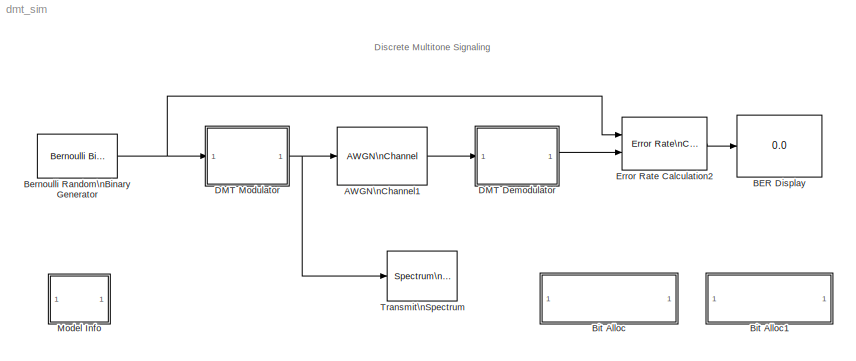
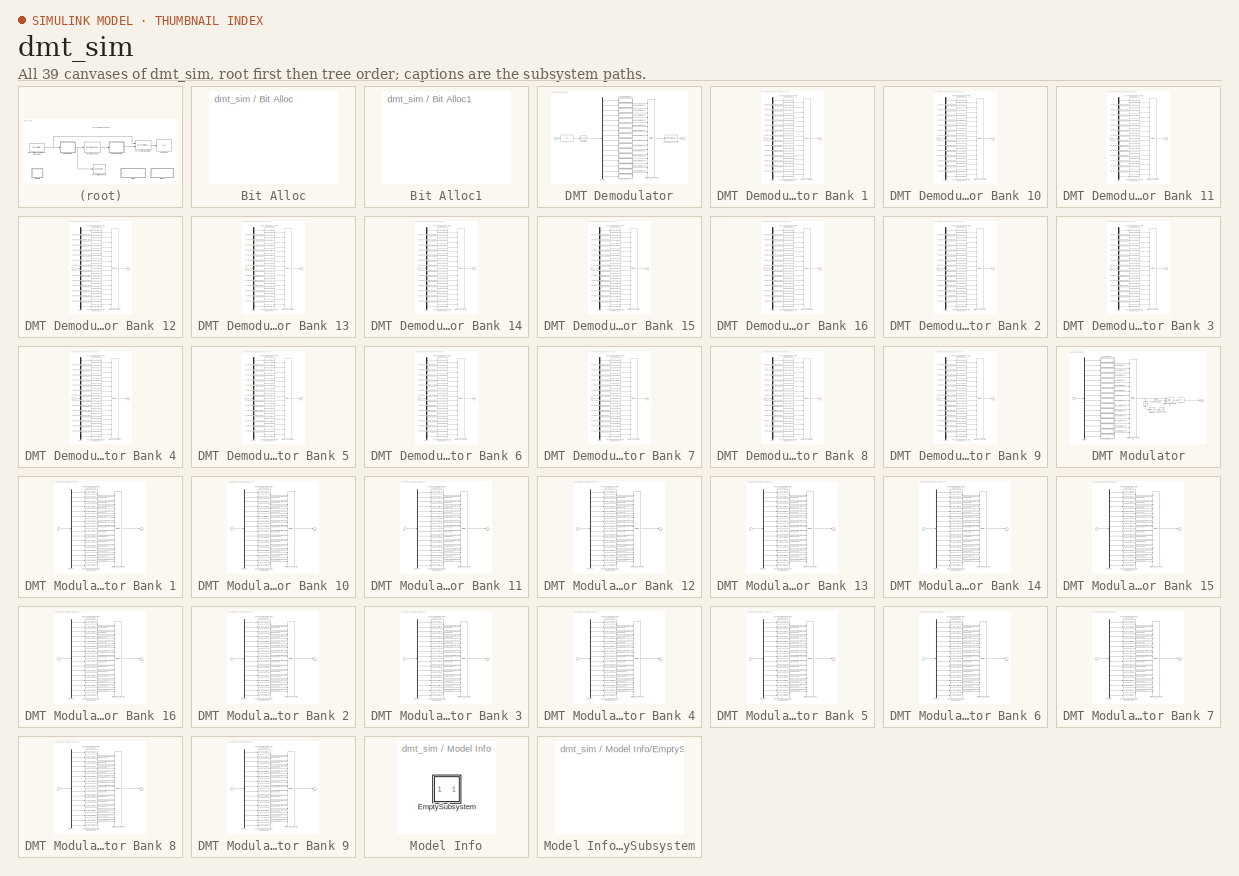
[diagram: thumbnail index - all 39 canvases of the model, root first then tree order]
MODEL dmt_sim
KIND model
WORKSPACE source: external: M-Code  (data not in archive)
BLOCK [Reference] AWGN\nChannel1  REF=commchan2/AWGN\nChannel
  EbNodB = 10
  EsNodB = 10
  Ports = [1, 1]
  Ps = 1
  SNRdB = 10
  ShowPortLabels = on
  SourceBlock = commchan2/AWGN\nChannel
  SourceType = AWGN Channel
  Tsym = 1
  bitsPerSym = 1
  noiseMode = Variance from mask
  seed = 12345
  variance = 0.0005
BLOCK [Display] BER Display
  Decimation = 1
  Ports = [1]
BLOCK [Reference] Bernoulli Random\nBinary Generator  REF=commrandsrc2/Bernoulli Binary\nGenerator
  P = 0.5
  Ports = [0, 1]
  ShowPortLabels = on
  SourceBlock = commrandsrc2/Bernoulli Binary\nGenerator
  SourceType = Bernoulli Binary Generator
  Ts = (1/4000)/sum(b)
  frameBased = on
  orient = off
  sampPerFrame = sum(b)
  seed = 1
BLOCK [SubSystem] Bit Alloc
  EnableExecutionContextPropagation = on
  MaskDisplay = disp('Load and Plot\\nBit Allocation Vector')
  MaskIconFrame = on
  MaskIconOpaque = on
  MaskIconRotate = none
  MaskIconUnits = autoscale
  MinAlgLoopOccurrences = off
  OpenFcn = load('bit_allocation'),plot(b),axis([0 257 1 11]),title('Bit Allocations'),xlabel('Channel'),ylabel('No. Bits')
  Ports = []
  TreatAsAtomicUnit = off
BLOCK [SubSystem] Bit Alloc1
  EnableExecutionContextPropagation = on
  MaskDisplay = disp('Alternative version\\n(fewer blocks,\\nloads faster)')
  MaskIconFrame = on
  MaskIconOpaque = on
  MaskIconRotate = none
  MaskIconUnits = autoscale
  MinAlgLoopOccurrences = off
  OpenFcn = dmt_sim_alt
  Ports = []
  TreatAsAtomicUnit = off
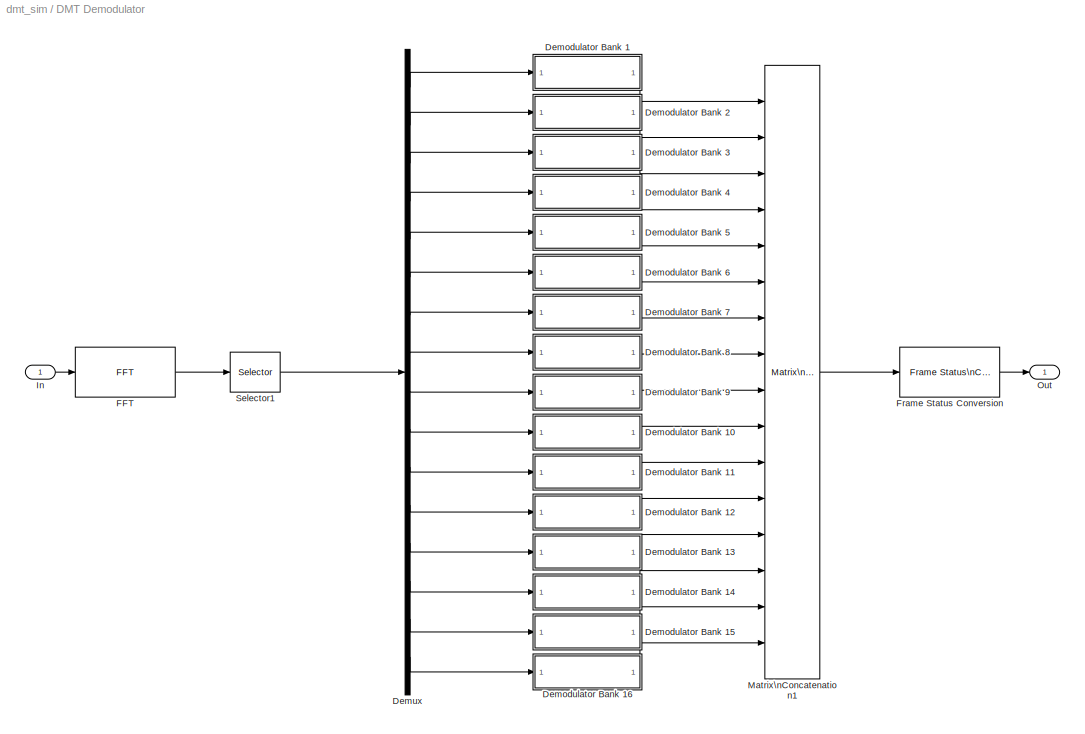
BLOCK [SubSystem] DMT Demodulator
  EnableExecutionContextPropagation = on
  MaskDisplay = disp('DMT\\nDemodulator')
  MaskIconFrame = on
  MaskIconOpaque = on
  MaskIconRotate = none
  MaskIconUnits = autoscale
  MinAlgLoopOccurrences = off
  Ports = [1, 1]
  TreatAsAtomicUnit = off
BLOCK [SubSystem] DMT Demodulator/Demodulator Bank 1
  EnableExecutionContextPropagation = on
  MaskDescription = Bank of sixteen demodulators for use in DMT.  Each demodulator in the bank is a Rectangular QAM demodulator.  The M-ary number for each demodulator is taken from a workspace variable b. The Index offset parameter determines which sixteen consecutive values from b to use for this bank of demodulators.  <repeated x16 — deduplicated; at blocks: Demodulator Bank 1, Demodulator Bank 10, Demodulator Bank 11, Demodulator Bank 12, Demodulator Bank 13, Demodulator Bank 14, Demodulator Bank 15, Demodulator Bank 16, Demodulator Bank 2, Demodulator Bank 3, Demodulator Bank 4, Demodulator Bank 5, Demodulator Bank 6, Demodulator Bank 7, Demodulator Bank 8, Demodulator Bank 9>
  MaskDisplay = disp('Demodulator\\nBank');
  MaskEnableString = on
  MaskIconFrame = on
  MaskIconOpaque = on
  MaskIconRotate = none
  MaskIconUnits = autoscale
  MaskPromptString = Index offset:
  MaskStyleString = edit
  MaskToolTipString = on
  MaskTunableValueString = on
  MaskType = Demodulator Bank
  MaskValueString = 16*0
  MaskVariables = offset=@1;
  MaskVisibilityString = on
  MinAlgLoopOccurrences = off
  Ports = [1, 1]
  TreatAsAtomicUnit = off
BLOCK [Demux] DMT Demodulator/Demodulator Bank 1/Demux
  Outputs = 16
  Ports = [1, 16]
BLOCK [Inport] DMT Demodulator/Demodulator Bank 1/In1
  IconDisplay = Port number
  LatchInput = off
BLOCK [Reference] DMT Demodulator/Demodulator Bank 1/Matrix\nConcatenation  REF=simulink/Math\nOperations/Matrix\nConcatenation
  Ports = [16, 1]
  SourceBlock = simulink/Math\nOperations/Matrix\nConcatenation
  SourceType = Matrix Concatenation
  catMethod = Vertical
  numInports = 16
BLOCK [Outport] DMT Demodulator/Demodulator Bank 1/Out1
  BusOutputAsStruct = off
  IconDisplay = Port number
BLOCK [Reference] DMT Demodulator/Demodulator Bank 1/Rectangular QAM Demodulator Baseband1  REF=commdigbbndam2/Rectangular QAM\nDemodulator\nBaseband
  AvgPow = 1
  Dec = Binary
  M = 2^b(offset+1)
  MinDist = 2
  OutType = Bit
  PeakPow = 1
  Ph = 0
  Ports = [1, 1]
  PowType = Min. distance between symbols
  SourceBlock = commdigbbndam2/Rectangular QAM\nDemodulator\nBaseband
  SourceType = Rectangular QAM Demodulator Baseband
  numSamp = 1
BLOCK [Reference] DMT Demodulator/Demodulator Bank 1/Rectangular QAM Demodulator Baseband10  REF=commdigbbndam2/Rectangular QAM\nDemodulator\nBaseband
  AvgPow = 1
  Dec = Binary
  M = 2^b(offset+10)
  MinDist = 2
  OutType = Bit
  PeakPow = 1
  Ph = 0
  Ports = [1, 1]
  PowType = Min. distance between symbols
  SourceBlock = commdigbbndam2/Rectangular QAM\nDemodulator\nBaseband
  SourceType = Rectangular QAM Demodulator Baseband
  numSamp = 1
BLOCK [Reference] DMT Demodulator/Demodulator Bank 1/Rectangular QAM Demodulator Baseband11  REF=commdigbbndam2/Rectangular QAM\nDemodulator\nBaseband
  AvgPow = 1
  Dec = Binary
  M = 2^b(offset+11)
  MinDist = 2
  OutType = Bit
  PeakPow = 1
  Ph = 0
  Ports = [1, 1]
  PowType = Min. distance between symbols
  SourceBlock = commdigbbndam2/Rectangular QAM\nDemodulator\nBaseband
  SourceType = Rectangular QAM Demodulator Baseband
  numSamp = 1
BLOCK [Reference] DMT Demodulator/Demodulator Bank 1/Rectangular QAM Demodulator Baseband12  REF=commdigbbndam2/Rectangular QAM\nDemodulator\nBaseband
  AvgPow = 1
  Dec = Binary
  M = 2^b(offset+12)
  MinDist = 2
  OutType = Bit
  PeakPow = 1
  Ph = 0
  Ports = [1, 1]
  PowType = Min. distance between symbols
  SourceBlock = commdigbbndam2/Rectangular QAM\nDemodulator\nBaseband
  SourceType = Rectangular QAM Demodulator Baseband
  numSamp = 1
BLOCK [Reference] DMT Demodulator/Demodulator Bank 1/Rectangular QAM Demodulator Baseband13  REF=commdigbbndam2/Rectangular QAM\nDemodulator\nBaseband
  AvgPow = 1
  Dec = Binary
  M = 2^b(offset+13)
  MinDist = 2
  OutType = Bit
  PeakPow = 1
  Ph = 0
  Ports = [1, 1]
  PowType = Min. distance between symbols
  SourceBlock = commdigbbndam2/Rectangular QAM\nDemodulator\nBaseband
  SourceType = Rectangular QAM Demodulator Baseband
  numSamp = 1
BLOCK [Reference] DMT Demodulator/Demodulator Bank 1/Rectangular QAM Demodulator Baseband14  REF=commdigbbndam2/Rectangular QAM\nDemodulator\nBaseband
  AvgPow = 1
  Dec = Binary
  M = 2^b(offset+14)
  MinDist = 2
  OutType = Bit
  PeakPow = 1
  Ph = 0
  Ports = [1, 1]
  PowType = Min. distance between symbols
  SourceBlock = commdigbbndam2/Rectangular QAM\nDemodulator\nBaseband
  SourceType = Rectangular QAM Demodulator Baseband
  numSamp = 1
BLOCK [Reference] DMT Demodulator/Demodulator Bank 1/Rectangular QAM Demodulator Baseband15  REF=commdigbbndam2/Rectangular QAM\nDemodulator\nBaseband
  AvgPow = 1
  Dec = Binary
  M = 2^b(offset+15)
  MinDist = 2
  OutType = Bit
  PeakPow = 1
  Ph = 0
  Ports = [1, 1]
  PowType = Min. distance between symbols
  SourceBlock = commdigbbndam2/Rectangular QAM\nDemodulator\nBaseband
  SourceType = Rectangular QAM Demodulator Baseband
  numSamp = 1
BLOCK [Reference] DMT Demodulator/Demodulator Bank 1/Rectangular QAM Demodulator Baseband16  REF=commdigbbndam2/Rectangular QAM\nDemodulator\nBaseband
  AvgPow = 1
  Dec = Binary
  M = 2^b(offset+16)
  MinDist = 2
  OutType = Bit
  PeakPow = 1
  Ph = 0
  Ports = [1, 1]
  PowType = Min. distance between symbols
  SourceBlock = commdigbbndam2/Rectangular QAM\nDemodulator\nBaseband
  SourceType = Rectangular QAM Demodulator Baseband
  numSamp = 1
BLOCK [Reference] DMT Demodulator/Demodulator Bank 1/Rectangular QAM Demodulator Baseband2  REF=commdigbbndam2/Rectangular QAM\nDemodulator\nBaseband
  AvgPow = 1
  Dec = Binary
  M = 2^b(offset+2)
  MinDist = 2
  OutType = Bit
  PeakPow = 1
  Ph = 0
  Ports = [1, 1]
  PowType = Min. distance between symbols
  SourceBlock = commdigbbndam2/Rectangular QAM\nDemodulator\nBaseband
  SourceType = Rectangular QAM Demodulator Baseband
  numSamp = 1
BLOCK [Reference] DMT Demodulator/Demodulator Bank 1/Rectangular QAM Demodulator Baseband3  REF=commdigbbndam2/Rectangular QAM\nDemodulator\nBaseband
  AvgPow = 1
  Dec = Binary
  M = 2^b(offset+3)
  MinDist = 2
  OutType = Bit
  PeakPow = 1
  Ph = 0
  Ports = [1, 1]
  PowType = Min. distance between symbols
  SourceBlock = commdigbbndam2/Rectangular QAM\nDemodulator\nBaseband
  SourceType = Rectangular QAM Demodulator Baseband
  numSamp = 1
BLOCK [Reference] DMT Demodulator/Demodulator Bank 1/Rectangular QAM Demodulator Baseband4  REF=commdigbbndam2/Rectangular QAM\nDemodulator\nBaseband
  AvgPow = 1
  Dec = Binary
  M = 2^b(offset+4)
  MinDist = 2
  OutType = Bit
  PeakPow = 1
  Ph = 0
  Ports = [1, 1]
  PowType = Min. distance between symbols
  SourceBlock = commdigbbndam2/Rectangular QAM\nDemodulator\nBaseband
  SourceType = Rectangular QAM Demodulator Baseband
  numSamp = 1
BLOCK [Reference] DMT Demodulator/Demodulator Bank 1/Rectangular QAM Demodulator Baseband5  REF=commdigbbndam2/Rectangular QAM\nDemodulator\nBaseband
  AvgPow = 1
  Dec = Binary
  M = 2^b(offset+5)
  MinDist = 2
  OutType = Bit
  PeakPow = 1
  Ph = 0
  Ports = [1, 1]
  PowType = Min. distance between symbols
  SourceBlock = commdigbbndam2/Rectangular QAM\nDemodulator\nBaseband
  SourceType = Rectangular QAM Demodulator Baseband
  numSamp = 1
BLOCK [Reference] DMT Demodulator/Demodulator Bank 1/Rectangular QAM Demodulator Baseband6  REF=commdigbbndam2/Rectangular QAM\nDemodulator\nBaseband
  AvgPow = 1
  Dec = Binary
  M = 2^b(offset+6)
  MinDist = 2
  OutType = Bit
  PeakPow = 1
  Ph = 0
  Ports = [1, 1]
  PowType = Min. distance between symbols
  SourceBlock = commdigbbndam2/Rectangular QAM\nDemodulator\nBaseband
  SourceType = Rectangular QAM Demodulator Baseband
  numSamp = 1
BLOCK [Reference] DMT Demodulator/Demodulator Bank 1/Rectangular QAM Demodulator Baseband7  REF=commdigbbndam2/Rectangular QAM\nDemodulator\nBaseband
  AvgPow = 1
  Dec = Binary
  M = 2^b(offset+7)
  MinDist = 2
  OutType = Bit
  PeakPow = 1
  Ph = 0
  Ports = [1, 1]
  PowType = Min. distance between symbols
  SourceBlock = commdigbbndam2/Rectangular QAM\nDemodulator\nBaseband
  SourceType = Rectangular QAM Demodulator Baseband
  numSamp = 1
BLOCK [Reference] DMT Demodulator/Demodulator Bank 1/Rectangular QAM Demodulator Baseband8  REF=commdigbbndam2/Rectangular QAM\nDemodulator\nBaseband
  AvgPow = 1
  Dec = Binary
  M = 2^b(offset+8)
  MinDist = 2
  OutType = Bit
  PeakPow = 1
  Ph = 0
  Ports = [1, 1]
  PowType = Min. distance between symbols
  SourceBlock = commdigbbndam2/Rectangular QAM\nDemodulator\nBaseband
  SourceType = Rectangular QAM Demodulator Baseband
  numSamp = 1
BLOCK [Reference] DMT Demodulator/Demodulator Bank 1/Rectangular QAM Demodulator Baseband9  REF=commdigbbndam2/Rectangular QAM\nDemodulator\nBaseband
  AvgPow = 1
  Dec = Binary
  M = 2^b(offset+9)
  MinDist = 2
  OutType = Bit
  PeakPow = 1
  Ph = 0
  Ports = [1, 1]
  PowType = Min. distance between symbols
  SourceBlock = commdigbbndam2/Rectangular QAM\nDemodulator\nBaseband
  SourceType = Rectangular QAM Demodulator Baseband
  numSamp = 1
BLOCK [SubSystem] DMT Demodulator/Demodulator Bank 10
  EnableExecutionContextPropagation = on
  MaskDisplay = disp('Demodulator\\nBank');
  MaskEnableString = on
  MaskIconFrame = on
  MaskIconOpaque = on
  MaskIconRotate = none
  MaskIconUnits = autoscale
  MaskPromptString = Index offset:
  MaskStyleString = edit
  MaskToolTipString = on
  MaskTunableValueString = on
  MaskType = Demodulator Bank
  MaskValueString = 16*9
  MaskVariables = offset=@1;
  MaskVisibilityString = on
  MinAlgLoopOccurrences = off
  Ports = [1, 1]
  TreatAsAtomicUnit = off
BLOCK [Demux] DMT Demodulator/Demodulator Bank 10/Demux
  Outputs = 16
  Ports = [1, 16]
BLOCK [Inport] DMT Demodulator/Demodulator Bank 10/In1
  IconDisplay = Port number
  LatchInput = off
BLOCK [Reference] DMT Demodulator/Demodulator Bank 10/Matrix\nConcatenation  REF=simulink/Math\nOperations/Matrix\nConcatenation
  Ports = [16, 1]
  SourceBlock = simulink/Math\nOperations/Matrix\nConcatenation
  SourceType = Matrix Concatenation
  catMethod = Vertical
  numInports = 16
BLOCK [Outport] DMT Demodulator/Demodulator Bank 10/Out1
  BusOutputAsStruct = off
  IconDisplay = Port number
BLOCK [Reference] DMT Demodulator/Demodulator Bank 10/Rectangular QAM Demodulator Baseband1  REF=commdigbbndam2/Rectangular QAM\nDemodulator\nBaseband
  AvgPow = 1
  Dec = Binary
  M = 2^b(offset+1)
  MinDist = 2
  OutType = Bit
  PeakPow = 1
  Ph = 0
  Ports = [1, 1]
  PowType = Min. distance between symbols
  SourceBlock = commdigbbndam2/Rectangular QAM\nDemodulator\nBaseband
  SourceType = Rectangular QAM Demodulator Baseband
  numSamp = 1
BLOCK [Reference] DMT Demodulator/Demodulator Bank 10/Rectangular QAM Demodulator Baseband10  REF=commdigbbndam2/Rectangular QAM\nDemodulator\nBaseband
  AvgPow = 1
  Dec = Binary
  M = 2^b(offset+10)
  MinDist = 2
  OutType = Bit
  PeakPow = 1
  Ph = 0
  Ports = [1, 1]
  PowType = Min. distance between symbols
  SourceBlock = commdigbbndam2/Rectangular QAM\nDemodulator\nBaseband
  SourceType = Rectangular QAM Demodulator Baseband
  numSamp = 1
BLOCK [Reference] DMT Demodulator/Demodulator Bank 10/Rectangular QAM Demodulator Baseband11  REF=commdigbbndam2/Rectangular QAM\nDemodulator\nBaseband
  AvgPow = 1
  Dec = Binary
  M = 2^b(offset+11)
  MinDist = 2
  OutType = Bit
  PeakPow = 1
  Ph = 0
  Ports = [1, 1]
  PowType = Min. distance between symbols
  SourceBlock = commdigbbndam2/Rectangular QAM\nDemodulator\nBaseband
  SourceType = Rectangular QAM Demodulator Baseband
  numSamp = 1
BLOCK [Reference] DMT Demodulator/Demodulator Bank 10/Rectangular QAM Demodulator Baseband12  REF=commdigbbndam2/Rectangular QAM\nDemodulator\nBaseband
  AvgPow = 1
  Dec = Binary
  M = 2^b(offset+12)
  MinDist = 2
  OutType = Bit
  PeakPow = 1
  Ph = 0
  Ports = [1, 1]
  PowType = Min. distance between symbols
  SourceBlock = commdigbbndam2/Rectangular QAM\nDemodulator\nBaseband
  SourceType = Rectangular QAM Demodulator Baseband
  numSamp = 1
BLOCK [Reference] DMT Demodulator/Demodulator Bank 10/Rectangular QAM Demodulator Baseband13  REF=commdigbbndam2/Rectangular QAM\nDemodulator\nBaseband
  AvgPow = 1
  Dec = Binary
  M = 2^b(offset+13)
  MinDist = 2
  OutType = Bit
  PeakPow = 1
  Ph = 0
  Ports = [1, 1]
  PowType = Min. distance between symbols
  SourceBlock = commdigbbndam2/Rectangular QAM\nDemodulator\nBaseband
  SourceType = Rectangular QAM Demodulator Baseband
  numSamp = 1
BLOCK [Reference] DMT Demodulator/Demodulator Bank 10/Rectangular QAM Demodulator Baseband14  REF=commdigbbndam2/Rectangular QAM\nDemodulator\nBaseband
  AvgPow = 1
  Dec = Binary
  M = 2^b(offset+14)
  MinDist = 2
  OutType = Bit
  PeakPow = 1
  Ph = 0
  Ports = [1, 1]
  PowType = Min. distance between symbols
  SourceBlock = commdigbbndam2/Rectangular QAM\nDemodulator\nBaseband
  SourceType = Rectangular QAM Demodulator Baseband
  numSamp = 1
BLOCK [Reference] DMT Demodulator/Demodulator Bank 10/Rectangular QAM Demodulator Baseband15  REF=commdigbbndam2/Rectangular QAM\nDemodulator\nBaseband
  AvgPow = 1
  Dec = Binary
  M = 2^b(offset+15)
  MinDist = 2
  OutType = Bit
  PeakPow = 1
  Ph = 0
  Ports = [1, 1]
  PowType = Min. distance between symbols
  SourceBlock = commdigbbndam2/Rectangular QAM\nDemodulator\nBaseband
  SourceType = Rectangular QAM Demodulator Baseband
  numSamp = 1
BLOCK [Reference] DMT Demodulator/Demodulator Bank 10/Rectangular QAM Demodulator Baseband16  REF=commdigbbndam2/Rectangular QAM\nDemodulator\nBaseband
  AvgPow = 1
  Dec = Binary
  M = 2^b(offset+16)
  MinDist = 2
  OutType = Bit
  PeakPow = 1
  Ph = 0
  Ports = [1, 1]
  PowType = Min. distance between symbols
  SourceBlock = commdigbbndam2/Rectangular QAM\nDemodulator\nBaseband
  SourceType = Rectangular QAM Demodulator Baseband
  numSamp = 1
BLOCK [Reference] DMT Demodulator/Demodulator Bank 10/Rectangular QAM Demodulator Baseband2  REF=commdigbbndam2/Rectangular QAM\nDemodulator\nBaseband
  AvgPow = 1
  Dec = Binary
  M = 2^b(offset+2)
  MinDist = 2
  OutType = Bit
  PeakPow = 1
  Ph = 0
  Ports = [1, 1]
  PowType = Min. distance between symbols
  SourceBlock = commdigbbndam2/Rectangular QAM\nDemodulator\nBaseband
  SourceType = Rectangular QAM Demodulator Baseband
  numSamp = 1
BLOCK [Reference] DMT Demodulator/Demodulator Bank 10/Rectangular QAM Demodulator Baseband3  REF=commdigbbndam2/Rectangular QAM\nDemodulator\nBaseband
  AvgPow = 1
  Dec = Binary
  M = 2^b(offset+3)
  MinDist = 2
  OutType = Bit
  PeakPow = 1
  Ph = 0
  Ports = [1, 1]
  PowType = Min. distance between symbols
  SourceBlock = commdigbbndam2/Rectangular QAM\nDemodulator\nBaseband
  SourceType = Rectangular QAM Demodulator Baseband
  numSamp = 1
BLOCK [Reference] DMT Demodulator/Demodulator Bank 10/Rectangular QAM Demodulator Baseband4  REF=commdigbbndam2/Rectangular QAM\nDemodulator\nBaseband
  AvgPow = 1
  Dec = Binary
  M = 2^b(offset+4)
  MinDist = 2
  OutType = Bit
  PeakPow = 1
  Ph = 0
  Ports = [1, 1]
  PowType = Min. distance between symbols
  SourceBlock = commdigbbndam2/Rectangular QAM\nDemodulator\nBaseband
  SourceType = Rectangular QAM Demodulator Baseband
  numSamp = 1
BLOCK [Reference] DMT Demodulator/Demodulator Bank 10/Rectangular QAM Demodulator Baseband5  REF=commdigbbndam2/Rectangular QAM\nDemodulator\nBaseband
  AvgPow = 1
  Dec = Binary
  M = 2^b(offset+5)
  MinDist = 2
  OutType = Bit
  PeakPow = 1
  Ph = 0
  Ports = [1, 1]
  PowType = Min. distance between symbols
  SourceBlock = commdigbbndam2/Rectangular QAM\nDemodulator\nBaseband
  SourceType = Rectangular QAM Demodulator Baseband
  numSamp = 1
BLOCK [Reference] DMT Demodulator/Demodulator Bank 10/Rectangular QAM Demodulator Baseband6  REF=commdigbbndam2/Rectangular QAM\nDemodulator\nBaseband
  AvgPow = 1
  Dec = Binary
  M = 2^b(offset+6)
  MinDist = 2
  OutType = Bit
  PeakPow = 1
  Ph = 0
  Ports = [1, 1]
  PowType = Min. distance between symbols
  SourceBlock = commdigbbndam2/Rectangular QAM\nDemodulator\nBaseband
  SourceType = Rectangular QAM Demodulator Baseband
  numSamp = 1
BLOCK [Reference] DMT Demodulator/Demodulator Bank 10/Rectangular QAM Demodulator Baseband7  REF=commdigbbndam2/Rectangular QAM\nDemodulator\nBaseband
  AvgPow = 1
  Dec = Binary
  M = 2^b(offset+7)
  MinDist = 2
  OutType = Bit
  PeakPow = 1
  Ph = 0
  Ports = [1, 1]
  PowType = Min. distance between symbols
  SourceBlock = commdigbbndam2/Rectangular QAM\nDemodulator\nBaseband
  SourceType = Rectangular QAM Demodulator Baseband
  numSamp = 1
BLOCK [Reference] DMT Demodulator/Demodulator Bank 10/Rectangular QAM Demodulator Baseband8  REF=commdigbbndam2/Rectangular QAM\nDemodulator\nBaseband
  AvgPow = 1
  Dec = Binary
  M = 2^b(offset+8)
  MinDist = 2
  OutType = Bit
  PeakPow = 1
  Ph = 0
  Ports = [1, 1]
  PowType = Min. distance between symbols
  SourceBlock = commdigbbndam2/Rectangular QAM\nDemodulator\nBaseband
  SourceType = Rectangular QAM Demodulator Baseband
  numSamp = 1
BLOCK [Reference] DMT Demodulator/Demodulator Bank 10/Rectangular QAM Demodulator Baseband9  REF=commdigbbndam2/Rectangular QAM\nDemodulator\nBaseband
  AvgPow = 1
  Dec = Binary
  M = 2^b(offset+9)
  MinDist = 2
  OutType = Bit
  PeakPow = 1
  Ph = 0
  Ports = [1, 1]
  PowType = Min. distance between symbols
  SourceBlock = commdigbbndam2/Rectangular QAM\nDemodulator\nBaseband
  SourceType = Rectangular QAM Demodulator Baseband
  numSamp = 1
BLOCK [SubSystem] DMT Demodulator/Demodulator Bank 11
  EnableExecutionContextPropagation = on
  MaskDisplay = disp('Demodulator\\nBank');
  MaskEnableString = on
  MaskIconFrame = on
  MaskIconOpaque = on
  MaskIconRotate = none
  MaskIconUnits = autoscale
  MaskPromptString = Index offset:
  MaskStyleString = edit
  MaskToolTipString = on
  MaskTunableValueString = on
  MaskType = Demodulator Bank
  MaskValueString = 16*10
  MaskVariables = offset=@1;
  MaskVisibilityString = on
  MinAlgLoopOccurrences = off
  Ports = [1, 1]
  TreatAsAtomicUnit = off
BLOCK [Demux] DMT Demodulator/Demodulator Bank 11/Demux
  Outputs = 16
  Ports = [1, 16]
BLOCK [Inport] DMT Demodulator/Demodulator Bank 11/In1
  IconDisplay = Port number
  LatchInput = off
BLOCK [Reference] DMT Demodulator/Demodulator Bank 11/Matrix\nConcatenation  REF=simulink/Math\nOperations/Matrix\nConcatenation
  Ports = [16, 1]
  SourceBlock = simulink/Math\nOperations/Matrix\nConcatenation
  SourceType = Matrix Concatenation
  catMethod = Vertical
  numInports = 16
BLOCK [Outport] DMT Demodulator/Demodulator Bank 11/Out1
  BusOutputAsStruct = off
  IconDisplay = Port number
BLOCK [Reference] DMT Demodulator/Demodulator Bank 11/Rectangular QAM Demodulator Baseband1  REF=commdigbbndam2/Rectangular QAM\nDemodulator\nBaseband
  AvgPow = 1
  Dec = Binary
  M = 2^b(offset+1)
  MinDist = 2
  OutType = Bit
  PeakPow = 1
  Ph = 0
  Ports = [1, 1]
  PowType = Min. distance between symbols
  SourceBlock = commdigbbndam2/Rectangular QAM\nDemodulator\nBaseband
  SourceType = Rectangular QAM Demodulator Baseband
  numSamp = 1
BLOCK [Reference] DMT Demodulator/Demodulator Bank 11/Rectangular QAM Demodulator Baseband10  REF=commdigbbndam2/Rectangular QAM\nDemodulator\nBaseband
  AvgPow = 1
  Dec = Binary
  M = 2^b(offset+10)
  MinDist = 2
  OutType = Bit
  PeakPow = 1
  Ph = 0
  Ports = [1, 1]
  PowType = Min. distance between symbols
  SourceBlock = commdigbbndam2/Rectangular QAM\nDemodulator\nBaseband
  SourceType = Rectangular QAM Demodulator Baseband
  numSamp = 1
BLOCK [Reference] DMT Demodulator/Demodulator Bank 11/Rectangular QAM Demodulator Baseband11  REF=commdigbbndam2/Rectangular QAM\nDemodulator\nBaseband
  AvgPow = 1
  Dec = Binary
  M = 2^b(offset+11)
  MinDist = 2
  OutType = Bit
  PeakPow = 1
  Ph = 0
  Ports = [1, 1]
  PowType = Min. distance between symbols
  SourceBlock = commdigbbndam2/Rectangular QAM\nDemodulator\nBaseband
  SourceType = Rectangular QAM Demodulator Baseband
  numSamp = 1
BLOCK [Reference] DMT Demodulator/Demodulator Bank 11/Rectangular QAM Demodulator Baseband12  REF=commdigbbndam2/Rectangular QAM\nDemodulator\nBaseband
  AvgPow = 1
  Dec = Binary
  M = 2^b(offset+12)
  MinDist = 2
  OutType = Bit
  PeakPow = 1
  Ph = 0
  Ports = [1, 1]
  PowType = Min. distance between symbols
  SourceBlock = commdigbbndam2/Rectangular QAM\nDemodulator\nBaseband
  SourceType = Rectangular QAM Demodulator Baseband
  numSamp = 1
BLOCK [Reference] DMT Demodulator/Demodulator Bank 11/Rectangular QAM Demodulator Baseband13  REF=commdigbbndam2/Rectangular QAM\nDemodulator\nBaseband
  AvgPow = 1
  Dec = Binary
  M = 2^b(offset+13)
  MinDist = 2
  OutType = Bit
  PeakPow = 1
  Ph = 0
  Ports = [1, 1]
  PowType = Min. distance between symbols
  SourceBlock = commdigbbndam2/Rectangular QAM\nDemodulator\nBaseband
  SourceType = Rectangular QAM Demodulator Baseband
  numSamp = 1
BLOCK [Reference] DMT Demodulator/Demodulator Bank 11/Rectangular QAM Demodulator Baseband14  REF=commdigbbndam2/Rectangular QAM\nDemodulator\nBaseband
  AvgPow = 1
  Dec = Binary
  M = 2^b(offset+14)
  MinDist = 2
  OutType = Bit
  PeakPow = 1
  Ph = 0
  Ports = [1, 1]
  PowType = Min. distance between symbols
  SourceBlock = commdigbbndam2/Rectangular QAM\nDemodulator\nBaseband
  SourceType = Rectangular QAM Demodulator Baseband
  numSamp = 1
BLOCK [Reference] DMT Demodulator/Demodulator Bank 11/Rectangular QAM Demodulator Baseband15  REF=commdigbbndam2/Rectangular QAM\nDemodulator\nBaseband
  AvgPow = 1
  Dec = Binary
  M = 2^b(offset+15)
  MinDist = 2
  OutType = Bit
  PeakPow = 1
  Ph = 0
  Ports = [1, 1]
  PowType = Min. distance between symbols
  SourceBlock = commdigbbndam2/Rectangular QAM\nDemodulator\nBaseband
  SourceType = Rectangular QAM Demodulator Baseband
  numSamp = 1
BLOCK [Reference] DMT Demodulator/Demodulator Bank 11/Rectangular QAM Demodulator Baseband16  REF=commdigbbndam2/Rectangular QAM\nDemodulator\nBaseband
  AvgPow = 1
  Dec = Binary
  M = 2^b(offset+16)
  MinDist = 2
  OutType = Bit
  PeakPow = 1
  Ph = 0
  Ports = [1, 1]
  PowType = Min. distance between symbols
  SourceBlock = commdigbbndam2/Rectangular QAM\nDemodulator\nBaseband
  SourceType = Rectangular QAM Demodulator Baseband
  numSamp = 1
BLOCK [Reference] DMT Demodulator/Demodulator Bank 11/Rectangular QAM Demodulator Baseband2  REF=commdigbbndam2/Rectangular QAM\nDemodulator\nBaseband
  AvgPow = 1
  Dec = Binary
  M = 2^b(offset+2)
  MinDist = 2
  OutType = Bit
  PeakPow = 1
  Ph = 0
  Ports = [1, 1]
  PowType = Min. distance between symbols
  SourceBlock = commdigbbndam2/Rectangular QAM\nDemodulator\nBaseband
  SourceType = Rectangular QAM Demodulator Baseband
  numSamp = 1
BLOCK [Reference] DMT Demodulator/Demodulator Bank 11/Rectangular QAM Demodulator Baseband3  REF=commdigbbndam2/Rectangular QAM\nDemodulator\nBaseband
  AvgPow = 1
  Dec = Binary
  M = 2^b(offset+3)
  MinDist = 2
  OutType = Bit
  PeakPow = 1
  Ph = 0
  Ports = [1, 1]
  PowType = Min. distance between symbols
  SourceBlock = commdigbbndam2/Rectangular QAM\nDemodulator\nBaseband
  SourceType = Rectangular QAM Demodulator Baseband
  numSamp = 1
BLOCK [Reference] DMT Demodulator/Demodulator Bank 11/Rectangular QAM Demodulator Baseband4  REF=commdigbbndam2/Rectangular QAM\nDemodulator\nBaseband
  AvgPow = 1
  Dec = Binary
  M = 2^b(offset+4)
  MinDist = 2
  OutType = Bit
  PeakPow = 1
  Ph = 0
  Ports = [1, 1]
  PowType = Min. distance between symbols
  SourceBlock = commdigbbndam2/Rectangular QAM\nDemodulator\nBaseband
  SourceType = Rectangular QAM Demodulator Baseband
  numSamp = 1
BLOCK [Reference] DMT Demodulator/Demodulator Bank 11/Rectangular QAM Demodulator Baseband5  REF=commdigbbndam2/Rectangular QAM\nDemodulator\nBaseband
  AvgPow = 1
  Dec = Binary
  M = 2^b(offset+5)
  MinDist = 2
  OutType = Bit
  PeakPow = 1
  Ph = 0
  Ports = [1, 1]
  PowType = Min. distance between symbols
  SourceBlock = commdigbbndam2/Rectangular QAM\nDemodulator\nBaseband
  SourceType = Rectangular QAM Demodulator Baseband
  numSamp = 1
BLOCK [Reference] DMT Demodulator/Demodulator Bank 11/Rectangular QAM Demodulator Baseband6  REF=commdigbbndam2/Rectangular QAM\nDemodulator\nBaseband
  AvgPow = 1
  Dec = Binary
  M = 2^b(offset+6)
  MinDist = 2
  OutType = Bit
  PeakPow = 1
  Ph = 0
  Ports = [1, 1]
  PowType = Min. distance between symbols
  SourceBlock = commdigbbndam2/Rectangular QAM\nDemodulator\nBaseband
  SourceType = Rectangular QAM Demodulator Baseband
  numSamp = 1
BLOCK [Reference] DMT Demodulator/Demodulator Bank 11/Rectangular QAM Demodulator Baseband7  REF=commdigbbndam2/Rectangular QAM\nDemodulator\nBaseband
  AvgPow = 1
  Dec = Binary
  M = 2^b(offset+7)
  MinDist = 2
  OutType = Bit
  PeakPow = 1
  Ph = 0
  Ports = [1, 1]
  PowType = Min. distance between symbols
  SourceBlock = commdigbbndam2/Rectangular QAM\nDemodulator\nBaseband
  SourceType = Rectangular QAM Demodulator Baseband
  numSamp = 1
BLOCK [Reference] DMT Demodulator/Demodulator Bank 11/Rectangular QAM Demodulator Baseband8  REF=commdigbbndam2/Rectangular QAM\nDemodulator\nBaseband
  AvgPow = 1
  Dec = Binary
  M = 2^b(offset+8)
  MinDist = 2
  OutType = Bit
  PeakPow = 1
  Ph = 0
  Ports = [1, 1]
  PowType = Min. distance between symbols
  SourceBlock = commdigbbndam2/Rectangular QAM\nDemodulator\nBaseband
  SourceType = Rectangular QAM Demodulator Baseband
  numSamp = 1
BLOCK [Reference] DMT Demodulator/Demodulator Bank 11/Rectangular QAM Demodulator Baseband9  REF=commdigbbndam2/Rectangular QAM\nDemodulator\nBaseband
  AvgPow = 1
  Dec = Binary
  M = 2^b(offset+9)
  MinDist = 2
  OutType = Bit
  PeakPow = 1
  Ph = 0
  Ports = [1, 1]
  PowType = Min. distance between symbols
  SourceBlock = commdigbbndam2/Rectangular QAM\nDemodulator\nBaseband
  SourceType = Rectangular QAM Demodulator Baseband
  numSamp = 1
BLOCK [SubSystem] DMT Demodulator/Demodulator Bank 12
  EnableExecutionContextPropagation = on
  MaskDisplay = disp('Demodulator\\nBank');
  MaskEnableString = on
  MaskIconFrame = on
  MaskIconOpaque = on
  MaskIconRotate = none
  MaskIconUnits = autoscale
  MaskPromptString = Index offset:
  MaskStyleString = edit
  MaskToolTipString = on
  MaskTunableValueString = on
  MaskType = Demodulator Bank
  MaskValueString = 16*11
  MaskVariables = offset=@1;
  MaskVisibilityString = on
  MinAlgLoopOccurrences = off
  Ports = [1, 1]
  TreatAsAtomicUnit = off
BLOCK [Demux] DMT Demodulator/Demodulator Bank 12/Demux
  Outputs = 16
  Ports = [1, 16]
BLOCK [Inport] DMT Demodulator/Demodulator Bank 12/In1
  IconDisplay = Port number
  LatchInput = off
BLOCK [Reference] DMT Demodulator/Demodulator Bank 12/Matrix\nConcatenation  REF=simulink/Math\nOperations/Matrix\nConcatenation
  Ports = [16, 1]
  SourceBlock = simulink/Math\nOperations/Matrix\nConcatenation
  SourceType = Matrix Concatenation
  catMethod = Vertical
  numInports = 16
BLOCK [Outport] DMT Demodulator/Demodulator Bank 12/Out1
  BusOutputAsStruct = off
  IconDisplay = Port number
BLOCK [Reference] DMT Demodulator/Demodulator Bank 12/Rectangular QAM Demodulator Baseband1  REF=commdigbbndam2/Rectangular QAM\nDemodulator\nBaseband
  AvgPow = 1
  Dec = Binary
  M = 2^b(offset+1)
  MinDist = 2
  OutType = Bit
  PeakPow = 1
  Ph = 0
  Ports = [1, 1]
  PowType = Min. distance between symbols
  SourceBlock = commdigbbndam2/Rectangular QAM\nDemodulator\nBaseband
  SourceType = Rectangular QAM Demodulator Baseband
  numSamp = 1
BLOCK [Reference] DMT Demodulator/Demodulator Bank 12/Rectangular QAM Demodulator Baseband10  REF=commdigbbndam2/Rectangular QAM\nDemodulator\nBaseband
  AvgPow = 1
  Dec = Binary
  M = 2^b(offset+10)
  MinDist = 2
  OutType = Bit
  PeakPow = 1
  Ph = 0
  Ports = [1, 1]
  PowType = Min. distance between symbols
  SourceBlock = commdigbbndam2/Rectangular QAM\nDemodulator\nBaseband
  SourceType = Rectangular QAM Demodulator Baseband
  numSamp = 1
BLOCK [Reference] DMT Demodulator/Demodulator Bank 12/Rectangular QAM Demodulator Baseband11  REF=commdigbbndam2/Rectangular QAM\nDemodulator\nBaseband
  AvgPow = 1
  Dec = Binary
  M = 2^b(offset+11)
  MinDist = 2
  OutType = Bit
  PeakPow = 1
  Ph = 0
  Ports = [1, 1]
  PowType = Min. distance between symbols
  SourceBlock = commdigbbndam2/Rectangular QAM\nDemodulator\nBaseband
  SourceType = Rectangular QAM Demodulator Baseband
  numSamp = 1
BLOCK [Reference] DMT Demodulator/Demodulator Bank 12/Rectangular QAM Demodulator Baseband12  REF=commdigbbndam2/Rectangular QAM\nDemodulator\nBaseband
  AvgPow = 1
  Dec = Binary
  M = 2^b(offset+12)
  MinDist = 2
  OutType = Bit
  PeakPow = 1
  Ph = 0
  Ports = [1, 1]
  PowType = Min. distance between symbols
  SourceBlock = commdigbbndam2/Rectangular QAM\nDemodulator\nBaseband
  SourceType = Rectangular QAM Demodulator Baseband
  numSamp = 1
BLOCK [Reference] DMT Demodulator/Demodulator Bank 12/Rectangular QAM Demodulator Baseband13  REF=commdigbbndam2/Rectangular QAM\nDemodulator\nBaseband
  AvgPow = 1
  Dec = Binary
  M = 2^b(offset+13)
  MinDist = 2
  OutType = Bit
  PeakPow = 1
  Ph = 0
  Ports = [1, 1]
  PowType = Min. distance between symbols
  SourceBlock = commdigbbndam2/Rectangular QAM\nDemodulator\nBaseband
  SourceType = Rectangular QAM Demodulator Baseband
  numSamp = 1
BLOCK [Reference] DMT Demodulator/Demodulator Bank 12/Rectangular QAM Demodulator Baseband14  REF=commdigbbndam2/Rectangular QAM\nDemodulator\nBaseband
  AvgPow = 1
  Dec = Binary
  M = 2^b(offset+14)
  MinDist = 2
  OutType = Bit
  PeakPow = 1
  Ph = 0
  Ports = [1, 1]
  PowType = Min. distance between symbols
  SourceBlock = commdigbbndam2/Rectangular QAM\nDemodulator\nBaseband
  SourceType = Rectangular QAM Demodulator Baseband
  numSamp = 1
BLOCK [Reference] DMT Demodulator/Demodulator Bank 12/Rectangular QAM Demodulator Baseband15  REF=commdigbbndam2/Rectangular QAM\nDemodulator\nBaseband
  AvgPow = 1
  Dec = Binary
  M = 2^b(offset+15)
  MinDist = 2
  OutType = Bit
  PeakPow = 1
  Ph = 0
  Ports = [1, 1]
  PowType = Min. distance between symbols
  SourceBlock = commdigbbndam2/Rectangular QAM\nDemodulator\nBaseband
  SourceType = Rectangular QAM Demodulator Baseband
  numSamp = 1
BLOCK [Reference] DMT Demodulator/Demodulator Bank 12/Rectangular QAM Demodulator Baseband16  REF=commdigbbndam2/Rectangular QAM\nDemodulator\nBaseband
  AvgPow = 1
  Dec = Binary
  M = 2^b(offset+16)
  MinDist = 2
  OutType = Bit
  PeakPow = 1
  Ph = 0
  Ports = [1, 1]
  PowType = Min. distance between symbols
  SourceBlock = commdigbbndam2/Rectangular QAM\nDemodulator\nBaseband
  SourceType = Rectangular QAM Demodulator Baseband
  numSamp = 1
BLOCK [Reference] DMT Demodulator/Demodulator Bank 12/Rectangular QAM Demodulator Baseband2  REF=commdigbbndam2/Rectangular QAM\nDemodulator\nBaseband
  AvgPow = 1
  Dec = Binary
  M = 2^b(offset+2)
  MinDist = 2
  OutType = Bit
  PeakPow = 1
  Ph = 0
  Ports = [1, 1]
  PowType = Min. distance between symbols
  SourceBlock = commdigbbndam2/Rectangular QAM\nDemodulator\nBaseband
  SourceType = Rectangular QAM Demodulator Baseband
  numSamp = 1
BLOCK [Reference] DMT Demodulator/Demodulator Bank 12/Rectangular QAM Demodulator Baseband3  REF=commdigbbndam2/Rectangular QAM\nDemodulator\nBaseband
  AvgPow = 1
  Dec = Binary
  M = 2^b(offset+3)
  MinDist = 2
  OutType = Bit
  PeakPow = 1
  Ph = 0
  Ports = [1, 1]
  PowType = Min. distance between symbols
  SourceBlock = commdigbbndam2/Rectangular QAM\nDemodulator\nBaseband
  SourceType = Rectangular QAM Demodulator Baseband
  numSamp = 1
BLOCK [Reference] DMT Demodulator/Demodulator Bank 12/Rectangular QAM Demodulator Baseband4  REF=commdigbbndam2/Rectangular QAM\nDemodulator\nBaseband
  AvgPow = 1
  Dec = Binary
  M = 2^b(offset+4)
  MinDist = 2
  OutType = Bit
  PeakPow = 1
  Ph = 0
  Ports = [1, 1]
  PowType = Min. distance between symbols
  SourceBlock = commdigbbndam2/Rectangular QAM\nDemodulator\nBaseband
  SourceType = Rectangular QAM Demodulator Baseband
  numSamp = 1
BLOCK [Reference] DMT Demodulator/Demodulator Bank 12/Rectangular QAM Demodulator Baseband5  REF=commdigbbndam2/Rectangular QAM\nDemodulator\nBaseband
  AvgPow = 1
  Dec = Binary
  M = 2^b(offset+5)
  MinDist = 2
  OutType = Bit
  PeakPow = 1
  Ph = 0
  Ports = [1, 1]
  PowType = Min. distance between symbols
  SourceBlock = commdigbbndam2/Rectangular QAM\nDemodulator\nBaseband
  SourceType = Rectangular QAM Demodulator Baseband
  numSamp = 1
BLOCK [Reference] DMT Demodulator/Demodulator Bank 12/Rectangular QAM Demodulator Baseband6  REF=commdigbbndam2/Rectangular QAM\nDemodulator\nBaseband
  AvgPow = 1
  Dec = Binary
  M = 2^b(offset+6)
  MinDist = 2
  OutType = Bit
  PeakPow = 1
  Ph = 0
  Ports = [1, 1]
  PowType = Min. distance between symbols
  SourceBlock = commdigbbndam2/Rectangular QAM\nDemodulator\nBaseband
  SourceType = Rectangular QAM Demodulator Baseband
  numSamp = 1
BLOCK [Reference] DMT Demodulator/Demodulator Bank 12/Rectangular QAM Demodulator Baseband7  REF=commdigbbndam2/Rectangular QAM\nDemodulator\nBaseband
  AvgPow = 1
  Dec = Binary
  M = 2^b(offset+7)
  MinDist = 2
  OutType = Bit
  PeakPow = 1
  Ph = 0
  Ports = [1, 1]
  PowType = Min. distance between symbols
  SourceBlock = commdigbbndam2/Rectangular QAM\nDemodulator\nBaseband
  SourceType = Rectangular QAM Demodulator Baseband
  numSamp = 1
BLOCK [Reference] DMT Demodulator/Demodulator Bank 12/Rectangular QAM Demodulator Baseband8  REF=commdigbbndam2/Rectangular QAM\nDemodulator\nBaseband
  AvgPow = 1
  Dec = Binary
  M = 2^b(offset+8)
  MinDist = 2
  OutType = Bit
  PeakPow = 1
  Ph = 0
  Ports = [1, 1]
  PowType = Min. distance between symbols
  SourceBlock = commdigbbndam2/Rectangular QAM\nDemodulator\nBaseband
  SourceType = Rectangular QAM Demodulator Baseband
  numSamp = 1
BLOCK [Reference] DMT Demodulator/Demodulator Bank 12/Rectangular QAM Demodulator Baseband9  REF=commdigbbndam2/Rectangular QAM\nDemodulator\nBaseband
  AvgPow = 1
  Dec = Binary
  M = 2^b(offset+9)
  MinDist = 2
  OutType = Bit
  PeakPow = 1
  Ph = 0
  Ports = [1, 1]
  PowType = Min. distance between symbols
  SourceBlock = commdigbbndam2/Rectangular QAM\nDemodulator\nBaseband
  SourceType = Rectangular QAM Demodulator Baseband
  numSamp = 1
BLOCK [SubSystem] DMT Demodulator/Demodulator Bank 13
  EnableExecutionContextPropagation = on
  MaskDisplay = disp('Demodulator\\nBank');
  MaskEnableString = on
  MaskIconFrame = on
  MaskIconOpaque = on
  MaskIconRotate = none
  MaskIconUnits = autoscale
  MaskPromptString = Index offset:
  MaskStyleString = edit
  MaskToolTipString = on
  MaskTunableValueString = on
  MaskType = Demodulator Bank
  MaskValueString = 16*12
  MaskVariables = offset=@1;
  MaskVisibilityString = on
  MinAlgLoopOccurrences = off
  Ports = [1, 1]
  TreatAsAtomicUnit = off
BLOCK [Demux] DMT Demodulator/Demodulator Bank 13/Demux
  Outputs = 16
  Ports = [1, 16]
BLOCK [Inport] DMT Demodulator/Demodulator Bank 13/In1
  IconDisplay = Port number
  LatchInput = off
BLOCK [Reference] DMT Demodulator/Demodulator Bank 13/Matrix\nConcatenation  REF=simulink/Math\nOperations/Matrix\nConcatenation
  Ports = [16, 1]
  SourceBlock = simulink/Math\nOperations/Matrix\nConcatenation
  SourceType = Matrix Concatenation
  catMethod = Vertical
  numInports = 16
BLOCK [Outport] DMT Demodulator/Demodulator Bank 13/Out1
  BusOutputAsStruct = off
  IconDisplay = Port number
BLOCK [Reference] DMT Demodulator/Demodulator Bank 13/Rectangular QAM Demodulator Baseband1  REF=commdigbbndam2/Rectangular QAM\nDemodulator\nBaseband
  AvgPow = 1
  Dec = Binary
  M = 2^b(offset+1)
  MinDist = 2
  OutType = Bit
  PeakPow = 1
  Ph = 0
  Ports = [1, 1]
  PowType = Min. distance between symbols
  SourceBlock = commdigbbndam2/Rectangular QAM\nDemodulator\nBaseband
  SourceType = Rectangular QAM Demodulator Baseband
  numSamp = 1
BLOCK [Reference] DMT Demodulator/Demodulator Bank 13/Rectangular QAM Demodulator Baseband10  REF=commdigbbndam2/Rectangular QAM\nDemodulator\nBaseband
  AvgPow = 1
  Dec = Binary
  M = 2^b(offset+10)
  MinDist = 2
  OutType = Bit
  PeakPow = 1
  Ph = 0
  Ports = [1, 1]
  PowType = Min. distance between symbols
  SourceBlock = commdigbbndam2/Rectangular QAM\nDemodulator\nBaseband
  SourceType = Rectangular QAM Demodulator Baseband
  numSamp = 1
BLOCK [Reference] DMT Demodulator/Demodulator Bank 13/Rectangular QAM Demodulator Baseband11  REF=commdigbbndam2/Rectangular QAM\nDemodulator\nBaseband
  AvgPow = 1
  Dec = Binary
  M = 2^b(offset+11)
  MinDist = 2
  OutType = Bit
  PeakPow = 1
  Ph = 0
  Ports = [1, 1]
  PowType = Min. distance between symbols
  SourceBlock = commdigbbndam2/Rectangular QAM\nDemodulator\nBaseband
  SourceType = Rectangular QAM Demodulator Baseband
  numSamp = 1
BLOCK [Reference] DMT Demodulator/Demodulator Bank 13/Rectangular QAM Demodulator Baseband12  REF=commdigbbndam2/Rectangular QAM\nDemodulator\nBaseband
  AvgPow = 1
  Dec = Binary
  M = 2^b(offset+12)
  MinDist = 2
  OutType = Bit
  PeakPow = 1
  Ph = 0
  Ports = [1, 1]
  PowType = Min. distance between symbols
  SourceBlock = commdigbbndam2/Rectangular QAM\nDemodulator\nBaseband
  SourceType = Rectangular QAM Demodulator Baseband
  numSamp = 1
BLOCK [Reference] DMT Demodulator/Demodulator Bank 13/Rectangular QAM Demodulator Baseband13  REF=commdigbbndam2/Rectangular QAM\nDemodulator\nBaseband
  AvgPow = 1
  Dec = Binary
  M = 2^b(offset+13)
  MinDist = 2
  OutType = Bit
  PeakPow = 1
  Ph = 0
  Ports = [1, 1]
  PowType = Min. distance between symbols
  SourceBlock = commdigbbndam2/Rectangular QAM\nDemodulator\nBaseband
  SourceType = Rectangular QAM Demodulator Baseband
  numSamp = 1
BLOCK [Reference] DMT Demodulator/Demodulator Bank 13/Rectangular QAM Demodulator Baseband14  REF=commdigbbndam2/Rectangular QAM\nDemodulator\nBaseband
  AvgPow = 1
  Dec = Binary
  M = 2^b(offset+14)
  MinDist = 2
  OutType = Bit
  PeakPow = 1
  Ph = 0
  Ports = [1, 1]
  PowType = Min. distance between symbols
  SourceBlock = commdigbbndam2/Rectangular QAM\nDemodulator\nBaseband
  SourceType = Rectangular QAM Demodulator Baseband
  numSamp = 1
BLOCK [Reference] DMT Demodulator/Demodulator Bank 13/Rectangular QAM Demodulator Baseband15  REF=commdigbbndam2/Rectangular QAM\nDemodulator\nBaseband
  AvgPow = 1
  Dec = Binary
  M = 2^b(offset+15)
  MinDist = 2
  OutType = Bit
  PeakPow = 1
  Ph = 0
  Ports = [1, 1]
  PowType = Min. distance between symbols
  SourceBlock = commdigbbndam2/Rectangular QAM\nDemodulator\nBaseband
  SourceType = Rectangular QAM Demodulator Baseband
  numSamp = 1
BLOCK [Reference] DMT Demodulator/Demodulator Bank 13/Rectangular QAM Demodulator Baseband16  REF=commdigbbndam2/Rectangular QAM\nDemodulator\nBaseband
  AvgPow = 1
  Dec = Binary
  M = 2^b(offset+16)
  MinDist = 2
  OutType = Bit
  PeakPow = 1
  Ph = 0
  Ports = [1, 1]
  PowType = Min. distance between symbols
  SourceBlock = commdigbbndam2/Rectangular QAM\nDemodulator\nBaseband
  SourceType = Rectangular QAM Demodulator Baseband
  numSamp = 1
BLOCK [Reference] DMT Demodulator/Demodulator Bank 13/Rectangular QAM Demodulator Baseband2  REF=commdigbbndam2/Rectangular QAM\nDemodulator\nBaseband
  AvgPow = 1
  Dec = Binary
  M = 2^b(offset+2)
  MinDist = 2
  OutType = Bit
  PeakPow = 1
  Ph = 0
  Ports = [1, 1]
  PowType = Min. distance between symbols
  SourceBlock = commdigbbndam2/Rectangular QAM\nDemodulator\nBaseband
  SourceType = Rectangular QAM Demodulator Baseband
  numSamp = 1
BLOCK [Reference] DMT Demodulator/Demodulator Bank 13/Rectangular QAM Demodulator Baseband3  REF=commdigbbndam2/Rectangular QAM\nDemodulator\nBaseband
  AvgPow = 1
  Dec = Binary
  M = 2^b(offset+3)
  MinDist = 2
  OutType = Bit
  PeakPow = 1
  Ph = 0
  Ports = [1, 1]
  PowType = Min. distance between symbols
  SourceBlock = commdigbbndam2/Rectangular QAM\nDemodulator\nBaseband
  SourceType = Rectangular QAM Demodulator Baseband
  numSamp = 1
BLOCK [Reference] DMT Demodulator/Demodulator Bank 13/Rectangular QAM Demodulator Baseband4  REF=commdigbbndam2/Rectangular QAM\nDemodulator\nBaseband
  AvgPow = 1
  Dec = Binary
  M = 2^b(offset+4)
  MinDist = 2
  OutType = Bit
  PeakPow = 1
  Ph = 0
  Ports = [1, 1]
  PowType = Min. distance between symbols
  SourceBlock = commdigbbndam2/Rectangular QAM\nDemodulator\nBaseband
  SourceType = Rectangular QAM Demodulator Baseband
  numSamp = 1
BLOCK [Reference] DMT Demodulator/Demodulator Bank 13/Rectangular QAM Demodulator Baseband5  REF=commdigbbndam2/Rectangular QAM\nDemodulator\nBaseband
  AvgPow = 1
  Dec = Binary
  M = 2^b(offset+5)
  MinDist = 2
  OutType = Bit
  PeakPow = 1
  Ph = 0
  Ports = [1, 1]
  PowType = Min. distance between symbols
  SourceBlock = commdigbbndam2/Rectangular QAM\nDemodulator\nBaseband
  SourceType = Rectangular QAM Demodulator Baseband
  numSamp = 1
BLOCK [Reference] DMT Demodulator/Demodulator Bank 13/Rectangular QAM Demodulator Baseband6  REF=commdigbbndam2/Rectangular QAM\nDemodulator\nBaseband
  AvgPow = 1
  Dec = Binary
  M = 2^b(offset+6)
  MinDist = 2
  OutType = Bit
  PeakPow = 1
  Ph = 0
  Ports = [1, 1]
  PowType = Min. distance between symbols
  SourceBlock = commdigbbndam2/Rectangular QAM\nDemodulator\nBaseband
  SourceType = Rectangular QAM Demodulator Baseband
  numSamp = 1
BLOCK [Reference] DMT Demodulator/Demodulator Bank 13/Rectangular QAM Demodulator Baseband7  REF=commdigbbndam2/Rectangular QAM\nDemodulator\nBaseband
  AvgPow = 1
  Dec = Binary
  M = 2^b(offset+7)
  MinDist = 2
  OutType = Bit
  PeakPow = 1
  Ph = 0
  Ports = [1, 1]
  PowType = Min. distance between symbols
  SourceBlock = commdigbbndam2/Rectangular QAM\nDemodulator\nBaseband
  SourceType = Rectangular QAM Demodulator Baseband
  numSamp = 1
BLOCK [Reference] DMT Demodulator/Demodulator Bank 13/Rectangular QAM Demodulator Baseband8  REF=commdigbbndam2/Rectangular QAM\nDemodulator\nBaseband
  AvgPow = 1
  Dec = Binary
  M = 2^b(offset+8)
  MinDist = 2
  OutType = Bit
  PeakPow = 1
  Ph = 0
  Ports = [1, 1]
  PowType = Min. distance between symbols
  SourceBlock = commdigbbndam2/Rectangular QAM\nDemodulator\nBaseband
  SourceType = Rectangular QAM Demodulator Baseband
  numSamp = 1
BLOCK [Reference] DMT Demodulator/Demodulator Bank 13/Rectangular QAM Demodulator Baseband9  REF=commdigbbndam2/Rectangular QAM\nDemodulator\nBaseband
  AvgPow = 1
  Dec = Binary
  M = 2^b(offset+9)
  MinDist = 2
  OutType = Bit
  PeakPow = 1
  Ph = 0
  Ports = [1, 1]
  PowType = Min. distance between symbols
  SourceBlock = commdigbbndam2/Rectangular QAM\nDemodulator\nBaseband
  SourceType = Rectangular QAM Demodulator Baseband
  numSamp = 1
BLOCK [SubSystem] DMT Demodulator/Demodulator Bank 14
  EnableExecutionContextPropagation = on
  MaskDisplay = disp('Demodulator\\nBank');
  MaskEnableString = on
  MaskIconFrame = on
  MaskIconOpaque = on
  MaskIconRotate = none
  MaskIconUnits = autoscale
  MaskPromptString = Index offset:
  MaskStyleString = edit
  MaskToolTipString = on
  MaskTunableValueString = on
  MaskType = Demodulator Bank
  MaskValueString = 16*13
  MaskVariables = offset=@1;
  MaskVisibilityString = on
  MinAlgLoopOccurrences = off
  Ports = [1, 1]
  TreatAsAtomicUnit = off
BLOCK [Demux] DMT Demodulator/Demodulator Bank 14/Demux
  Outputs = 16
  Ports = [1, 16]
BLOCK [Inport] DMT Demodulator/Demodulator Bank 14/In1
  IconDisplay = Port number
  LatchInput = off
BLOCK [Reference] DMT Demodulator/Demodulator Bank 14/Matrix\nConcatenation  REF=simulink/Math\nOperations/Matrix\nConcatenation
  Ports = [16, 1]
  SourceBlock = simulink/Math\nOperations/Matrix\nConcatenation
  SourceType = Matrix Concatenation
  catMethod = Vertical
  numInports = 16
BLOCK [Outport] DMT Demodulator/Demodulator Bank 14/Out1
  BusOutputAsStruct = off
  IconDisplay = Port number
BLOCK [Reference] DMT Demodulator/Demodulator Bank 14/Rectangular QAM Demodulator Baseband1  REF=commdigbbndam2/Rectangular QAM\nDemodulator\nBaseband
  AvgPow = 1
  Dec = Binary
  M = 2^b(offset+1)
  MinDist = 2
  OutType = Bit
  PeakPow = 1
  Ph = 0
  Ports = [1, 1]
  PowType = Min. distance between symbols
  SourceBlock = commdigbbndam2/Rectangular QAM\nDemodulator\nBaseband
  SourceType = Rectangular QAM Demodulator Baseband
  numSamp = 1
BLOCK [Reference] DMT Demodulator/Demodulator Bank 14/Rectangular QAM Demodulator Baseband10  REF=commdigbbndam2/Rectangular QAM\nDemodulator\nBaseband
  AvgPow = 1
  Dec = Binary
  M = 2^b(offset+10)
  MinDist = 2
  OutType = Bit
  PeakPow = 1
  Ph = 0
  Ports = [1, 1]
  PowType = Min. distance between symbols
  SourceBlock = commdigbbndam2/Rectangular QAM\nDemodulator\nBaseband
  SourceType = Rectangular QAM Demodulator Baseband
  numSamp = 1
BLOCK [Reference] DMT Demodulator/Demodulator Bank 14/Rectangular QAM Demodulator Baseband11  REF=commdigbbndam2/Rectangular QAM\nDemodulator\nBaseband
  AvgPow = 1
  Dec = Binary
  M = 2^b(offset+11)
  MinDist = 2
  OutType = Bit
  PeakPow = 1
  Ph = 0
  Ports = [1, 1]
  PowType = Min. distance between symbols
  SourceBlock = commdigbbndam2/Rectangular QAM\nDemodulator\nBaseband
  SourceType = Rectangular QAM Demodulator Baseband
  numSamp = 1
BLOCK [Reference] DMT Demodulator/Demodulator Bank 14/Rectangular QAM Demodulator Baseband12  REF=commdigbbndam2/Rectangular QAM\nDemodulator\nBaseband
  AvgPow = 1
  Dec = Binary
  M = 2^b(offset+12)
  MinDist = 2
  OutType = Bit
  PeakPow = 1
  Ph = 0
  Ports = [1, 1]
  PowType = Min. distance between symbols
  SourceBlock = commdigbbndam2/Rectangular QAM\nDemodulator\nBaseband
  SourceType = Rectangular QAM Demodulator Baseband
  numSamp = 1
BLOCK [Reference] DMT Demodulator/Demodulator Bank 14/Rectangular QAM Demodulator Baseband13  REF=commdigbbndam2/Rectangular QAM\nDemodulator\nBaseband
  AvgPow = 1
  Dec = Binary
  M = 2^b(offset+13)
  MinDist = 2
  OutType = Bit
  PeakPow = 1
  Ph = 0
  Ports = [1, 1]
  PowType = Min. distance between symbols
  SourceBlock = commdigbbndam2/Rectangular QAM\nDemodulator\nBaseband
  SourceType = Rectangular QAM Demodulator Baseband
  numSamp = 1
BLOCK [Reference] DMT Demodulator/Demodulator Bank 14/Rectangular QAM Demodulator Baseband14  REF=commdigbbndam2/Rectangular QAM\nDemodulator\nBaseband
  AvgPow = 1
  Dec = Binary
  M = 2^b(offset+14)
  MinDist = 2
  OutType = Bit
  PeakPow = 1
  Ph = 0
  Ports = [1, 1]
  PowType = Min. distance between symbols
  SourceBlock = commdigbbndam2/Rectangular QAM\nDemodulator\nBaseband
  SourceType = Rectangular QAM Demodulator Baseband
  numSamp = 1
BLOCK [Reference] DMT Demodulator/Demodulator Bank 14/Rectangular QAM Demodulator Baseband15  REF=commdigbbndam2/Rectangular QAM\nDemodulator\nBaseband
  AvgPow = 1
  Dec = Binary
  M = 2^b(offset+15)
  MinDist = 2
  OutType = Bit
  PeakPow = 1
  Ph = 0
  Ports = [1, 1]
  PowType = Min. distance between symbols
  SourceBlock = commdigbbndam2/Rectangular QAM\nDemodulator\nBaseband
  SourceType = Rectangular QAM Demodulator Baseband
  numSamp = 1
BLOCK [Reference] DMT Demodulator/Demodulator Bank 14/Rectangular QAM Demodulator Baseband16  REF=commdigbbndam2/Rectangular QAM\nDemodulator\nBaseband
  AvgPow = 1
  Dec = Binary
  M = 2^b(offset+16)
  MinDist = 2
  OutType = Bit
  PeakPow = 1
  Ph = 0
  Ports = [1, 1]
  PowType = Min. distance between symbols
  SourceBlock = commdigbbndam2/Rectangular QAM\nDemodulator\nBaseband
  SourceType = Rectangular QAM Demodulator Baseband
  numSamp = 1
BLOCK [Reference] DMT Demodulator/Demodulator Bank 14/Rectangular QAM Demodulator Baseband2  REF=commdigbbndam2/Rectangular QAM\nDemodulator\nBaseband
  AvgPow = 1
  Dec = Binary
  M = 2^b(offset+2)
  MinDist = 2
  OutType = Bit
  PeakPow = 1
  Ph = 0
  Ports = [1, 1]
  PowType = Min. distance between symbols
  SourceBlock = commdigbbndam2/Rectangular QAM\nDemodulator\nBaseband
  SourceType = Rectangular QAM Demodulator Baseband
  numSamp = 1
BLOCK [Reference] DMT Demodulator/Demodulator Bank 14/Rectangular QAM Demodulator Baseband3  REF=commdigbbndam2/Rectangular QAM\nDemodulator\nBaseband
  AvgPow = 1
  Dec = Binary
  M = 2^b(offset+3)
  MinDist = 2
  OutType = Bit
  PeakPow = 1
  Ph = 0
  Ports = [1, 1]
  PowType = Min. distance between symbols
  SourceBlock = commdigbbndam2/Rectangular QAM\nDemodulator\nBaseband
  SourceType = Rectangular QAM Demodulator Baseband
  numSamp = 1
BLOCK [Reference] DMT Demodulator/Demodulator Bank 14/Rectangular QAM Demodulator Baseband4  REF=commdigbbndam2/Rectangular QAM\nDemodulator\nBaseband
  AvgPow = 1
  Dec = Binary
  M = 2^b(offset+4)
  MinDist = 2
  OutType = Bit
  PeakPow = 1
  Ph = 0
  Ports = [1, 1]
  PowType = Min. distance between symbols
  SourceBlock = commdigbbndam2/Rectangular QAM\nDemodulator\nBaseband
  SourceType = Rectangular QAM Demodulator Baseband
  numSamp = 1
BLOCK [Reference] DMT Demodulator/Demodulator Bank 14/Rectangular QAM Demodulator Baseband5  REF=commdigbbndam2/Rectangular QAM\nDemodulator\nBaseband
  AvgPow = 1
  Dec = Binary
  M = 2^b(offset+5)
  MinDist = 2
  OutType = Bit
  PeakPow = 1
  Ph = 0
  Ports = [1, 1]
  PowType = Min. distance between symbols
  SourceBlock = commdigbbndam2/Rectangular QAM\nDemodulator\nBaseband
  SourceType = Rectangular QAM Demodulator Baseband
  numSamp = 1
BLOCK [Reference] DMT Demodulator/Demodulator Bank 14/Rectangular QAM Demodulator Baseband6  REF=commdigbbndam2/Rectangular QAM\nDemodulator\nBaseband
  AvgPow = 1
  Dec = Binary
  M = 2^b(offset+6)
  MinDist = 2
  OutType = Bit
  PeakPow = 1
  Ph = 0
  Ports = [1, 1]
  PowType = Min. distance between symbols
  SourceBlock = commdigbbndam2/Rectangular QAM\nDemodulator\nBaseband
  SourceType = Rectangular QAM Demodulator Baseband
  numSamp = 1
BLOCK [Reference] DMT Demodulator/Demodulator Bank 14/Rectangular QAM Demodulator Baseband7  REF=commdigbbndam2/Rectangular QAM\nDemodulator\nBaseband
  AvgPow = 1
  Dec = Binary
  M = 2^b(offset+7)
  MinDist = 2
  OutType = Bit
  PeakPow = 1
  Ph = 0
  Ports = [1, 1]
  PowType = Min. distance between symbols
  SourceBlock = commdigbbndam2/Rectangular QAM\nDemodulator\nBaseband
  SourceType = Rectangular QAM Demodulator Baseband
  numSamp = 1
BLOCK [Reference] DMT Demodulator/Demodulator Bank 14/Rectangular QAM Demodulator Baseband8  REF=commdigbbndam2/Rectangular QAM\nDemodulator\nBaseband
  AvgPow = 1
  Dec = Binary
  M = 2^b(offset+8)
  MinDist = 2
  OutType = Bit
  PeakPow = 1
  Ph = 0
  Ports = [1, 1]
  PowType = Min. distance between symbols
  SourceBlock = commdigbbndam2/Rectangular QAM\nDemodulator\nBaseband
  SourceType = Rectangular QAM Demodulator Baseband
  numSamp = 1
BLOCK [Reference] DMT Demodulator/Demodulator Bank 14/Rectangular QAM Demodulator Baseband9  REF=commdigbbndam2/Rectangular QAM\nDemodulator\nBaseband
  AvgPow = 1
  Dec = Binary
  M = 2^b(offset+9)
  MinDist = 2
  OutType = Bit
  PeakPow = 1
  Ph = 0
  Ports = [1, 1]
  PowType = Min. distance between symbols
  SourceBlock = commdigbbndam2/Rectangular QAM\nDemodulator\nBaseband
  SourceType = Rectangular QAM Demodulator Baseband
  numSamp = 1
BLOCK [SubSystem] DMT Demodulator/Demodulator Bank 15
  EnableExecutionContextPropagation = on
  MaskDisplay = disp('Demodulator\\nBank');
  MaskEnableString = on
  MaskIconFrame = on
  MaskIconOpaque = on
  MaskIconRotate = none
  MaskIconUnits = autoscale
  MaskPromptString = Index offset:
  MaskStyleString = edit
  MaskToolTipString = on
  MaskTunableValueString = on
  MaskType = Demodulator Bank
  MaskValueString = 16*14
  MaskVariables = offset=@1;
  MaskVisibilityString = on
  MinAlgLoopOccurrences = off
  Ports = [1, 1]
  TreatAsAtomicUnit = off
BLOCK [Demux] DMT Demodulator/Demodulator Bank 15/Demux
  Outputs = 16
  Ports = [1, 16]
BLOCK [Inport] DMT Demodulator/Demodulator Bank 15/In1
  IconDisplay = Port number
  LatchInput = off
BLOCK [Reference] DMT Demodulator/Demodulator Bank 15/Matrix\nConcatenation  REF=simulink/Math\nOperations/Matrix\nConcatenation
  Ports = [16, 1]
  SourceBlock = simulink/Math\nOperations/Matrix\nConcatenation
  SourceType = Matrix Concatenation
  catMethod = Vertical
  numInports = 16
BLOCK [Outport] DMT Demodulator/Demodulator Bank 15/Out1
  BusOutputAsStruct = off
  IconDisplay = Port number
BLOCK [Reference] DMT Demodulator/Demodulator Bank 15/Rectangular QAM Demodulator Baseband1  REF=commdigbbndam2/Rectangular QAM\nDemodulator\nBaseband
  AvgPow = 1
  Dec = Binary
  M = 2^b(offset+1)
  MinDist = 2
  OutType = Bit
  PeakPow = 1
  Ph = 0
  Ports = [1, 1]
  PowType = Min. distance between symbols
  SourceBlock = commdigbbndam2/Rectangular QAM\nDemodulator\nBaseband
  SourceType = Rectangular QAM Demodulator Baseband
  numSamp = 1
BLOCK [Reference] DMT Demodulator/Demodulator Bank 15/Rectangular QAM Demodulator Baseband10  REF=commdigbbndam2/Rectangular QAM\nDemodulator\nBaseband
  AvgPow = 1
  Dec = Binary
  M = 2^b(offset+10)
  MinDist = 2
  OutType = Bit
  PeakPow = 1
  Ph = 0
  Ports = [1, 1]
  PowType = Min. distance between symbols
  SourceBlock = commdigbbndam2/Rectangular QAM\nDemodulator\nBaseband
  SourceType = Rectangular QAM Demodulator Baseband
  numSamp = 1
BLOCK [Reference] DMT Demodulator/Demodulator Bank 15/Rectangular QAM Demodulator Baseband11  REF=commdigbbndam2/Rectangular QAM\nDemodulator\nBaseband
  AvgPow = 1
  Dec = Binary
  M = 2^b(offset+11)
  MinDist = 2
  OutType = Bit
  PeakPow = 1
  Ph = 0
  Ports = [1, 1]
  PowType = Min. distance between symbols
  SourceBlock = commdigbbndam2/Rectangular QAM\nDemodulator\nBaseband
  SourceType = Rectangular QAM Demodulator Baseband
  numSamp = 1
BLOCK [Reference] DMT Demodulator/Demodulator Bank 15/Rectangular QAM Demodulator Baseband12  REF=commdigbbndam2/Rectangular QAM\nDemodulator\nBaseband
  AvgPow = 1
  Dec = Binary
  M = 2^b(offset+12)
  MinDist = 2
  OutType = Bit
  PeakPow = 1
  Ph = 0
  Ports = [1, 1]
  PowType = Min. distance between symbols
  SourceBlock = commdigbbndam2/Rectangular QAM\nDemodulator\nBaseband
  SourceType = Rectangular QAM Demodulator Baseband
  numSamp = 1
BLOCK [Reference] DMT Demodulator/Demodulator Bank 15/Rectangular QAM Demodulator Baseband13  REF=commdigbbndam2/Rectangular QAM\nDemodulator\nBaseband
  AvgPow = 1
  Dec = Binary
  M = 2^b(offset+13)
  MinDist = 2
  OutType = Bit
  PeakPow = 1
  Ph = 0
  Ports = [1, 1]
  PowType = Min. distance between symbols
  SourceBlock = commdigbbndam2/Rectangular QAM\nDemodulator\nBaseband
  SourceType = Rectangular QAM Demodulator Baseband
  numSamp = 1
BLOCK [Reference] DMT Demodulator/Demodulator Bank 15/Rectangular QAM Demodulator Baseband14  REF=commdigbbndam2/Rectangular QAM\nDemodulator\nBaseband
  AvgPow = 1
  Dec = Binary
  M = 2^b(offset+14)
  MinDist = 2
  OutType = Bit
  PeakPow = 1
  Ph = 0
  Ports = [1, 1]
  PowType = Min. distance between symbols
  SourceBlock = commdigbbndam2/Rectangular QAM\nDemodulator\nBaseband
  SourceType = Rectangular QAM Demodulator Baseband
  numSamp = 1
BLOCK [Reference] DMT Demodulator/Demodulator Bank 15/Rectangular QAM Demodulator Baseband15  REF=commdigbbndam2/Rectangular QAM\nDemodulator\nBaseband
  AvgPow = 1
  Dec = Binary
  M = 2^b(offset+15)
  MinDist = 2
  OutType = Bit
  PeakPow = 1
  Ph = 0
  Ports = [1, 1]
  PowType = Min. distance between symbols
  SourceBlock = commdigbbndam2/Rectangular QAM\nDemodulator\nBaseband
  SourceType = Rectangular QAM Demodulator Baseband
  numSamp = 1
BLOCK [Reference] DMT Demodulator/Demodulator Bank 15/Rectangular QAM Demodulator Baseband16  REF=commdigbbndam2/Rectangular QAM\nDemodulator\nBaseband
  AvgPow = 1
  Dec = Binary
  M = 2^b(offset+16)
  MinDist = 2
  OutType = Bit
  PeakPow = 1
  Ph = 0
  Ports = [1, 1]
  PowType = Min. distance between symbols
  SourceBlock = commdigbbndam2/Rectangular QAM\nDemodulator\nBaseband
  SourceType = Rectangular QAM Demodulator Baseband
  numSamp = 1
BLOCK [Reference] DMT Demodulator/Demodulator Bank 15/Rectangular QAM Demodulator Baseband2  REF=commdigbbndam2/Rectangular QAM\nDemodulator\nBaseband
  AvgPow = 1
  Dec = Binary
  M = 2^b(offset+2)
  MinDist = 2
  OutType = Bit
  PeakPow = 1
  Ph = 0
  Ports = [1, 1]
  PowType = Min. distance between symbols
  SourceBlock = commdigbbndam2/Rectangular QAM\nDemodulator\nBaseband
  SourceType = Rectangular QAM Demodulator Baseband
  numSamp = 1
BLOCK [Reference] DMT Demodulator/Demodulator Bank 15/Rectangular QAM Demodulator Baseband3  REF=commdigbbndam2/Rectangular QAM\nDemodulator\nBaseband
  AvgPow = 1
  Dec = Binary
  M = 2^b(offset+3)
  MinDist = 2
  OutType = Bit
  PeakPow = 1
  Ph = 0
  Ports = [1, 1]
  PowType = Min. distance between symbols
  SourceBlock = commdigbbndam2/Rectangular QAM\nDemodulator\nBaseband
  SourceType = Rectangular QAM Demodulator Baseband
  numSamp = 1
BLOCK [Reference] DMT Demodulator/Demodulator Bank 15/Rectangular QAM Demodulator Baseband4  REF=commdigbbndam2/Rectangular QAM\nDemodulator\nBaseband
  AvgPow = 1
  Dec = Binary
  M = 2^b(offset+4)
  MinDist = 2
  OutType = Bit
  PeakPow = 1
  Ph = 0
  Ports = [1, 1]
  PowType = Min. distance between symbols
  SourceBlock = commdigbbndam2/Rectangular QAM\nDemodulator\nBaseband
  SourceType = Rectangular QAM Demodulator Baseband
  numSamp = 1
BLOCK [Reference] DMT Demodulator/Demodulator Bank 15/Rectangular QAM Demodulator Baseband5  REF=commdigbbndam2/Rectangular QAM\nDemodulator\nBaseband
  AvgPow = 1
  Dec = Binary
  M = 2^b(offset+5)
  MinDist = 2
  OutType = Bit
  PeakPow = 1
  Ph = 0
  Ports = [1, 1]
  PowType = Min. distance between symbols
  SourceBlock = commdigbbndam2/Rectangular QAM\nDemodulator\nBaseband
  SourceType = Rectangular QAM Demodulator Baseband
  numSamp = 1
BLOCK [Reference] DMT Demodulator/Demodulator Bank 15/Rectangular QAM Demodulator Baseband6  REF=commdigbbndam2/Rectangular QAM\nDemodulator\nBaseband
  AvgPow = 1
  Dec = Binary
  M = 2^b(offset+6)
  MinDist = 2
  OutType = Bit
  PeakPow = 1
  Ph = 0
  Ports = [1, 1]
  PowType = Min. distance between symbols
  SourceBlock = commdigbbndam2/Rectangular QAM\nDemodulator\nBaseband
  SourceType = Rectangular QAM Demodulator Baseband
  numSamp = 1
BLOCK [Reference] DMT Demodulator/Demodulator Bank 15/Rectangular QAM Demodulator Baseband7  REF=commdigbbndam2/Rectangular QAM\nDemodulator\nBaseband
  AvgPow = 1
  Dec = Binary
  M = 2^b(offset+7)
  MinDist = 2
  OutType = Bit
  PeakPow = 1
  Ph = 0
  Ports = [1, 1]
  PowType = Min. distance between symbols
  SourceBlock = commdigbbndam2/Rectangular QAM\nDemodulator\nBaseband
  SourceType = Rectangular QAM Demodulator Baseband
  numSamp = 1
BLOCK [Reference] DMT Demodulator/Demodulator Bank 15/Rectangular QAM Demodulator Baseband8  REF=commdigbbndam2/Rectangular QAM\nDemodulator\nBaseband
  AvgPow = 1
  Dec = Binary
  M = 2^b(offset+8)
  MinDist = 2
  OutType = Bit
  PeakPow = 1
  Ph = 0
  Ports = [1, 1]
  PowType = Min. distance between symbols
  SourceBlock = commdigbbndam2/Rectangular QAM\nDemodulator\nBaseband
  SourceType = Rectangular QAM Demodulator Baseband
  numSamp = 1
BLOCK [Reference] DMT Demodulator/Demodulator Bank 15/Rectangular QAM Demodulator Baseband9  REF=commdigbbndam2/Rectangular QAM\nDemodulator\nBaseband
  AvgPow = 1
  Dec = Binary
  M = 2^b(offset+9)
  MinDist = 2
  OutType = Bit
  PeakPow = 1
  Ph = 0
  Ports = [1, 1]
  PowType = Min. distance between symbols
  SourceBlock = commdigbbndam2/Rectangular QAM\nDemodulator\nBaseband
  SourceType = Rectangular QAM Demodulator Baseband
  numSamp = 1
BLOCK [SubSystem] DMT Demodulator/Demodulator Bank 16
  EnableExecutionContextPropagation = on
  MaskDisplay = disp('Demodulator\\nBank');
  MaskEnableString = on
  MaskIconFrame = on
  MaskIconOpaque = on
  MaskIconRotate = none
  MaskIconUnits = autoscale
  MaskPromptString = Index offset:
  MaskStyleString = edit
  MaskToolTipString = on
  MaskTunableValueString = on
  MaskType = Demodulator Bank
  MaskValueString = 16*15
  MaskVariables = offset=@1;
  MaskVisibilityString = on
  MinAlgLoopOccurrences = off
  Ports = [1, 1]
  TreatAsAtomicUnit = off
BLOCK [Demux] DMT Demodulator/Demodulator Bank 16/Demux
  Outputs = 16
  Ports = [1, 16]
BLOCK [Inport] DMT Demodulator/Demodulator Bank 16/In1
  IconDisplay = Port number
  LatchInput = off
BLOCK [Reference] DMT Demodulator/Demodulator Bank 16/Matrix\nConcatenation  REF=simulink/Math\nOperations/Matrix\nConcatenation
  Ports = [16, 1]
  SourceBlock = simulink/Math\nOperations/Matrix\nConcatenation
  SourceType = Matrix Concatenation
  catMethod = Vertical
  numInports = 16
BLOCK [Outport] DMT Demodulator/Demodulator Bank 16/Out1
  BusOutputAsStruct = off
  IconDisplay = Port number
BLOCK [Reference] DMT Demodulator/Demodulator Bank 16/Rectangular QAM Demodulator Baseband1  REF=commdigbbndam2/Rectangular QAM\nDemodulator\nBaseband
  AvgPow = 1
  Dec = Binary
  M = 2^b(offset+1)
  MinDist = 2
  OutType = Bit
  PeakPow = 1
  Ph = 0
  Ports = [1, 1]
  PowType = Min. distance between symbols
  SourceBlock = commdigbbndam2/Rectangular QAM\nDemodulator\nBaseband
  SourceType = Rectangular QAM Demodulator Baseband
  numSamp = 1
BLOCK [Reference] DMT Demodulator/Demodulator Bank 16/Rectangular QAM Demodulator Baseband10  REF=commdigbbndam2/Rectangular QAM\nDemodulator\nBaseband
  AvgPow = 1
  Dec = Binary
  M = 2^b(offset+10)
  MinDist = 2
  OutType = Bit
  PeakPow = 1
  Ph = 0
  Ports = [1, 1]
  PowType = Min. distance between symbols
  SourceBlock = commdigbbndam2/Rectangular QAM\nDemodulator\nBaseband
  SourceType = Rectangular QAM Demodulator Baseband
  numSamp = 1
BLOCK [Reference] DMT Demodulator/Demodulator Bank 16/Rectangular QAM Demodulator Baseband11  REF=commdigbbndam2/Rectangular QAM\nDemodulator\nBaseband
  AvgPow = 1
  Dec = Binary
  M = 2^b(offset+11)
  MinDist = 2
  OutType = Bit
  PeakPow = 1
  Ph = 0
  Ports = [1, 1]
  PowType = Min. distance between symbols
  SourceBlock = commdigbbndam2/Rectangular QAM\nDemodulator\nBaseband
  SourceType = Rectangular QAM Demodulator Baseband
  numSamp = 1
BLOCK [Reference] DMT Demodulator/Demodulator Bank 16/Rectangular QAM Demodulator Baseband12  REF=commdigbbndam2/Rectangular QAM\nDemodulator\nBaseband
  AvgPow = 1
  Dec = Binary
  M = 2^b(offset+12)
  MinDist = 2
  OutType = Bit
  PeakPow = 1
  Ph = 0
  Ports = [1, 1]
  PowType = Min. distance between symbols
  SourceBlock = commdigbbndam2/Rectangular QAM\nDemodulator\nBaseband
  SourceType = Rectangular QAM Demodulator Baseband
  numSamp = 1
BLOCK [Reference] DMT Demodulator/Demodulator Bank 16/Rectangular QAM Demodulator Baseband13  REF=commdigbbndam2/Rectangular QAM\nDemodulator\nBaseband
  AvgPow = 1
  Dec = Binary
  M = 2^b(offset+13)
  MinDist = 2
  OutType = Bit
  PeakPow = 1
  Ph = 0
  Ports = [1, 1]
  PowType = Min. distance between symbols
  SourceBlock = commdigbbndam2/Rectangular QAM\nDemodulator\nBaseband
  SourceType = Rectangular QAM Demodulator Baseband
  numSamp = 1
BLOCK [Reference] DMT Demodulator/Demodulator Bank 16/Rectangular QAM Demodulator Baseband14  REF=commdigbbndam2/Rectangular QAM\nDemodulator\nBaseband
  AvgPow = 1
  Dec = Binary
  M = 2^b(offset+14)
  MinDist = 2
  OutType = Bit
  PeakPow = 1
  Ph = 0
  Ports = [1, 1]
  PowType = Min. distance between symbols
  SourceBlock = commdigbbndam2/Rectangular QAM\nDemodulator\nBaseband
  SourceType = Rectangular QAM Demodulator Baseband
  numSamp = 1
BLOCK [Reference] DMT Demodulator/Demodulator Bank 16/Rectangular QAM Demodulator Baseband15  REF=commdigbbndam2/Rectangular QAM\nDemodulator\nBaseband
  AvgPow = 1
  Dec = Binary
  M = 2^b(offset+15)
  MinDist = 2
  OutType = Bit
  PeakPow = 1
  Ph = 0
  Ports = [1, 1]
  PowType = Min. distance between symbols
  SourceBlock = commdigbbndam2/Rectangular QAM\nDemodulator\nBaseband
  SourceType = Rectangular QAM Demodulator Baseband
  numSamp = 1
BLOCK [Reference] DMT Demodulator/Demodulator Bank 16/Rectangular QAM Demodulator Baseband16  REF=commdigbbndam2/Rectangular QAM\nDemodulator\nBaseband
  AvgPow = 1
  Dec = Binary
  M = 2^b(offset+16)
  MinDist = 2
  OutType = Bit
  PeakPow = 1
  Ph = 0
  Ports = [1, 1]
  PowType = Min. distance between symbols
  SourceBlock = commdigbbndam2/Rectangular QAM\nDemodulator\nBaseband
  SourceType = Rectangular QAM Demodulator Baseband
  numSamp = 1
BLOCK [Reference] DMT Demodulator/Demodulator Bank 16/Rectangular QAM Demodulator Baseband2  REF=commdigbbndam2/Rectangular QAM\nDemodulator\nBaseband
  AvgPow = 1
  Dec = Binary
  M = 2^b(offset+2)
  MinDist = 2
  OutType = Bit
  PeakPow = 1
  Ph = 0
  Ports = [1, 1]
  PowType = Min. distance between symbols
  SourceBlock = commdigbbndam2/Rectangular QAM\nDemodulator\nBaseband
  SourceType = Rectangular QAM Demodulator Baseband
  numSamp = 1
BLOCK [Reference] DMT Demodulator/Demodulator Bank 16/Rectangular QAM Demodulator Baseband3  REF=commdigbbndam2/Rectangular QAM\nDemodulator\nBaseband
  AvgPow = 1
  Dec = Binary
  M = 2^b(offset+3)
  MinDist = 2
  OutType = Bit
  PeakPow = 1
  Ph = 0
  Ports = [1, 1]
  PowType = Min. distance between symbols
  SourceBlock = commdigbbndam2/Rectangular QAM\nDemodulator\nBaseband
  SourceType = Rectangular QAM Demodulator Baseband
  numSamp = 1
BLOCK [Reference] DMT Demodulator/Demodulator Bank 16/Rectangular QAM Demodulator Baseband4  REF=commdigbbndam2/Rectangular QAM\nDemodulator\nBaseband
  AvgPow = 1
  Dec = Binary
  M = 2^b(offset+4)
  MinDist = 2
  OutType = Bit
  PeakPow = 1
  Ph = 0
  Ports = [1, 1]
  PowType = Min. distance between symbols
  SourceBlock = commdigbbndam2/Rectangular QAM\nDemodulator\nBaseband
  SourceType = Rectangular QAM Demodulator Baseband
  numSamp = 1
BLOCK [Reference] DMT Demodulator/Demodulator Bank 16/Rectangular QAM Demodulator Baseband5  REF=commdigbbndam2/Rectangular QAM\nDemodulator\nBaseband
  AvgPow = 1
  Dec = Binary
  M = 2^b(offset+5)
  MinDist = 2
  OutType = Bit
  PeakPow = 1
  Ph = 0
  Ports = [1, 1]
  PowType = Min. distance between symbols
  SourceBlock = commdigbbndam2/Rectangular QAM\nDemodulator\nBaseband
  SourceType = Rectangular QAM Demodulator Baseband
  numSamp = 1
BLOCK [Reference] DMT Demodulator/Demodulator Bank 16/Rectangular QAM Demodulator Baseband6  REF=commdigbbndam2/Rectangular QAM\nDemodulator\nBaseband
  AvgPow = 1
  Dec = Binary
  M = 2^b(offset+6)
  MinDist = 2
  OutType = Bit
  PeakPow = 1
  Ph = 0
  Ports = [1, 1]
  PowType = Min. distance between symbols
  SourceBlock = commdigbbndam2/Rectangular QAM\nDemodulator\nBaseband
  SourceType = Rectangular QAM Demodulator Baseband
  numSamp = 1
BLOCK [Reference] DMT Demodulator/Demodulator Bank 16/Rectangular QAM Demodulator Baseband7  REF=commdigbbndam2/Rectangular QAM\nDemodulator\nBaseband
  AvgPow = 1
  Dec = Binary
  M = 2^b(offset+7)
  MinDist = 2
  OutType = Bit
  PeakPow = 1
  Ph = 0
  Ports = [1, 1]
  PowType = Min. distance between symbols
  SourceBlock = commdigbbndam2/Rectangular QAM\nDemodulator\nBaseband
  SourceType = Rectangular QAM Demodulator Baseband
  numSamp = 1
BLOCK [Reference] DMT Demodulator/Demodulator Bank 16/Rectangular QAM Demodulator Baseband8  REF=commdigbbndam2/Rectangular QAM\nDemodulator\nBaseband
  AvgPow = 1
  Dec = Binary
  M = 2^b(offset+8)
  MinDist = 2
  OutType = Bit
  PeakPow = 1
  Ph = 0
  Ports = [1, 1]
  PowType = Min. distance between symbols
  SourceBlock = commdigbbndam2/Rectangular QAM\nDemodulator\nBaseband
  SourceType = Rectangular QAM Demodulator Baseband
  numSamp = 1
BLOCK [Reference] DMT Demodulator/Demodulator Bank 16/Rectangular QAM Demodulator Baseband9  REF=commdigbbndam2/Rectangular QAM\nDemodulator\nBaseband
  AvgPow = 1
  Dec = Binary
  M = 2^b(offset+9)
  MinDist = 2
  OutType = Bit
  PeakPow = 1
  Ph = 0
  Ports = [1, 1]
  PowType = Min. distance between symbols
  SourceBlock = commdigbbndam2/Rectangular QAM\nDemodulator\nBaseband
  SourceType = Rectangular QAM Demodulator Baseband
  numSamp = 1
BLOCK [SubSystem] DMT Demodulator/Demodulator Bank 2
  EnableExecutionContextPropagation = on
  MaskDisplay = disp('Demodulator\\nBank');
  MaskEnableString = on
  MaskIconFrame = on
  MaskIconOpaque = on
  MaskIconRotate = none
  MaskIconUnits = autoscale
  MaskPromptString = Index offset:
  MaskStyleString = edit
  MaskToolTipString = on
  MaskTunableValueString = on
  MaskType = Demodulator Bank
  MaskValueString = 16*1
  MaskVariables = offset=@1;
  MaskVisibilityString = on
  MinAlgLoopOccurrences = off
  Ports = [1, 1]
  TreatAsAtomicUnit = off
BLOCK [Demux] DMT Demodulator/Demodulator Bank 2/Demux
  Outputs = 16
  Ports = [1, 16]
BLOCK [Inport] DMT Demodulator/Demodulator Bank 2/In1
  IconDisplay = Port number
  LatchInput = off
BLOCK [Reference] DMT Demodulator/Demodulator Bank 2/Matrix\nConcatenation  REF=simulink/Math\nOperations/Matrix\nConcatenation
  Ports = [16, 1]
  SourceBlock = simulink/Math\nOperations/Matrix\nConcatenation
  SourceType = Matrix Concatenation
  catMethod = Vertical
  numInports = 16
BLOCK [Outport] DMT Demodulator/Demodulator Bank 2/Out1
  BusOutputAsStruct = off
  IconDisplay = Port number
BLOCK [Reference] DMT Demodulator/Demodulator Bank 2/Rectangular QAM Demodulator Baseband1  REF=commdigbbndam2/Rectangular QAM\nDemodulator\nBaseband
  AvgPow = 1
  Dec = Binary
  M = 2^b(offset+1)
  MinDist = 2
  OutType = Bit
  PeakPow = 1
  Ph = 0
  Ports = [1, 1]
  PowType = Min. distance between symbols
  SourceBlock = commdigbbndam2/Rectangular QAM\nDemodulator\nBaseband
  SourceType = Rectangular QAM Demodulator Baseband
  numSamp = 1
BLOCK [Reference] DMT Demodulator/Demodulator Bank 2/Rectangular QAM Demodulator Baseband10  REF=commdigbbndam2/Rectangular QAM\nDemodulator\nBaseband
  AvgPow = 1
  Dec = Binary
  M = 2^b(offset+10)
  MinDist = 2
  OutType = Bit
  PeakPow = 1
  Ph = 0
  Ports = [1, 1]
  PowType = Min. distance between symbols
  SourceBlock = commdigbbndam2/Rectangular QAM\nDemodulator\nBaseband
  SourceType = Rectangular QAM Demodulator Baseband
  numSamp = 1
BLOCK [Reference] DMT Demodulator/Demodulator Bank 2/Rectangular QAM Demodulator Baseband11  REF=commdigbbndam2/Rectangular QAM\nDemodulator\nBaseband
  AvgPow = 1
  Dec = Binary
  M = 2^b(offset+11)
  MinDist = 2
  OutType = Bit
  PeakPow = 1
  Ph = 0
  Ports = [1, 1]
  PowType = Min. distance between symbols
  SourceBlock = commdigbbndam2/Rectangular QAM\nDemodulator\nBaseband
  SourceType = Rectangular QAM Demodulator Baseband
  numSamp = 1
BLOCK [Reference] DMT Demodulator/Demodulator Bank 2/Rectangular QAM Demodulator Baseband12  REF=commdigbbndam2/Rectangular QAM\nDemodulator\nBaseband
  AvgPow = 1
  Dec = Binary
  M = 2^b(offset+12)
  MinDist = 2
  OutType = Bit
  PeakPow = 1
  Ph = 0
  Ports = [1, 1]
  PowType = Min. distance between symbols
  SourceBlock = commdigbbndam2/Rectangular QAM\nDemodulator\nBaseband
  SourceType = Rectangular QAM Demodulator Baseband
  numSamp = 1
BLOCK [Reference] DMT Demodulator/Demodulator Bank 2/Rectangular QAM Demodulator Baseband13  REF=commdigbbndam2/Rectangular QAM\nDemodulator\nBaseband
  AvgPow = 1
  Dec = Binary
  M = 2^b(offset+13)
  MinDist = 2
  OutType = Bit
  PeakPow = 1
  Ph = 0
  Ports = [1, 1]
  PowType = Min. distance between symbols
  SourceBlock = commdigbbndam2/Rectangular QAM\nDemodulator\nBaseband
  SourceType = Rectangular QAM Demodulator Baseband
  numSamp = 1
BLOCK [Reference] DMT Demodulator/Demodulator Bank 2/Rectangular QAM Demodulator Baseband14  REF=commdigbbndam2/Rectangular QAM\nDemodulator\nBaseband
  AvgPow = 1
  Dec = Binary
  M = 2^b(offset+14)
  MinDist = 2
  OutType = Bit
  PeakPow = 1
  Ph = 0
  Ports = [1, 1]
  PowType = Min. distance between symbols
  SourceBlock = commdigbbndam2/Rectangular QAM\nDemodulator\nBaseband
  SourceType = Rectangular QAM Demodulator Baseband
  numSamp = 1
BLOCK [Reference] DMT Demodulator/Demodulator Bank 2/Rectangular QAM Demodulator Baseband15  REF=commdigbbndam2/Rectangular QAM\nDemodulator\nBaseband
  AvgPow = 1
  Dec = Binary
  M = 2^b(offset+15)
  MinDist = 2
  OutType = Bit
  PeakPow = 1
  Ph = 0
  Ports = [1, 1]
  PowType = Min. distance between symbols
  SourceBlock = commdigbbndam2/Rectangular QAM\nDemodulator\nBaseband
  SourceType = Rectangular QAM Demodulator Baseband
  numSamp = 1
BLOCK [Reference] DMT Demodulator/Demodulator Bank 2/Rectangular QAM Demodulator Baseband16  REF=commdigbbndam2/Rectangular QAM\nDemodulator\nBaseband
  AvgPow = 1
  Dec = Binary
  M = 2^b(offset+16)
  MinDist = 2
  OutType = Bit
  PeakPow = 1
  Ph = 0
  Ports = [1, 1]
  PowType = Min. distance between symbols
  SourceBlock = commdigbbndam2/Rectangular QAM\nDemodulator\nBaseband
  SourceType = Rectangular QAM Demodulator Baseband
  numSamp = 1
BLOCK [Reference] DMT Demodulator/Demodulator Bank 2/Rectangular QAM Demodulator Baseband2  REF=commdigbbndam2/Rectangular QAM\nDemodulator\nBaseband
  AvgPow = 1
  Dec = Binary
  M = 2^b(offset+2)
  MinDist = 2
  OutType = Bit
  PeakPow = 1
  Ph = 0
  Ports = [1, 1]
  PowType = Min. distance between symbols
  SourceBlock = commdigbbndam2/Rectangular QAM\nDemodulator\nBaseband
  SourceType = Rectangular QAM Demodulator Baseband
  numSamp = 1
BLOCK [Reference] DMT Demodulator/Demodulator Bank 2/Rectangular QAM Demodulator Baseband3  REF=commdigbbndam2/Rectangular QAM\nDemodulator\nBaseband
  AvgPow = 1
  Dec = Binary
  M = 2^b(offset+3)
  MinDist = 2
  OutType = Bit
  PeakPow = 1
  Ph = 0
  Ports = [1, 1]
  PowType = Min. distance between symbols
  SourceBlock = commdigbbndam2/Rectangular QAM\nDemodulator\nBaseband
  SourceType = Rectangular QAM Demodulator Baseband
  numSamp = 1
BLOCK [Reference] DMT Demodulator/Demodulator Bank 2/Rectangular QAM Demodulator Baseband4  REF=commdigbbndam2/Rectangular QAM\nDemodulator\nBaseband
  AvgPow = 1
  Dec = Binary
  M = 2^b(offset+4)
  MinDist = 2
  OutType = Bit
  PeakPow = 1
  Ph = 0
  Ports = [1, 1]
  PowType = Min. distance between symbols
  SourceBlock = commdigbbndam2/Rectangular QAM\nDemodulator\nBaseband
  SourceType = Rectangular QAM Demodulator Baseband
  numSamp = 1
BLOCK [Reference] DMT Demodulator/Demodulator Bank 2/Rectangular QAM Demodulator Baseband5  REF=commdigbbndam2/Rectangular QAM\nDemodulator\nBaseband
  AvgPow = 1
  Dec = Binary
  M = 2^b(offset+5)
  MinDist = 2
  OutType = Bit
  PeakPow = 1
  Ph = 0
  Ports = [1, 1]
  PowType = Min. distance between symbols
  SourceBlock = commdigbbndam2/Rectangular QAM\nDemodulator\nBaseband
  SourceType = Rectangular QAM Demodulator Baseband
  numSamp = 1
BLOCK [Reference] DMT Demodulator/Demodulator Bank 2/Rectangular QAM Demodulator Baseband6  REF=commdigbbndam2/Rectangular QAM\nDemodulator\nBaseband
  AvgPow = 1
  Dec = Binary
  M = 2^b(offset+6)
  MinDist = 2
  OutType = Bit
  PeakPow = 1
  Ph = 0
  Ports = [1, 1]
  PowType = Min. distance between symbols
  SourceBlock = commdigbbndam2/Rectangular QAM\nDemodulator\nBaseband
  SourceType = Rectangular QAM Demodulator Baseband
  numSamp = 1
BLOCK [Reference] DMT Demodulator/Demodulator Bank 2/Rectangular QAM Demodulator Baseband7  REF=commdigbbndam2/Rectangular QAM\nDemodulator\nBaseband
  AvgPow = 1
  Dec = Binary
  M = 2^b(offset+7)
  MinDist = 2
  OutType = Bit
  PeakPow = 1
  Ph = 0
  Ports = [1, 1]
  PowType = Min. distance between symbols
  SourceBlock = commdigbbndam2/Rectangular QAM\nDemodulator\nBaseband
  SourceType = Rectangular QAM Demodulator Baseband
  numSamp = 1
BLOCK [Reference] DMT Demodulator/Demodulator Bank 2/Rectangular QAM Demodulator Baseband8  REF=commdigbbndam2/Rectangular QAM\nDemodulator\nBaseband
  AvgPow = 1
  Dec = Binary
  M = 2^b(offset+8)
  MinDist = 2
  OutType = Bit
  PeakPow = 1
  Ph = 0
  Ports = [1, 1]
  PowType = Min. distance between symbols
  SourceBlock = commdigbbndam2/Rectangular QAM\nDemodulator\nBaseband
  SourceType = Rectangular QAM Demodulator Baseband
  numSamp = 1
BLOCK [Reference] DMT Demodulator/Demodulator Bank 2/Rectangular QAM Demodulator Baseband9  REF=commdigbbndam2/Rectangular QAM\nDemodulator\nBaseband
  AvgPow = 1
  Dec = Binary
  M = 2^b(offset+9)
  MinDist = 2
  OutType = Bit
  PeakPow = 1
  Ph = 0
  Ports = [1, 1]
  PowType = Min. distance between symbols
  SourceBlock = commdigbbndam2/Rectangular QAM\nDemodulator\nBaseband
  SourceType = Rectangular QAM Demodulator Baseband
  numSamp = 1
BLOCK [SubSystem] DMT Demodulator/Demodulator Bank 3
  EnableExecutionContextPropagation = on
  MaskDisplay = disp('Demodulator\\nBank');
  MaskEnableString = on
  MaskIconFrame = on
  MaskIconOpaque = on
  MaskIconRotate = none
  MaskIconUnits = autoscale
  MaskPromptString = Index offset:
  MaskStyleString = edit
  MaskToolTipString = on
  MaskTunableValueString = on
  MaskType = Demodulator Bank
  MaskValueString = 16*2
  MaskVariables = offset=@1;
  MaskVisibilityString = on
  MinAlgLoopOccurrences = off
  Ports = [1, 1]
  TreatAsAtomicUnit = off
BLOCK [Demux] DMT Demodulator/Demodulator Bank 3/Demux
  Outputs = 16
  Ports = [1, 16]
BLOCK [Inport] DMT Demodulator/Demodulator Bank 3/In1
  IconDisplay = Port number
  LatchInput = off
BLOCK [Reference] DMT Demodulator/Demodulator Bank 3/Matrix\nConcatenation  REF=simulink/Math\nOperations/Matrix\nConcatenation
  Ports = [16, 1]
  SourceBlock = simulink/Math\nOperations/Matrix\nConcatenation
  SourceType = Matrix Concatenation
  catMethod = Vertical
  numInports = 16
BLOCK [Outport] DMT Demodulator/Demodulator Bank 3/Out1
  BusOutputAsStruct = off
  IconDisplay = Port number
BLOCK [Reference] DMT Demodulator/Demodulator Bank 3/Rectangular QAM Demodulator Baseband1  REF=commdigbbndam2/Rectangular QAM\nDemodulator\nBaseband
  AvgPow = 1
  Dec = Binary
  M = 2^b(offset+1)
  MinDist = 2
  OutType = Bit
  PeakPow = 1
  Ph = 0
  Ports = [1, 1]
  PowType = Min. distance between symbols
  SourceBlock = commdigbbndam2/Rectangular QAM\nDemodulator\nBaseband
  SourceType = Rectangular QAM Demodulator Baseband
  numSamp = 1
BLOCK [Reference] DMT Demodulator/Demodulator Bank 3/Rectangular QAM Demodulator Baseband10  REF=commdigbbndam2/Rectangular QAM\nDemodulator\nBaseband
  AvgPow = 1
  Dec = Binary
  M = 2^b(offset+10)
  MinDist = 2
  OutType = Bit
  PeakPow = 1
  Ph = 0
  Ports = [1, 1]
  PowType = Min. distance between symbols
  SourceBlock = commdigbbndam2/Rectangular QAM\nDemodulator\nBaseband
  SourceType = Rectangular QAM Demodulator Baseband
  numSamp = 1
BLOCK [Reference] DMT Demodulator/Demodulator Bank 3/Rectangular QAM Demodulator Baseband11  REF=commdigbbndam2/Rectangular QAM\nDemodulator\nBaseband
  AvgPow = 1
  Dec = Binary
  M = 2^b(offset+11)
  MinDist = 2
  OutType = Bit
  PeakPow = 1
  Ph = 0
  Ports = [1, 1]
  PowType = Min. distance between symbols
  SourceBlock = commdigbbndam2/Rectangular QAM\nDemodulator\nBaseband
  SourceType = Rectangular QAM Demodulator Baseband
  numSamp = 1
BLOCK [Reference] DMT Demodulator/Demodulator Bank 3/Rectangular QAM Demodulator Baseband12  REF=commdigbbndam2/Rectangular QAM\nDemodulator\nBaseband
  AvgPow = 1
  Dec = Binary
  M = 2^b(offset+12)
  MinDist = 2
  OutType = Bit
  PeakPow = 1
  Ph = 0
  Ports = [1, 1]
  PowType = Min. distance between symbols
  SourceBlock = commdigbbndam2/Rectangular QAM\nDemodulator\nBaseband
  SourceType = Rectangular QAM Demodulator Baseband
  numSamp = 1
BLOCK [Reference] DMT Demodulator/Demodulator Bank 3/Rectangular QAM Demodulator Baseband13  REF=commdigbbndam2/Rectangular QAM\nDemodulator\nBaseband
  AvgPow = 1
  Dec = Binary
  M = 2^b(offset+13)
  MinDist = 2
  OutType = Bit
  PeakPow = 1
  Ph = 0
  Ports = [1, 1]
  PowType = Min. distance between symbols
  SourceBlock = commdigbbndam2/Rectangular QAM\nDemodulator\nBaseband
  SourceType = Rectangular QAM Demodulator Baseband
  numSamp = 1
BLOCK [Reference] DMT Demodulator/Demodulator Bank 3/Rectangular QAM Demodulator Baseband14  REF=commdigbbndam2/Rectangular QAM\nDemodulator\nBaseband
  AvgPow = 1
  Dec = Binary
  M = 2^b(offset+14)
  MinDist = 2
  OutType = Bit
  PeakPow = 1
  Ph = 0
  Ports = [1, 1]
  PowType = Min. distance between symbols
  SourceBlock = commdigbbndam2/Rectangular QAM\nDemodulator\nBaseband
  SourceType = Rectangular QAM Demodulator Baseband
  numSamp = 1
BLOCK [Reference] DMT Demodulator/Demodulator Bank 3/Rectangular QAM Demodulator Baseband15  REF=commdigbbndam2/Rectangular QAM\nDemodulator\nBaseband
  AvgPow = 1
  Dec = Binary
  M = 2^b(offset+15)
  MinDist = 2
  OutType = Bit
  PeakPow = 1
  Ph = 0
  Ports = [1, 1]
  PowType = Min. distance between symbols
  SourceBlock = commdigbbndam2/Rectangular QAM\nDemodulator\nBaseband
  SourceType = Rectangular QAM Demodulator Baseband
  numSamp = 1
BLOCK [Reference] DMT Demodulator/Demodulator Bank 3/Rectangular QAM Demodulator Baseband16  REF=commdigbbndam2/Rectangular QAM\nDemodulator\nBaseband
  AvgPow = 1
  Dec = Binary
  M = 2^b(offset+16)
  MinDist = 2
  OutType = Bit
  PeakPow = 1
  Ph = 0
  Ports = [1, 1]
  PowType = Min. distance between symbols
  SourceBlock = commdigbbndam2/Rectangular QAM\nDemodulator\nBaseband
  SourceType = Rectangular QAM Demodulator Baseband
  numSamp = 1
BLOCK [Reference] DMT Demodulator/Demodulator Bank 3/Rectangular QAM Demodulator Baseband2  REF=commdigbbndam2/Rectangular QAM\nDemodulator\nBaseband
  AvgPow = 1
  Dec = Binary
  M = 2^b(offset+2)
  MinDist = 2
  OutType = Bit
  PeakPow = 1
  Ph = 0
  Ports = [1, 1]
  PowType = Min. distance between symbols
  SourceBlock = commdigbbndam2/Rectangular QAM\nDemodulator\nBaseband
  SourceType = Rectangular QAM Demodulator Baseband
  numSamp = 1
BLOCK [Reference] DMT Demodulator/Demodulator Bank 3/Rectangular QAM Demodulator Baseband3  REF=commdigbbndam2/Rectangular QAM\nDemodulator\nBaseband
  AvgPow = 1
  Dec = Binary
  M = 2^b(offset+3)
  MinDist = 2
  OutType = Bit
  PeakPow = 1
  Ph = 0
  Ports = [1, 1]
  PowType = Min. distance between symbols
  SourceBlock = commdigbbndam2/Rectangular QAM\nDemodulator\nBaseband
  SourceType = Rectangular QAM Demodulator Baseband
  numSamp = 1
BLOCK [Reference] DMT Demodulator/Demodulator Bank 3/Rectangular QAM Demodulator Baseband4  REF=commdigbbndam2/Rectangular QAM\nDemodulator\nBaseband
  AvgPow = 1
  Dec = Binary
  M = 2^b(offset+4)
  MinDist = 2
  OutType = Bit
  PeakPow = 1
  Ph = 0
  Ports = [1, 1]
  PowType = Min. distance between symbols
  SourceBlock = commdigbbndam2/Rectangular QAM\nDemodulator\nBaseband
  SourceType = Rectangular QAM Demodulator Baseband
  numSamp = 1
BLOCK [Reference] DMT Demodulator/Demodulator Bank 3/Rectangular QAM Demodulator Baseband5  REF=commdigbbndam2/Rectangular QAM\nDemodulator\nBaseband
  AvgPow = 1
  Dec = Binary
  M = 2^b(offset+5)
  MinDist = 2
  OutType = Bit
  PeakPow = 1
  Ph = 0
  Ports = [1, 1]
  PowType = Min. distance between symbols
  SourceBlock = commdigbbndam2/Rectangular QAM\nDemodulator\nBaseband
  SourceType = Rectangular QAM Demodulator Baseband
  numSamp = 1
BLOCK [Reference] DMT Demodulator/Demodulator Bank 3/Rectangular QAM Demodulator Baseband6  REF=commdigbbndam2/Rectangular QAM\nDemodulator\nBaseband
  AvgPow = 1
  Dec = Binary
  M = 2^b(offset+6)
  MinDist = 2
  OutType = Bit
  PeakPow = 1
  Ph = 0
  Ports = [1, 1]
  PowType = Min. distance between symbols
  SourceBlock = commdigbbndam2/Rectangular QAM\nDemodulator\nBaseband
  SourceType = Rectangular QAM Demodulator Baseband
  numSamp = 1
BLOCK [Reference] DMT Demodulator/Demodulator Bank 3/Rectangular QAM Demodulator Baseband7  REF=commdigbbndam2/Rectangular QAM\nDemodulator\nBaseband
  AvgPow = 1
  Dec = Binary
  M = 2^b(offset+7)
  MinDist = 2
  OutType = Bit
  PeakPow = 1
  Ph = 0
  Ports = [1, 1]
  PowType = Min. distance between symbols
  SourceBlock = commdigbbndam2/Rectangular QAM\nDemodulator\nBaseband
  SourceType = Rectangular QAM Demodulator Baseband
  numSamp = 1
BLOCK [Reference] DMT Demodulator/Demodulator Bank 3/Rectangular QAM Demodulator Baseband8  REF=commdigbbndam2/Rectangular QAM\nDemodulator\nBaseband
  AvgPow = 1
  Dec = Binary
  M = 2^b(offset+8)
  MinDist = 2
  OutType = Bit
  PeakPow = 1
  Ph = 0
  Ports = [1, 1]
  PowType = Min. distance between symbols
  SourceBlock = commdigbbndam2/Rectangular QAM\nDemodulator\nBaseband
  SourceType = Rectangular QAM Demodulator Baseband
  numSamp = 1
BLOCK [Reference] DMT Demodulator/Demodulator Bank 3/Rectangular QAM Demodulator Baseband9  REF=commdigbbndam2/Rectangular QAM\nDemodulator\nBaseband
  AvgPow = 1
  Dec = Binary
  M = 2^b(offset+9)
  MinDist = 2
  OutType = Bit
  PeakPow = 1
  Ph = 0
  Ports = [1, 1]
  PowType = Min. distance between symbols
  SourceBlock = commdigbbndam2/Rectangular QAM\nDemodulator\nBaseband
  SourceType = Rectangular QAM Demodulator Baseband
  numSamp = 1
BLOCK [SubSystem] DMT Demodulator/Demodulator Bank 4
  EnableExecutionContextPropagation = on
  MaskDisplay = disp('Demodulator\\nBank');
  MaskEnableString = on
  MaskIconFrame = on
  MaskIconOpaque = on
  MaskIconRotate = none
  MaskIconUnits = autoscale
  MaskPromptString = Index offset:
  MaskStyleString = edit
  MaskToolTipString = on
  MaskTunableValueString = on
  MaskType = Demodulator Bank
  MaskValueString = 16*3
  MaskVariables = offset=@1;
  MaskVisibilityString = on
  MinAlgLoopOccurrences = off
  Ports = [1, 1]
  TreatAsAtomicUnit = off
BLOCK [Demux] DMT Demodulator/Demodulator Bank 4/Demux
  Outputs = 16
  Ports = [1, 16]
BLOCK [Inport] DMT Demodulator/Demodulator Bank 4/In1
  IconDisplay = Port number
  LatchInput = off
BLOCK [Reference] DMT Demodulator/Demodulator Bank 4/Matrix\nConcatenation  REF=simulink/Math\nOperations/Matrix\nConcatenation
  Ports = [16, 1]
  SourceBlock = simulink/Math\nOperations/Matrix\nConcatenation
  SourceType = Matrix Concatenation
  catMethod = Vertical
  numInports = 16
BLOCK [Outport] DMT Demodulator/Demodulator Bank 4/Out1
  BusOutputAsStruct = off
  IconDisplay = Port number
BLOCK [Reference] DMT Demodulator/Demodulator Bank 4/Rectangular QAM Demodulator Baseband1  REF=commdigbbndam2/Rectangular QAM\nDemodulator\nBaseband
  AvgPow = 1
  Dec = Binary
  M = 2^b(offset+1)
  MinDist = 2
  OutType = Bit
  PeakPow = 1
  Ph = 0
  Ports = [1, 1]
  PowType = Min. distance between symbols
  SourceBlock = commdigbbndam2/Rectangular QAM\nDemodulator\nBaseband
  SourceType = Rectangular QAM Demodulator Baseband
  numSamp = 1
BLOCK [Reference] DMT Demodulator/Demodulator Bank 4/Rectangular QAM Demodulator Baseband10  REF=commdigbbndam2/Rectangular QAM\nDemodulator\nBaseband
  AvgPow = 1
  Dec = Binary
  M = 2^b(offset+10)
  MinDist = 2
  OutType = Bit
  PeakPow = 1
  Ph = 0
  Ports = [1, 1]
  PowType = Min. distance between symbols
  SourceBlock = commdigbbndam2/Rectangular QAM\nDemodulator\nBaseband
  SourceType = Rectangular QAM Demodulator Baseband
  numSamp = 1
BLOCK [Reference] DMT Demodulator/Demodulator Bank 4/Rectangular QAM Demodulator Baseband11  REF=commdigbbndam2/Rectangular QAM\nDemodulator\nBaseband
  AvgPow = 1
  Dec = Binary
  M = 2^b(offset+11)
  MinDist = 2
  OutType = Bit
  PeakPow = 1
  Ph = 0
  Ports = [1, 1]
  PowType = Min. distance between symbols
  SourceBlock = commdigbbndam2/Rectangular QAM\nDemodulator\nBaseband
  SourceType = Rectangular QAM Demodulator Baseband
  numSamp = 1
BLOCK [Reference] DMT Demodulator/Demodulator Bank 4/Rectangular QAM Demodulator Baseband12  REF=commdigbbndam2/Rectangular QAM\nDemodulator\nBaseband
  AvgPow = 1
  Dec = Binary
  M = 2^b(offset+12)
  MinDist = 2
  OutType = Bit
  PeakPow = 1
  Ph = 0
  Ports = [1, 1]
  PowType = Min. distance between symbols
  SourceBlock = commdigbbndam2/Rectangular QAM\nDemodulator\nBaseband
  SourceType = Rectangular QAM Demodulator Baseband
  numSamp = 1
BLOCK [Reference] DMT Demodulator/Demodulator Bank 4/Rectangular QAM Demodulator Baseband13  REF=commdigbbndam2/Rectangular QAM\nDemodulator\nBaseband
  AvgPow = 1
  Dec = Binary
  M = 2^b(offset+13)
  MinDist = 2
  OutType = Bit
  PeakPow = 1
  Ph = 0
  Ports = [1, 1]
  PowType = Min. distance between symbols
  SourceBlock = commdigbbndam2/Rectangular QAM\nDemodulator\nBaseband
  SourceType = Rectangular QAM Demodulator Baseband
  numSamp = 1
BLOCK [Reference] DMT Demodulator/Demodulator Bank 4/Rectangular QAM Demodulator Baseband14  REF=commdigbbndam2/Rectangular QAM\nDemodulator\nBaseband
  AvgPow = 1
  Dec = Binary
  M = 2^b(offset+14)
  MinDist = 2
  OutType = Bit
  PeakPow = 1
  Ph = 0
  Ports = [1, 1]
  PowType = Min. distance between symbols
  SourceBlock = commdigbbndam2/Rectangular QAM\nDemodulator\nBaseband
  SourceType = Rectangular QAM Demodulator Baseband
  numSamp = 1
BLOCK [Reference] DMT Demodulator/Demodulator Bank 4/Rectangular QAM Demodulator Baseband15  REF=commdigbbndam2/Rectangular QAM\nDemodulator\nBaseband
  AvgPow = 1
  Dec = Binary
  M = 2^b(offset+15)
  MinDist = 2
  OutType = Bit
  PeakPow = 1
  Ph = 0
  Ports = [1, 1]
  PowType = Min. distance between symbols
  SourceBlock = commdigbbndam2/Rectangular QAM\nDemodulator\nBaseband
  SourceType = Rectangular QAM Demodulator Baseband
  numSamp = 1
BLOCK [Reference] DMT Demodulator/Demodulator Bank 4/Rectangular QAM Demodulator Baseband16  REF=commdigbbndam2/Rectangular QAM\nDemodulator\nBaseband
  AvgPow = 1
  Dec = Binary
  M = 2^b(offset+16)
  MinDist = 2
  OutType = Bit
  PeakPow = 1
  Ph = 0
  Ports = [1, 1]
  PowType = Min. distance between symbols
  SourceBlock = commdigbbndam2/Rectangular QAM\nDemodulator\nBaseband
  SourceType = Rectangular QAM Demodulator Baseband
  numSamp = 1
BLOCK [Reference] DMT Demodulator/Demodulator Bank 4/Rectangular QAM Demodulator Baseband2  REF=commdigbbndam2/Rectangular QAM\nDemodulator\nBaseband
  AvgPow = 1
  Dec = Binary
  M = 2^b(offset+2)
  MinDist = 2
  OutType = Bit
  PeakPow = 1
  Ph = 0
  Ports = [1, 1]
  PowType = Min. distance between symbols
  SourceBlock = commdigbbndam2/Rectangular QAM\nDemodulator\nBaseband
  SourceType = Rectangular QAM Demodulator Baseband
  numSamp = 1
BLOCK [Reference] DMT Demodulator/Demodulator Bank 4/Rectangular QAM Demodulator Baseband3  REF=commdigbbndam2/Rectangular QAM\nDemodulator\nBaseband
  AvgPow = 1
  Dec = Binary
  M = 2^b(offset+3)
  MinDist = 2
  OutType = Bit
  PeakPow = 1
  Ph = 0
  Ports = [1, 1]
  PowType = Min. distance between symbols
  SourceBlock = commdigbbndam2/Rectangular QAM\nDemodulator\nBaseband
  SourceType = Rectangular QAM Demodulator Baseband
  numSamp = 1
BLOCK [Reference] DMT Demodulator/Demodulator Bank 4/Rectangular QAM Demodulator Baseband4  REF=commdigbbndam2/Rectangular QAM\nDemodulator\nBaseband
  AvgPow = 1
  Dec = Binary
  M = 2^b(offset+4)
  MinDist = 2
  OutType = Bit
  PeakPow = 1
  Ph = 0
  Ports = [1, 1]
  PowType = Min. distance between symbols
  SourceBlock = commdigbbndam2/Rectangular QAM\nDemodulator\nBaseband
  SourceType = Rectangular QAM Demodulator Baseband
  numSamp = 1
BLOCK [Reference] DMT Demodulator/Demodulator Bank 4/Rectangular QAM Demodulator Baseband5  REF=commdigbbndam2/Rectangular QAM\nDemodulator\nBaseband
  AvgPow = 1
  Dec = Binary
  M = 2^b(offset+5)
  MinDist = 2
  OutType = Bit
  PeakPow = 1
  Ph = 0
  Ports = [1, 1]
  PowType = Min. distance between symbols
  SourceBlock = commdigbbndam2/Rectangular QAM\nDemodulator\nBaseband
  SourceType = Rectangular QAM Demodulator Baseband
  numSamp = 1
BLOCK [Reference] DMT Demodulator/Demodulator Bank 4/Rectangular QAM Demodulator Baseband6  REF=commdigbbndam2/Rectangular QAM\nDemodulator\nBaseband
  AvgPow = 1
  Dec = Binary
  M = 2^b(offset+6)
  MinDist = 2
  OutType = Bit
  PeakPow = 1
  Ph = 0
  Ports = [1, 1]
  PowType = Min. distance between symbols
  SourceBlock = commdigbbndam2/Rectangular QAM\nDemodulator\nBaseband
  SourceType = Rectangular QAM Demodulator Baseband
  numSamp = 1
BLOCK [Reference] DMT Demodulator/Demodulator Bank 4/Rectangular QAM Demodulator Baseband7  REF=commdigbbndam2/Rectangular QAM\nDemodulator\nBaseband
  AvgPow = 1
  Dec = Binary
  M = 2^b(offset+7)
  MinDist = 2
  OutType = Bit
  PeakPow = 1
  Ph = 0
  Ports = [1, 1]
  PowType = Min. distance between symbols
  SourceBlock = commdigbbndam2/Rectangular QAM\nDemodulator\nBaseband
  SourceType = Rectangular QAM Demodulator Baseband
  numSamp = 1
BLOCK [Reference] DMT Demodulator/Demodulator Bank 4/Rectangular QAM Demodulator Baseband8  REF=commdigbbndam2/Rectangular QAM\nDemodulator\nBaseband
  AvgPow = 1
  Dec = Binary
  M = 2^b(offset+8)
  MinDist = 2
  OutType = Bit
  PeakPow = 1
  Ph = 0
  Ports = [1, 1]
  PowType = Min. distance between symbols
  SourceBlock = commdigbbndam2/Rectangular QAM\nDemodulator\nBaseband
  SourceType = Rectangular QAM Demodulator Baseband
  numSamp = 1
BLOCK [Reference] DMT Demodulator/Demodulator Bank 4/Rectangular QAM Demodulator Baseband9  REF=commdigbbndam2/Rectangular QAM\nDemodulator\nBaseband
  AvgPow = 1
  Dec = Binary
  M = 2^b(offset+9)
  MinDist = 2
  OutType = Bit
  PeakPow = 1
  Ph = 0
  Ports = [1, 1]
  PowType = Min. distance between symbols
  SourceBlock = commdigbbndam2/Rectangular QAM\nDemodulator\nBaseband
  SourceType = Rectangular QAM Demodulator Baseband
  numSamp = 1
BLOCK [SubSystem] DMT Demodulator/Demodulator Bank 5
  EnableExecutionContextPropagation = on
  MaskDisplay = disp('Demodulator\\nBank');
  MaskEnableString = on
  MaskIconFrame = on
  MaskIconOpaque = on
  MaskIconRotate = none
  MaskIconUnits = autoscale
  MaskPromptString = Index offset:
  MaskStyleString = edit
  MaskToolTipString = on
  MaskTunableValueString = on
  MaskType = Demodulator Bank
  MaskValueString = 16*4
  MaskVariables = offset=@1;
  MaskVisibilityString = on
  MinAlgLoopOccurrences = off
  Ports = [1, 1]
  TreatAsAtomicUnit = off
BLOCK [Demux] DMT Demodulator/Demodulator Bank 5/Demux
  Outputs = 16
  Ports = [1, 16]
BLOCK [Inport] DMT Demodulator/Demodulator Bank 5/In1
  IconDisplay = Port number
  LatchInput = off
BLOCK [Reference] DMT Demodulator/Demodulator Bank 5/Matrix\nConcatenation  REF=simulink/Math\nOperations/Matrix\nConcatenation
  Ports = [16, 1]
  SourceBlock = simulink/Math\nOperations/Matrix\nConcatenation
  SourceType = Matrix Concatenation
  catMethod = Vertical
  numInports = 16
BLOCK [Outport] DMT Demodulator/Demodulator Bank 5/Out1
  BusOutputAsStruct = off
  IconDisplay = Port number
BLOCK [Reference] DMT Demodulator/Demodulator Bank 5/Rectangular QAM Demodulator Baseband1  REF=commdigbbndam2/Rectangular QAM\nDemodulator\nBaseband
  AvgPow = 1
  Dec = Binary
  M = 2^b(offset+1)
  MinDist = 2
  OutType = Bit
  PeakPow = 1
  Ph = 0
  Ports = [1, 1]
  PowType = Min. distance between symbols
  SourceBlock = commdigbbndam2/Rectangular QAM\nDemodulator\nBaseband
  SourceType = Rectangular QAM Demodulator Baseband
  numSamp = 1
BLOCK [Reference] DMT Demodulator/Demodulator Bank 5/Rectangular QAM Demodulator Baseband10  REF=commdigbbndam2/Rectangular QAM\nDemodulator\nBaseband
  AvgPow = 1
  Dec = Binary
  M = 2^b(offset+10)
  MinDist = 2
  OutType = Bit
  PeakPow = 1
  Ph = 0
  Ports = [1, 1]
  PowType = Min. distance between symbols
  SourceBlock = commdigbbndam2/Rectangular QAM\nDemodulator\nBaseband
  SourceType = Rectangular QAM Demodulator Baseband
  numSamp = 1
BLOCK [Reference] DMT Demodulator/Demodulator Bank 5/Rectangular QAM Demodulator Baseband11  REF=commdigbbndam2/Rectangular QAM\nDemodulator\nBaseband
  AvgPow = 1
  Dec = Binary
  M = 2^b(offset+11)
  MinDist = 2
  OutType = Bit
  PeakPow = 1
  Ph = 0
  Ports = [1, 1]
  PowType = Min. distance between symbols
  SourceBlock = commdigbbndam2/Rectangular QAM\nDemodulator\nBaseband
  SourceType = Rectangular QAM Demodulator Baseband
  numSamp = 1
BLOCK [Reference] DMT Demodulator/Demodulator Bank 5/Rectangular QAM Demodulator Baseband12  REF=commdigbbndam2/Rectangular QAM\nDemodulator\nBaseband
  AvgPow = 1
  Dec = Binary
  M = 2^b(offset+12)
  MinDist = 2
  OutType = Bit
  PeakPow = 1
  Ph = 0
  Ports = [1, 1]
  PowType = Min. distance between symbols
  SourceBlock = commdigbbndam2/Rectangular QAM\nDemodulator\nBaseband
  SourceType = Rectangular QAM Demodulator Baseband
  numSamp = 1
BLOCK [Reference] DMT Demodulator/Demodulator Bank 5/Rectangular QAM Demodulator Baseband13  REF=commdigbbndam2/Rectangular QAM\nDemodulator\nBaseband
  AvgPow = 1
  Dec = Binary
  M = 2^b(offset+13)
  MinDist = 2
  OutType = Bit
  PeakPow = 1
  Ph = 0
  Ports = [1, 1]
  PowType = Min. distance between symbols
  SourceBlock = commdigbbndam2/Rectangular QAM\nDemodulator\nBaseband
  SourceType = Rectangular QAM Demodulator Baseband
  numSamp = 1
BLOCK [Reference] DMT Demodulator/Demodulator Bank 5/Rectangular QAM Demodulator Baseband14  REF=commdigbbndam2/Rectangular QAM\nDemodulator\nBaseband
  AvgPow = 1
  Dec = Binary
  M = 2^b(offset+14)
  MinDist = 2
  OutType = Bit
  PeakPow = 1
  Ph = 0
  Ports = [1, 1]
  PowType = Min. distance between symbols
  SourceBlock = commdigbbndam2/Rectangular QAM\nDemodulator\nBaseband
  SourceType = Rectangular QAM Demodulator Baseband
  numSamp = 1
BLOCK [Reference] DMT Demodulator/Demodulator Bank 5/Rectangular QAM Demodulator Baseband15  REF=commdigbbndam2/Rectangular QAM\nDemodulator\nBaseband
  AvgPow = 1
  Dec = Binary
  M = 2^b(offset+15)
  MinDist = 2
  OutType = Bit
  PeakPow = 1
  Ph = 0
  Ports = [1, 1]
  PowType = Min. distance between symbols
  SourceBlock = commdigbbndam2/Rectangular QAM\nDemodulator\nBaseband
  SourceType = Rectangular QAM Demodulator Baseband
  numSamp = 1
BLOCK [Reference] DMT Demodulator/Demodulator Bank 5/Rectangular QAM Demodulator Baseband16  REF=commdigbbndam2/Rectangular QAM\nDemodulator\nBaseband
  AvgPow = 1
  Dec = Binary
  M = 2^b(offset+16)
  MinDist = 2
  OutType = Bit
  PeakPow = 1
  Ph = 0
  Ports = [1, 1]
  PowType = Min. distance between symbols
  SourceBlock = commdigbbndam2/Rectangular QAM\nDemodulator\nBaseband
  SourceType = Rectangular QAM Demodulator Baseband
  numSamp = 1
BLOCK [Reference] DMT Demodulator/Demodulator Bank 5/Rectangular QAM Demodulator Baseband2  REF=commdigbbndam2/Rectangular QAM\nDemodulator\nBaseband
  AvgPow = 1
  Dec = Binary
  M = 2^b(offset+2)
  MinDist = 2
  OutType = Bit
  PeakPow = 1
  Ph = 0
  Ports = [1, 1]
  PowType = Min. distance between symbols
  SourceBlock = commdigbbndam2/Rectangular QAM\nDemodulator\nBaseband
  SourceType = Rectangular QAM Demodulator Baseband
  numSamp = 1
BLOCK [Reference] DMT Demodulator/Demodulator Bank 5/Rectangular QAM Demodulator Baseband3  REF=commdigbbndam2/Rectangular QAM\nDemodulator\nBaseband
  AvgPow = 1
  Dec = Binary
  M = 2^b(offset+3)
  MinDist = 2
  OutType = Bit
  PeakPow = 1
  Ph = 0
  Ports = [1, 1]
  PowType = Min. distance between symbols
  SourceBlock = commdigbbndam2/Rectangular QAM\nDemodulator\nBaseband
  SourceType = Rectangular QAM Demodulator Baseband
  numSamp = 1
BLOCK [Reference] DMT Demodulator/Demodulator Bank 5/Rectangular QAM Demodulator Baseband4  REF=commdigbbndam2/Rectangular QAM\nDemodulator\nBaseband
  AvgPow = 1
  Dec = Binary
  M = 2^b(offset+4)
  MinDist = 2
  OutType = Bit
  PeakPow = 1
  Ph = 0
  Ports = [1, 1]
  PowType = Min. distance between symbols
  SourceBlock = commdigbbndam2/Rectangular QAM\nDemodulator\nBaseband
  SourceType = Rectangular QAM Demodulator Baseband
  numSamp = 1
BLOCK [Reference] DMT Demodulator/Demodulator Bank 5/Rectangular QAM Demodulator Baseband5  REF=commdigbbndam2/Rectangular QAM\nDemodulator\nBaseband
  AvgPow = 1
  Dec = Binary
  M = 2^b(offset+5)
  MinDist = 2
  OutType = Bit
  PeakPow = 1
  Ph = 0
  Ports = [1, 1]
  PowType = Min. distance between symbols
  SourceBlock = commdigbbndam2/Rectangular QAM\nDemodulator\nBaseband
  SourceType = Rectangular QAM Demodulator Baseband
  numSamp = 1
BLOCK [Reference] DMT Demodulator/Demodulator Bank 5/Rectangular QAM Demodulator Baseband6  REF=commdigbbndam2/Rectangular QAM\nDemodulator\nBaseband
  AvgPow = 1
  Dec = Binary
  M = 2^b(offset+6)
  MinDist = 2
  OutType = Bit
  PeakPow = 1
  Ph = 0
  Ports = [1, 1]
  PowType = Min. distance between symbols
  SourceBlock = commdigbbndam2/Rectangular QAM\nDemodulator\nBaseband
  SourceType = Rectangular QAM Demodulator Baseband
  numSamp = 1
BLOCK [Reference] DMT Demodulator/Demodulator Bank 5/Rectangular QAM Demodulator Baseband7  REF=commdigbbndam2/Rectangular QAM\nDemodulator\nBaseband
  AvgPow = 1
  Dec = Binary
  M = 2^b(offset+7)
  MinDist = 2
  OutType = Bit
  PeakPow = 1
  Ph = 0
  Ports = [1, 1]
  PowType = Min. distance between symbols
  SourceBlock = commdigbbndam2/Rectangular QAM\nDemodulator\nBaseband
  SourceType = Rectangular QAM Demodulator Baseband
  numSamp = 1
BLOCK [Reference] DMT Demodulator/Demodulator Bank 5/Rectangular QAM Demodulator Baseband8  REF=commdigbbndam2/Rectangular QAM\nDemodulator\nBaseband
  AvgPow = 1
  Dec = Binary
  M = 2^b(offset+8)
  MinDist = 2
  OutType = Bit
  PeakPow = 1
  Ph = 0
  Ports = [1, 1]
  PowType = Min. distance between symbols
  SourceBlock = commdigbbndam2/Rectangular QAM\nDemodulator\nBaseband
  SourceType = Rectangular QAM Demodulator Baseband
  numSamp = 1
BLOCK [Reference] DMT Demodulator/Demodulator Bank 5/Rectangular QAM Demodulator Baseband9  REF=commdigbbndam2/Rectangular QAM\nDemodulator\nBaseband
  AvgPow = 1
  Dec = Binary
  M = 2^b(offset+9)
  MinDist = 2
  OutType = Bit
  PeakPow = 1
  Ph = 0
  Ports = [1, 1]
  PowType = Min. distance between symbols
  SourceBlock = commdigbbndam2/Rectangular QAM\nDemodulator\nBaseband
  SourceType = Rectangular QAM Demodulator Baseband
  numSamp = 1
BLOCK [SubSystem] DMT Demodulator/Demodulator Bank 6
  EnableExecutionContextPropagation = on
  MaskDisplay = disp('Demodulator\\nBank');
  MaskEnableString = on
  MaskIconFrame = on
  MaskIconOpaque = on
  MaskIconRotate = none
  MaskIconUnits = autoscale
  MaskPromptString = Index offset:
  MaskStyleString = edit
  MaskToolTipString = on
  MaskTunableValueString = on
  MaskType = Demodulator Bank
  MaskValueString = 16*5
  MaskVariables = offset=@1;
  MaskVisibilityString = on
  MinAlgLoopOccurrences = off
  Ports = [1, 1]
  TreatAsAtomicUnit = off
BLOCK [Demux] DMT Demodulator/Demodulator Bank 6/Demux
  Outputs = 16
  Ports = [1, 16]
BLOCK [Inport] DMT Demodulator/Demodulator Bank 6/In1
  IconDisplay = Port number
  LatchInput = off
BLOCK [Reference] DMT Demodulator/Demodulator Bank 6/Matrix\nConcatenation  REF=simulink/Math\nOperations/Matrix\nConcatenation
  Ports = [16, 1]
  SourceBlock = simulink/Math\nOperations/Matrix\nConcatenation
  SourceType = Matrix Concatenation
  catMethod = Vertical
  numInports = 16
BLOCK [Outport] DMT Demodulator/Demodulator Bank 6/Out1
  BusOutputAsStruct = off
  IconDisplay = Port number
BLOCK [Reference] DMT Demodulator/Demodulator Bank 6/Rectangular QAM Demodulator Baseband1  REF=commdigbbndam2/Rectangular QAM\nDemodulator\nBaseband
  AvgPow = 1
  Dec = Binary
  M = 2^b(offset+1)
  MinDist = 2
  OutType = Bit
  PeakPow = 1
  Ph = 0
  Ports = [1, 1]
  PowType = Min. distance between symbols
  SourceBlock = commdigbbndam2/Rectangular QAM\nDemodulator\nBaseband
  SourceType = Rectangular QAM Demodulator Baseband
  numSamp = 1
BLOCK [Reference] DMT Demodulator/Demodulator Bank 6/Rectangular QAM Demodulator Baseband10  REF=commdigbbndam2/Rectangular QAM\nDemodulator\nBaseband
  AvgPow = 1
  Dec = Binary
  M = 2^b(offset+10)
  MinDist = 2
  OutType = Bit
  PeakPow = 1
  Ph = 0
  Ports = [1, 1]
  PowType = Min. distance between symbols
  SourceBlock = commdigbbndam2/Rectangular QAM\nDemodulator\nBaseband
  SourceType = Rectangular QAM Demodulator Baseband
  numSamp = 1
BLOCK [Reference] DMT Demodulator/Demodulator Bank 6/Rectangular QAM Demodulator Baseband11  REF=commdigbbndam2/Rectangular QAM\nDemodulator\nBaseband
  AvgPow = 1
  Dec = Binary
  M = 2^b(offset+11)
  MinDist = 2
  OutType = Bit
  PeakPow = 1
  Ph = 0
  Ports = [1, 1]
  PowType = Min. distance between symbols
  SourceBlock = commdigbbndam2/Rectangular QAM\nDemodulator\nBaseband
  SourceType = Rectangular QAM Demodulator Baseband
  numSamp = 1
BLOCK [Reference] DMT Demodulator/Demodulator Bank 6/Rectangular QAM Demodulator Baseband12  REF=commdigbbndam2/Rectangular QAM\nDemodulator\nBaseband
  AvgPow = 1
  Dec = Binary
  M = 2^b(offset+12)
  MinDist = 2
  OutType = Bit
  PeakPow = 1
  Ph = 0
  Ports = [1, 1]
  PowType = Min. distance between symbols
  SourceBlock = commdigbbndam2/Rectangular QAM\nDemodulator\nBaseband
  SourceType = Rectangular QAM Demodulator Baseband
  numSamp = 1
BLOCK [Reference] DMT Demodulator/Demodulator Bank 6/Rectangular QAM Demodulator Baseband13  REF=commdigbbndam2/Rectangular QAM\nDemodulator\nBaseband
  AvgPow = 1
  Dec = Binary
  M = 2^b(offset+13)
  MinDist = 2
  OutType = Bit
  PeakPow = 1
  Ph = 0
  Ports = [1, 1]
  PowType = Min. distance between symbols
  SourceBlock = commdigbbndam2/Rectangular QAM\nDemodulator\nBaseband
  SourceType = Rectangular QAM Demodulator Baseband
  numSamp = 1
BLOCK [Reference] DMT Demodulator/Demodulator Bank 6/Rectangular QAM Demodulator Baseband14  REF=commdigbbndam2/Rectangular QAM\nDemodulator\nBaseband
  AvgPow = 1
  Dec = Binary
  M = 2^b(offset+14)
  MinDist = 2
  OutType = Bit
  PeakPow = 1
  Ph = 0
  Ports = [1, 1]
  PowType = Min. distance between symbols
  SourceBlock = commdigbbndam2/Rectangular QAM\nDemodulator\nBaseband
  SourceType = Rectangular QAM Demodulator Baseband
  numSamp = 1
BLOCK [Reference] DMT Demodulator/Demodulator Bank 6/Rectangular QAM Demodulator Baseband15  REF=commdigbbndam2/Rectangular QAM\nDemodulator\nBaseband
  AvgPow = 1
  Dec = Binary
  M = 2^b(offset+15)
  MinDist = 2
  OutType = Bit
  PeakPow = 1
  Ph = 0
  Ports = [1, 1]
  PowType = Min. distance between symbols
  SourceBlock = commdigbbndam2/Rectangular QAM\nDemodulator\nBaseband
  SourceType = Rectangular QAM Demodulator Baseband
  numSamp = 1
BLOCK [Reference] DMT Demodulator/Demodulator Bank 6/Rectangular QAM Demodulator Baseband16  REF=commdigbbndam2/Rectangular QAM\nDemodulator\nBaseband
  AvgPow = 1
  Dec = Binary
  M = 2^b(offset+16)
  MinDist = 2
  OutType = Bit
  PeakPow = 1
  Ph = 0
  Ports = [1, 1]
  PowType = Min. distance between symbols
  SourceBlock = commdigbbndam2/Rectangular QAM\nDemodulator\nBaseband
  SourceType = Rectangular QAM Demodulator Baseband
  numSamp = 1
BLOCK [Reference] DMT Demodulator/Demodulator Bank 6/Rectangular QAM Demodulator Baseband2  REF=commdigbbndam2/Rectangular QAM\nDemodulator\nBaseband
  AvgPow = 1
  Dec = Binary
  M = 2^b(offset+2)
  MinDist = 2
  OutType = Bit
  PeakPow = 1
  Ph = 0
  Ports = [1, 1]
  PowType = Min. distance between symbols
  SourceBlock = commdigbbndam2/Rectangular QAM\nDemodulator\nBaseband
  SourceType = Rectangular QAM Demodulator Baseband
  numSamp = 1
BLOCK [Reference] DMT Demodulator/Demodulator Bank 6/Rectangular QAM Demodulator Baseband3  REF=commdigbbndam2/Rectangular QAM\nDemodulator\nBaseband
  AvgPow = 1
  Dec = Binary
  M = 2^b(offset+3)
  MinDist = 2
  OutType = Bit
  PeakPow = 1
  Ph = 0
  Ports = [1, 1]
  PowType = Min. distance between symbols
  SourceBlock = commdigbbndam2/Rectangular QAM\nDemodulator\nBaseband
  SourceType = Rectangular QAM Demodulator Baseband
  numSamp = 1
BLOCK [Reference] DMT Demodulator/Demodulator Bank 6/Rectangular QAM Demodulator Baseband4  REF=commdigbbndam2/Rectangular QAM\nDemodulator\nBaseband
  AvgPow = 1
  Dec = Binary
  M = 2^b(offset+4)
  MinDist = 2
  OutType = Bit
  PeakPow = 1
  Ph = 0
  Ports = [1, 1]
  PowType = Min. distance between symbols
  SourceBlock = commdigbbndam2/Rectangular QAM\nDemodulator\nBaseband
  SourceType = Rectangular QAM Demodulator Baseband
  numSamp = 1
BLOCK [Reference] DMT Demodulator/Demodulator Bank 6/Rectangular QAM Demodulator Baseband5  REF=commdigbbndam2/Rectangular QAM\nDemodulator\nBaseband
  AvgPow = 1
  Dec = Binary
  M = 2^b(offset+5)
  MinDist = 2
  OutType = Bit
  PeakPow = 1
  Ph = 0
  Ports = [1, 1]
  PowType = Min. distance between symbols
  SourceBlock = commdigbbndam2/Rectangular QAM\nDemodulator\nBaseband
  SourceType = Rectangular QAM Demodulator Baseband
  numSamp = 1
BLOCK [Reference] DMT Demodulator/Demodulator Bank 6/Rectangular QAM Demodulator Baseband6  REF=commdigbbndam2/Rectangular QAM\nDemodulator\nBaseband
  AvgPow = 1
  Dec = Binary
  M = 2^b(offset+6)
  MinDist = 2
  OutType = Bit
  PeakPow = 1
  Ph = 0
  Ports = [1, 1]
  PowType = Min. distance between symbols
  SourceBlock = commdigbbndam2/Rectangular QAM\nDemodulator\nBaseband
  SourceType = Rectangular QAM Demodulator Baseband
  numSamp = 1
BLOCK [Reference] DMT Demodulator/Demodulator Bank 6/Rectangular QAM Demodulator Baseband7  REF=commdigbbndam2/Rectangular QAM\nDemodulator\nBaseband
  AvgPow = 1
  Dec = Binary
  M = 2^b(offset+7)
  MinDist = 2
  OutType = Bit
  PeakPow = 1
  Ph = 0
  Ports = [1, 1]
  PowType = Min. distance between symbols
  SourceBlock = commdigbbndam2/Rectangular QAM\nDemodulator\nBaseband
  SourceType = Rectangular QAM Demodulator Baseband
  numSamp = 1
BLOCK [Reference] DMT Demodulator/Demodulator Bank 6/Rectangular QAM Demodulator Baseband8  REF=commdigbbndam2/Rectangular QAM\nDemodulator\nBaseband
  AvgPow = 1
  Dec = Binary
  M = 2^b(offset+8)
  MinDist = 2
  OutType = Bit
  PeakPow = 1
  Ph = 0
  Ports = [1, 1]
  PowType = Min. distance between symbols
  SourceBlock = commdigbbndam2/Rectangular QAM\nDemodulator\nBaseband
  SourceType = Rectangular QAM Demodulator Baseband
  numSamp = 1
BLOCK [Reference] DMT Demodulator/Demodulator Bank 6/Rectangular QAM Demodulator Baseband9  REF=commdigbbndam2/Rectangular QAM\nDemodulator\nBaseband
  AvgPow = 1
  Dec = Binary
  M = 2^b(offset+9)
  MinDist = 2
  OutType = Bit
  PeakPow = 1
  Ph = 0
  Ports = [1, 1]
  PowType = Min. distance between symbols
  SourceBlock = commdigbbndam2/Rectangular QAM\nDemodulator\nBaseband
  SourceType = Rectangular QAM Demodulator Baseband
  numSamp = 1
BLOCK [SubSystem] DMT Demodulator/Demodulator Bank 7
  EnableExecutionContextPropagation = on
  MaskDisplay = disp('Demodulator\\nBank');
  MaskEnableString = on
  MaskIconFrame = on
  MaskIconOpaque = on
  MaskIconRotate = none
  MaskIconUnits = autoscale
  MaskPromptString = Index offset:
  MaskStyleString = edit
  MaskToolTipString = on
  MaskTunableValueString = on
  MaskType = Demodulator Bank
  MaskValueString = 16*6
  MaskVariables = offset=@1;
  MaskVisibilityString = on
  MinAlgLoopOccurrences = off
  Ports = [1, 1]
  TreatAsAtomicUnit = off
BLOCK [Demux] DMT Demodulator/Demodulator Bank 7/Demux
  Outputs = 16
  Ports = [1, 16]
BLOCK [Inport] DMT Demodulator/Demodulator Bank 7/In1
  IconDisplay = Port number
  LatchInput = off
BLOCK [Reference] DMT Demodulator/Demodulator Bank 7/Matrix\nConcatenation  REF=simulink/Math\nOperations/Matrix\nConcatenation
  Ports = [16, 1]
  SourceBlock = simulink/Math\nOperations/Matrix\nConcatenation
  SourceType = Matrix Concatenation
  catMethod = Vertical
  numInports = 16
BLOCK [Outport] DMT Demodulator/Demodulator Bank 7/Out1
  BusOutputAsStruct = off
  IconDisplay = Port number
BLOCK [Reference] DMT Demodulator/Demodulator Bank 7/Rectangular QAM Demodulator Baseband1  REF=commdigbbndam2/Rectangular QAM\nDemodulator\nBaseband
  AvgPow = 1
  Dec = Binary
  M = 2^b(offset+1)
  MinDist = 2
  OutType = Bit
  PeakPow = 1
  Ph = 0
  Ports = [1, 1]
  PowType = Min. distance between symbols
  SourceBlock = commdigbbndam2/Rectangular QAM\nDemodulator\nBaseband
  SourceType = Rectangular QAM Demodulator Baseband
  numSamp = 1
BLOCK [Reference] DMT Demodulator/Demodulator Bank 7/Rectangular QAM Demodulator Baseband10  REF=commdigbbndam2/Rectangular QAM\nDemodulator\nBaseband
  AvgPow = 1
  Dec = Binary
  M = 2^b(offset+10)
  MinDist = 2
  OutType = Bit
  PeakPow = 1
  Ph = 0
  Ports = [1, 1]
  PowType = Min. distance between symbols
  SourceBlock = commdigbbndam2/Rectangular QAM\nDemodulator\nBaseband
  SourceType = Rectangular QAM Demodulator Baseband
  numSamp = 1
BLOCK [Reference] DMT Demodulator/Demodulator Bank 7/Rectangular QAM Demodulator Baseband11  REF=commdigbbndam2/Rectangular QAM\nDemodulator\nBaseband
  AvgPow = 1
  Dec = Binary
  M = 2^b(offset+11)
  MinDist = 2
  OutType = Bit
  PeakPow = 1
  Ph = 0
  Ports = [1, 1]
  PowType = Min. distance between symbols
  SourceBlock = commdigbbndam2/Rectangular QAM\nDemodulator\nBaseband
  SourceType = Rectangular QAM Demodulator Baseband
  numSamp = 1
BLOCK [Reference] DMT Demodulator/Demodulator Bank 7/Rectangular QAM Demodulator Baseband12  REF=commdigbbndam2/Rectangular QAM\nDemodulator\nBaseband
  AvgPow = 1
  Dec = Binary
  M = 2^b(offset+12)
  MinDist = 2
  OutType = Bit
  PeakPow = 1
  Ph = 0
  Ports = [1, 1]
  PowType = Min. distance between symbols
  SourceBlock = commdigbbndam2/Rectangular QAM\nDemodulator\nBaseband
  SourceType = Rectangular QAM Demodulator Baseband
  numSamp = 1
BLOCK [Reference] DMT Demodulator/Demodulator Bank 7/Rectangular QAM Demodulator Baseband13  REF=commdigbbndam2/Rectangular QAM\nDemodulator\nBaseband
  AvgPow = 1
  Dec = Binary
  M = 2^b(offset+13)
  MinDist = 2
  OutType = Bit
  PeakPow = 1
  Ph = 0
  Ports = [1, 1]
  PowType = Min. distance between symbols
  SourceBlock = commdigbbndam2/Rectangular QAM\nDemodulator\nBaseband
  SourceType = Rectangular QAM Demodulator Baseband
  numSamp = 1
BLOCK [Reference] DMT Demodulator/Demodulator Bank 7/Rectangular QAM Demodulator Baseband14  REF=commdigbbndam2/Rectangular QAM\nDemodulator\nBaseband
  AvgPow = 1
  Dec = Binary
  M = 2^b(offset+14)
  MinDist = 2
  OutType = Bit
  PeakPow = 1
  Ph = 0
  Ports = [1, 1]
  PowType = Min. distance between symbols
  SourceBlock = commdigbbndam2/Rectangular QAM\nDemodulator\nBaseband
  SourceType = Rectangular QAM Demodulator Baseband
  numSamp = 1
BLOCK [Reference] DMT Demodulator/Demodulator Bank 7/Rectangular QAM Demodulator Baseband15  REF=commdigbbndam2/Rectangular QAM\nDemodulator\nBaseband
  AvgPow = 1
  Dec = Binary
  M = 2^b(offset+15)
  MinDist = 2
  OutType = Bit
  PeakPow = 1
  Ph = 0
  Ports = [1, 1]
  PowType = Min. distance between symbols
  SourceBlock = commdigbbndam2/Rectangular QAM\nDemodulator\nBaseband
  SourceType = Rectangular QAM Demodulator Baseband
  numSamp = 1
BLOCK [Reference] DMT Demodulator/Demodulator Bank 7/Rectangular QAM Demodulator Baseband16  REF=commdigbbndam2/Rectangular QAM\nDemodulator\nBaseband
  AvgPow = 1
  Dec = Binary
  M = 2^b(offset+16)
  MinDist = 2
  OutType = Bit
  PeakPow = 1
  Ph = 0
  Ports = [1, 1]
  PowType = Min. distance between symbols
  SourceBlock = commdigbbndam2/Rectangular QAM\nDemodulator\nBaseband
  SourceType = Rectangular QAM Demodulator Baseband
  numSamp = 1
BLOCK [Reference] DMT Demodulator/Demodulator Bank 7/Rectangular QAM Demodulator Baseband2  REF=commdigbbndam2/Rectangular QAM\nDemodulator\nBaseband
  AvgPow = 1
  Dec = Binary
  M = 2^b(offset+2)
  MinDist = 2
  OutType = Bit
  PeakPow = 1
  Ph = 0
  Ports = [1, 1]
  PowType = Min. distance between symbols
  SourceBlock = commdigbbndam2/Rectangular QAM\nDemodulator\nBaseband
  SourceType = Rectangular QAM Demodulator Baseband
  numSamp = 1
BLOCK [Reference] DMT Demodulator/Demodulator Bank 7/Rectangular QAM Demodulator Baseband3  REF=commdigbbndam2/Rectangular QAM\nDemodulator\nBaseband
  AvgPow = 1
  Dec = Binary
  M = 2^b(offset+3)
  MinDist = 2
  OutType = Bit
  PeakPow = 1
  Ph = 0
  Ports = [1, 1]
  PowType = Min. distance between symbols
  SourceBlock = commdigbbndam2/Rectangular QAM\nDemodulator\nBaseband
  SourceType = Rectangular QAM Demodulator Baseband
  numSamp = 1
BLOCK [Reference] DMT Demodulator/Demodulator Bank 7/Rectangular QAM Demodulator Baseband4  REF=commdigbbndam2/Rectangular QAM\nDemodulator\nBaseband
  AvgPow = 1
  Dec = Binary
  M = 2^b(offset+4)
  MinDist = 2
  OutType = Bit
  PeakPow = 1
  Ph = 0
  Ports = [1, 1]
  PowType = Min. distance between symbols
  SourceBlock = commdigbbndam2/Rectangular QAM\nDemodulator\nBaseband
  SourceType = Rectangular QAM Demodulator Baseband
  numSamp = 1
BLOCK [Reference] DMT Demodulator/Demodulator Bank 7/Rectangular QAM Demodulator Baseband5  REF=commdigbbndam2/Rectangular QAM\nDemodulator\nBaseband
  AvgPow = 1
  Dec = Binary
  M = 2^b(offset+5)
  MinDist = 2
  OutType = Bit
  PeakPow = 1
  Ph = 0
  Ports = [1, 1]
  PowType = Min. distance between symbols
  SourceBlock = commdigbbndam2/Rectangular QAM\nDemodulator\nBaseband
  SourceType = Rectangular QAM Demodulator Baseband
  numSamp = 1
BLOCK [Reference] DMT Demodulator/Demodulator Bank 7/Rectangular QAM Demodulator Baseband6  REF=commdigbbndam2/Rectangular QAM\nDemodulator\nBaseband
  AvgPow = 1
  Dec = Binary
  M = 2^b(offset+6)
  MinDist = 2
  OutType = Bit
  PeakPow = 1
  Ph = 0
  Ports = [1, 1]
  PowType = Min. distance between symbols
  SourceBlock = commdigbbndam2/Rectangular QAM\nDemodulator\nBaseband
  SourceType = Rectangular QAM Demodulator Baseband
  numSamp = 1
BLOCK [Reference] DMT Demodulator/Demodulator Bank 7/Rectangular QAM Demodulator Baseband7  REF=commdigbbndam2/Rectangular QAM\nDemodulator\nBaseband
  AvgPow = 1
  Dec = Binary
  M = 2^b(offset+7)
  MinDist = 2
  OutType = Bit
  PeakPow = 1
  Ph = 0
  Ports = [1, 1]
  PowType = Min. distance between symbols
  SourceBlock = commdigbbndam2/Rectangular QAM\nDemodulator\nBaseband
  SourceType = Rectangular QAM Demodulator Baseband
  numSamp = 1
BLOCK [Reference] DMT Demodulator/Demodulator Bank 7/Rectangular QAM Demodulator Baseband8  REF=commdigbbndam2/Rectangular QAM\nDemodulator\nBaseband
  AvgPow = 1
  Dec = Binary
  M = 2^b(offset+8)
  MinDist = 2
  OutType = Bit
  PeakPow = 1
  Ph = 0
  Ports = [1, 1]
  PowType = Min. distance between symbols
  SourceBlock = commdigbbndam2/Rectangular QAM\nDemodulator\nBaseband
  SourceType = Rectangular QAM Demodulator Baseband
  numSamp = 1
BLOCK [Reference] DMT Demodulator/Demodulator Bank 7/Rectangular QAM Demodulator Baseband9  REF=commdigbbndam2/Rectangular QAM\nDemodulator\nBaseband
  AvgPow = 1
  Dec = Binary
  M = 2^b(offset+9)
  MinDist = 2
  OutType = Bit
  PeakPow = 1
  Ph = 0
  Ports = [1, 1]
  PowType = Min. distance between symbols
  SourceBlock = commdigbbndam2/Rectangular QAM\nDemodulator\nBaseband
  SourceType = Rectangular QAM Demodulator Baseband
  numSamp = 1
BLOCK [SubSystem] DMT Demodulator/Demodulator Bank 8
  EnableExecutionContextPropagation = on
  MaskDisplay = disp('Demodulator\\nBank');
  MaskEnableString = on
  MaskIconFrame = on
  MaskIconOpaque = on
  MaskIconRotate = none
  MaskIconUnits = autoscale
  MaskPromptString = Index offset:
  MaskStyleString = edit
  MaskToolTipString = on
  MaskTunableValueString = on
  MaskType = Demodulator Bank
  MaskValueString = 16*7
  MaskVariables = offset=@1;
  MaskVisibilityString = on
  MinAlgLoopOccurrences = off
  Ports = [1, 1]
  TreatAsAtomicUnit = off
BLOCK [Demux] DMT Demodulator/Demodulator Bank 8/Demux
  Outputs = 16
  Ports = [1, 16]
BLOCK [Inport] DMT Demodulator/Demodulator Bank 8/In1
  IconDisplay = Port number
  LatchInput = off
BLOCK [Reference] DMT Demodulator/Demodulator Bank 8/Matrix\nConcatenation  REF=simulink/Math\nOperations/Matrix\nConcatenation
  Ports = [16, 1]
  SourceBlock = simulink/Math\nOperations/Matrix\nConcatenation
  SourceType = Matrix Concatenation
  catMethod = Vertical
  numInports = 16
BLOCK [Outport] DMT Demodulator/Demodulator Bank 8/Out1
  BusOutputAsStruct = off
  IconDisplay = Port number
BLOCK [Reference] DMT Demodulator/Demodulator Bank 8/Rectangular QAM Demodulator Baseband1  REF=commdigbbndam2/Rectangular QAM\nDemodulator\nBaseband
  AvgPow = 1
  Dec = Binary
  M = 2^b(offset+1)
  MinDist = 2
  OutType = Bit
  PeakPow = 1
  Ph = 0
  Ports = [1, 1]
  PowType = Min. distance between symbols
  SourceBlock = commdigbbndam2/Rectangular QAM\nDemodulator\nBaseband
  SourceType = Rectangular QAM Demodulator Baseband
  numSamp = 1
BLOCK [Reference] DMT Demodulator/Demodulator Bank 8/Rectangular QAM Demodulator Baseband10  REF=commdigbbndam2/Rectangular QAM\nDemodulator\nBaseband
  AvgPow = 1
  Dec = Binary
  M = 2^b(offset+10)
  MinDist = 2
  OutType = Bit
  PeakPow = 1
  Ph = 0
  Ports = [1, 1]
  PowType = Min. distance between symbols
  SourceBlock = commdigbbndam2/Rectangular QAM\nDemodulator\nBaseband
  SourceType = Rectangular QAM Demodulator Baseband
  numSamp = 1
BLOCK [Reference] DMT Demodulator/Demodulator Bank 8/Rectangular QAM Demodulator Baseband11  REF=commdigbbndam2/Rectangular QAM\nDemodulator\nBaseband
  AvgPow = 1
  Dec = Binary
  M = 2^b(offset+11)
  MinDist = 2
  OutType = Bit
  PeakPow = 1
  Ph = 0
  Ports = [1, 1]
  PowType = Min. distance between symbols
  SourceBlock = commdigbbndam2/Rectangular QAM\nDemodulator\nBaseband
  SourceType = Rectangular QAM Demodulator Baseband
  numSamp = 1
BLOCK [Reference] DMT Demodulator/Demodulator Bank 8/Rectangular QAM Demodulator Baseband12  REF=commdigbbndam2/Rectangular QAM\nDemodulator\nBaseband
  AvgPow = 1
  Dec = Binary
  M = 2^b(offset+12)
  MinDist = 2
  OutType = Bit
  PeakPow = 1
  Ph = 0
  Ports = [1, 1]
  PowType = Min. distance between symbols
  SourceBlock = commdigbbndam2/Rectangular QAM\nDemodulator\nBaseband
  SourceType = Rectangular QAM Demodulator Baseband
  numSamp = 1
BLOCK [Reference] DMT Demodulator/Demodulator Bank 8/Rectangular QAM Demodulator Baseband13  REF=commdigbbndam2/Rectangular QAM\nDemodulator\nBaseband
  AvgPow = 1
  Dec = Binary
  M = 2^b(offset+13)
  MinDist = 2
  OutType = Bit
  PeakPow = 1
  Ph = 0
  Ports = [1, 1]
  PowType = Min. distance between symbols
  SourceBlock = commdigbbndam2/Rectangular QAM\nDemodulator\nBaseband
  SourceType = Rectangular QAM Demodulator Baseband
  numSamp = 1
BLOCK [Reference] DMT Demodulator/Demodulator Bank 8/Rectangular QAM Demodulator Baseband14  REF=commdigbbndam2/Rectangular QAM\nDemodulator\nBaseband
  AvgPow = 1
  Dec = Binary
  M = 2^b(offset+14)
  MinDist = 2
  OutType = Bit
  PeakPow = 1
  Ph = 0
  Ports = [1, 1]
  PowType = Min. distance between symbols
  SourceBlock = commdigbbndam2/Rectangular QAM\nDemodulator\nBaseband
  SourceType = Rectangular QAM Demodulator Baseband
  numSamp = 1
BLOCK [Reference] DMT Demodulator/Demodulator Bank 8/Rectangular QAM Demodulator Baseband15  REF=commdigbbndam2/Rectangular QAM\nDemodulator\nBaseband
  AvgPow = 1
  Dec = Binary
  M = 2^b(offset+15)
  MinDist = 2
  OutType = Bit
  PeakPow = 1
  Ph = 0
  Ports = [1, 1]
  PowType = Min. distance between symbols
  SourceBlock = commdigbbndam2/Rectangular QAM\nDemodulator\nBaseband
  SourceType = Rectangular QAM Demodulator Baseband
  numSamp = 1
BLOCK [Reference] DMT Demodulator/Demodulator Bank 8/Rectangular QAM Demodulator Baseband16  REF=commdigbbndam2/Rectangular QAM\nDemodulator\nBaseband
  AvgPow = 1
  Dec = Binary
  M = 2^b(offset+16)
  MinDist = 2
  OutType = Bit
  PeakPow = 1
  Ph = 0
  Ports = [1, 1]
  PowType = Min. distance between symbols
  SourceBlock = commdigbbndam2/Rectangular QAM\nDemodulator\nBaseband
  SourceType = Rectangular QAM Demodulator Baseband
  numSamp = 1
BLOCK [Reference] DMT Demodulator/Demodulator Bank 8/Rectangular QAM Demodulator Baseband2  REF=commdigbbndam2/Rectangular QAM\nDemodulator\nBaseband
  AvgPow = 1
  Dec = Binary
  M = 2^b(offset+2)
  MinDist = 2
  OutType = Bit
  PeakPow = 1
  Ph = 0
  Ports = [1, 1]
  PowType = Min. distance between symbols
  SourceBlock = commdigbbndam2/Rectangular QAM\nDemodulator\nBaseband
  SourceType = Rectangular QAM Demodulator Baseband
  numSamp = 1
BLOCK [Reference] DMT Demodulator/Demodulator Bank 8/Rectangular QAM Demodulator Baseband3  REF=commdigbbndam2/Rectangular QAM\nDemodulator\nBaseband
  AvgPow = 1
  Dec = Binary
  M = 2^b(offset+3)
  MinDist = 2
  OutType = Bit
  PeakPow = 1
  Ph = 0
  Ports = [1, 1]
  PowType = Min. distance between symbols
  SourceBlock = commdigbbndam2/Rectangular QAM\nDemodulator\nBaseband
  SourceType = Rectangular QAM Demodulator Baseband
  numSamp = 1
BLOCK [Reference] DMT Demodulator/Demodulator Bank 8/Rectangular QAM Demodulator Baseband4  REF=commdigbbndam2/Rectangular QAM\nDemodulator\nBaseband
  AvgPow = 1
  Dec = Binary
  M = 2^b(offset+4)
  MinDist = 2
  OutType = Bit
  PeakPow = 1
  Ph = 0
  Ports = [1, 1]
  PowType = Min. distance between symbols
  SourceBlock = commdigbbndam2/Rectangular QAM\nDemodulator\nBaseband
  SourceType = Rectangular QAM Demodulator Baseband
  numSamp = 1
BLOCK [Reference] DMT Demodulator/Demodulator Bank 8/Rectangular QAM Demodulator Baseband5  REF=commdigbbndam2/Rectangular QAM\nDemodulator\nBaseband
  AvgPow = 1
  Dec = Binary
  M = 2^b(offset+5)
  MinDist = 2
  OutType = Bit
  PeakPow = 1
  Ph = 0
  Ports = [1, 1]
  PowType = Min. distance between symbols
  SourceBlock = commdigbbndam2/Rectangular QAM\nDemodulator\nBaseband
  SourceType = Rectangular QAM Demodulator Baseband
  numSamp = 1
BLOCK [Reference] DMT Demodulator/Demodulator Bank 8/Rectangular QAM Demodulator Baseband6  REF=commdigbbndam2/Rectangular QAM\nDemodulator\nBaseband
  AvgPow = 1
  Dec = Binary
  M = 2^b(offset+6)
  MinDist = 2
  OutType = Bit
  PeakPow = 1
  Ph = 0
  Ports = [1, 1]
  PowType = Min. distance between symbols
  SourceBlock = commdigbbndam2/Rectangular QAM\nDemodulator\nBaseband
  SourceType = Rectangular QAM Demodulator Baseband
  numSamp = 1
BLOCK [Reference] DMT Demodulator/Demodulator Bank 8/Rectangular QAM Demodulator Baseband7  REF=commdigbbndam2/Rectangular QAM\nDemodulator\nBaseband
  AvgPow = 1
  Dec = Binary
  M = 2^b(offset+7)
  MinDist = 2
  OutType = Bit
  PeakPow = 1
  Ph = 0
  Ports = [1, 1]
  PowType = Min. distance between symbols
  SourceBlock = commdigbbndam2/Rectangular QAM\nDemodulator\nBaseband
  SourceType = Rectangular QAM Demodulator Baseband
  numSamp = 1
BLOCK [Reference] DMT Demodulator/Demodulator Bank 8/Rectangular QAM Demodulator Baseband8  REF=commdigbbndam2/Rectangular QAM\nDemodulator\nBaseband
  AvgPow = 1
  Dec = Binary
  M = 2^b(offset+8)
  MinDist = 2
  OutType = Bit
  PeakPow = 1
  Ph = 0
  Ports = [1, 1]
  PowType = Min. distance between symbols
  SourceBlock = commdigbbndam2/Rectangular QAM\nDemodulator\nBaseband
  SourceType = Rectangular QAM Demodulator Baseband
  numSamp = 1
BLOCK [Reference] DMT Demodulator/Demodulator Bank 8/Rectangular QAM Demodulator Baseband9  REF=commdigbbndam2/Rectangular QAM\nDemodulator\nBaseband
  AvgPow = 1
  Dec = Binary
  M = 2^b(offset+9)
  MinDist = 2
  OutType = Bit
  PeakPow = 1
  Ph = 0
  Ports = [1, 1]
  PowType = Min. distance between symbols
  SourceBlock = commdigbbndam2/Rectangular QAM\nDemodulator\nBaseband
  SourceType = Rectangular QAM Demodulator Baseband
  numSamp = 1
BLOCK [SubSystem] DMT Demodulator/Demodulator Bank 9
  EnableExecutionContextPropagation = on
  MaskDisplay = disp('Demodulator\\nBank');
  MaskEnableString = on
  MaskIconFrame = on
  MaskIconOpaque = on
  MaskIconRotate = none
  MaskIconUnits = autoscale
  MaskPromptString = Index offset:
  MaskStyleString = edit
  MaskToolTipString = on
  MaskTunableValueString = on
  MaskType = Demodulator Bank
  MaskValueString = 16*8
  MaskVariables = offset=@1;
  MaskVisibilityString = on
  MinAlgLoopOccurrences = off
  Ports = [1, 1]
  TreatAsAtomicUnit = off
BLOCK [Demux] DMT Demodulator/Demodulator Bank 9/Demux
  Outputs = 16
  Ports = [1, 16]
BLOCK [Inport] DMT Demodulator/Demodulator Bank 9/In1
  IconDisplay = Port number
  LatchInput = off
BLOCK [Reference] DMT Demodulator/Demodulator Bank 9/Matrix\nConcatenation  REF=simulink/Math\nOperations/Matrix\nConcatenation
  Ports = [16, 1]
  SourceBlock = simulink/Math\nOperations/Matrix\nConcatenation
  SourceType = Matrix Concatenation
  catMethod = Vertical
  numInports = 16
BLOCK [Outport] DMT Demodulator/Demodulator Bank 9/Out1
  BusOutputAsStruct = off
  IconDisplay = Port number
BLOCK [Reference] DMT Demodulator/Demodulator Bank 9/Rectangular QAM Demodulator Baseband1  REF=commdigbbndam2/Rectangular QAM\nDemodulator\nBaseband
  AvgPow = 1
  Dec = Binary
  M = 2^b(offset+1)
  MinDist = 2
  OutType = Bit
  PeakPow = 1
  Ph = 0
  Ports = [1, 1]
  PowType = Min. distance between symbols
  SourceBlock = commdigbbndam2/Rectangular QAM\nDemodulator\nBaseband
  SourceType = Rectangular QAM Demodulator Baseband
  numSamp = 1
BLOCK [Reference] DMT Demodulator/Demodulator Bank 9/Rectangular QAM Demodulator Baseband10  REF=commdigbbndam2/Rectangular QAM\nDemodulator\nBaseband
  AvgPow = 1
  Dec = Binary
  M = 2^b(offset+10)
  MinDist = 2
  OutType = Bit
  PeakPow = 1
  Ph = 0
  Ports = [1, 1]
  PowType = Min. distance between symbols
  SourceBlock = commdigbbndam2/Rectangular QAM\nDemodulator\nBaseband
  SourceType = Rectangular QAM Demodulator Baseband
  numSamp = 1
BLOCK [Reference] DMT Demodulator/Demodulator Bank 9/Rectangular QAM Demodulator Baseband11  REF=commdigbbndam2/Rectangular QAM\nDemodulator\nBaseband
  AvgPow = 1
  Dec = Binary
  M = 2^b(offset+11)
  MinDist = 2
  OutType = Bit
  PeakPow = 1
  Ph = 0
  Ports = [1, 1]
  PowType = Min. distance between symbols
  SourceBlock = commdigbbndam2/Rectangular QAM\nDemodulator\nBaseband
  SourceType = Rectangular QAM Demodulator Baseband
  numSamp = 1
BLOCK [Reference] DMT Demodulator/Demodulator Bank 9/Rectangular QAM Demodulator Baseband12  REF=commdigbbndam2/Rectangular QAM\nDemodulator\nBaseband
  AvgPow = 1
  Dec = Binary
  M = 2^b(offset+12)
  MinDist = 2
  OutType = Bit
  PeakPow = 1
  Ph = 0
  Ports = [1, 1]
  PowType = Min. distance between symbols
  SourceBlock = commdigbbndam2/Rectangular QAM\nDemodulator\nBaseband
  SourceType = Rectangular QAM Demodulator Baseband
  numSamp = 1
BLOCK [Reference] DMT Demodulator/Demodulator Bank 9/Rectangular QAM Demodulator Baseband13  REF=commdigbbndam2/Rectangular QAM\nDemodulator\nBaseband
  AvgPow = 1
  Dec = Binary
  M = 2^b(offset+13)
  MinDist = 2
  OutType = Bit
  PeakPow = 1
  Ph = 0
  Ports = [1, 1]
  PowType = Min. distance between symbols
  SourceBlock = commdigbbndam2/Rectangular QAM\nDemodulator\nBaseband
  SourceType = Rectangular QAM Demodulator Baseband
  numSamp = 1
BLOCK [Reference] DMT Demodulator/Demodulator Bank 9/Rectangular QAM Demodulator Baseband14  REF=commdigbbndam2/Rectangular QAM\nDemodulator\nBaseband
  AvgPow = 1
  Dec = Binary
  M = 2^b(offset+14)
  MinDist = 2
  OutType = Bit
  PeakPow = 1
  Ph = 0
  Ports = [1, 1]
  PowType = Min. distance between symbols
  SourceBlock = commdigbbndam2/Rectangular QAM\nDemodulator\nBaseband
  SourceType = Rectangular QAM Demodulator Baseband
  numSamp = 1
BLOCK [Reference] DMT Demodulator/Demodulator Bank 9/Rectangular QAM Demodulator Baseband15  REF=commdigbbndam2/Rectangular QAM\nDemodulator\nBaseband
  AvgPow = 1
  Dec = Binary
  M = 2^b(offset+15)
  MinDist = 2
  OutType = Bit
  PeakPow = 1
  Ph = 0
  Ports = [1, 1]
  PowType = Min. distance between symbols
  SourceBlock = commdigbbndam2/Rectangular QAM\nDemodulator\nBaseband
  SourceType = Rectangular QAM Demodulator Baseband
  numSamp = 1
BLOCK [Reference] DMT Demodulator/Demodulator Bank 9/Rectangular QAM Demodulator Baseband16  REF=commdigbbndam2/Rectangular QAM\nDemodulator\nBaseband
  AvgPow = 1
  Dec = Binary
  M = 2^b(offset+16)
  MinDist = 2
  OutType = Bit
  PeakPow = 1
  Ph = 0
  Ports = [1, 1]
  PowType = Min. distance between symbols
  SourceBlock = commdigbbndam2/Rectangular QAM\nDemodulator\nBaseband
  SourceType = Rectangular QAM Demodulator Baseband
  numSamp = 1
BLOCK [Reference] DMT Demodulator/Demodulator Bank 9/Rectangular QAM Demodulator Baseband2  REF=commdigbbndam2/Rectangular QAM\nDemodulator\nBaseband
  AvgPow = 1
  Dec = Binary
  M = 2^b(offset+2)
  MinDist = 2
  OutType = Bit
  PeakPow = 1
  Ph = 0
  Ports = [1, 1]
  PowType = Min. distance between symbols
  SourceBlock = commdigbbndam2/Rectangular QAM\nDemodulator\nBaseband
  SourceType = Rectangular QAM Demodulator Baseband
  numSamp = 1
BLOCK [Reference] DMT Demodulator/Demodulator Bank 9/Rectangular QAM Demodulator Baseband3  REF=commdigbbndam2/Rectangular QAM\nDemodulator\nBaseband
  AvgPow = 1
  Dec = Binary
  M = 2^b(offset+3)
  MinDist = 2
  OutType = Bit
  PeakPow = 1
  Ph = 0
  Ports = [1, 1]
  PowType = Min. distance between symbols
  SourceBlock = commdigbbndam2/Rectangular QAM\nDemodulator\nBaseband
  SourceType = Rectangular QAM Demodulator Baseband
  numSamp = 1
BLOCK [Reference] DMT Demodulator/Demodulator Bank 9/Rectangular QAM Demodulator Baseband4  REF=commdigbbndam2/Rectangular QAM\nDemodulator\nBaseband
  AvgPow = 1
  Dec = Binary
  M = 2^b(offset+4)
  MinDist = 2
  OutType = Bit
  PeakPow = 1
  Ph = 0
  Ports = [1, 1]
  PowType = Min. distance between symbols
  SourceBlock = commdigbbndam2/Rectangular QAM\nDemodulator\nBaseband
  SourceType = Rectangular QAM Demodulator Baseband
  numSamp = 1
BLOCK [Reference] DMT Demodulator/Demodulator Bank 9/Rectangular QAM Demodulator Baseband5  REF=commdigbbndam2/Rectangular QAM\nDemodulator\nBaseband
  AvgPow = 1
  Dec = Binary
  M = 2^b(offset+5)
  MinDist = 2
  OutType = Bit
  PeakPow = 1
  Ph = 0
  Ports = [1, 1]
  PowType = Min. distance between symbols
  SourceBlock = commdigbbndam2/Rectangular QAM\nDemodulator\nBaseband
  SourceType = Rectangular QAM Demodulator Baseband
  numSamp = 1
BLOCK [Reference] DMT Demodulator/Demodulator Bank 9/Rectangular QAM Demodulator Baseband6  REF=commdigbbndam2/Rectangular QAM\nDemodulator\nBaseband
  AvgPow = 1
  Dec = Binary
  M = 2^b(offset+6)
  MinDist = 2
  OutType = Bit
  PeakPow = 1
  Ph = 0
  Ports = [1, 1]
  PowType = Min. distance between symbols
  SourceBlock = commdigbbndam2/Rectangular QAM\nDemodulator\nBaseband
  SourceType = Rectangular QAM Demodulator Baseband
  numSamp = 1
BLOCK [Reference] DMT Demodulator/Demodulator Bank 9/Rectangular QAM Demodulator Baseband7  REF=commdigbbndam2/Rectangular QAM\nDemodulator\nBaseband
  AvgPow = 1
  Dec = Binary
  M = 2^b(offset+7)
  MinDist = 2
  OutType = Bit
  PeakPow = 1
  Ph = 0
  Ports = [1, 1]
  PowType = Min. distance between symbols
  SourceBlock = commdigbbndam2/Rectangular QAM\nDemodulator\nBaseband
  SourceType = Rectangular QAM Demodulator Baseband
  numSamp = 1
BLOCK [Reference] DMT Demodulator/Demodulator Bank 9/Rectangular QAM Demodulator Baseband8  REF=commdigbbndam2/Rectangular QAM\nDemodulator\nBaseband
  AvgPow = 1
  Dec = Binary
  M = 2^b(offset+8)
  MinDist = 2
  OutType = Bit
  PeakPow = 1
  Ph = 0
  Ports = [1, 1]
  PowType = Min. distance between symbols
  SourceBlock = commdigbbndam2/Rectangular QAM\nDemodulator\nBaseband
  SourceType = Rectangular QAM Demodulator Baseband
  numSamp = 1
BLOCK [Reference] DMT Demodulator/Demodulator Bank 9/Rectangular QAM Demodulator Baseband9  REF=commdigbbndam2/Rectangular QAM\nDemodulator\nBaseband
  AvgPow = 1
  Dec = Binary
  M = 2^b(offset+9)
  MinDist = 2
  OutType = Bit
  PeakPow = 1
  Ph = 0
  Ports = [1, 1]
  PowType = Min. distance between symbols
  SourceBlock = commdigbbndam2/Rectangular QAM\nDemodulator\nBaseband
  SourceType = Rectangular QAM Demodulator Baseband
  numSamp = 1
BLOCK [Demux] DMT Demodulator/Demux
  Outputs = 16
  Ports = [1, 16]
BLOCK [Reference] DMT Demodulator/FFT  REF=dspxfrm3/FFT
  BitRevOrder = off
  CompMethod = Table lookup
  Ports = [1, 1]
  SkipNorm = off
  SourceBlock = dspxfrm3/FFT
  SourceType = FFT
  TableOpt = Speed
  accumFracLength = 30
  accumMode = Same as product output
  accumWordLength = 32
  additionalParams = off
  allowOverrides = on
  firstCoeffFracLength = 15
  firstCoeffMode = User-defined
  firstCoeffWordLength = 16
  outputFracLength = 15
  outputMode = Same as input
  outputWordLength = 16
  overflowMode = off
  prodOutputFracLength = 30
  prodOutputMode = Same as input
  prodOutputWordLength = 32
  roundingMode = Floor
BLOCK [Reference] DMT Demodulator/Frame Status Conversion  REF=dspsigattribs/Frame Status\nConversion
  Ports = [1, 1]
  ShowPortLabels = off
  SourceBlock = dspsigattribs/Frame Status\nConversion
  SourceType = Frame Status Conversion
  growRefPort = off
  outframe = Frame-based
BLOCK [Inport] DMT Demodulator/In
  IconDisplay = Port number
  LatchInput = off
BLOCK [Reference] DMT Demodulator/Matrix\nConcatenation1  REF=simulink/Math\nOperations/Matrix\nConcatenation
  Ports = [16, 1]
  SourceBlock = simulink/Math\nOperations/Matrix\nConcatenation
  SourceType = Matrix Concatenation
  catMethod = Vertical
  numInports = 16
BLOCK [Outport] DMT Demodulator/Out
  BusOutputAsStruct = off
  IconDisplay = Port number
BLOCK [Selector] DMT Demodulator/Selector1
  Elements = [1:length(b)]
  InputPortWidth = 2*length(b)
  Ports = [1, 1]
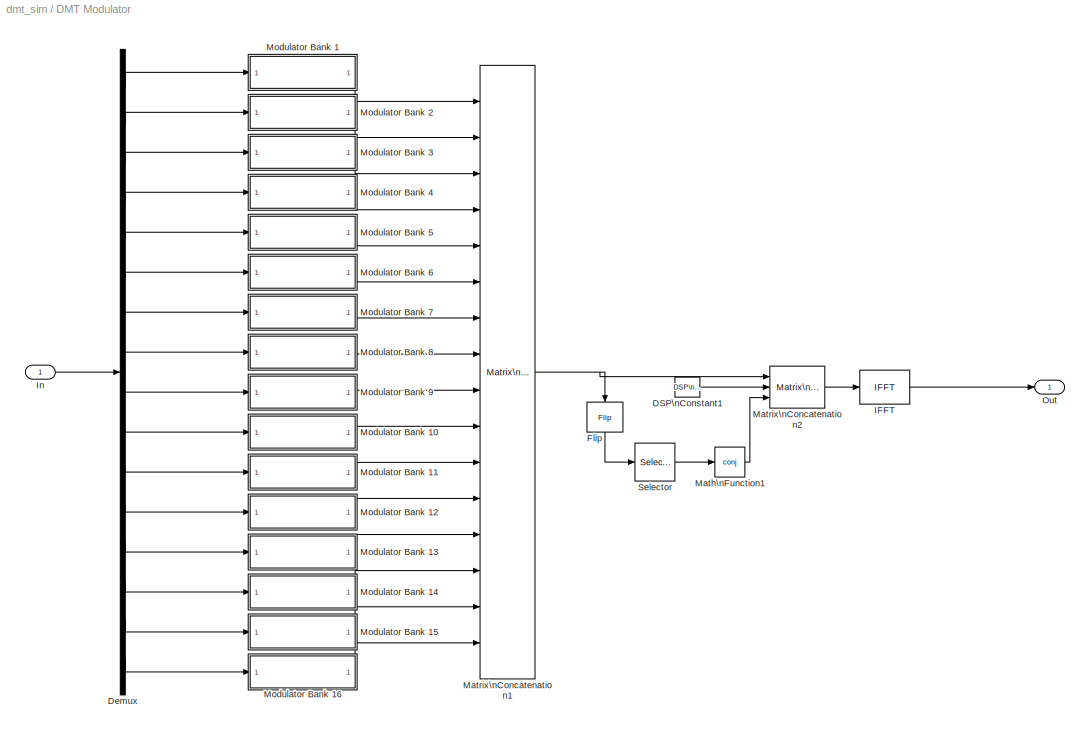
BLOCK [SubSystem] DMT Modulator
  EnableExecutionContextPropagation = on
  MaskDisplay = disp('DMT\\nModulator')
  MaskIconFrame = on
  MaskIconOpaque = on
  MaskIconRotate = none
  MaskIconUnits = autoscale
  MinAlgLoopOccurrences = off
  Ports = [1, 1]
  TreatAsAtomicUnit = off
BLOCK [Reference] DMT Modulator/DSP\nConstant1  REF=dspsrcs4/DSP\nConstant
  FramebasedOutput = on
  InterpretAs1D = off
  Ports = [0, 1]
  SampleMode = Discrete
  ShowPortLabels = on
  SourceBlock = dspsrcs4/DSP\nConstant
  SourceType = DSP Constant
  Ts = (1/4000)
  Value = 0
  additionalParams = off
  allowOverrides = on
  continuousOutput = Sample-based
  dataType = Inherit from 'Constant value'
  discreteOutput = Frame-based
  fracBitsMode = Best precision
  framePeriod = (1/4000)
  numFracBits = 15
  sampTime = (1/4000)
  udDataType = sfix(16)
  wordLen = 16
BLOCK [Demux] DMT Modulator/Demux
  Outputs = sum(reshape(b,16,16))
  Ports = [1, 16]
BLOCK [Reference] DMT Modulator/Flip  REF=dspindex/Flip
  Ports = [1, 1]
  SourceBlock = dspindex/Flip
  SourceType = Flip
  dim = Columns
BLOCK [Reference] DMT Modulator/IFFT  REF=dspxfrm3/IFFT
  BitRevOrder = off
  CompMethod = Table lookup
  Ports = [1, 1]
  SkipNorm = off
  SourceBlock = dspxfrm3/IFFT
  SourceType = IFFT
  TableOpt = Speed
  accumFracLength = 30
  accumMode = Same as product output
  accumWordLength = 32
  additionalParams = off
  allowOverrides = on
  cs_in = on
  firstCoeffFracLength = 15
  firstCoeffMode = User-defined
  firstCoeffWordLength = 16
  mode = Real
  outputFracLength = 15
  outputMode = Same as input
  outputWordLength = 16
  overflowMode = off
  prodOutputFracLength = 30
  prodOutputMode = Same as input
  prodOutputWordLength = 32
  roundingMode = Floor
BLOCK [Inport] DMT Modulator/In
  IconDisplay = Port number
  LatchInput = off
BLOCK [Math] DMT Modulator/Math\nFunction1
  Operator = conj
  Ports = [1, 1]
BLOCK [Reference] DMT Modulator/Matrix\nConcatenation1  REF=simulink/Math\nOperations/Matrix\nConcatenation
  Ports = [16, 1]
  SourceBlock = simulink/Math\nOperations/Matrix\nConcatenation
  SourceType = Matrix Concatenation
  catMethod = Vertical
  numInports = 16
BLOCK [Reference] DMT Modulator/Matrix\nConcatenation2  REF=simulink/Math\nOperations/Matrix\nConcatenation
  Ports = [3, 1]
  SourceBlock = simulink/Math\nOperations/Matrix\nConcatenation
  SourceType = Matrix Concatenation
  catMethod = Vertical
  numInports = 3
BLOCK [SubSystem] DMT Modulator/Modulator Bank 1
  EnableExecutionContextPropagation = on
  MaskDescription = Bank of sixteen modulators for use in DMT.  Each modulator in the bank is a Rectangular QAM modulator.  The M-ary number for each modulator is taken from a workspace variable b. The Index offset parameter determines which sixteen consecutive values from b to use for this bank of modulators.  <repeated x16 — deduplicated; at blocks: Modulator Bank 1, Modulator Bank 10, Modulator Bank 11, Modulator Bank 12, Modulator Bank 13, Modulator Bank 14, Modulator Bank 15, Modulator Bank 16, Modulator Bank 2, Modulator Bank 3, Modulator Bank 4, Modulator Bank 5, Modulator Bank 6, Modulator Bank 7, Modulator Bank 8, Modulator Bank 9>
  MaskDisplay = disp('Modulator\\nBank');
  MaskEnableString = on
  MaskIconFrame = on
  MaskIconOpaque = on
  MaskIconRotate = none
  MaskIconUnits = autoscale
  MaskPromptString = Index offset:
  MaskStyleString = edit
  MaskToolTipString = on
  MaskTunableValueString = on
  MaskType = Modulator Bank
  MaskValueString = 16*0
  MaskVariables = offset=@1;
  MaskVisibilityString = on
  MinAlgLoopOccurrences = off
  Ports = [1, 1]
  TreatAsAtomicUnit = off
BLOCK [Demux] DMT Modulator/Modulator Bank 1/Demux1
  Outputs = b(offset+1:offset+16)
  Ports = [1, 16]
BLOCK [Inport] DMT Modulator/Modulator Bank 1/In1
  IconDisplay = Port number
  LatchInput = off
BLOCK [Reference] DMT Modulator/Modulator Bank 1/Matrix\nConcatenation  REF=simulink/Math\nOperations/Matrix\nConcatenation
  Ports = [16, 1]
  SourceBlock = simulink/Math\nOperations/Matrix\nConcatenation
  SourceType = Matrix Concatenation
  catMethod = Vertical
  numInports = 16
BLOCK [Outport] DMT Modulator/Modulator Bank 1/Out1
  BusOutputAsStruct = off
  IconDisplay = Port number
BLOCK [Reference] DMT Modulator/Modulator Bank 1/Rectangular QAM Modulator Baseband1  REF=commdigbbndam2/Rectangular QAM\nModulator\nBaseband
  AvgPow = 1
  Enc = Binary
  InType = Bit
  M = 2^b(offset+1)
  MinDist = 2
  PeakPow = 1
  Ph = 0
  Ports = [1, 1]
  PowType = Min. distance between symbols
  SourceBlock = commdigbbndam2/Rectangular QAM\nModulator\nBaseband
  SourceType = Rectangular QAM Modulator Baseband
  numSamp = 1
BLOCK [Reference] DMT Modulator/Modulator Bank 1/Rectangular QAM Modulator Baseband10  REF=commdigbbndam2/Rectangular QAM\nModulator\nBaseband
  AvgPow = 1
  Enc = Binary
  InType = Bit
  M = 2^b(offset+10)
  MinDist = 2
  PeakPow = 1
  Ph = 0
  Ports = [1, 1]
  PowType = Min. distance between symbols
  SourceBlock = commdigbbndam2/Rectangular QAM\nModulator\nBaseband
  SourceType = Rectangular QAM Modulator Baseband
  numSamp = 1
BLOCK [Reference] DMT Modulator/Modulator Bank 1/Rectangular QAM Modulator Baseband11  REF=commdigbbndam2/Rectangular QAM\nModulator\nBaseband
  AvgPow = 1
  Enc = Binary
  InType = Bit
  M = 2^b(offset+11)
  MinDist = 2
  PeakPow = 1
  Ph = 0
  Ports = [1, 1]
  PowType = Min. distance between symbols
  SourceBlock = commdigbbndam2/Rectangular QAM\nModulator\nBaseband
  SourceType = Rectangular QAM Modulator Baseband
  numSamp = 1
BLOCK [Reference] DMT Modulator/Modulator Bank 1/Rectangular QAM Modulator Baseband12  REF=commdigbbndam2/Rectangular QAM\nModulator\nBaseband
  AvgPow = 1
  Enc = Binary
  InType = Bit
  M = 2^b(offset+12)
  MinDist = 2
  PeakPow = 1
  Ph = 0
  Ports = [1, 1]
  PowType = Min. distance between symbols
  SourceBlock = commdigbbndam2/Rectangular QAM\nModulator\nBaseband
  SourceType = Rectangular QAM Modulator Baseband
  numSamp = 1
BLOCK [Reference] DMT Modulator/Modulator Bank 1/Rectangular QAM Modulator Baseband13  REF=commdigbbndam2/Rectangular QAM\nModulator\nBaseband
  AvgPow = 1
  Enc = Binary
  InType = Bit
  M = 2^b(offset+13)
  MinDist = 2
  PeakPow = 1
  Ph = 0
  Ports = [1, 1]
  PowType = Min. distance between symbols
  SourceBlock = commdigbbndam2/Rectangular QAM\nModulator\nBaseband
  SourceType = Rectangular QAM Modulator Baseband
  numSamp = 1
BLOCK [Reference] DMT Modulator/Modulator Bank 1/Rectangular QAM Modulator Baseband14  REF=commdigbbndam2/Rectangular QAM\nModulator\nBaseband
  AvgPow = 1
  Enc = Binary
  InType = Bit
  M = 2^b(offset+14)
  MinDist = 2
  PeakPow = 1
  Ph = 0
  Ports = [1, 1]
  PowType = Min. distance between symbols
  SourceBlock = commdigbbndam2/Rectangular QAM\nModulator\nBaseband
  SourceType = Rectangular QAM Modulator Baseband
  numSamp = 1
BLOCK [Reference] DMT Modulator/Modulator Bank 1/Rectangular QAM Modulator Baseband15  REF=commdigbbndam2/Rectangular QAM\nModulator\nBaseband
  AvgPow = 1
  Enc = Binary
  InType = Bit
  M = 2^b(offset+15)
  MinDist = 2
  PeakPow = 1
  Ph = 0
  Ports = [1, 1]
  PowType = Min. distance between symbols
  SourceBlock = commdigbbndam2/Rectangular QAM\nModulator\nBaseband
  SourceType = Rectangular QAM Modulator Baseband
  numSamp = 1
BLOCK [Reference] DMT Modulator/Modulator Bank 1/Rectangular QAM Modulator Baseband16  REF=commdigbbndam2/Rectangular QAM\nModulator\nBaseband
  AvgPow = 1
  Enc = Binary
  InType = Bit
  M = 2^b(offset+16)
  MinDist = 2
  PeakPow = 1
  Ph = 0
  Ports = [1, 1]
  PowType = Min. distance between symbols
  SourceBlock = commdigbbndam2/Rectangular QAM\nModulator\nBaseband
  SourceType = Rectangular QAM Modulator Baseband
  numSamp = 1
BLOCK [Reference] DMT Modulator/Modulator Bank 1/Rectangular QAM Modulator Baseband2  REF=commdigbbndam2/Rectangular QAM\nModulator\nBaseband
  AvgPow = 1
  Enc = Binary
  InType = Bit
  M = 2^b(offset+2)
  MinDist = 2
  PeakPow = 1
  Ph = 0
  Ports = [1, 1]
  PowType = Min. distance between symbols
  SourceBlock = commdigbbndam2/Rectangular QAM\nModulator\nBaseband
  SourceType = Rectangular QAM Modulator Baseband
  numSamp = 1
BLOCK [Reference] DMT Modulator/Modulator Bank 1/Rectangular QAM Modulator Baseband3  REF=commdigbbndam2/Rectangular QAM\nModulator\nBaseband
  AvgPow = 1
  Enc = Binary
  InType = Bit
  M = 2^b(offset+3)
  MinDist = 2
  PeakPow = 1
  Ph = 0
  Ports = [1, 1]
  PowType = Min. distance between symbols
  SourceBlock = commdigbbndam2/Rectangular QAM\nModulator\nBaseband
  SourceType = Rectangular QAM Modulator Baseband
  numSamp = 1
BLOCK [Reference] DMT Modulator/Modulator Bank 1/Rectangular QAM Modulator Baseband4  REF=commdigbbndam2/Rectangular QAM\nModulator\nBaseband
  AvgPow = 1
  Enc = Binary
  InType = Bit
  M = 2^b(offset+4)
  MinDist = 2
  PeakPow = 1
  Ph = 0
  Ports = [1, 1]
  PowType = Min. distance between symbols
  SourceBlock = commdigbbndam2/Rectangular QAM\nModulator\nBaseband
  SourceType = Rectangular QAM Modulator Baseband
  numSamp = 1
BLOCK [Reference] DMT Modulator/Modulator Bank 1/Rectangular QAM Modulator Baseband5  REF=commdigbbndam2/Rectangular QAM\nModulator\nBaseband
  AvgPow = 1
  Enc = Binary
  InType = Bit
  M = 2^b(offset+5)
  MinDist = 2
  PeakPow = 1
  Ph = 0
  Ports = [1, 1]
  PowType = Min. distance between symbols
  SourceBlock = commdigbbndam2/Rectangular QAM\nModulator\nBaseband
  SourceType = Rectangular QAM Modulator Baseband
  numSamp = 1
BLOCK [Reference] DMT Modulator/Modulator Bank 1/Rectangular QAM Modulator Baseband6  REF=commdigbbndam2/Rectangular QAM\nModulator\nBaseband
  AvgPow = 1
  Enc = Binary
  InType = Bit
  M = 2^b(offset+6)
  MinDist = 2
  PeakPow = 1
  Ph = 0
  Ports = [1, 1]
  PowType = Min. distance between symbols
  SourceBlock = commdigbbndam2/Rectangular QAM\nModulator\nBaseband
  SourceType = Rectangular QAM Modulator Baseband
  numSamp = 1
BLOCK [Reference] DMT Modulator/Modulator Bank 1/Rectangular QAM Modulator Baseband7  REF=commdigbbndam2/Rectangular QAM\nModulator\nBaseband
  AvgPow = 1
  Enc = Binary
  InType = Bit
  M = 2^b(offset+7)
  MinDist = 2
  PeakPow = 1
  Ph = 0
  Ports = [1, 1]
  PowType = Min. distance between symbols
  SourceBlock = commdigbbndam2/Rectangular QAM\nModulator\nBaseband
  SourceType = Rectangular QAM Modulator Baseband
  numSamp = 1
BLOCK [Reference] DMT Modulator/Modulator Bank 1/Rectangular QAM Modulator Baseband8  REF=commdigbbndam2/Rectangular QAM\nModulator\nBaseband
  AvgPow = 1
  Enc = Binary
  InType = Bit
  M = 2^b(offset+8)
  MinDist = 2
  PeakPow = 1
  Ph = 0
  Ports = [1, 1]
  PowType = Min. distance between symbols
  SourceBlock = commdigbbndam2/Rectangular QAM\nModulator\nBaseband
  SourceType = Rectangular QAM Modulator Baseband
  numSamp = 1
BLOCK [Reference] DMT Modulator/Modulator Bank 1/Rectangular QAM Modulator Baseband9  REF=commdigbbndam2/Rectangular QAM\nModulator\nBaseband
  AvgPow = 1
  Enc = Binary
  InType = Bit
  M = 2^b(offset+9)
  MinDist = 2
  PeakPow = 1
  Ph = 0
  Ports = [1, 1]
  PowType = Min. distance between symbols
  SourceBlock = commdigbbndam2/Rectangular QAM\nModulator\nBaseband
  SourceType = Rectangular QAM Modulator Baseband
  numSamp = 1
BLOCK [SubSystem] DMT Modulator/Modulator Bank 10
  EnableExecutionContextPropagation = on
  MaskDisplay = disp('Modulator\\nBank');
  MaskEnableString = on
  MaskIconFrame = on
  MaskIconOpaque = on
  MaskIconRotate = none
  MaskIconUnits = autoscale
  MaskPromptString = Index offset:
  MaskStyleString = edit
  MaskToolTipString = on
  MaskTunableValueString = on
  MaskType = Modulator Bank
  MaskValueString = 16*9
  MaskVariables = offset=@1;
  MaskVisibilityString = on
  MinAlgLoopOccurrences = off
  Ports = [1, 1]
  TreatAsAtomicUnit = off
BLOCK [Demux] DMT Modulator/Modulator Bank 10/Demux1
  Outputs = b(offset+1:offset+16)
  Ports = [1, 16]
BLOCK [Inport] DMT Modulator/Modulator Bank 10/In1
  IconDisplay = Port number
  LatchInput = off
BLOCK [Reference] DMT Modulator/Modulator Bank 10/Matrix\nConcatenation  REF=simulink/Math\nOperations/Matrix\nConcatenation
  Ports = [16, 1]
  SourceBlock = simulink/Math\nOperations/Matrix\nConcatenation
  SourceType = Matrix Concatenation
  catMethod = Vertical
  numInports = 16
BLOCK [Outport] DMT Modulator/Modulator Bank 10/Out1
  BusOutputAsStruct = off
  IconDisplay = Port number
BLOCK [Reference] DMT Modulator/Modulator Bank 10/Rectangular QAM Modulator Baseband1  REF=commdigbbndam2/Rectangular QAM\nModulator\nBaseband
  AvgPow = 1
  Enc = Binary
  InType = Bit
  M = 2^b(offset+1)
  MinDist = 2
  PeakPow = 1
  Ph = 0
  Ports = [1, 1]
  PowType = Min. distance between symbols
  SourceBlock = commdigbbndam2/Rectangular QAM\nModulator\nBaseband
  SourceType = Rectangular QAM Modulator Baseband
  numSamp = 1
BLOCK [Reference] DMT Modulator/Modulator Bank 10/Rectangular QAM Modulator Baseband10  REF=commdigbbndam2/Rectangular QAM\nModulator\nBaseband
  AvgPow = 1
  Enc = Binary
  InType = Bit
  M = 2^b(offset+10)
  MinDist = 2
  PeakPow = 1
  Ph = 0
  Ports = [1, 1]
  PowType = Min. distance between symbols
  SourceBlock = commdigbbndam2/Rectangular QAM\nModulator\nBaseband
  SourceType = Rectangular QAM Modulator Baseband
  numSamp = 1
BLOCK [Reference] DMT Modulator/Modulator Bank 10/Rectangular QAM Modulator Baseband11  REF=commdigbbndam2/Rectangular QAM\nModulator\nBaseband
  AvgPow = 1
  Enc = Binary
  InType = Bit
  M = 2^b(offset+11)
  MinDist = 2
  PeakPow = 1
  Ph = 0
  Ports = [1, 1]
  PowType = Min. distance between symbols
  SourceBlock = commdigbbndam2/Rectangular QAM\nModulator\nBaseband
  SourceType = Rectangular QAM Modulator Baseband
  numSamp = 1
BLOCK [Reference] DMT Modulator/Modulator Bank 10/Rectangular QAM Modulator Baseband12  REF=commdigbbndam2/Rectangular QAM\nModulator\nBaseband
  AvgPow = 1
  Enc = Binary
  InType = Bit
  M = 2^b(offset+12)
  MinDist = 2
  PeakPow = 1
  Ph = 0
  Ports = [1, 1]
  PowType = Min. distance between symbols
  SourceBlock = commdigbbndam2/Rectangular QAM\nModulator\nBaseband
  SourceType = Rectangular QAM Modulator Baseband
  numSamp = 1
BLOCK [Reference] DMT Modulator/Modulator Bank 10/Rectangular QAM Modulator Baseband13  REF=commdigbbndam2/Rectangular QAM\nModulator\nBaseband
  AvgPow = 1
  Enc = Binary
  InType = Bit
  M = 2^b(offset+13)
  MinDist = 2
  PeakPow = 1
  Ph = 0
  Ports = [1, 1]
  PowType = Min. distance between symbols
  SourceBlock = commdigbbndam2/Rectangular QAM\nModulator\nBaseband
  SourceType = Rectangular QAM Modulator Baseband
  numSamp = 1
BLOCK [Reference] DMT Modulator/Modulator Bank 10/Rectangular QAM Modulator Baseband14  REF=commdigbbndam2/Rectangular QAM\nModulator\nBaseband
  AvgPow = 1
  Enc = Binary
  InType = Bit
  M = 2^b(offset+14)
  MinDist = 2
  PeakPow = 1
  Ph = 0
  Ports = [1, 1]
  PowType = Min. distance between symbols
  SourceBlock = commdigbbndam2/Rectangular QAM\nModulator\nBaseband
  SourceType = Rectangular QAM Modulator Baseband
  numSamp = 1
BLOCK [Reference] DMT Modulator/Modulator Bank 10/Rectangular QAM Modulator Baseband15  REF=commdigbbndam2/Rectangular QAM\nModulator\nBaseband
  AvgPow = 1
  Enc = Binary
  InType = Bit
  M = 2^b(offset+15)
  MinDist = 2
  PeakPow = 1
  Ph = 0
  Ports = [1, 1]
  PowType = Min. distance between symbols
  SourceBlock = commdigbbndam2/Rectangular QAM\nModulator\nBaseband
  SourceType = Rectangular QAM Modulator Baseband
  numSamp = 1
BLOCK [Reference] DMT Modulator/Modulator Bank 10/Rectangular QAM Modulator Baseband16  REF=commdigbbndam2/Rectangular QAM\nModulator\nBaseband
  AvgPow = 1
  Enc = Binary
  InType = Bit
  M = 2^b(offset+16)
  MinDist = 2
  PeakPow = 1
  Ph = 0
  Ports = [1, 1]
  PowType = Min. distance between symbols
  SourceBlock = commdigbbndam2/Rectangular QAM\nModulator\nBaseband
  SourceType = Rectangular QAM Modulator Baseband
  numSamp = 1
BLOCK [Reference] DMT Modulator/Modulator Bank 10/Rectangular QAM Modulator Baseband2  REF=commdigbbndam2/Rectangular QAM\nModulator\nBaseband
  AvgPow = 1
  Enc = Binary
  InType = Bit
  M = 2^b(offset+2)
  MinDist = 2
  PeakPow = 1
  Ph = 0
  Ports = [1, 1]
  PowType = Min. distance between symbols
  SourceBlock = commdigbbndam2/Rectangular QAM\nModulator\nBaseband
  SourceType = Rectangular QAM Modulator Baseband
  numSamp = 1
BLOCK [Reference] DMT Modulator/Modulator Bank 10/Rectangular QAM Modulator Baseband3  REF=commdigbbndam2/Rectangular QAM\nModulator\nBaseband
  AvgPow = 1
  Enc = Binary
  InType = Bit
  M = 2^b(offset+3)
  MinDist = 2
  PeakPow = 1
  Ph = 0
  Ports = [1, 1]
  PowType = Min. distance between symbols
  SourceBlock = commdigbbndam2/Rectangular QAM\nModulator\nBaseband
  SourceType = Rectangular QAM Modulator Baseband
  numSamp = 1
BLOCK [Reference] DMT Modulator/Modulator Bank 10/Rectangular QAM Modulator Baseband4  REF=commdigbbndam2/Rectangular QAM\nModulator\nBaseband
  AvgPow = 1
  Enc = Binary
  InType = Bit
  M = 2^b(offset+4)
  MinDist = 2
  PeakPow = 1
  Ph = 0
  Ports = [1, 1]
  PowType = Min. distance between symbols
  SourceBlock = commdigbbndam2/Rectangular QAM\nModulator\nBaseband
  SourceType = Rectangular QAM Modulator Baseband
  numSamp = 1
BLOCK [Reference] DMT Modulator/Modulator Bank 10/Rectangular QAM Modulator Baseband5  REF=commdigbbndam2/Rectangular QAM\nModulator\nBaseband
  AvgPow = 1
  Enc = Binary
  InType = Bit
  M = 2^b(offset+5)
  MinDist = 2
  PeakPow = 1
  Ph = 0
  Ports = [1, 1]
  PowType = Min. distance between symbols
  SourceBlock = commdigbbndam2/Rectangular QAM\nModulator\nBaseband
  SourceType = Rectangular QAM Modulator Baseband
  numSamp = 1
BLOCK [Reference] DMT Modulator/Modulator Bank 10/Rectangular QAM Modulator Baseband6  REF=commdigbbndam2/Rectangular QAM\nModulator\nBaseband
  AvgPow = 1
  Enc = Binary
  InType = Bit
  M = 2^b(offset+6)
  MinDist = 2
  PeakPow = 1
  Ph = 0
  Ports = [1, 1]
  PowType = Min. distance between symbols
  SourceBlock = commdigbbndam2/Rectangular QAM\nModulator\nBaseband
  SourceType = Rectangular QAM Modulator Baseband
  numSamp = 1
BLOCK [Reference] DMT Modulator/Modulator Bank 10/Rectangular QAM Modulator Baseband7  REF=commdigbbndam2/Rectangular QAM\nModulator\nBaseband
  AvgPow = 1
  Enc = Binary
  InType = Bit
  M = 2^b(offset+7)
  MinDist = 2
  PeakPow = 1
  Ph = 0
  Ports = [1, 1]
  PowType = Min. distance between symbols
  SourceBlock = commdigbbndam2/Rectangular QAM\nModulator\nBaseband
  SourceType = Rectangular QAM Modulator Baseband
  numSamp = 1
BLOCK [Reference] DMT Modulator/Modulator Bank 10/Rectangular QAM Modulator Baseband8  REF=commdigbbndam2/Rectangular QAM\nModulator\nBaseband
  AvgPow = 1
  Enc = Binary
  InType = Bit
  M = 2^b(offset+8)
  MinDist = 2
  PeakPow = 1
  Ph = 0
  Ports = [1, 1]
  PowType = Min. distance between symbols
  SourceBlock = commdigbbndam2/Rectangular QAM\nModulator\nBaseband
  SourceType = Rectangular QAM Modulator Baseband
  numSamp = 1
BLOCK [Reference] DMT Modulator/Modulator Bank 10/Rectangular QAM Modulator Baseband9  REF=commdigbbndam2/Rectangular QAM\nModulator\nBaseband
  AvgPow = 1
  Enc = Binary
  InType = Bit
  M = 2^b(offset+9)
  MinDist = 2
  PeakPow = 1
  Ph = 0
  Ports = [1, 1]
  PowType = Min. distance between symbols
  SourceBlock = commdigbbndam2/Rectangular QAM\nModulator\nBaseband
  SourceType = Rectangular QAM Modulator Baseband
  numSamp = 1
BLOCK [SubSystem] DMT Modulator/Modulator Bank 11
  EnableExecutionContextPropagation = on
  MaskDisplay = disp('Modulator\\nBank');
  MaskEnableString = on
  MaskIconFrame = on
  MaskIconOpaque = on
  MaskIconRotate = none
  MaskIconUnits = autoscale
  MaskPromptString = Index offset:
  MaskStyleString = edit
  MaskToolTipString = on
  MaskTunableValueString = on
  MaskType = Modulator Bank
  MaskValueString = 16*10
  MaskVariables = offset=@1;
  MaskVisibilityString = on
  MinAlgLoopOccurrences = off
  Ports = [1, 1]
  TreatAsAtomicUnit = off
BLOCK [Demux] DMT Modulator/Modulator Bank 11/Demux1
  Outputs = b(offset+1:offset+16)
  Ports = [1, 16]
BLOCK [Inport] DMT Modulator/Modulator Bank 11/In1
  IconDisplay = Port number
  LatchInput = off
BLOCK [Reference] DMT Modulator/Modulator Bank 11/Matrix\nConcatenation  REF=simulink/Math\nOperations/Matrix\nConcatenation
  Ports = [16, 1]
  SourceBlock = simulink/Math\nOperations/Matrix\nConcatenation
  SourceType = Matrix Concatenation
  catMethod = Vertical
  numInports = 16
BLOCK [Outport] DMT Modulator/Modulator Bank 11/Out1
  BusOutputAsStruct = off
  IconDisplay = Port number
BLOCK [Reference] DMT Modulator/Modulator Bank 11/Rectangular QAM Modulator Baseband1  REF=commdigbbndam2/Rectangular QAM\nModulator\nBaseband
  AvgPow = 1
  Enc = Binary
  InType = Bit
  M = 2^b(offset+1)
  MinDist = 2
  PeakPow = 1
  Ph = 0
  Ports = [1, 1]
  PowType = Min. distance between symbols
  SourceBlock = commdigbbndam2/Rectangular QAM\nModulator\nBaseband
  SourceType = Rectangular QAM Modulator Baseband
  numSamp = 1
BLOCK [Reference] DMT Modulator/Modulator Bank 11/Rectangular QAM Modulator Baseband10  REF=commdigbbndam2/Rectangular QAM\nModulator\nBaseband
  AvgPow = 1
  Enc = Binary
  InType = Bit
  M = 2^b(offset+10)
  MinDist = 2
  PeakPow = 1
  Ph = 0
  Ports = [1, 1]
  PowType = Min. distance between symbols
  SourceBlock = commdigbbndam2/Rectangular QAM\nModulator\nBaseband
  SourceType = Rectangular QAM Modulator Baseband
  numSamp = 1
BLOCK [Reference] DMT Modulator/Modulator Bank 11/Rectangular QAM Modulator Baseband11  REF=commdigbbndam2/Rectangular QAM\nModulator\nBaseband
  AvgPow = 1
  Enc = Binary
  InType = Bit
  M = 2^b(offset+11)
  MinDist = 2
  PeakPow = 1
  Ph = 0
  Ports = [1, 1]
  PowType = Min. distance between symbols
  SourceBlock = commdigbbndam2/Rectangular QAM\nModulator\nBaseband
  SourceType = Rectangular QAM Modulator Baseband
  numSamp = 1
BLOCK [Reference] DMT Modulator/Modulator Bank 11/Rectangular QAM Modulator Baseband12  REF=commdigbbndam2/Rectangular QAM\nModulator\nBaseband
  AvgPow = 1
  Enc = Binary
  InType = Bit
  M = 2^b(offset+12)
  MinDist = 2
  PeakPow = 1
  Ph = 0
  Ports = [1, 1]
  PowType = Min. distance between symbols
  SourceBlock = commdigbbndam2/Rectangular QAM\nModulator\nBaseband
  SourceType = Rectangular QAM Modulator Baseband
  numSamp = 1
BLOCK [Reference] DMT Modulator/Modulator Bank 11/Rectangular QAM Modulator Baseband13  REF=commdigbbndam2/Rectangular QAM\nModulator\nBaseband
  AvgPow = 1
  Enc = Binary
  InType = Bit
  M = 2^b(offset+13)
  MinDist = 2
  PeakPow = 1
  Ph = 0
  Ports = [1, 1]
  PowType = Min. distance between symbols
  SourceBlock = commdigbbndam2/Rectangular QAM\nModulator\nBaseband
  SourceType = Rectangular QAM Modulator Baseband
  numSamp = 1
BLOCK [Reference] DMT Modulator/Modulator Bank 11/Rectangular QAM Modulator Baseband14  REF=commdigbbndam2/Rectangular QAM\nModulator\nBaseband
  AvgPow = 1
  Enc = Binary
  InType = Bit
  M = 2^b(offset+14)
  MinDist = 2
  PeakPow = 1
  Ph = 0
  Ports = [1, 1]
  PowType = Min. distance between symbols
  SourceBlock = commdigbbndam2/Rectangular QAM\nModulator\nBaseband
  SourceType = Rectangular QAM Modulator Baseband
  numSamp = 1
BLOCK [Reference] DMT Modulator/Modulator Bank 11/Rectangular QAM Modulator Baseband15  REF=commdigbbndam2/Rectangular QAM\nModulator\nBaseband
  AvgPow = 1
  Enc = Binary
  InType = Bit
  M = 2^b(offset+15)
  MinDist = 2
  PeakPow = 1
  Ph = 0
  Ports = [1, 1]
  PowType = Min. distance between symbols
  SourceBlock = commdigbbndam2/Rectangular QAM\nModulator\nBaseband
  SourceType = Rectangular QAM Modulator Baseband
  numSamp = 1
BLOCK [Reference] DMT Modulator/Modulator Bank 11/Rectangular QAM Modulator Baseband16  REF=commdigbbndam2/Rectangular QAM\nModulator\nBaseband
  AvgPow = 1
  Enc = Binary
  InType = Bit
  M = 2^b(offset+16)
  MinDist = 2
  PeakPow = 1
  Ph = 0
  Ports = [1, 1]
  PowType = Min. distance between symbols
  SourceBlock = commdigbbndam2/Rectangular QAM\nModulator\nBaseband
  SourceType = Rectangular QAM Modulator Baseband
  numSamp = 1
BLOCK [Reference] DMT Modulator/Modulator Bank 11/Rectangular QAM Modulator Baseband2  REF=commdigbbndam2/Rectangular QAM\nModulator\nBaseband
  AvgPow = 1
  Enc = Binary
  InType = Bit
  M = 2^b(offset+2)
  MinDist = 2
  PeakPow = 1
  Ph = 0
  Ports = [1, 1]
  PowType = Min. distance between symbols
  SourceBlock = commdigbbndam2/Rectangular QAM\nModulator\nBaseband
  SourceType = Rectangular QAM Modulator Baseband
  numSamp = 1
BLOCK [Reference] DMT Modulator/Modulator Bank 11/Rectangular QAM Modulator Baseband3  REF=commdigbbndam2/Rectangular QAM\nModulator\nBaseband
  AvgPow = 1
  Enc = Binary
  InType = Bit
  M = 2^b(offset+3)
  MinDist = 2
  PeakPow = 1
  Ph = 0
  Ports = [1, 1]
  PowType = Min. distance between symbols
  SourceBlock = commdigbbndam2/Rectangular QAM\nModulator\nBaseband
  SourceType = Rectangular QAM Modulator Baseband
  numSamp = 1
BLOCK [Reference] DMT Modulator/Modulator Bank 11/Rectangular QAM Modulator Baseband4  REF=commdigbbndam2/Rectangular QAM\nModulator\nBaseband
  AvgPow = 1
  Enc = Binary
  InType = Bit
  M = 2^b(offset+4)
  MinDist = 2
  PeakPow = 1
  Ph = 0
  Ports = [1, 1]
  PowType = Min. distance between symbols
  SourceBlock = commdigbbndam2/Rectangular QAM\nModulator\nBaseband
  SourceType = Rectangular QAM Modulator Baseband
  numSamp = 1
BLOCK [Reference] DMT Modulator/Modulator Bank 11/Rectangular QAM Modulator Baseband5  REF=commdigbbndam2/Rectangular QAM\nModulator\nBaseband
  AvgPow = 1
  Enc = Binary
  InType = Bit
  M = 2^b(offset+5)
  MinDist = 2
  PeakPow = 1
  Ph = 0
  Ports = [1, 1]
  PowType = Min. distance between symbols
  SourceBlock = commdigbbndam2/Rectangular QAM\nModulator\nBaseband
  SourceType = Rectangular QAM Modulator Baseband
  numSamp = 1
BLOCK [Reference] DMT Modulator/Modulator Bank 11/Rectangular QAM Modulator Baseband6  REF=commdigbbndam2/Rectangular QAM\nModulator\nBaseband
  AvgPow = 1
  Enc = Binary
  InType = Bit
  M = 2^b(offset+6)
  MinDist = 2
  PeakPow = 1
  Ph = 0
  Ports = [1, 1]
  PowType = Min. distance between symbols
  SourceBlock = commdigbbndam2/Rectangular QAM\nModulator\nBaseband
  SourceType = Rectangular QAM Modulator Baseband
  numSamp = 1
BLOCK [Reference] DMT Modulator/Modulator Bank 11/Rectangular QAM Modulator Baseband7  REF=commdigbbndam2/Rectangular QAM\nModulator\nBaseband
  AvgPow = 1
  Enc = Binary
  InType = Bit
  M = 2^b(offset+7)
  MinDist = 2
  PeakPow = 1
  Ph = 0
  Ports = [1, 1]
  PowType = Min. distance between symbols
  SourceBlock = commdigbbndam2/Rectangular QAM\nModulator\nBaseband
  SourceType = Rectangular QAM Modulator Baseband
  numSamp = 1
BLOCK [Reference] DMT Modulator/Modulator Bank 11/Rectangular QAM Modulator Baseband8  REF=commdigbbndam2/Rectangular QAM\nModulator\nBaseband
  AvgPow = 1
  Enc = Binary
  InType = Bit
  M = 2^b(offset+8)
  MinDist = 2
  PeakPow = 1
  Ph = 0
  Ports = [1, 1]
  PowType = Min. distance between symbols
  SourceBlock = commdigbbndam2/Rectangular QAM\nModulator\nBaseband
  SourceType = Rectangular QAM Modulator Baseband
  numSamp = 1
BLOCK [Reference] DMT Modulator/Modulator Bank 11/Rectangular QAM Modulator Baseband9  REF=commdigbbndam2/Rectangular QAM\nModulator\nBaseband
  AvgPow = 1
  Enc = Binary
  InType = Bit
  M = 2^b(offset+9)
  MinDist = 2
  PeakPow = 1
  Ph = 0
  Ports = [1, 1]
  PowType = Min. distance between symbols
  SourceBlock = commdigbbndam2/Rectangular QAM\nModulator\nBaseband
  SourceType = Rectangular QAM Modulator Baseband
  numSamp = 1
BLOCK [SubSystem] DMT Modulator/Modulator Bank 12
  EnableExecutionContextPropagation = on
  MaskDisplay = disp('Modulator\\nBank');
  MaskEnableString = on
  MaskIconFrame = on
  MaskIconOpaque = on
  MaskIconRotate = none
  MaskIconUnits = autoscale
  MaskPromptString = Index offset:
  MaskStyleString = edit
  MaskToolTipString = on
  MaskTunableValueString = on
  MaskType = Modulator Bank
  MaskValueString = 16*11
  MaskVariables = offset=@1;
  MaskVisibilityString = on
  MinAlgLoopOccurrences = off
  Ports = [1, 1]
  TreatAsAtomicUnit = off
BLOCK [Demux] DMT Modulator/Modulator Bank 12/Demux1
  Outputs = b(offset+1:offset+16)
  Ports = [1, 16]
BLOCK [Inport] DMT Modulator/Modulator Bank 12/In1
  IconDisplay = Port number
  LatchInput = off
BLOCK [Reference] DMT Modulator/Modulator Bank 12/Matrix\nConcatenation  REF=simulink/Math\nOperations/Matrix\nConcatenation
  Ports = [16, 1]
  SourceBlock = simulink/Math\nOperations/Matrix\nConcatenation
  SourceType = Matrix Concatenation
  catMethod = Vertical
  numInports = 16
BLOCK [Outport] DMT Modulator/Modulator Bank 12/Out1
  BusOutputAsStruct = off
  IconDisplay = Port number
BLOCK [Reference] DMT Modulator/Modulator Bank 12/Rectangular QAM Modulator Baseband1  REF=commdigbbndam2/Rectangular QAM\nModulator\nBaseband
  AvgPow = 1
  Enc = Binary
  InType = Bit
  M = 2^b(offset+1)
  MinDist = 2
  PeakPow = 1
  Ph = 0
  Ports = [1, 1]
  PowType = Min. distance between symbols
  SourceBlock = commdigbbndam2/Rectangular QAM\nModulator\nBaseband
  SourceType = Rectangular QAM Modulator Baseband
  numSamp = 1
BLOCK [Reference] DMT Modulator/Modulator Bank 12/Rectangular QAM Modulator Baseband10  REF=commdigbbndam2/Rectangular QAM\nModulator\nBaseband
  AvgPow = 1
  Enc = Binary
  InType = Bit
  M = 2^b(offset+10)
  MinDist = 2
  PeakPow = 1
  Ph = 0
  Ports = [1, 1]
  PowType = Min. distance between symbols
  SourceBlock = commdigbbndam2/Rectangular QAM\nModulator\nBaseband
  SourceType = Rectangular QAM Modulator Baseband
  numSamp = 1
BLOCK [Reference] DMT Modulator/Modulator Bank 12/Rectangular QAM Modulator Baseband11  REF=commdigbbndam2/Rectangular QAM\nModulator\nBaseband
  AvgPow = 1
  Enc = Binary
  InType = Bit
  M = 2^b(offset+11)
  MinDist = 2
  PeakPow = 1
  Ph = 0
  Ports = [1, 1]
  PowType = Min. distance between symbols
  SourceBlock = commdigbbndam2/Rectangular QAM\nModulator\nBaseband
  SourceType = Rectangular QAM Modulator Baseband
  numSamp = 1
BLOCK [Reference] DMT Modulator/Modulator Bank 12/Rectangular QAM Modulator Baseband12  REF=commdigbbndam2/Rectangular QAM\nModulator\nBaseband
  AvgPow = 1
  Enc = Binary
  InType = Bit
  M = 2^b(offset+12)
  MinDist = 2
  PeakPow = 1
  Ph = 0
  Ports = [1, 1]
  PowType = Min. distance between symbols
  SourceBlock = commdigbbndam2/Rectangular QAM\nModulator\nBaseband
  SourceType = Rectangular QAM Modulator Baseband
  numSamp = 1
BLOCK [Reference] DMT Modulator/Modulator Bank 12/Rectangular QAM Modulator Baseband13  REF=commdigbbndam2/Rectangular QAM\nModulator\nBaseband
  AvgPow = 1
  Enc = Binary
  InType = Bit
  M = 2^b(offset+13)
  MinDist = 2
  PeakPow = 1
  Ph = 0
  Ports = [1, 1]
  PowType = Min. distance between symbols
  SourceBlock = commdigbbndam2/Rectangular QAM\nModulator\nBaseband
  SourceType = Rectangular QAM Modulator Baseband
  numSamp = 1
BLOCK [Reference] DMT Modulator/Modulator Bank 12/Rectangular QAM Modulator Baseband14  REF=commdigbbndam2/Rectangular QAM\nModulator\nBaseband
  AvgPow = 1
  Enc = Binary
  InType = Bit
  M = 2^b(offset+14)
  MinDist = 2
  PeakPow = 1
  Ph = 0
  Ports = [1, 1]
  PowType = Min. distance between symbols
  SourceBlock = commdigbbndam2/Rectangular QAM\nModulator\nBaseband
  SourceType = Rectangular QAM Modulator Baseband
  numSamp = 1
BLOCK [Reference] DMT Modulator/Modulator Bank 12/Rectangular QAM Modulator Baseband15  REF=commdigbbndam2/Rectangular QAM\nModulator\nBaseband
  AvgPow = 1
  Enc = Binary
  InType = Bit
  M = 2^b(offset+15)
  MinDist = 2
  PeakPow = 1
  Ph = 0
  Ports = [1, 1]
  PowType = Min. distance between symbols
  SourceBlock = commdigbbndam2/Rectangular QAM\nModulator\nBaseband
  SourceType = Rectangular QAM Modulator Baseband
  numSamp = 1
BLOCK [Reference] DMT Modulator/Modulator Bank 12/Rectangular QAM Modulator Baseband16  REF=commdigbbndam2/Rectangular QAM\nModulator\nBaseband
  AvgPow = 1
  Enc = Binary
  InType = Bit
  M = 2^b(offset+16)
  MinDist = 2
  PeakPow = 1
  Ph = 0
  Ports = [1, 1]
  PowType = Min. distance between symbols
  SourceBlock = commdigbbndam2/Rectangular QAM\nModulator\nBaseband
  SourceType = Rectangular QAM Modulator Baseband
  numSamp = 1
BLOCK [Reference] DMT Modulator/Modulator Bank 12/Rectangular QAM Modulator Baseband2  REF=commdigbbndam2/Rectangular QAM\nModulator\nBaseband
  AvgPow = 1
  Enc = Binary
  InType = Bit
  M = 2^b(offset+2)
  MinDist = 2
  PeakPow = 1
  Ph = 0
  Ports = [1, 1]
  PowType = Min. distance between symbols
  SourceBlock = commdigbbndam2/Rectangular QAM\nModulator\nBaseband
  SourceType = Rectangular QAM Modulator Baseband
  numSamp = 1
BLOCK [Reference] DMT Modulator/Modulator Bank 12/Rectangular QAM Modulator Baseband3  REF=commdigbbndam2/Rectangular QAM\nModulator\nBaseband
  AvgPow = 1
  Enc = Binary
  InType = Bit
  M = 2^b(offset+3)
  MinDist = 2
  PeakPow = 1
  Ph = 0
  Ports = [1, 1]
  PowType = Min. distance between symbols
  SourceBlock = commdigbbndam2/Rectangular QAM\nModulator\nBaseband
  SourceType = Rectangular QAM Modulator Baseband
  numSamp = 1
BLOCK [Reference] DMT Modulator/Modulator Bank 12/Rectangular QAM Modulator Baseband4  REF=commdigbbndam2/Rectangular QAM\nModulator\nBaseband
  AvgPow = 1
  Enc = Binary
  InType = Bit
  M = 2^b(offset+4)
  MinDist = 2
  PeakPow = 1
  Ph = 0
  Ports = [1, 1]
  PowType = Min. distance between symbols
  SourceBlock = commdigbbndam2/Rectangular QAM\nModulator\nBaseband
  SourceType = Rectangular QAM Modulator Baseband
  numSamp = 1
BLOCK [Reference] DMT Modulator/Modulator Bank 12/Rectangular QAM Modulator Baseband5  REF=commdigbbndam2/Rectangular QAM\nModulator\nBaseband
  AvgPow = 1
  Enc = Binary
  InType = Bit
  M = 2^b(offset+5)
  MinDist = 2
  PeakPow = 1
  Ph = 0
  Ports = [1, 1]
  PowType = Min. distance between symbols
  SourceBlock = commdigbbndam2/Rectangular QAM\nModulator\nBaseband
  SourceType = Rectangular QAM Modulator Baseband
  numSamp = 1
BLOCK [Reference] DMT Modulator/Modulator Bank 12/Rectangular QAM Modulator Baseband6  REF=commdigbbndam2/Rectangular QAM\nModulator\nBaseband
  AvgPow = 1
  Enc = Binary
  InType = Bit
  M = 2^b(offset+6)
  MinDist = 2
  PeakPow = 1
  Ph = 0
  Ports = [1, 1]
  PowType = Min. distance between symbols
  SourceBlock = commdigbbndam2/Rectangular QAM\nModulator\nBaseband
  SourceType = Rectangular QAM Modulator Baseband
  numSamp = 1
BLOCK [Reference] DMT Modulator/Modulator Bank 12/Rectangular QAM Modulator Baseband7  REF=commdigbbndam2/Rectangular QAM\nModulator\nBaseband
  AvgPow = 1
  Enc = Binary
  InType = Bit
  M = 2^b(offset+7)
  MinDist = 2
  PeakPow = 1
  Ph = 0
  Ports = [1, 1]
  PowType = Min. distance between symbols
  SourceBlock = commdigbbndam2/Rectangular QAM\nModulator\nBaseband
  SourceType = Rectangular QAM Modulator Baseband
  numSamp = 1
BLOCK [Reference] DMT Modulator/Modulator Bank 12/Rectangular QAM Modulator Baseband8  REF=commdigbbndam2/Rectangular QAM\nModulator\nBaseband
  AvgPow = 1
  Enc = Binary
  InType = Bit
  M = 2^b(offset+8)
  MinDist = 2
  PeakPow = 1
  Ph = 0
  Ports = [1, 1]
  PowType = Min. distance between symbols
  SourceBlock = commdigbbndam2/Rectangular QAM\nModulator\nBaseband
  SourceType = Rectangular QAM Modulator Baseband
  numSamp = 1
BLOCK [Reference] DMT Modulator/Modulator Bank 12/Rectangular QAM Modulator Baseband9  REF=commdigbbndam2/Rectangular QAM\nModulator\nBaseband
  AvgPow = 1
  Enc = Binary
  InType = Bit
  M = 2^b(offset+9)
  MinDist = 2
  PeakPow = 1
  Ph = 0
  Ports = [1, 1]
  PowType = Min. distance between symbols
  SourceBlock = commdigbbndam2/Rectangular QAM\nModulator\nBaseband
  SourceType = Rectangular QAM Modulator Baseband
  numSamp = 1
BLOCK [SubSystem] DMT Modulator/Modulator Bank 13
  EnableExecutionContextPropagation = on
  MaskDisplay = disp('Modulator\\nBank');
  MaskEnableString = on
  MaskIconFrame = on
  MaskIconOpaque = on
  MaskIconRotate = none
  MaskIconUnits = autoscale
  MaskPromptString = Index offset:
  MaskStyleString = edit
  MaskToolTipString = on
  MaskTunableValueString = on
  MaskType = Modulator Bank
  MaskValueString = 16*12
  MaskVariables = offset=@1;
  MaskVisibilityString = on
  MinAlgLoopOccurrences = off
  Ports = [1, 1]
  TreatAsAtomicUnit = off
BLOCK [Demux] DMT Modulator/Modulator Bank 13/Demux1
  Outputs = b(offset+1:offset+16)
  Ports = [1, 16]
BLOCK [Inport] DMT Modulator/Modulator Bank 13/In1
  IconDisplay = Port number
  LatchInput = off
BLOCK [Reference] DMT Modulator/Modulator Bank 13/Matrix\nConcatenation  REF=simulink/Math\nOperations/Matrix\nConcatenation
  Ports = [16, 1]
  SourceBlock = simulink/Math\nOperations/Matrix\nConcatenation
  SourceType = Matrix Concatenation
  catMethod = Vertical
  numInports = 16
BLOCK [Outport] DMT Modulator/Modulator Bank 13/Out1
  BusOutputAsStruct = off
  IconDisplay = Port number
BLOCK [Reference] DMT Modulator/Modulator Bank 13/Rectangular QAM Modulator Baseband1  REF=commdigbbndam2/Rectangular QAM\nModulator\nBaseband
  AvgPow = 1
  Enc = Binary
  InType = Bit
  M = 2^b(offset+1)
  MinDist = 2
  PeakPow = 1
  Ph = 0
  Ports = [1, 1]
  PowType = Min. distance between symbols
  SourceBlock = commdigbbndam2/Rectangular QAM\nModulator\nBaseband
  SourceType = Rectangular QAM Modulator Baseband
  numSamp = 1
BLOCK [Reference] DMT Modulator/Modulator Bank 13/Rectangular QAM Modulator Baseband10  REF=commdigbbndam2/Rectangular QAM\nModulator\nBaseband
  AvgPow = 1
  Enc = Binary
  InType = Bit
  M = 2^b(offset+10)
  MinDist = 2
  PeakPow = 1
  Ph = 0
  Ports = [1, 1]
  PowType = Min. distance between symbols
  SourceBlock = commdigbbndam2/Rectangular QAM\nModulator\nBaseband
  SourceType = Rectangular QAM Modulator Baseband
  numSamp = 1
BLOCK [Reference] DMT Modulator/Modulator Bank 13/Rectangular QAM Modulator Baseband11  REF=commdigbbndam2/Rectangular QAM\nModulator\nBaseband
  AvgPow = 1
  Enc = Binary
  InType = Bit
  M = 2^b(offset+11)
  MinDist = 2
  PeakPow = 1
  Ph = 0
  Ports = [1, 1]
  PowType = Min. distance between symbols
  SourceBlock = commdigbbndam2/Rectangular QAM\nModulator\nBaseband
  SourceType = Rectangular QAM Modulator Baseband
  numSamp = 1
BLOCK [Reference] DMT Modulator/Modulator Bank 13/Rectangular QAM Modulator Baseband12  REF=commdigbbndam2/Rectangular QAM\nModulator\nBaseband
  AvgPow = 1
  Enc = Binary
  InType = Bit
  M = 2^b(offset+12)
  MinDist = 2
  PeakPow = 1
  Ph = 0
  Ports = [1, 1]
  PowType = Min. distance between symbols
  SourceBlock = commdigbbndam2/Rectangular QAM\nModulator\nBaseband
  SourceType = Rectangular QAM Modulator Baseband
  numSamp = 1
BLOCK [Reference] DMT Modulator/Modulator Bank 13/Rectangular QAM Modulator Baseband13  REF=commdigbbndam2/Rectangular QAM\nModulator\nBaseband
  AvgPow = 1
  Enc = Binary
  InType = Bit
  M = 2^b(offset+13)
  MinDist = 2
  PeakPow = 1
  Ph = 0
  Ports = [1, 1]
  PowType = Min. distance between symbols
  SourceBlock = commdigbbndam2/Rectangular QAM\nModulator\nBaseband
  SourceType = Rectangular QAM Modulator Baseband
  numSamp = 1
BLOCK [Reference] DMT Modulator/Modulator Bank 13/Rectangular QAM Modulator Baseband14  REF=commdigbbndam2/Rectangular QAM\nModulator\nBaseband
  AvgPow = 1
  Enc = Binary
  InType = Bit
  M = 2^b(offset+14)
  MinDist = 2
  PeakPow = 1
  Ph = 0
  Ports = [1, 1]
  PowType = Min. distance between symbols
  SourceBlock = commdigbbndam2/Rectangular QAM\nModulator\nBaseband
  SourceType = Rectangular QAM Modulator Baseband
  numSamp = 1
BLOCK [Reference] DMT Modulator/Modulator Bank 13/Rectangular QAM Modulator Baseband15  REF=commdigbbndam2/Rectangular QAM\nModulator\nBaseband
  AvgPow = 1
  Enc = Binary
  InType = Bit
  M = 2^b(offset+15)
  MinDist = 2
  PeakPow = 1
  Ph = 0
  Ports = [1, 1]
  PowType = Min. distance between symbols
  SourceBlock = commdigbbndam2/Rectangular QAM\nModulator\nBaseband
  SourceType = Rectangular QAM Modulator Baseband
  numSamp = 1
BLOCK [Reference] DMT Modulator/Modulator Bank 13/Rectangular QAM Modulator Baseband16  REF=commdigbbndam2/Rectangular QAM\nModulator\nBaseband
  AvgPow = 1
  Enc = Binary
  InType = Bit
  M = 2^b(offset+16)
  MinDist = 2
  PeakPow = 1
  Ph = 0
  Ports = [1, 1]
  PowType = Min. distance between symbols
  SourceBlock = commdigbbndam2/Rectangular QAM\nModulator\nBaseband
  SourceType = Rectangular QAM Modulator Baseband
  numSamp = 1
BLOCK [Reference] DMT Modulator/Modulator Bank 13/Rectangular QAM Modulator Baseband2  REF=commdigbbndam2/Rectangular QAM\nModulator\nBaseband
  AvgPow = 1
  Enc = Binary
  InType = Bit
  M = 2^b(offset+2)
  MinDist = 2
  PeakPow = 1
  Ph = 0
  Ports = [1, 1]
  PowType = Min. distance between symbols
  SourceBlock = commdigbbndam2/Rectangular QAM\nModulator\nBaseband
  SourceType = Rectangular QAM Modulator Baseband
  numSamp = 1
BLOCK [Reference] DMT Modulator/Modulator Bank 13/Rectangular QAM Modulator Baseband3  REF=commdigbbndam2/Rectangular QAM\nModulator\nBaseband
  AvgPow = 1
  Enc = Binary
  InType = Bit
  M = 2^b(offset+3)
  MinDist = 2
  PeakPow = 1
  Ph = 0
  Ports = [1, 1]
  PowType = Min. distance between symbols
  SourceBlock = commdigbbndam2/Rectangular QAM\nModulator\nBaseband
  SourceType = Rectangular QAM Modulator Baseband
  numSamp = 1
BLOCK [Reference] DMT Modulator/Modulator Bank 13/Rectangular QAM Modulator Baseband4  REF=commdigbbndam2/Rectangular QAM\nModulator\nBaseband
  AvgPow = 1
  Enc = Binary
  InType = Bit
  M = 2^b(offset+4)
  MinDist = 2
  PeakPow = 1
  Ph = 0
  Ports = [1, 1]
  PowType = Min. distance between symbols
  SourceBlock = commdigbbndam2/Rectangular QAM\nModulator\nBaseband
  SourceType = Rectangular QAM Modulator Baseband
  numSamp = 1
BLOCK [Reference] DMT Modulator/Modulator Bank 13/Rectangular QAM Modulator Baseband5  REF=commdigbbndam2/Rectangular QAM\nModulator\nBaseband
  AvgPow = 1
  Enc = Binary
  InType = Bit
  M = 2^b(offset+5)
  MinDist = 2
  PeakPow = 1
  Ph = 0
  Ports = [1, 1]
  PowType = Min. distance between symbols
  SourceBlock = commdigbbndam2/Rectangular QAM\nModulator\nBaseband
  SourceType = Rectangular QAM Modulator Baseband
  numSamp = 1
BLOCK [Reference] DMT Modulator/Modulator Bank 13/Rectangular QAM Modulator Baseband6  REF=commdigbbndam2/Rectangular QAM\nModulator\nBaseband
  AvgPow = 1
  Enc = Binary
  InType = Bit
  M = 2^b(offset+6)
  MinDist = 2
  PeakPow = 1
  Ph = 0
  Ports = [1, 1]
  PowType = Min. distance between symbols
  SourceBlock = commdigbbndam2/Rectangular QAM\nModulator\nBaseband
  SourceType = Rectangular QAM Modulator Baseband
  numSamp = 1
BLOCK [Reference] DMT Modulator/Modulator Bank 13/Rectangular QAM Modulator Baseband7  REF=commdigbbndam2/Rectangular QAM\nModulator\nBaseband
  AvgPow = 1
  Enc = Binary
  InType = Bit
  M = 2^b(offset+7)
  MinDist = 2
  PeakPow = 1
  Ph = 0
  Ports = [1, 1]
  PowType = Min. distance between symbols
  SourceBlock = commdigbbndam2/Rectangular QAM\nModulator\nBaseband
  SourceType = Rectangular QAM Modulator Baseband
  numSamp = 1
BLOCK [Reference] DMT Modulator/Modulator Bank 13/Rectangular QAM Modulator Baseband8  REF=commdigbbndam2/Rectangular QAM\nModulator\nBaseband
  AvgPow = 1
  Enc = Binary
  InType = Bit
  M = 2^b(offset+8)
  MinDist = 2
  PeakPow = 1
  Ph = 0
  Ports = [1, 1]
  PowType = Min. distance between symbols
  SourceBlock = commdigbbndam2/Rectangular QAM\nModulator\nBaseband
  SourceType = Rectangular QAM Modulator Baseband
  numSamp = 1
BLOCK [Reference] DMT Modulator/Modulator Bank 13/Rectangular QAM Modulator Baseband9  REF=commdigbbndam2/Rectangular QAM\nModulator\nBaseband
  AvgPow = 1
  Enc = Binary
  InType = Bit
  M = 2^b(offset+9)
  MinDist = 2
  PeakPow = 1
  Ph = 0
  Ports = [1, 1]
  PowType = Min. distance between symbols
  SourceBlock = commdigbbndam2/Rectangular QAM\nModulator\nBaseband
  SourceType = Rectangular QAM Modulator Baseband
  numSamp = 1
BLOCK [SubSystem] DMT Modulator/Modulator Bank 14
  EnableExecutionContextPropagation = on
  MaskDisplay = disp('Modulator\\nBank');
  MaskEnableString = on
  MaskIconFrame = on
  MaskIconOpaque = on
  MaskIconRotate = none
  MaskIconUnits = autoscale
  MaskPromptString = Index offset:
  MaskStyleString = edit
  MaskToolTipString = on
  MaskTunableValueString = on
  MaskType = Modulator Bank
  MaskValueString = 16*13
  MaskVariables = offset=@1;
  MaskVisibilityString = on
  MinAlgLoopOccurrences = off
  Ports = [1, 1]
  TreatAsAtomicUnit = off
BLOCK [Demux] DMT Modulator/Modulator Bank 14/Demux1
  Outputs = b(offset+1:offset+16)
  Ports = [1, 16]
BLOCK [Inport] DMT Modulator/Modulator Bank 14/In1
  IconDisplay = Port number
  LatchInput = off
BLOCK [Reference] DMT Modulator/Modulator Bank 14/Matrix\nConcatenation  REF=simulink/Math\nOperations/Matrix\nConcatenation
  Ports = [16, 1]
  SourceBlock = simulink/Math\nOperations/Matrix\nConcatenation
  SourceType = Matrix Concatenation
  catMethod = Vertical
  numInports = 16
BLOCK [Outport] DMT Modulator/Modulator Bank 14/Out1
  BusOutputAsStruct = off
  IconDisplay = Port number
BLOCK [Reference] DMT Modulator/Modulator Bank 14/Rectangular QAM Modulator Baseband1  REF=commdigbbndam2/Rectangular QAM\nModulator\nBaseband
  AvgPow = 1
  Enc = Binary
  InType = Bit
  M = 2^b(offset+1)
  MinDist = 2
  PeakPow = 1
  Ph = 0
  Ports = [1, 1]
  PowType = Min. distance between symbols
  SourceBlock = commdigbbndam2/Rectangular QAM\nModulator\nBaseband
  SourceType = Rectangular QAM Modulator Baseband
  numSamp = 1
BLOCK [Reference] DMT Modulator/Modulator Bank 14/Rectangular QAM Modulator Baseband10  REF=commdigbbndam2/Rectangular QAM\nModulator\nBaseband
  AvgPow = 1
  Enc = Binary
  InType = Bit
  M = 2^b(offset+10)
  MinDist = 2
  PeakPow = 1
  Ph = 0
  Ports = [1, 1]
  PowType = Min. distance between symbols
  SourceBlock = commdigbbndam2/Rectangular QAM\nModulator\nBaseband
  SourceType = Rectangular QAM Modulator Baseband
  numSamp = 1
BLOCK [Reference] DMT Modulator/Modulator Bank 14/Rectangular QAM Modulator Baseband11  REF=commdigbbndam2/Rectangular QAM\nModulator\nBaseband
  AvgPow = 1
  Enc = Binary
  InType = Bit
  M = 2^b(offset+11)
  MinDist = 2
  PeakPow = 1
  Ph = 0
  Ports = [1, 1]
  PowType = Min. distance between symbols
  SourceBlock = commdigbbndam2/Rectangular QAM\nModulator\nBaseband
  SourceType = Rectangular QAM Modulator Baseband
  numSamp = 1
BLOCK [Reference] DMT Modulator/Modulator Bank 14/Rectangular QAM Modulator Baseband12  REF=commdigbbndam2/Rectangular QAM\nModulator\nBaseband
  AvgPow = 1
  Enc = Binary
  InType = Bit
  M = 2^b(offset+12)
  MinDist = 2
  PeakPow = 1
  Ph = 0
  Ports = [1, 1]
  PowType = Min. distance between symbols
  SourceBlock = commdigbbndam2/Rectangular QAM\nModulator\nBaseband
  SourceType = Rectangular QAM Modulator Baseband
  numSamp = 1
BLOCK [Reference] DMT Modulator/Modulator Bank 14/Rectangular QAM Modulator Baseband13  REF=commdigbbndam2/Rectangular QAM\nModulator\nBaseband
  AvgPow = 1
  Enc = Binary
  InType = Bit
  M = 2^b(offset+13)
  MinDist = 2
  PeakPow = 1
  Ph = 0
  Ports = [1, 1]
  PowType = Min. distance between symbols
  SourceBlock = commdigbbndam2/Rectangular QAM\nModulator\nBaseband
  SourceType = Rectangular QAM Modulator Baseband
  numSamp = 1
BLOCK [Reference] DMT Modulator/Modulator Bank 14/Rectangular QAM Modulator Baseband14  REF=commdigbbndam2/Rectangular QAM\nModulator\nBaseband
  AvgPow = 1
  Enc = Binary
  InType = Bit
  M = 2^b(offset+14)
  MinDist = 2
  PeakPow = 1
  Ph = 0
  Ports = [1, 1]
  PowType = Min. distance between symbols
  SourceBlock = commdigbbndam2/Rectangular QAM\nModulator\nBaseband
  SourceType = Rectangular QAM Modulator Baseband
  numSamp = 1
BLOCK [Reference] DMT Modulator/Modulator Bank 14/Rectangular QAM Modulator Baseband15  REF=commdigbbndam2/Rectangular QAM\nModulator\nBaseband
  AvgPow = 1
  Enc = Binary
  InType = Bit
  M = 2^b(offset+15)
  MinDist = 2
  PeakPow = 1
  Ph = 0
  Ports = [1, 1]
  PowType = Min. distance between symbols
  SourceBlock = commdigbbndam2/Rectangular QAM\nModulator\nBaseband
  SourceType = Rectangular QAM Modulator Baseband
  numSamp = 1
BLOCK [Reference] DMT Modulator/Modulator Bank 14/Rectangular QAM Modulator Baseband16  REF=commdigbbndam2/Rectangular QAM\nModulator\nBaseband
  AvgPow = 1
  Enc = Binary
  InType = Bit
  M = 2^b(offset+16)
  MinDist = 2
  PeakPow = 1
  Ph = 0
  Ports = [1, 1]
  PowType = Min. distance between symbols
  SourceBlock = commdigbbndam2/Rectangular QAM\nModulator\nBaseband
  SourceType = Rectangular QAM Modulator Baseband
  numSamp = 1
BLOCK [Reference] DMT Modulator/Modulator Bank 14/Rectangular QAM Modulator Baseband2  REF=commdigbbndam2/Rectangular QAM\nModulator\nBaseband
  AvgPow = 1
  Enc = Binary
  InType = Bit
  M = 2^b(offset+2)
  MinDist = 2
  PeakPow = 1
  Ph = 0
  Ports = [1, 1]
  PowType = Min. distance between symbols
  SourceBlock = commdigbbndam2/Rectangular QAM\nModulator\nBaseband
  SourceType = Rectangular QAM Modulator Baseband
  numSamp = 1
BLOCK [Reference] DMT Modulator/Modulator Bank 14/Rectangular QAM Modulator Baseband3  REF=commdigbbndam2/Rectangular QAM\nModulator\nBaseband
  AvgPow = 1
  Enc = Binary
  InType = Bit
  M = 2^b(offset+3)
  MinDist = 2
  PeakPow = 1
  Ph = 0
  Ports = [1, 1]
  PowType = Min. distance between symbols
  SourceBlock = commdigbbndam2/Rectangular QAM\nModulator\nBaseband
  SourceType = Rectangular QAM Modulator Baseband
  numSamp = 1
BLOCK [Reference] DMT Modulator/Modulator Bank 14/Rectangular QAM Modulator Baseband4  REF=commdigbbndam2/Rectangular QAM\nModulator\nBaseband
  AvgPow = 1
  Enc = Binary
  InType = Bit
  M = 2^b(offset+4)
  MinDist = 2
  PeakPow = 1
  Ph = 0
  Ports = [1, 1]
  PowType = Min. distance between symbols
  SourceBlock = commdigbbndam2/Rectangular QAM\nModulator\nBaseband
  SourceType = Rectangular QAM Modulator Baseband
  numSamp = 1
BLOCK [Reference] DMT Modulator/Modulator Bank 14/Rectangular QAM Modulator Baseband5  REF=commdigbbndam2/Rectangular QAM\nModulator\nBaseband
  AvgPow = 1
  Enc = Binary
  InType = Bit
  M = 2^b(offset+5)
  MinDist = 2
  PeakPow = 1
  Ph = 0
  Ports = [1, 1]
  PowType = Min. distance between symbols
  SourceBlock = commdigbbndam2/Rectangular QAM\nModulator\nBaseband
  SourceType = Rectangular QAM Modulator Baseband
  numSamp = 1
BLOCK [Reference] DMT Modulator/Modulator Bank 14/Rectangular QAM Modulator Baseband6  REF=commdigbbndam2/Rectangular QAM\nModulator\nBaseband
  AvgPow = 1
  Enc = Binary
  InType = Bit
  M = 2^b(offset+6)
  MinDist = 2
  PeakPow = 1
  Ph = 0
  Ports = [1, 1]
  PowType = Min. distance between symbols
  SourceBlock = commdigbbndam2/Rectangular QAM\nModulator\nBaseband
  SourceType = Rectangular QAM Modulator Baseband
  numSamp = 1
BLOCK [Reference] DMT Modulator/Modulator Bank 14/Rectangular QAM Modulator Baseband7  REF=commdigbbndam2/Rectangular QAM\nModulator\nBaseband
  AvgPow = 1
  Enc = Binary
  InType = Bit
  M = 2^b(offset+7)
  MinDist = 2
  PeakPow = 1
  Ph = 0
  Ports = [1, 1]
  PowType = Min. distance between symbols
  SourceBlock = commdigbbndam2/Rectangular QAM\nModulator\nBaseband
  SourceType = Rectangular QAM Modulator Baseband
  numSamp = 1
BLOCK [Reference] DMT Modulator/Modulator Bank 14/Rectangular QAM Modulator Baseband8  REF=commdigbbndam2/Rectangular QAM\nModulator\nBaseband
  AvgPow = 1
  Enc = Binary
  InType = Bit
  M = 2^b(offset+8)
  MinDist = 2
  PeakPow = 1
  Ph = 0
  Ports = [1, 1]
  PowType = Min. distance between symbols
  SourceBlock = commdigbbndam2/Rectangular QAM\nModulator\nBaseband
  SourceType = Rectangular QAM Modulator Baseband
  numSamp = 1
BLOCK [Reference] DMT Modulator/Modulator Bank 14/Rectangular QAM Modulator Baseband9  REF=commdigbbndam2/Rectangular QAM\nModulator\nBaseband
  AvgPow = 1
  Enc = Binary
  InType = Bit
  M = 2^b(offset+9)
  MinDist = 2
  PeakPow = 1
  Ph = 0
  Ports = [1, 1]
  PowType = Min. distance between symbols
  SourceBlock = commdigbbndam2/Rectangular QAM\nModulator\nBaseband
  SourceType = Rectangular QAM Modulator Baseband
  numSamp = 1
BLOCK [SubSystem] DMT Modulator/Modulator Bank 15
  EnableExecutionContextPropagation = on
  MaskDisplay = disp('Modulator\\nBank');
  MaskEnableString = on
  MaskIconFrame = on
  MaskIconOpaque = on
  MaskIconRotate = none
  MaskIconUnits = autoscale
  MaskPromptString = Index offset:
  MaskStyleString = edit
  MaskToolTipString = on
  MaskTunableValueString = on
  MaskType = Modulator Bank
  MaskValueString = 16*14
  MaskVariables = offset=@1;
  MaskVisibilityString = on
  MinAlgLoopOccurrences = off
  Ports = [1, 1]
  TreatAsAtomicUnit = off
BLOCK [Demux] DMT Modulator/Modulator Bank 15/Demux1
  Outputs = b(offset+1:offset+16)
  Ports = [1, 16]
BLOCK [Inport] DMT Modulator/Modulator Bank 15/In1
  IconDisplay = Port number
  LatchInput = off
BLOCK [Reference] DMT Modulator/Modulator Bank 15/Matrix\nConcatenation  REF=simulink/Math\nOperations/Matrix\nConcatenation
  Ports = [16, 1]
  SourceBlock = simulink/Math\nOperations/Matrix\nConcatenation
  SourceType = Matrix Concatenation
  catMethod = Vertical
  numInports = 16
BLOCK [Outport] DMT Modulator/Modulator Bank 15/Out1
  BusOutputAsStruct = off
  IconDisplay = Port number
BLOCK [Reference] DMT Modulator/Modulator Bank 15/Rectangular QAM Modulator Baseband1  REF=commdigbbndam2/Rectangular QAM\nModulator\nBaseband
  AvgPow = 1
  Enc = Binary
  InType = Bit
  M = 2^b(offset+1)
  MinDist = 2
  PeakPow = 1
  Ph = 0
  Ports = [1, 1]
  PowType = Min. distance between symbols
  SourceBlock = commdigbbndam2/Rectangular QAM\nModulator\nBaseband
  SourceType = Rectangular QAM Modulator Baseband
  numSamp = 1
BLOCK [Reference] DMT Modulator/Modulator Bank 15/Rectangular QAM Modulator Baseband10  REF=commdigbbndam2/Rectangular QAM\nModulator\nBaseband
  AvgPow = 1
  Enc = Binary
  InType = Bit
  M = 2^b(offset+10)
  MinDist = 2
  PeakPow = 1
  Ph = 0
  Ports = [1, 1]
  PowType = Min. distance between symbols
  SourceBlock = commdigbbndam2/Rectangular QAM\nModulator\nBaseband
  SourceType = Rectangular QAM Modulator Baseband
  numSamp = 1
BLOCK [Reference] DMT Modulator/Modulator Bank 15/Rectangular QAM Modulator Baseband11  REF=commdigbbndam2/Rectangular QAM\nModulator\nBaseband
  AvgPow = 1
  Enc = Binary
  InType = Bit
  M = 2^b(offset+11)
  MinDist = 2
  PeakPow = 1
  Ph = 0
  Ports = [1, 1]
  PowType = Min. distance between symbols
  SourceBlock = commdigbbndam2/Rectangular QAM\nModulator\nBaseband
  SourceType = Rectangular QAM Modulator Baseband
  numSamp = 1
BLOCK [Reference] DMT Modulator/Modulator Bank 15/Rectangular QAM Modulator Baseband12  REF=commdigbbndam2/Rectangular QAM\nModulator\nBaseband
  AvgPow = 1
  Enc = Binary
  InType = Bit
  M = 2^b(offset+12)
  MinDist = 2
  PeakPow = 1
  Ph = 0
  Ports = [1, 1]
  PowType = Min. distance between symbols
  SourceBlock = commdigbbndam2/Rectangular QAM\nModulator\nBaseband
  SourceType = Rectangular QAM Modulator Baseband
  numSamp = 1
BLOCK [Reference] DMT Modulator/Modulator Bank 15/Rectangular QAM Modulator Baseband13  REF=commdigbbndam2/Rectangular QAM\nModulator\nBaseband
  AvgPow = 1
  Enc = Binary
  InType = Bit
  M = 2^b(offset+13)
  MinDist = 2
  PeakPow = 1
  Ph = 0
  Ports = [1, 1]
  PowType = Min. distance between symbols
  SourceBlock = commdigbbndam2/Rectangular QAM\nModulator\nBaseband
  SourceType = Rectangular QAM Modulator Baseband
  numSamp = 1
BLOCK [Reference] DMT Modulator/Modulator Bank 15/Rectangular QAM Modulator Baseband14  REF=commdigbbndam2/Rectangular QAM\nModulator\nBaseband
  AvgPow = 1
  Enc = Binary
  InType = Bit
  M = 2^b(offset+14)
  MinDist = 2
  PeakPow = 1
  Ph = 0
  Ports = [1, 1]
  PowType = Min. distance between symbols
  SourceBlock = commdigbbndam2/Rectangular QAM\nModulator\nBaseband
  SourceType = Rectangular QAM Modulator Baseband
  numSamp = 1
BLOCK [Reference] DMT Modulator/Modulator Bank 15/Rectangular QAM Modulator Baseband15  REF=commdigbbndam2/Rectangular QAM\nModulator\nBaseband
  AvgPow = 1
  Enc = Binary
  InType = Bit
  M = 2^b(offset+15)
  MinDist = 2
  PeakPow = 1
  Ph = 0
  Ports = [1, 1]
  PowType = Min. distance between symbols
  SourceBlock = commdigbbndam2/Rectangular QAM\nModulator\nBaseband
  SourceType = Rectangular QAM Modulator Baseband
  numSamp = 1
BLOCK [Reference] DMT Modulator/Modulator Bank 15/Rectangular QAM Modulator Baseband16  REF=commdigbbndam2/Rectangular QAM\nModulator\nBaseband
  AvgPow = 1
  Enc = Binary
  InType = Bit
  M = 2^b(offset+16)
  MinDist = 2
  PeakPow = 1
  Ph = 0
  Ports = [1, 1]
  PowType = Min. distance between symbols
  SourceBlock = commdigbbndam2/Rectangular QAM\nModulator\nBaseband
  SourceType = Rectangular QAM Modulator Baseband
  numSamp = 1
BLOCK [Reference] DMT Modulator/Modulator Bank 15/Rectangular QAM Modulator Baseband2  REF=commdigbbndam2/Rectangular QAM\nModulator\nBaseband
  AvgPow = 1
  Enc = Binary
  InType = Bit
  M = 2^b(offset+2)
  MinDist = 2
  PeakPow = 1
  Ph = 0
  Ports = [1, 1]
  PowType = Min. distance between symbols
  SourceBlock = commdigbbndam2/Rectangular QAM\nModulator\nBaseband
  SourceType = Rectangular QAM Modulator Baseband
  numSamp = 1
BLOCK [Reference] DMT Modulator/Modulator Bank 15/Rectangular QAM Modulator Baseband3  REF=commdigbbndam2/Rectangular QAM\nModulator\nBaseband
  AvgPow = 1
  Enc = Binary
  InType = Bit
  M = 2^b(offset+3)
  MinDist = 2
  PeakPow = 1
  Ph = 0
  Ports = [1, 1]
  PowType = Min. distance between symbols
  SourceBlock = commdigbbndam2/Rectangular QAM\nModulator\nBaseband
  SourceType = Rectangular QAM Modulator Baseband
  numSamp = 1
BLOCK [Reference] DMT Modulator/Modulator Bank 15/Rectangular QAM Modulator Baseband4  REF=commdigbbndam2/Rectangular QAM\nModulator\nBaseband
  AvgPow = 1
  Enc = Binary
  InType = Bit
  M = 2^b(offset+4)
  MinDist = 2
  PeakPow = 1
  Ph = 0
  Ports = [1, 1]
  PowType = Min. distance between symbols
  SourceBlock = commdigbbndam2/Rectangular QAM\nModulator\nBaseband
  SourceType = Rectangular QAM Modulator Baseband
  numSamp = 1
BLOCK [Reference] DMT Modulator/Modulator Bank 15/Rectangular QAM Modulator Baseband5  REF=commdigbbndam2/Rectangular QAM\nModulator\nBaseband
  AvgPow = 1
  Enc = Binary
  InType = Bit
  M = 2^b(offset+5)
  MinDist = 2
  PeakPow = 1
  Ph = 0
  Ports = [1, 1]
  PowType = Min. distance between symbols
  SourceBlock = commdigbbndam2/Rectangular QAM\nModulator\nBaseband
  SourceType = Rectangular QAM Modulator Baseband
  numSamp = 1
BLOCK [Reference] DMT Modulator/Modulator Bank 15/Rectangular QAM Modulator Baseband6  REF=commdigbbndam2/Rectangular QAM\nModulator\nBaseband
  AvgPow = 1
  Enc = Binary
  InType = Bit
  M = 2^b(offset+6)
  MinDist = 2
  PeakPow = 1
  Ph = 0
  Ports = [1, 1]
  PowType = Min. distance between symbols
  SourceBlock = commdigbbndam2/Rectangular QAM\nModulator\nBaseband
  SourceType = Rectangular QAM Modulator Baseband
  numSamp = 1
BLOCK [Reference] DMT Modulator/Modulator Bank 15/Rectangular QAM Modulator Baseband7  REF=commdigbbndam2/Rectangular QAM\nModulator\nBaseband
  AvgPow = 1
  Enc = Binary
  InType = Bit
  M = 2^b(offset+7)
  MinDist = 2
  PeakPow = 1
  Ph = 0
  Ports = [1, 1]
  PowType = Min. distance between symbols
  SourceBlock = commdigbbndam2/Rectangular QAM\nModulator\nBaseband
  SourceType = Rectangular QAM Modulator Baseband
  numSamp = 1
BLOCK [Reference] DMT Modulator/Modulator Bank 15/Rectangular QAM Modulator Baseband8  REF=commdigbbndam2/Rectangular QAM\nModulator\nBaseband
  AvgPow = 1
  Enc = Binary
  InType = Bit
  M = 2^b(offset+8)
  MinDist = 2
  PeakPow = 1
  Ph = 0
  Ports = [1, 1]
  PowType = Min. distance between symbols
  SourceBlock = commdigbbndam2/Rectangular QAM\nModulator\nBaseband
  SourceType = Rectangular QAM Modulator Baseband
  numSamp = 1
BLOCK [Reference] DMT Modulator/Modulator Bank 15/Rectangular QAM Modulator Baseband9  REF=commdigbbndam2/Rectangular QAM\nModulator\nBaseband
  AvgPow = 1
  Enc = Binary
  InType = Bit
  M = 2^b(offset+9)
  MinDist = 2
  PeakPow = 1
  Ph = 0
  Ports = [1, 1]
  PowType = Min. distance between symbols
  SourceBlock = commdigbbndam2/Rectangular QAM\nModulator\nBaseband
  SourceType = Rectangular QAM Modulator Baseband
  numSamp = 1
BLOCK [SubSystem] DMT Modulator/Modulator Bank 16
  EnableExecutionContextPropagation = on
  MaskDisplay = disp('Modulator\\nBank');
  MaskEnableString = on
  MaskIconFrame = on
  MaskIconOpaque = on
  MaskIconRotate = none
  MaskIconUnits = autoscale
  MaskPromptString = Index offset:
  MaskStyleString = edit
  MaskToolTipString = on
  MaskTunableValueString = on
  MaskType = Modulator Bank
  MaskValueString = 16*15
  MaskVariables = offset=@1;
  MaskVisibilityString = on
  MinAlgLoopOccurrences = off
  Ports = [1, 1]
  TreatAsAtomicUnit = off
BLOCK [Demux] DMT Modulator/Modulator Bank 16/Demux1
  Outputs = b(offset+1:offset+16)
  Ports = [1, 16]
BLOCK [Inport] DMT Modulator/Modulator Bank 16/In1
  IconDisplay = Port number
  LatchInput = off
BLOCK [Reference] DMT Modulator/Modulator Bank 16/Matrix\nConcatenation  REF=simulink/Math\nOperations/Matrix\nConcatenation
  Ports = [16, 1]
  SourceBlock = simulink/Math\nOperations/Matrix\nConcatenation
  SourceType = Matrix Concatenation
  catMethod = Vertical
  numInports = 16
BLOCK [Outport] DMT Modulator/Modulator Bank 16/Out1
  BusOutputAsStruct = off
  IconDisplay = Port number
BLOCK [Reference] DMT Modulator/Modulator Bank 16/Rectangular QAM Modulator Baseband1  REF=commdigbbndam2/Rectangular QAM\nModulator\nBaseband
  AvgPow = 1
  Enc = Binary
  InType = Bit
  M = 2^b(offset+1)
  MinDist = 2
  PeakPow = 1
  Ph = 0
  Ports = [1, 1]
  PowType = Min. distance between symbols
  SourceBlock = commdigbbndam2/Rectangular QAM\nModulator\nBaseband
  SourceType = Rectangular QAM Modulator Baseband
  numSamp = 1
BLOCK [Reference] DMT Modulator/Modulator Bank 16/Rectangular QAM Modulator Baseband10  REF=commdigbbndam2/Rectangular QAM\nModulator\nBaseband
  AvgPow = 1
  Enc = Binary
  InType = Bit
  M = 2^b(offset+10)
  MinDist = 2
  PeakPow = 1
  Ph = 0
  Ports = [1, 1]
  PowType = Min. distance between symbols
  SourceBlock = commdigbbndam2/Rectangular QAM\nModulator\nBaseband
  SourceType = Rectangular QAM Modulator Baseband
  numSamp = 1
BLOCK [Reference] DMT Modulator/Modulator Bank 16/Rectangular QAM Modulator Baseband11  REF=commdigbbndam2/Rectangular QAM\nModulator\nBaseband
  AvgPow = 1
  Enc = Binary
  InType = Bit
  M = 2^b(offset+11)
  MinDist = 2
  PeakPow = 1
  Ph = 0
  Ports = [1, 1]
  PowType = Min. distance between symbols
  SourceBlock = commdigbbndam2/Rectangular QAM\nModulator\nBaseband
  SourceType = Rectangular QAM Modulator Baseband
  numSamp = 1
BLOCK [Reference] DMT Modulator/Modulator Bank 16/Rectangular QAM Modulator Baseband12  REF=commdigbbndam2/Rectangular QAM\nModulator\nBaseband
  AvgPow = 1
  Enc = Binary
  InType = Bit
  M = 2^b(offset+12)
  MinDist = 2
  PeakPow = 1
  Ph = 0
  Ports = [1, 1]
  PowType = Min. distance between symbols
  SourceBlock = commdigbbndam2/Rectangular QAM\nModulator\nBaseband
  SourceType = Rectangular QAM Modulator Baseband
  numSamp = 1
BLOCK [Reference] DMT Modulator/Modulator Bank 16/Rectangular QAM Modulator Baseband13  REF=commdigbbndam2/Rectangular QAM\nModulator\nBaseband
  AvgPow = 1
  Enc = Binary
  InType = Bit
  M = 2^b(offset+13)
  MinDist = 2
  PeakPow = 1
  Ph = 0
  Ports = [1, 1]
  PowType = Min. distance between symbols
  SourceBlock = commdigbbndam2/Rectangular QAM\nModulator\nBaseband
  SourceType = Rectangular QAM Modulator Baseband
  numSamp = 1
BLOCK [Reference] DMT Modulator/Modulator Bank 16/Rectangular QAM Modulator Baseband14  REF=commdigbbndam2/Rectangular QAM\nModulator\nBaseband
  AvgPow = 1
  Enc = Binary
  InType = Bit
  M = 2^b(offset+14)
  MinDist = 2
  PeakPow = 1
  Ph = 0
  Ports = [1, 1]
  PowType = Min. distance between symbols
  SourceBlock = commdigbbndam2/Rectangular QAM\nModulator\nBaseband
  SourceType = Rectangular QAM Modulator Baseband
  numSamp = 1
BLOCK [Reference] DMT Modulator/Modulator Bank 16/Rectangular QAM Modulator Baseband15  REF=commdigbbndam2/Rectangular QAM\nModulator\nBaseband
  AvgPow = 1
  Enc = Binary
  InType = Bit
  M = 2^b(offset+15)
  MinDist = 2
  PeakPow = 1
  Ph = 0
  Ports = [1, 1]
  PowType = Min. distance between symbols
  SourceBlock = commdigbbndam2/Rectangular QAM\nModulator\nBaseband
  SourceType = Rectangular QAM Modulator Baseband
  numSamp = 1
BLOCK [Reference] DMT Modulator/Modulator Bank 16/Rectangular QAM Modulator Baseband16  REF=commdigbbndam2/Rectangular QAM\nModulator\nBaseband
  AvgPow = 1
  Enc = Binary
  InType = Bit
  M = 2^b(offset+16)
  MinDist = 2
  PeakPow = 1
  Ph = 0
  Ports = [1, 1]
  PowType = Min. distance between symbols
  SourceBlock = commdigbbndam2/Rectangular QAM\nModulator\nBaseband
  SourceType = Rectangular QAM Modulator Baseband
  numSamp = 1
BLOCK [Reference] DMT Modulator/Modulator Bank 16/Rectangular QAM Modulator Baseband2  REF=commdigbbndam2/Rectangular QAM\nModulator\nBaseband
  AvgPow = 1
  Enc = Binary
  InType = Bit
  M = 2^b(offset+2)
  MinDist = 2
  PeakPow = 1
  Ph = 0
  Ports = [1, 1]
  PowType = Min. distance between symbols
  SourceBlock = commdigbbndam2/Rectangular QAM\nModulator\nBaseband
  SourceType = Rectangular QAM Modulator Baseband
  numSamp = 1
BLOCK [Reference] DMT Modulator/Modulator Bank 16/Rectangular QAM Modulator Baseband3  REF=commdigbbndam2/Rectangular QAM\nModulator\nBaseband
  AvgPow = 1
  Enc = Binary
  InType = Bit
  M = 2^b(offset+3)
  MinDist = 2
  PeakPow = 1
  Ph = 0
  Ports = [1, 1]
  PowType = Min. distance between symbols
  SourceBlock = commdigbbndam2/Rectangular QAM\nModulator\nBaseband
  SourceType = Rectangular QAM Modulator Baseband
  numSamp = 1
BLOCK [Reference] DMT Modulator/Modulator Bank 16/Rectangular QAM Modulator Baseband4  REF=commdigbbndam2/Rectangular QAM\nModulator\nBaseband
  AvgPow = 1
  Enc = Binary
  InType = Bit
  M = 2^b(offset+4)
  MinDist = 2
  PeakPow = 1
  Ph = 0
  Ports = [1, 1]
  PowType = Min. distance between symbols
  SourceBlock = commdigbbndam2/Rectangular QAM\nModulator\nBaseband
  SourceType = Rectangular QAM Modulator Baseband
  numSamp = 1
BLOCK [Reference] DMT Modulator/Modulator Bank 16/Rectangular QAM Modulator Baseband5  REF=commdigbbndam2/Rectangular QAM\nModulator\nBaseband
  AvgPow = 1
  Enc = Binary
  InType = Bit
  M = 2^b(offset+5)
  MinDist = 2
  PeakPow = 1
  Ph = 0
  Ports = [1, 1]
  PowType = Min. distance between symbols
  SourceBlock = commdigbbndam2/Rectangular QAM\nModulator\nBaseband
  SourceType = Rectangular QAM Modulator Baseband
  numSamp = 1
BLOCK [Reference] DMT Modulator/Modulator Bank 16/Rectangular QAM Modulator Baseband6  REF=commdigbbndam2/Rectangular QAM\nModulator\nBaseband
  AvgPow = 1
  Enc = Binary
  InType = Bit
  M = 2^b(offset+6)
  MinDist = 2
  PeakPow = 1
  Ph = 0
  Ports = [1, 1]
  PowType = Min. distance between symbols
  SourceBlock = commdigbbndam2/Rectangular QAM\nModulator\nBaseband
  SourceType = Rectangular QAM Modulator Baseband
  numSamp = 1
BLOCK [Reference] DMT Modulator/Modulator Bank 16/Rectangular QAM Modulator Baseband7  REF=commdigbbndam2/Rectangular QAM\nModulator\nBaseband
  AvgPow = 1
  Enc = Binary
  InType = Bit
  M = 2^b(offset+7)
  MinDist = 2
  PeakPow = 1
  Ph = 0
  Ports = [1, 1]
  PowType = Min. distance between symbols
  SourceBlock = commdigbbndam2/Rectangular QAM\nModulator\nBaseband
  SourceType = Rectangular QAM Modulator Baseband
  numSamp = 1
BLOCK [Reference] DMT Modulator/Modulator Bank 16/Rectangular QAM Modulator Baseband8  REF=commdigbbndam2/Rectangular QAM\nModulator\nBaseband
  AvgPow = 1
  Enc = Binary
  InType = Bit
  M = 2^b(offset+8)
  MinDist = 2
  PeakPow = 1
  Ph = 0
  Ports = [1, 1]
  PowType = Min. distance between symbols
  SourceBlock = commdigbbndam2/Rectangular QAM\nModulator\nBaseband
  SourceType = Rectangular QAM Modulator Baseband
  numSamp = 1
BLOCK [Reference] DMT Modulator/Modulator Bank 16/Rectangular QAM Modulator Baseband9  REF=commdigbbndam2/Rectangular QAM\nModulator\nBaseband
  AvgPow = 1
  Enc = Binary
  InType = Bit
  M = 2^b(offset+9)
  MinDist = 2
  PeakPow = 1
  Ph = 0
  Ports = [1, 1]
  PowType = Min. distance between symbols
  SourceBlock = commdigbbndam2/Rectangular QAM\nModulator\nBaseband
  SourceType = Rectangular QAM Modulator Baseband
  numSamp = 1
BLOCK [SubSystem] DMT Modulator/Modulator Bank 2
  EnableExecutionContextPropagation = on
  MaskDisplay = disp('Modulator\\nBank');
  MaskEnableString = on
  MaskIconFrame = on
  MaskIconOpaque = on
  MaskIconRotate = none
  MaskIconUnits = autoscale
  MaskPromptString = Index offset:
  MaskStyleString = edit
  MaskToolTipString = on
  MaskTunableValueString = on
  MaskType = Modulator Bank
  MaskValueString = 16*1
  MaskVariables = offset=@1;
  MaskVisibilityString = on
  MinAlgLoopOccurrences = off
  Ports = [1, 1]
  TreatAsAtomicUnit = off
BLOCK [Demux] DMT Modulator/Modulator Bank 2/Demux1
  Outputs = b(offset+1:offset+16)
  Ports = [1, 16]
BLOCK [Inport] DMT Modulator/Modulator Bank 2/In1
  IconDisplay = Port number
  LatchInput = off
BLOCK [Reference] DMT Modulator/Modulator Bank 2/Matrix\nConcatenation  REF=simulink/Math\nOperations/Matrix\nConcatenation
  Ports = [16, 1]
  SourceBlock = simulink/Math\nOperations/Matrix\nConcatenation
  SourceType = Matrix Concatenation
  catMethod = Vertical
  numInports = 16
BLOCK [Outport] DMT Modulator/Modulator Bank 2/Out1
  BusOutputAsStruct = off
  IconDisplay = Port number
BLOCK [Reference] DMT Modulator/Modulator Bank 2/Rectangular QAM Modulator Baseband1  REF=commdigbbndam2/Rectangular QAM\nModulator\nBaseband
  AvgPow = 1
  Enc = Binary
  InType = Bit
  M = 2^b(offset+1)
  MinDist = 2
  PeakPow = 1
  Ph = 0
  Ports = [1, 1]
  PowType = Min. distance between symbols
  SourceBlock = commdigbbndam2/Rectangular QAM\nModulator\nBaseband
  SourceType = Rectangular QAM Modulator Baseband
  numSamp = 1
BLOCK [Reference] DMT Modulator/Modulator Bank 2/Rectangular QAM Modulator Baseband10  REF=commdigbbndam2/Rectangular QAM\nModulator\nBaseband
  AvgPow = 1
  Enc = Binary
  InType = Bit
  M = 2^b(offset+10)
  MinDist = 2
  PeakPow = 1
  Ph = 0
  Ports = [1, 1]
  PowType = Min. distance between symbols
  SourceBlock = commdigbbndam2/Rectangular QAM\nModulator\nBaseband
  SourceType = Rectangular QAM Modulator Baseband
  numSamp = 1
BLOCK [Reference] DMT Modulator/Modulator Bank 2/Rectangular QAM Modulator Baseband11  REF=commdigbbndam2/Rectangular QAM\nModulator\nBaseband
  AvgPow = 1
  Enc = Binary
  InType = Bit
  M = 2^b(offset+11)
  MinDist = 2
  PeakPow = 1
  Ph = 0
  Ports = [1, 1]
  PowType = Min. distance between symbols
  SourceBlock = commdigbbndam2/Rectangular QAM\nModulator\nBaseband
  SourceType = Rectangular QAM Modulator Baseband
  numSamp = 1
BLOCK [Reference] DMT Modulator/Modulator Bank 2/Rectangular QAM Modulator Baseband12  REF=commdigbbndam2/Rectangular QAM\nModulator\nBaseband
  AvgPow = 1
  Enc = Binary
  InType = Bit
  M = 2^b(offset+12)
  MinDist = 2
  PeakPow = 1
  Ph = 0
  Ports = [1, 1]
  PowType = Min. distance between symbols
  SourceBlock = commdigbbndam2/Rectangular QAM\nModulator\nBaseband
  SourceType = Rectangular QAM Modulator Baseband
  numSamp = 1
BLOCK [Reference] DMT Modulator/Modulator Bank 2/Rectangular QAM Modulator Baseband13  REF=commdigbbndam2/Rectangular QAM\nModulator\nBaseband
  AvgPow = 1
  Enc = Binary
  InType = Bit
  M = 2^b(offset+13)
  MinDist = 2
  PeakPow = 1
  Ph = 0
  Ports = [1, 1]
  PowType = Min. distance between symbols
  SourceBlock = commdigbbndam2/Rectangular QAM\nModulator\nBaseband
  SourceType = Rectangular QAM Modulator Baseband
  numSamp = 1
BLOCK [Reference] DMT Modulator/Modulator Bank 2/Rectangular QAM Modulator Baseband14  REF=commdigbbndam2/Rectangular QAM\nModulator\nBaseband
  AvgPow = 1
  Enc = Binary
  InType = Bit
  M = 2^b(offset+14)
  MinDist = 2
  PeakPow = 1
  Ph = 0
  Ports = [1, 1]
  PowType = Min. distance between symbols
  SourceBlock = commdigbbndam2/Rectangular QAM\nModulator\nBaseband
  SourceType = Rectangular QAM Modulator Baseband
  numSamp = 1
BLOCK [Reference] DMT Modulator/Modulator Bank 2/Rectangular QAM Modulator Baseband15  REF=commdigbbndam2/Rectangular QAM\nModulator\nBaseband
  AvgPow = 1
  Enc = Binary
  InType = Bit
  M = 2^b(offset+15)
  MinDist = 2
  PeakPow = 1
  Ph = 0
  Ports = [1, 1]
  PowType = Min. distance between symbols
  SourceBlock = commdigbbndam2/Rectangular QAM\nModulator\nBaseband
  SourceType = Rectangular QAM Modulator Baseband
  numSamp = 1
BLOCK [Reference] DMT Modulator/Modulator Bank 2/Rectangular QAM Modulator Baseband16  REF=commdigbbndam2/Rectangular QAM\nModulator\nBaseband
  AvgPow = 1
  Enc = Binary
  InType = Bit
  M = 2^b(offset+16)
  MinDist = 2
  PeakPow = 1
  Ph = 0
  Ports = [1, 1]
  PowType = Min. distance between symbols
  SourceBlock = commdigbbndam2/Rectangular QAM\nModulator\nBaseband
  SourceType = Rectangular QAM Modulator Baseband
  numSamp = 1
BLOCK [Reference] DMT Modulator/Modulator Bank 2/Rectangular QAM Modulator Baseband2  REF=commdigbbndam2/Rectangular QAM\nModulator\nBaseband
  AvgPow = 1
  Enc = Binary
  InType = Bit
  M = 2^b(offset+2)
  MinDist = 2
  PeakPow = 1
  Ph = 0
  Ports = [1, 1]
  PowType = Min. distance between symbols
  SourceBlock = commdigbbndam2/Rectangular QAM\nModulator\nBaseband
  SourceType = Rectangular QAM Modulator Baseband
  numSamp = 1
BLOCK [Reference] DMT Modulator/Modulator Bank 2/Rectangular QAM Modulator Baseband3  REF=commdigbbndam2/Rectangular QAM\nModulator\nBaseband
  AvgPow = 1
  Enc = Binary
  InType = Bit
  M = 2^b(offset+3)
  MinDist = 2
  PeakPow = 1
  Ph = 0
  Ports = [1, 1]
  PowType = Min. distance between symbols
  SourceBlock = commdigbbndam2/Rectangular QAM\nModulator\nBaseband
  SourceType = Rectangular QAM Modulator Baseband
  numSamp = 1
BLOCK [Reference] DMT Modulator/Modulator Bank 2/Rectangular QAM Modulator Baseband4  REF=commdigbbndam2/Rectangular QAM\nModulator\nBaseband
  AvgPow = 1
  Enc = Binary
  InType = Bit
  M = 2^b(offset+4)
  MinDist = 2
  PeakPow = 1
  Ph = 0
  Ports = [1, 1]
  PowType = Min. distance between symbols
  SourceBlock = commdigbbndam2/Rectangular QAM\nModulator\nBaseband
  SourceType = Rectangular QAM Modulator Baseband
  numSamp = 1
BLOCK [Reference] DMT Modulator/Modulator Bank 2/Rectangular QAM Modulator Baseband5  REF=commdigbbndam2/Rectangular QAM\nModulator\nBaseband
  AvgPow = 1
  Enc = Binary
  InType = Bit
  M = 2^b(offset+5)
  MinDist = 2
  PeakPow = 1
  Ph = 0
  Ports = [1, 1]
  PowType = Min. distance between symbols
  SourceBlock = commdigbbndam2/Rectangular QAM\nModulator\nBaseband
  SourceType = Rectangular QAM Modulator Baseband
  numSamp = 1
BLOCK [Reference] DMT Modulator/Modulator Bank 2/Rectangular QAM Modulator Baseband6  REF=commdigbbndam2/Rectangular QAM\nModulator\nBaseband
  AvgPow = 1
  Enc = Binary
  InType = Bit
  M = 2^b(offset+6)
  MinDist = 2
  PeakPow = 1
  Ph = 0
  Ports = [1, 1]
  PowType = Min. distance between symbols
  SourceBlock = commdigbbndam2/Rectangular QAM\nModulator\nBaseband
  SourceType = Rectangular QAM Modulator Baseband
  numSamp = 1
BLOCK [Reference] DMT Modulator/Modulator Bank 2/Rectangular QAM Modulator Baseband7  REF=commdigbbndam2/Rectangular QAM\nModulator\nBaseband
  AvgPow = 1
  Enc = Binary
  InType = Bit
  M = 2^b(offset+7)
  MinDist = 2
  PeakPow = 1
  Ph = 0
  Ports = [1, 1]
  PowType = Min. distance between symbols
  SourceBlock = commdigbbndam2/Rectangular QAM\nModulator\nBaseband
  SourceType = Rectangular QAM Modulator Baseband
  numSamp = 1
BLOCK [Reference] DMT Modulator/Modulator Bank 2/Rectangular QAM Modulator Baseband8  REF=commdigbbndam2/Rectangular QAM\nModulator\nBaseband
  AvgPow = 1
  Enc = Binary
  InType = Bit
  M = 2^b(offset+8)
  MinDist = 2
  PeakPow = 1
  Ph = 0
  Ports = [1, 1]
  PowType = Min. distance between symbols
  SourceBlock = commdigbbndam2/Rectangular QAM\nModulator\nBaseband
  SourceType = Rectangular QAM Modulator Baseband
  numSamp = 1
BLOCK [Reference] DMT Modulator/Modulator Bank 2/Rectangular QAM Modulator Baseband9  REF=commdigbbndam2/Rectangular QAM\nModulator\nBaseband
  AvgPow = 1
  Enc = Binary
  InType = Bit
  M = 2^b(offset+9)
  MinDist = 2
  PeakPow = 1
  Ph = 0
  Ports = [1, 1]
  PowType = Min. distance between symbols
  SourceBlock = commdigbbndam2/Rectangular QAM\nModulator\nBaseband
  SourceType = Rectangular QAM Modulator Baseband
  numSamp = 1
BLOCK [SubSystem] DMT Modulator/Modulator Bank 3
  EnableExecutionContextPropagation = on
  MaskDisplay = disp('Modulator\\nBank');
  MaskEnableString = on
  MaskIconFrame = on
  MaskIconOpaque = on
  MaskIconRotate = none
  MaskIconUnits = autoscale
  MaskPromptString = Index offset:
  MaskStyleString = edit
  MaskToolTipString = on
  MaskTunableValueString = on
  MaskType = Modulator Bank
  MaskValueString = 16*2
  MaskVariables = offset=@1;
  MaskVisibilityString = on
  MinAlgLoopOccurrences = off
  Ports = [1, 1]
  TreatAsAtomicUnit = off
BLOCK [Demux] DMT Modulator/Modulator Bank 3/Demux1
  Outputs = b(offset+1:offset+16)
  Ports = [1, 16]
BLOCK [Inport] DMT Modulator/Modulator Bank 3/In1
  IconDisplay = Port number
  LatchInput = off
BLOCK [Reference] DMT Modulator/Modulator Bank 3/Matrix\nConcatenation  REF=simulink/Math\nOperations/Matrix\nConcatenation
  Ports = [16, 1]
  SourceBlock = simulink/Math\nOperations/Matrix\nConcatenation
  SourceType = Matrix Concatenation
  catMethod = Vertical
  numInports = 16
BLOCK [Outport] DMT Modulator/Modulator Bank 3/Out1
  BusOutputAsStruct = off
  IconDisplay = Port number
BLOCK [Reference] DMT Modulator/Modulator Bank 3/Rectangular QAM Modulator Baseband1  REF=commdigbbndam2/Rectangular QAM\nModulator\nBaseband
  AvgPow = 1
  Enc = Binary
  InType = Bit
  M = 2^b(offset+1)
  MinDist = 2
  PeakPow = 1
  Ph = 0
  Ports = [1, 1]
  PowType = Min. distance between symbols
  SourceBlock = commdigbbndam2/Rectangular QAM\nModulator\nBaseband
  SourceType = Rectangular QAM Modulator Baseband
  numSamp = 1
BLOCK [Reference] DMT Modulator/Modulator Bank 3/Rectangular QAM Modulator Baseband10  REF=commdigbbndam2/Rectangular QAM\nModulator\nBaseband
  AvgPow = 1
  Enc = Binary
  InType = Bit
  M = 2^b(offset+10)
  MinDist = 2
  PeakPow = 1
  Ph = 0
  Ports = [1, 1]
  PowType = Min. distance between symbols
  SourceBlock = commdigbbndam2/Rectangular QAM\nModulator\nBaseband
  SourceType = Rectangular QAM Modulator Baseband
  numSamp = 1
BLOCK [Reference] DMT Modulator/Modulator Bank 3/Rectangular QAM Modulator Baseband11  REF=commdigbbndam2/Rectangular QAM\nModulator\nBaseband
  AvgPow = 1
  Enc = Binary
  InType = Bit
  M = 2^b(offset+11)
  MinDist = 2
  PeakPow = 1
  Ph = 0
  Ports = [1, 1]
  PowType = Min. distance between symbols
  SourceBlock = commdigbbndam2/Rectangular QAM\nModulator\nBaseband
  SourceType = Rectangular QAM Modulator Baseband
  numSamp = 1
BLOCK [Reference] DMT Modulator/Modulator Bank 3/Rectangular QAM Modulator Baseband12  REF=commdigbbndam2/Rectangular QAM\nModulator\nBaseband
  AvgPow = 1
  Enc = Binary
  InType = Bit
  M = 2^b(offset+12)
  MinDist = 2
  PeakPow = 1
  Ph = 0
  Ports = [1, 1]
  PowType = Min. distance between symbols
  SourceBlock = commdigbbndam2/Rectangular QAM\nModulator\nBaseband
  SourceType = Rectangular QAM Modulator Baseband
  numSamp = 1
BLOCK [Reference] DMT Modulator/Modulator Bank 3/Rectangular QAM Modulator Baseband13  REF=commdigbbndam2/Rectangular QAM\nModulator\nBaseband
  AvgPow = 1
  Enc = Binary
  InType = Bit
  M = 2^b(offset+13)
  MinDist = 2
  PeakPow = 1
  Ph = 0
  Ports = [1, 1]
  PowType = Min. distance between symbols
  SourceBlock = commdigbbndam2/Rectangular QAM\nModulator\nBaseband
  SourceType = Rectangular QAM Modulator Baseband
  numSamp = 1
BLOCK [Reference] DMT Modulator/Modulator Bank 3/Rectangular QAM Modulator Baseband14  REF=commdigbbndam2/Rectangular QAM\nModulator\nBaseband
  AvgPow = 1
  Enc = Binary
  InType = Bit
  M = 2^b(offset+14)
  MinDist = 2
  PeakPow = 1
  Ph = 0
  Ports = [1, 1]
  PowType = Min. distance between symbols
  SourceBlock = commdigbbndam2/Rectangular QAM\nModulator\nBaseband
  SourceType = Rectangular QAM Modulator Baseband
  numSamp = 1
BLOCK [Reference] DMT Modulator/Modulator Bank 3/Rectangular QAM Modulator Baseband15  REF=commdigbbndam2/Rectangular QAM\nModulator\nBaseband
  AvgPow = 1
  Enc = Binary
  InType = Bit
  M = 2^b(offset+15)
  MinDist = 2
  PeakPow = 1
  Ph = 0
  Ports = [1, 1]
  PowType = Min. distance between symbols
  SourceBlock = commdigbbndam2/Rectangular QAM\nModulator\nBaseband
  SourceType = Rectangular QAM Modulator Baseband
  numSamp = 1
BLOCK [Reference] DMT Modulator/Modulator Bank 3/Rectangular QAM Modulator Baseband16  REF=commdigbbndam2/Rectangular QAM\nModulator\nBaseband
  AvgPow = 1
  Enc = Binary
  InType = Bit
  M = 2^b(offset+16)
  MinDist = 2
  PeakPow = 1
  Ph = 0
  Ports = [1, 1]
  PowType = Min. distance between symbols
  SourceBlock = commdigbbndam2/Rectangular QAM\nModulator\nBaseband
  SourceType = Rectangular QAM Modulator Baseband
  numSamp = 1
BLOCK [Reference] DMT Modulator/Modulator Bank 3/Rectangular QAM Modulator Baseband2  REF=commdigbbndam2/Rectangular QAM\nModulator\nBaseband
  AvgPow = 1
  Enc = Binary
  InType = Bit
  M = 2^b(offset+2)
  MinDist = 2
  PeakPow = 1
  Ph = 0
  Ports = [1, 1]
  PowType = Min. distance between symbols
  SourceBlock = commdigbbndam2/Rectangular QAM\nModulator\nBaseband
  SourceType = Rectangular QAM Modulator Baseband
  numSamp = 1
BLOCK [Reference] DMT Modulator/Modulator Bank 3/Rectangular QAM Modulator Baseband3  REF=commdigbbndam2/Rectangular QAM\nModulator\nBaseband
  AvgPow = 1
  Enc = Binary
  InType = Bit
  M = 2^b(offset+3)
  MinDist = 2
  PeakPow = 1
  Ph = 0
  Ports = [1, 1]
  PowType = Min. distance between symbols
  SourceBlock = commdigbbndam2/Rectangular QAM\nModulator\nBaseband
  SourceType = Rectangular QAM Modulator Baseband
  numSamp = 1
BLOCK [Reference] DMT Modulator/Modulator Bank 3/Rectangular QAM Modulator Baseband4  REF=commdigbbndam2/Rectangular QAM\nModulator\nBaseband
  AvgPow = 1
  Enc = Binary
  InType = Bit
  M = 2^b(offset+4)
  MinDist = 2
  PeakPow = 1
  Ph = 0
  Ports = [1, 1]
  PowType = Min. distance between symbols
  SourceBlock = commdigbbndam2/Rectangular QAM\nModulator\nBaseband
  SourceType = Rectangular QAM Modulator Baseband
  numSamp = 1
BLOCK [Reference] DMT Modulator/Modulator Bank 3/Rectangular QAM Modulator Baseband5  REF=commdigbbndam2/Rectangular QAM\nModulator\nBaseband
  AvgPow = 1
  Enc = Binary
  InType = Bit
  M = 2^b(offset+5)
  MinDist = 2
  PeakPow = 1
  Ph = 0
  Ports = [1, 1]
  PowType = Min. distance between symbols
  SourceBlock = commdigbbndam2/Rectangular QAM\nModulator\nBaseband
  SourceType = Rectangular QAM Modulator Baseband
  numSamp = 1
BLOCK [Reference] DMT Modulator/Modulator Bank 3/Rectangular QAM Modulator Baseband6  REF=commdigbbndam2/Rectangular QAM\nModulator\nBaseband
  AvgPow = 1
  Enc = Binary
  InType = Bit
  M = 2^b(offset+6)
  MinDist = 2
  PeakPow = 1
  Ph = 0
  Ports = [1, 1]
  PowType = Min. distance between symbols
  SourceBlock = commdigbbndam2/Rectangular QAM\nModulator\nBaseband
  SourceType = Rectangular QAM Modulator Baseband
  numSamp = 1
BLOCK [Reference] DMT Modulator/Modulator Bank 3/Rectangular QAM Modulator Baseband7  REF=commdigbbndam2/Rectangular QAM\nModulator\nBaseband
  AvgPow = 1
  Enc = Binary
  InType = Bit
  M = 2^b(offset+7)
  MinDist = 2
  PeakPow = 1
  Ph = 0
  Ports = [1, 1]
  PowType = Min. distance between symbols
  SourceBlock = commdigbbndam2/Rectangular QAM\nModulator\nBaseband
  SourceType = Rectangular QAM Modulator Baseband
  numSamp = 1
BLOCK [Reference] DMT Modulator/Modulator Bank 3/Rectangular QAM Modulator Baseband8  REF=commdigbbndam2/Rectangular QAM\nModulator\nBaseband
  AvgPow = 1
  Enc = Binary
  InType = Bit
  M = 2^b(offset+8)
  MinDist = 2
  PeakPow = 1
  Ph = 0
  Ports = [1, 1]
  PowType = Min. distance between symbols
  SourceBlock = commdigbbndam2/Rectangular QAM\nModulator\nBaseband
  SourceType = Rectangular QAM Modulator Baseband
  numSamp = 1
BLOCK [Reference] DMT Modulator/Modulator Bank 3/Rectangular QAM Modulator Baseband9  REF=commdigbbndam2/Rectangular QAM\nModulator\nBaseband
  AvgPow = 1
  Enc = Binary
  InType = Bit
  M = 2^b(offset+9)
  MinDist = 2
  PeakPow = 1
  Ph = 0
  Ports = [1, 1]
  PowType = Min. distance between symbols
  SourceBlock = commdigbbndam2/Rectangular QAM\nModulator\nBaseband
  SourceType = Rectangular QAM Modulator Baseband
  numSamp = 1
BLOCK [SubSystem] DMT Modulator/Modulator Bank 4
  EnableExecutionContextPropagation = on
  MaskDisplay = disp('Modulator\\nBank');
  MaskEnableString = on
  MaskIconFrame = on
  MaskIconOpaque = on
  MaskIconRotate = none
  MaskIconUnits = autoscale
  MaskPromptString = Index offset:
  MaskStyleString = edit
  MaskToolTipString = on
  MaskTunableValueString = on
  MaskType = Modulator Bank
  MaskValueString = 16*3
  MaskVariables = offset=@1;
  MaskVisibilityString = on
  MinAlgLoopOccurrences = off
  Ports = [1, 1]
  TreatAsAtomicUnit = off
BLOCK [Demux] DMT Modulator/Modulator Bank 4/Demux1
  Outputs = b(offset+1:offset+16)
  Ports = [1, 16]
BLOCK [Inport] DMT Modulator/Modulator Bank 4/In1
  IconDisplay = Port number
  LatchInput = off
BLOCK [Reference] DMT Modulator/Modulator Bank 4/Matrix\nConcatenation  REF=simulink/Math\nOperations/Matrix\nConcatenation
  Ports = [16, 1]
  SourceBlock = simulink/Math\nOperations/Matrix\nConcatenation
  SourceType = Matrix Concatenation
  catMethod = Vertical
  numInports = 16
BLOCK [Outport] DMT Modulator/Modulator Bank 4/Out1
  BusOutputAsStruct = off
  IconDisplay = Port number
BLOCK [Reference] DMT Modulator/Modulator Bank 4/Rectangular QAM Modulator Baseband1  REF=commdigbbndam2/Rectangular QAM\nModulator\nBaseband
  AvgPow = 1
  Enc = Binary
  InType = Bit
  M = 2^b(offset+1)
  MinDist = 2
  PeakPow = 1
  Ph = 0
  Ports = [1, 1]
  PowType = Min. distance between symbols
  SourceBlock = commdigbbndam2/Rectangular QAM\nModulator\nBaseband
  SourceType = Rectangular QAM Modulator Baseband
  numSamp = 1
BLOCK [Reference] DMT Modulator/Modulator Bank 4/Rectangular QAM Modulator Baseband10  REF=commdigbbndam2/Rectangular QAM\nModulator\nBaseband
  AvgPow = 1
  Enc = Binary
  InType = Bit
  M = 2^b(offset+10)
  MinDist = 2
  PeakPow = 1
  Ph = 0
  Ports = [1, 1]
  PowType = Min. distance between symbols
  SourceBlock = commdigbbndam2/Rectangular QAM\nModulator\nBaseband
  SourceType = Rectangular QAM Modulator Baseband
  numSamp = 1
BLOCK [Reference] DMT Modulator/Modulator Bank 4/Rectangular QAM Modulator Baseband11  REF=commdigbbndam2/Rectangular QAM\nModulator\nBaseband
  AvgPow = 1
  Enc = Binary
  InType = Bit
  M = 2^b(offset+11)
  MinDist = 2
  PeakPow = 1
  Ph = 0
  Ports = [1, 1]
  PowType = Min. distance between symbols
  SourceBlock = commdigbbndam2/Rectangular QAM\nModulator\nBaseband
  SourceType = Rectangular QAM Modulator Baseband
  numSamp = 1
BLOCK [Reference] DMT Modulator/Modulator Bank 4/Rectangular QAM Modulator Baseband12  REF=commdigbbndam2/Rectangular QAM\nModulator\nBaseband
  AvgPow = 1
  Enc = Binary
  InType = Bit
  M = 2^b(offset+12)
  MinDist = 2
  PeakPow = 1
  Ph = 0
  Ports = [1, 1]
  PowType = Min. distance between symbols
  SourceBlock = commdigbbndam2/Rectangular QAM\nModulator\nBaseband
  SourceType = Rectangular QAM Modulator Baseband
  numSamp = 1
BLOCK [Reference] DMT Modulator/Modulator Bank 4/Rectangular QAM Modulator Baseband13  REF=commdigbbndam2/Rectangular QAM\nModulator\nBaseband
  AvgPow = 1
  Enc = Binary
  InType = Bit
  M = 2^b(offset+13)
  MinDist = 2
  PeakPow = 1
  Ph = 0
  Ports = [1, 1]
  PowType = Min. distance between symbols
  SourceBlock = commdigbbndam2/Rectangular QAM\nModulator\nBaseband
  SourceType = Rectangular QAM Modulator Baseband
  numSamp = 1
BLOCK [Reference] DMT Modulator/Modulator Bank 4/Rectangular QAM Modulator Baseband14  REF=commdigbbndam2/Rectangular QAM\nModulator\nBaseband
  AvgPow = 1
  Enc = Binary
  InType = Bit
  M = 2^b(offset+14)
  MinDist = 2
  PeakPow = 1
  Ph = 0
  Ports = [1, 1]
  PowType = Min. distance between symbols
  SourceBlock = commdigbbndam2/Rectangular QAM\nModulator\nBaseband
  SourceType = Rectangular QAM Modulator Baseband
  numSamp = 1
BLOCK [Reference] DMT Modulator/Modulator Bank 4/Rectangular QAM Modulator Baseband15  REF=commdigbbndam2/Rectangular QAM\nModulator\nBaseband
  AvgPow = 1
  Enc = Binary
  InType = Bit
  M = 2^b(offset+15)
  MinDist = 2
  PeakPow = 1
  Ph = 0
  Ports = [1, 1]
  PowType = Min. distance between symbols
  SourceBlock = commdigbbndam2/Rectangular QAM\nModulator\nBaseband
  SourceType = Rectangular QAM Modulator Baseband
  numSamp = 1
BLOCK [Reference] DMT Modulator/Modulator Bank 4/Rectangular QAM Modulator Baseband16  REF=commdigbbndam2/Rectangular QAM\nModulator\nBaseband
  AvgPow = 1
  Enc = Binary
  InType = Bit
  M = 2^b(offset+16)
  MinDist = 2
  PeakPow = 1
  Ph = 0
  Ports = [1, 1]
  PowType = Min. distance between symbols
  SourceBlock = commdigbbndam2/Rectangular QAM\nModulator\nBaseband
  SourceType = Rectangular QAM Modulator Baseband
  numSamp = 1
BLOCK [Reference] DMT Modulator/Modulator Bank 4/Rectangular QAM Modulator Baseband2  REF=commdigbbndam2/Rectangular QAM\nModulator\nBaseband
  AvgPow = 1
  Enc = Binary
  InType = Bit
  M = 2^b(offset+2)
  MinDist = 2
  PeakPow = 1
  Ph = 0
  Ports = [1, 1]
  PowType = Min. distance between symbols
  SourceBlock = commdigbbndam2/Rectangular QAM\nModulator\nBaseband
  SourceType = Rectangular QAM Modulator Baseband
  numSamp = 1
BLOCK [Reference] DMT Modulator/Modulator Bank 4/Rectangular QAM Modulator Baseband3  REF=commdigbbndam2/Rectangular QAM\nModulator\nBaseband
  AvgPow = 1
  Enc = Binary
  InType = Bit
  M = 2^b(offset+3)
  MinDist = 2
  PeakPow = 1
  Ph = 0
  Ports = [1, 1]
  PowType = Min. distance between symbols
  SourceBlock = commdigbbndam2/Rectangular QAM\nModulator\nBaseband
  SourceType = Rectangular QAM Modulator Baseband
  numSamp = 1
BLOCK [Reference] DMT Modulator/Modulator Bank 4/Rectangular QAM Modulator Baseband4  REF=commdigbbndam2/Rectangular QAM\nModulator\nBaseband
  AvgPow = 1
  Enc = Binary
  InType = Bit
  M = 2^b(offset+4)
  MinDist = 2
  PeakPow = 1
  Ph = 0
  Ports = [1, 1]
  PowType = Min. distance between symbols
  SourceBlock = commdigbbndam2/Rectangular QAM\nModulator\nBaseband
  SourceType = Rectangular QAM Modulator Baseband
  numSamp = 1
BLOCK [Reference] DMT Modulator/Modulator Bank 4/Rectangular QAM Modulator Baseband5  REF=commdigbbndam2/Rectangular QAM\nModulator\nBaseband
  AvgPow = 1
  Enc = Binary
  InType = Bit
  M = 2^b(offset+5)
  MinDist = 2
  PeakPow = 1
  Ph = 0
  Ports = [1, 1]
  PowType = Min. distance between symbols
  SourceBlock = commdigbbndam2/Rectangular QAM\nModulator\nBaseband
  SourceType = Rectangular QAM Modulator Baseband
  numSamp = 1
BLOCK [Reference] DMT Modulator/Modulator Bank 4/Rectangular QAM Modulator Baseband6  REF=commdigbbndam2/Rectangular QAM\nModulator\nBaseband
  AvgPow = 1
  Enc = Binary
  InType = Bit
  M = 2^b(offset+6)
  MinDist = 2
  PeakPow = 1
  Ph = 0
  Ports = [1, 1]
  PowType = Min. distance between symbols
  SourceBlock = commdigbbndam2/Rectangular QAM\nModulator\nBaseband
  SourceType = Rectangular QAM Modulator Baseband
  numSamp = 1
BLOCK [Reference] DMT Modulator/Modulator Bank 4/Rectangular QAM Modulator Baseband7  REF=commdigbbndam2/Rectangular QAM\nModulator\nBaseband
  AvgPow = 1
  Enc = Binary
  InType = Bit
  M = 2^b(offset+7)
  MinDist = 2
  PeakPow = 1
  Ph = 0
  Ports = [1, 1]
  PowType = Min. distance between symbols
  SourceBlock = commdigbbndam2/Rectangular QAM\nModulator\nBaseband
  SourceType = Rectangular QAM Modulator Baseband
  numSamp = 1
BLOCK [Reference] DMT Modulator/Modulator Bank 4/Rectangular QAM Modulator Baseband8  REF=commdigbbndam2/Rectangular QAM\nModulator\nBaseband
  AvgPow = 1
  Enc = Binary
  InType = Bit
  M = 2^b(offset+8)
  MinDist = 2
  PeakPow = 1
  Ph = 0
  Ports = [1, 1]
  PowType = Min. distance between symbols
  SourceBlock = commdigbbndam2/Rectangular QAM\nModulator\nBaseband
  SourceType = Rectangular QAM Modulator Baseband
  numSamp = 1
BLOCK [Reference] DMT Modulator/Modulator Bank 4/Rectangular QAM Modulator Baseband9  REF=commdigbbndam2/Rectangular QAM\nModulator\nBaseband
  AvgPow = 1
  Enc = Binary
  InType = Bit
  M = 2^b(offset+9)
  MinDist = 2
  PeakPow = 1
  Ph = 0
  Ports = [1, 1]
  PowType = Min. distance between symbols
  SourceBlock = commdigbbndam2/Rectangular QAM\nModulator\nBaseband
  SourceType = Rectangular QAM Modulator Baseband
  numSamp = 1
BLOCK [SubSystem] DMT Modulator/Modulator Bank 5
  EnableExecutionContextPropagation = on
  MaskDisplay = disp('Modulator\\nBank');
  MaskEnableString = on
  MaskIconFrame = on
  MaskIconOpaque = on
  MaskIconRotate = none
  MaskIconUnits = autoscale
  MaskPromptString = Index offset:
  MaskStyleString = edit
  MaskToolTipString = on
  MaskTunableValueString = on
  MaskType = Modulator Bank
  MaskValueString = 16*4
  MaskVariables = offset=@1;
  MaskVisibilityString = on
  MinAlgLoopOccurrences = off
  Ports = [1, 1]
  TreatAsAtomicUnit = off
BLOCK [Demux] DMT Modulator/Modulator Bank 5/Demux1
  Outputs = b(offset+1:offset+16)
  Ports = [1, 16]
BLOCK [Inport] DMT Modulator/Modulator Bank 5/In1
  IconDisplay = Port number
  LatchInput = off
BLOCK [Reference] DMT Modulator/Modulator Bank 5/Matrix\nConcatenation  REF=simulink/Math\nOperations/Matrix\nConcatenation
  Ports = [16, 1]
  SourceBlock = simulink/Math\nOperations/Matrix\nConcatenation
  SourceType = Matrix Concatenation
  catMethod = Vertical
  numInports = 16
BLOCK [Outport] DMT Modulator/Modulator Bank 5/Out1
  BusOutputAsStruct = off
  IconDisplay = Port number
BLOCK [Reference] DMT Modulator/Modulator Bank 5/Rectangular QAM Modulator Baseband1  REF=commdigbbndam2/Rectangular QAM\nModulator\nBaseband
  AvgPow = 1
  Enc = Binary
  InType = Bit
  M = 2^b(offset+1)
  MinDist = 2
  PeakPow = 1
  Ph = 0
  Ports = [1, 1]
  PowType = Min. distance between symbols
  SourceBlock = commdigbbndam2/Rectangular QAM\nModulator\nBaseband
  SourceType = Rectangular QAM Modulator Baseband
  numSamp = 1
BLOCK [Reference] DMT Modulator/Modulator Bank 5/Rectangular QAM Modulator Baseband10  REF=commdigbbndam2/Rectangular QAM\nModulator\nBaseband
  AvgPow = 1
  Enc = Binary
  InType = Bit
  M = 2^b(offset+10)
  MinDist = 2
  PeakPow = 1
  Ph = 0
  Ports = [1, 1]
  PowType = Min. distance between symbols
  SourceBlock = commdigbbndam2/Rectangular QAM\nModulator\nBaseband
  SourceType = Rectangular QAM Modulator Baseband
  numSamp = 1
BLOCK [Reference] DMT Modulator/Modulator Bank 5/Rectangular QAM Modulator Baseband11  REF=commdigbbndam2/Rectangular QAM\nModulator\nBaseband
  AvgPow = 1
  Enc = Binary
  InType = Bit
  M = 2^b(offset+11)
  MinDist = 2
  PeakPow = 1
  Ph = 0
  Ports = [1, 1]
  PowType = Min. distance between symbols
  SourceBlock = commdigbbndam2/Rectangular QAM\nModulator\nBaseband
  SourceType = Rectangular QAM Modulator Baseband
  numSamp = 1
BLOCK [Reference] DMT Modulator/Modulator Bank 5/Rectangular QAM Modulator Baseband12  REF=commdigbbndam2/Rectangular QAM\nModulator\nBaseband
  AvgPow = 1
  Enc = Binary
  InType = Bit
  M = 2^b(offset+12)
  MinDist = 2
  PeakPow = 1
  Ph = 0
  Ports = [1, 1]
  PowType = Min. distance between symbols
  SourceBlock = commdigbbndam2/Rectangular QAM\nModulator\nBaseband
  SourceType = Rectangular QAM Modulator Baseband
  numSamp = 1
BLOCK [Reference] DMT Modulator/Modulator Bank 5/Rectangular QAM Modulator Baseband13  REF=commdigbbndam2/Rectangular QAM\nModulator\nBaseband
  AvgPow = 1
  Enc = Binary
  InType = Bit
  M = 2^b(offset+13)
  MinDist = 2
  PeakPow = 1
  Ph = 0
  Ports = [1, 1]
  PowType = Min. distance between symbols
  SourceBlock = commdigbbndam2/Rectangular QAM\nModulator\nBaseband
  SourceType = Rectangular QAM Modulator Baseband
  numSamp = 1
BLOCK [Reference] DMT Modulator/Modulator Bank 5/Rectangular QAM Modulator Baseband14  REF=commdigbbndam2/Rectangular QAM\nModulator\nBaseband
  AvgPow = 1
  Enc = Binary
  InType = Bit
  M = 2^b(offset+14)
  MinDist = 2
  PeakPow = 1
  Ph = 0
  Ports = [1, 1]
  PowType = Min. distance between symbols
  SourceBlock = commdigbbndam2/Rectangular QAM\nModulator\nBaseband
  SourceType = Rectangular QAM Modulator Baseband
  numSamp = 1
BLOCK [Reference] DMT Modulator/Modulator Bank 5/Rectangular QAM Modulator Baseband15  REF=commdigbbndam2/Rectangular QAM\nModulator\nBaseband
  AvgPow = 1
  Enc = Binary
  InType = Bit
  M = 2^b(offset+15)
  MinDist = 2
  PeakPow = 1
  Ph = 0
  Ports = [1, 1]
  PowType = Min. distance between symbols
  SourceBlock = commdigbbndam2/Rectangular QAM\nModulator\nBaseband
  SourceType = Rectangular QAM Modulator Baseband
  numSamp = 1
BLOCK [Reference] DMT Modulator/Modulator Bank 5/Rectangular QAM Modulator Baseband16  REF=commdigbbndam2/Rectangular QAM\nModulator\nBaseband
  AvgPow = 1
  Enc = Binary
  InType = Bit
  M = 2^b(offset+16)
  MinDist = 2
  PeakPow = 1
  Ph = 0
  Ports = [1, 1]
  PowType = Min. distance between symbols
  SourceBlock = commdigbbndam2/Rectangular QAM\nModulator\nBaseband
  SourceType = Rectangular QAM Modulator Baseband
  numSamp = 1
BLOCK [Reference] DMT Modulator/Modulator Bank 5/Rectangular QAM Modulator Baseband2  REF=commdigbbndam2/Rectangular QAM\nModulator\nBaseband
  AvgPow = 1
  Enc = Binary
  InType = Bit
  M = 2^b(offset+2)
  MinDist = 2
  PeakPow = 1
  Ph = 0
  Ports = [1, 1]
  PowType = Min. distance between symbols
  SourceBlock = commdigbbndam2/Rectangular QAM\nModulator\nBaseband
  SourceType = Rectangular QAM Modulator Baseband
  numSamp = 1
BLOCK [Reference] DMT Modulator/Modulator Bank 5/Rectangular QAM Modulator Baseband3  REF=commdigbbndam2/Rectangular QAM\nModulator\nBaseband
  AvgPow = 1
  Enc = Binary
  InType = Bit
  M = 2^b(offset+3)
  MinDist = 2
  PeakPow = 1
  Ph = 0
  Ports = [1, 1]
  PowType = Min. distance between symbols
  SourceBlock = commdigbbndam2/Rectangular QAM\nModulator\nBaseband
  SourceType = Rectangular QAM Modulator Baseband
  numSamp = 1
BLOCK [Reference] DMT Modulator/Modulator Bank 5/Rectangular QAM Modulator Baseband4  REF=commdigbbndam2/Rectangular QAM\nModulator\nBaseband
  AvgPow = 1
  Enc = Binary
  InType = Bit
  M = 2^b(offset+4)
  MinDist = 2
  PeakPow = 1
  Ph = 0
  Ports = [1, 1]
  PowType = Min. distance between symbols
  SourceBlock = commdigbbndam2/Rectangular QAM\nModulator\nBaseband
  SourceType = Rectangular QAM Modulator Baseband
  numSamp = 1
BLOCK [Reference] DMT Modulator/Modulator Bank 5/Rectangular QAM Modulator Baseband5  REF=commdigbbndam2/Rectangular QAM\nModulator\nBaseband
  AvgPow = 1
  Enc = Binary
  InType = Bit
  M = 2^b(offset+5)
  MinDist = 2
  PeakPow = 1
  Ph = 0
  Ports = [1, 1]
  PowType = Min. distance between symbols
  SourceBlock = commdigbbndam2/Rectangular QAM\nModulator\nBaseband
  SourceType = Rectangular QAM Modulator Baseband
  numSamp = 1
BLOCK [Reference] DMT Modulator/Modulator Bank 5/Rectangular QAM Modulator Baseband6  REF=commdigbbndam2/Rectangular QAM\nModulator\nBaseband
  AvgPow = 1
  Enc = Binary
  InType = Bit
  M = 2^b(offset+6)
  MinDist = 2
  PeakPow = 1
  Ph = 0
  Ports = [1, 1]
  PowType = Min. distance between symbols
  SourceBlock = commdigbbndam2/Rectangular QAM\nModulator\nBaseband
  SourceType = Rectangular QAM Modulator Baseband
  numSamp = 1
BLOCK [Reference] DMT Modulator/Modulator Bank 5/Rectangular QAM Modulator Baseband7  REF=commdigbbndam2/Rectangular QAM\nModulator\nBaseband
  AvgPow = 1
  Enc = Binary
  InType = Bit
  M = 2^b(offset+7)
  MinDist = 2
  PeakPow = 1
  Ph = 0
  Ports = [1, 1]
  PowType = Min. distance between symbols
  SourceBlock = commdigbbndam2/Rectangular QAM\nModulator\nBaseband
  SourceType = Rectangular QAM Modulator Baseband
  numSamp = 1
BLOCK [Reference] DMT Modulator/Modulator Bank 5/Rectangular QAM Modulator Baseband8  REF=commdigbbndam2/Rectangular QAM\nModulator\nBaseband
  AvgPow = 1
  Enc = Binary
  InType = Bit
  M = 2^b(offset+8)
  MinDist = 2
  PeakPow = 1
  Ph = 0
  Ports = [1, 1]
  PowType = Min. distance between symbols
  SourceBlock = commdigbbndam2/Rectangular QAM\nModulator\nBaseband
  SourceType = Rectangular QAM Modulator Baseband
  numSamp = 1
BLOCK [Reference] DMT Modulator/Modulator Bank 5/Rectangular QAM Modulator Baseband9  REF=commdigbbndam2/Rectangular QAM\nModulator\nBaseband
  AvgPow = 1
  Enc = Binary
  InType = Bit
  M = 2^b(offset+9)
  MinDist = 2
  PeakPow = 1
  Ph = 0
  Ports = [1, 1]
  PowType = Min. distance between symbols
  SourceBlock = commdigbbndam2/Rectangular QAM\nModulator\nBaseband
  SourceType = Rectangular QAM Modulator Baseband
  numSamp = 1
BLOCK [SubSystem] DMT Modulator/Modulator Bank 6
  EnableExecutionContextPropagation = on
  MaskDisplay = disp('Modulator\\nBank');
  MaskEnableString = on
  MaskIconFrame = on
  MaskIconOpaque = on
  MaskIconRotate = none
  MaskIconUnits = autoscale
  MaskPromptString = Index offset:
  MaskStyleString = edit
  MaskToolTipString = on
  MaskTunableValueString = on
  MaskType = Modulator Bank
  MaskValueString = 16*5
  MaskVariables = offset=@1;
  MaskVisibilityString = on
  MinAlgLoopOccurrences = off
  Ports = [1, 1]
  TreatAsAtomicUnit = off
BLOCK [Demux] DMT Modulator/Modulator Bank 6/Demux1
  Outputs = b(offset+1:offset+16)
  Ports = [1, 16]
BLOCK [Inport] DMT Modulator/Modulator Bank 6/In1
  IconDisplay = Port number
  LatchInput = off
BLOCK [Reference] DMT Modulator/Modulator Bank 6/Matrix\nConcatenation  REF=simulink/Math\nOperations/Matrix\nConcatenation
  Ports = [16, 1]
  SourceBlock = simulink/Math\nOperations/Matrix\nConcatenation
  SourceType = Matrix Concatenation
  catMethod = Vertical
  numInports = 16
BLOCK [Outport] DMT Modulator/Modulator Bank 6/Out1
  BusOutputAsStruct = off
  IconDisplay = Port number
BLOCK [Reference] DMT Modulator/Modulator Bank 6/Rectangular QAM Modulator Baseband1  REF=commdigbbndam2/Rectangular QAM\nModulator\nBaseband
  AvgPow = 1
  Enc = Binary
  InType = Bit
  M = 2^b(offset+1)
  MinDist = 2
  PeakPow = 1
  Ph = 0
  Ports = [1, 1]
  PowType = Min. distance between symbols
  SourceBlock = commdigbbndam2/Rectangular QAM\nModulator\nBaseband
  SourceType = Rectangular QAM Modulator Baseband
  numSamp = 1
BLOCK [Reference] DMT Modulator/Modulator Bank 6/Rectangular QAM Modulator Baseband10  REF=commdigbbndam2/Rectangular QAM\nModulator\nBaseband
  AvgPow = 1
  Enc = Binary
  InType = Bit
  M = 2^b(offset+10)
  MinDist = 2
  PeakPow = 1
  Ph = 0
  Ports = [1, 1]
  PowType = Min. distance between symbols
  SourceBlock = commdigbbndam2/Rectangular QAM\nModulator\nBaseband
  SourceType = Rectangular QAM Modulator Baseband
  numSamp = 1
BLOCK [Reference] DMT Modulator/Modulator Bank 6/Rectangular QAM Modulator Baseband11  REF=commdigbbndam2/Rectangular QAM\nModulator\nBaseband
  AvgPow = 1
  Enc = Binary
  InType = Bit
  M = 2^b(offset+11)
  MinDist = 2
  PeakPow = 1
  Ph = 0
  Ports = [1, 1]
  PowType = Min. distance between symbols
  SourceBlock = commdigbbndam2/Rectangular QAM\nModulator\nBaseband
  SourceType = Rectangular QAM Modulator Baseband
  numSamp = 1
BLOCK [Reference] DMT Modulator/Modulator Bank 6/Rectangular QAM Modulator Baseband12  REF=commdigbbndam2/Rectangular QAM\nModulator\nBaseband
  AvgPow = 1
  Enc = Binary
  InType = Bit
  M = 2^b(offset+12)
  MinDist = 2
  PeakPow = 1
  Ph = 0
  Ports = [1, 1]
  PowType = Min. distance between symbols
  SourceBlock = commdigbbndam2/Rectangular QAM\nModulator\nBaseband
  SourceType = Rectangular QAM Modulator Baseband
  numSamp = 1
BLOCK [Reference] DMT Modulator/Modulator Bank 6/Rectangular QAM Modulator Baseband13  REF=commdigbbndam2/Rectangular QAM\nModulator\nBaseband
  AvgPow = 1
  Enc = Binary
  InType = Bit
  M = 2^b(offset+13)
  MinDist = 2
  PeakPow = 1
  Ph = 0
  Ports = [1, 1]
  PowType = Min. distance between symbols
  SourceBlock = commdigbbndam2/Rectangular QAM\nModulator\nBaseband
  SourceType = Rectangular QAM Modulator Baseband
  numSamp = 1
BLOCK [Reference] DMT Modulator/Modulator Bank 6/Rectangular QAM Modulator Baseband14  REF=commdigbbndam2/Rectangular QAM\nModulator\nBaseband
  AvgPow = 1
  Enc = Binary
  InType = Bit
  M = 2^b(offset+14)
  MinDist = 2
  PeakPow = 1
  Ph = 0
  Ports = [1, 1]
  PowType = Min. distance between symbols
  SourceBlock = commdigbbndam2/Rectangular QAM\nModulator\nBaseband
  SourceType = Rectangular QAM Modulator Baseband
  numSamp = 1
BLOCK [Reference] DMT Modulator/Modulator Bank 6/Rectangular QAM Modulator Baseband15  REF=commdigbbndam2/Rectangular QAM\nModulator\nBaseband
  AvgPow = 1
  Enc = Binary
  InType = Bit
  M = 2^b(offset+15)
  MinDist = 2
  PeakPow = 1
  Ph = 0
  Ports = [1, 1]
  PowType = Min. distance between symbols
  SourceBlock = commdigbbndam2/Rectangular QAM\nModulator\nBaseband
  SourceType = Rectangular QAM Modulator Baseband
  numSamp = 1
BLOCK [Reference] DMT Modulator/Modulator Bank 6/Rectangular QAM Modulator Baseband16  REF=commdigbbndam2/Rectangular QAM\nModulator\nBaseband
  AvgPow = 1
  Enc = Binary
  InType = Bit
  M = 2^b(offset+16)
  MinDist = 2
  PeakPow = 1
  Ph = 0
  Ports = [1, 1]
  PowType = Min. distance between symbols
  SourceBlock = commdigbbndam2/Rectangular QAM\nModulator\nBaseband
  SourceType = Rectangular QAM Modulator Baseband
  numSamp = 1
BLOCK [Reference] DMT Modulator/Modulator Bank 6/Rectangular QAM Modulator Baseband2  REF=commdigbbndam2/Rectangular QAM\nModulator\nBaseband
  AvgPow = 1
  Enc = Binary
  InType = Bit
  M = 2^b(offset+2)
  MinDist = 2
  PeakPow = 1
  Ph = 0
  Ports = [1, 1]
  PowType = Min. distance between symbols
  SourceBlock = commdigbbndam2/Rectangular QAM\nModulator\nBaseband
  SourceType = Rectangular QAM Modulator Baseband
  numSamp = 1
BLOCK [Reference] DMT Modulator/Modulator Bank 6/Rectangular QAM Modulator Baseband3  REF=commdigbbndam2/Rectangular QAM\nModulator\nBaseband
  AvgPow = 1
  Enc = Binary
  InType = Bit
  M = 2^b(offset+3)
  MinDist = 2
  PeakPow = 1
  Ph = 0
  Ports = [1, 1]
  PowType = Min. distance between symbols
  SourceBlock = commdigbbndam2/Rectangular QAM\nModulator\nBaseband
  SourceType = Rectangular QAM Modulator Baseband
  numSamp = 1
BLOCK [Reference] DMT Modulator/Modulator Bank 6/Rectangular QAM Modulator Baseband4  REF=commdigbbndam2/Rectangular QAM\nModulator\nBaseband
  AvgPow = 1
  Enc = Binary
  InType = Bit
  M = 2^b(offset+4)
  MinDist = 2
  PeakPow = 1
  Ph = 0
  Ports = [1, 1]
  PowType = Min. distance between symbols
  SourceBlock = commdigbbndam2/Rectangular QAM\nModulator\nBaseband
  SourceType = Rectangular QAM Modulator Baseband
  numSamp = 1
BLOCK [Reference] DMT Modulator/Modulator Bank 6/Rectangular QAM Modulator Baseband5  REF=commdigbbndam2/Rectangular QAM\nModulator\nBaseband
  AvgPow = 1
  Enc = Binary
  InType = Bit
  M = 2^b(offset+5)
  MinDist = 2
  PeakPow = 1
  Ph = 0
  Ports = [1, 1]
  PowType = Min. distance between symbols
  SourceBlock = commdigbbndam2/Rectangular QAM\nModulator\nBaseband
  SourceType = Rectangular QAM Modulator Baseband
  numSamp = 1
BLOCK [Reference] DMT Modulator/Modulator Bank 6/Rectangular QAM Modulator Baseband6  REF=commdigbbndam2/Rectangular QAM\nModulator\nBaseband
  AvgPow = 1
  Enc = Binary
  InType = Bit
  M = 2^b(offset+6)
  MinDist = 2
  PeakPow = 1
  Ph = 0
  Ports = [1, 1]
  PowType = Min. distance between symbols
  SourceBlock = commdigbbndam2/Rectangular QAM\nModulator\nBaseband
  SourceType = Rectangular QAM Modulator Baseband
  numSamp = 1
BLOCK [Reference] DMT Modulator/Modulator Bank 6/Rectangular QAM Modulator Baseband7  REF=commdigbbndam2/Rectangular QAM\nModulator\nBaseband
  AvgPow = 1
  Enc = Binary
  InType = Bit
  M = 2^b(offset+7)
  MinDist = 2
  PeakPow = 1
  Ph = 0
  Ports = [1, 1]
  PowType = Min. distance between symbols
  SourceBlock = commdigbbndam2/Rectangular QAM\nModulator\nBaseband
  SourceType = Rectangular QAM Modulator Baseband
  numSamp = 1
BLOCK [Reference] DMT Modulator/Modulator Bank 6/Rectangular QAM Modulator Baseband8  REF=commdigbbndam2/Rectangular QAM\nModulator\nBaseband
  AvgPow = 1
  Enc = Binary
  InType = Bit
  M = 2^b(offset+8)
  MinDist = 2
  PeakPow = 1
  Ph = 0
  Ports = [1, 1]
  PowType = Min. distance between symbols
  SourceBlock = commdigbbndam2/Rectangular QAM\nModulator\nBaseband
  SourceType = Rectangular QAM Modulator Baseband
  numSamp = 1
BLOCK [Reference] DMT Modulator/Modulator Bank 6/Rectangular QAM Modulator Baseband9  REF=commdigbbndam2/Rectangular QAM\nModulator\nBaseband
  AvgPow = 1
  Enc = Binary
  InType = Bit
  M = 2^b(offset+9)
  MinDist = 2
  PeakPow = 1
  Ph = 0
  Ports = [1, 1]
  PowType = Min. distance between symbols
  SourceBlock = commdigbbndam2/Rectangular QAM\nModulator\nBaseband
  SourceType = Rectangular QAM Modulator Baseband
  numSamp = 1
BLOCK [SubSystem] DMT Modulator/Modulator Bank 7
  EnableExecutionContextPropagation = on
  MaskDisplay = disp('Modulator\\nBank');
  MaskEnableString = on
  MaskIconFrame = on
  MaskIconOpaque = on
  MaskIconRotate = none
  MaskIconUnits = autoscale
  MaskPromptString = Index offset:
  MaskStyleString = edit
  MaskToolTipString = on
  MaskTunableValueString = on
  MaskType = Modulator Bank
  MaskValueString = 16*6
  MaskVariables = offset=@1;
  MaskVisibilityString = on
  MinAlgLoopOccurrences = off
  Ports = [1, 1]
  TreatAsAtomicUnit = off
BLOCK [Demux] DMT Modulator/Modulator Bank 7/Demux1
  Outputs = b(offset+1:offset+16)
  Ports = [1, 16]
BLOCK [Inport] DMT Modulator/Modulator Bank 7/In1
  IconDisplay = Port number
  LatchInput = off
BLOCK [Reference] DMT Modulator/Modulator Bank 7/Matrix\nConcatenation  REF=simulink/Math\nOperations/Matrix\nConcatenation
  Ports = [16, 1]
  SourceBlock = simulink/Math\nOperations/Matrix\nConcatenation
  SourceType = Matrix Concatenation
  catMethod = Vertical
  numInports = 16
BLOCK [Outport] DMT Modulator/Modulator Bank 7/Out1
  BusOutputAsStruct = off
  IconDisplay = Port number
BLOCK [Reference] DMT Modulator/Modulator Bank 7/Rectangular QAM Modulator Baseband1  REF=commdigbbndam2/Rectangular QAM\nModulator\nBaseband
  AvgPow = 1
  Enc = Binary
  InType = Bit
  M = 2^b(offset+1)
  MinDist = 2
  PeakPow = 1
  Ph = 0
  Ports = [1, 1]
  PowType = Min. distance between symbols
  SourceBlock = commdigbbndam2/Rectangular QAM\nModulator\nBaseband
  SourceType = Rectangular QAM Modulator Baseband
  numSamp = 1
BLOCK [Reference] DMT Modulator/Modulator Bank 7/Rectangular QAM Modulator Baseband10  REF=commdigbbndam2/Rectangular QAM\nModulator\nBaseband
  AvgPow = 1
  Enc = Binary
  InType = Bit
  M = 2^b(offset+10)
  MinDist = 2
  PeakPow = 1
  Ph = 0
  Ports = [1, 1]
  PowType = Min. distance between symbols
  SourceBlock = commdigbbndam2/Rectangular QAM\nModulator\nBaseband
  SourceType = Rectangular QAM Modulator Baseband
  numSamp = 1
BLOCK [Reference] DMT Modulator/Modulator Bank 7/Rectangular QAM Modulator Baseband11  REF=commdigbbndam2/Rectangular QAM\nModulator\nBaseband
  AvgPow = 1
  Enc = Binary
  InType = Bit
  M = 2^b(offset+11)
  MinDist = 2
  PeakPow = 1
  Ph = 0
  Ports = [1, 1]
  PowType = Min. distance between symbols
  SourceBlock = commdigbbndam2/Rectangular QAM\nModulator\nBaseband
  SourceType = Rectangular QAM Modulator Baseband
  numSamp = 1
BLOCK [Reference] DMT Modulator/Modulator Bank 7/Rectangular QAM Modulator Baseband12  REF=commdigbbndam2/Rectangular QAM\nModulator\nBaseband
  AvgPow = 1
  Enc = Binary
  InType = Bit
  M = 2^b(offset+12)
  MinDist = 2
  PeakPow = 1
  Ph = 0
  Ports = [1, 1]
  PowType = Min. distance between symbols
  SourceBlock = commdigbbndam2/Rectangular QAM\nModulator\nBaseband
  SourceType = Rectangular QAM Modulator Baseband
  numSamp = 1
BLOCK [Reference] DMT Modulator/Modulator Bank 7/Rectangular QAM Modulator Baseband13  REF=commdigbbndam2/Rectangular QAM\nModulator\nBaseband
  AvgPow = 1
  Enc = Binary
  InType = Bit
  M = 2^b(offset+13)
  MinDist = 2
  PeakPow = 1
  Ph = 0
  Ports = [1, 1]
  PowType = Min. distance between symbols
  SourceBlock = commdigbbndam2/Rectangular QAM\nModulator\nBaseband
  SourceType = Rectangular QAM Modulator Baseband
  numSamp = 1
BLOCK [Reference] DMT Modulator/Modulator Bank 7/Rectangular QAM Modulator Baseband14  REF=commdigbbndam2/Rectangular QAM\nModulator\nBaseband
  AvgPow = 1
  Enc = Binary
  InType = Bit
  M = 2^b(offset+14)
  MinDist = 2
  PeakPow = 1
  Ph = 0
  Ports = [1, 1]
  PowType = Min. distance between symbols
  SourceBlock = commdigbbndam2/Rectangular QAM\nModulator\nBaseband
  SourceType = Rectangular QAM Modulator Baseband
  numSamp = 1
BLOCK [Reference] DMT Modulator/Modulator Bank 7/Rectangular QAM Modulator Baseband15  REF=commdigbbndam2/Rectangular QAM\nModulator\nBaseband
  AvgPow = 1
  Enc = Binary
  InType = Bit
  M = 2^b(offset+15)
  MinDist = 2
  PeakPow = 1
  Ph = 0
  Ports = [1, 1]
  PowType = Min. distance between symbols
  SourceBlock = commdigbbndam2/Rectangular QAM\nModulator\nBaseband
  SourceType = Rectangular QAM Modulator Baseband
  numSamp = 1
BLOCK [Reference] DMT Modulator/Modulator Bank 7/Rectangular QAM Modulator Baseband16  REF=commdigbbndam2/Rectangular QAM\nModulator\nBaseband
  AvgPow = 1
  Enc = Binary
  InType = Bit
  M = 2^b(offset+16)
  MinDist = 2
  PeakPow = 1
  Ph = 0
  Ports = [1, 1]
  PowType = Min. distance between symbols
  SourceBlock = commdigbbndam2/Rectangular QAM\nModulator\nBaseband
  SourceType = Rectangular QAM Modulator Baseband
  numSamp = 1
BLOCK [Reference] DMT Modulator/Modulator Bank 7/Rectangular QAM Modulator Baseband2  REF=commdigbbndam2/Rectangular QAM\nModulator\nBaseband
  AvgPow = 1
  Enc = Binary
  InType = Bit
  M = 2^b(offset+2)
  MinDist = 2
  PeakPow = 1
  Ph = 0
  Ports = [1, 1]
  PowType = Min. distance between symbols
  SourceBlock = commdigbbndam2/Rectangular QAM\nModulator\nBaseband
  SourceType = Rectangular QAM Modulator Baseband
  numSamp = 1
BLOCK [Reference] DMT Modulator/Modulator Bank 7/Rectangular QAM Modulator Baseband3  REF=commdigbbndam2/Rectangular QAM\nModulator\nBaseband
  AvgPow = 1
  Enc = Binary
  InType = Bit
  M = 2^b(offset+3)
  MinDist = 2
  PeakPow = 1
  Ph = 0
  Ports = [1, 1]
  PowType = Min. distance between symbols
  SourceBlock = commdigbbndam2/Rectangular QAM\nModulator\nBaseband
  SourceType = Rectangular QAM Modulator Baseband
  numSamp = 1
BLOCK [Reference] DMT Modulator/Modulator Bank 7/Rectangular QAM Modulator Baseband4  REF=commdigbbndam2/Rectangular QAM\nModulator\nBaseband
  AvgPow = 1
  Enc = Binary
  InType = Bit
  M = 2^b(offset+4)
  MinDist = 2
  PeakPow = 1
  Ph = 0
  Ports = [1, 1]
  PowType = Min. distance between symbols
  SourceBlock = commdigbbndam2/Rectangular QAM\nModulator\nBaseband
  SourceType = Rectangular QAM Modulator Baseband
  numSamp = 1
BLOCK [Reference] DMT Modulator/Modulator Bank 7/Rectangular QAM Modulator Baseband5  REF=commdigbbndam2/Rectangular QAM\nModulator\nBaseband
  AvgPow = 1
  Enc = Binary
  InType = Bit
  M = 2^b(offset+5)
  MinDist = 2
  PeakPow = 1
  Ph = 0
  Ports = [1, 1]
  PowType = Min. distance between symbols
  SourceBlock = commdigbbndam2/Rectangular QAM\nModulator\nBaseband
  SourceType = Rectangular QAM Modulator Baseband
  numSamp = 1
BLOCK [Reference] DMT Modulator/Modulator Bank 7/Rectangular QAM Modulator Baseband6  REF=commdigbbndam2/Rectangular QAM\nModulator\nBaseband
  AvgPow = 1
  Enc = Binary
  InType = Bit
  M = 2^b(offset+6)
  MinDist = 2
  PeakPow = 1
  Ph = 0
  Ports = [1, 1]
  PowType = Min. distance between symbols
  SourceBlock = commdigbbndam2/Rectangular QAM\nModulator\nBaseband
  SourceType = Rectangular QAM Modulator Baseband
  numSamp = 1
BLOCK [Reference] DMT Modulator/Modulator Bank 7/Rectangular QAM Modulator Baseband7  REF=commdigbbndam2/Rectangular QAM\nModulator\nBaseband
  AvgPow = 1
  Enc = Binary
  InType = Bit
  M = 2^b(offset+7)
  MinDist = 2
  PeakPow = 1
  Ph = 0
  Ports = [1, 1]
  PowType = Min. distance between symbols
  SourceBlock = commdigbbndam2/Rectangular QAM\nModulator\nBaseband
  SourceType = Rectangular QAM Modulator Baseband
  numSamp = 1
BLOCK [Reference] DMT Modulator/Modulator Bank 7/Rectangular QAM Modulator Baseband8  REF=commdigbbndam2/Rectangular QAM\nModulator\nBaseband
  AvgPow = 1
  Enc = Binary
  InType = Bit
  M = 2^b(offset+8)
  MinDist = 2
  PeakPow = 1
  Ph = 0
  Ports = [1, 1]
  PowType = Min. distance between symbols
  SourceBlock = commdigbbndam2/Rectangular QAM\nModulator\nBaseband
  SourceType = Rectangular QAM Modulator Baseband
  numSamp = 1
BLOCK [Reference] DMT Modulator/Modulator Bank 7/Rectangular QAM Modulator Baseband9  REF=commdigbbndam2/Rectangular QAM\nModulator\nBaseband
  AvgPow = 1
  Enc = Binary
  InType = Bit
  M = 2^b(offset+9)
  MinDist = 2
  PeakPow = 1
  Ph = 0
  Ports = [1, 1]
  PowType = Min. distance between symbols
  SourceBlock = commdigbbndam2/Rectangular QAM\nModulator\nBaseband
  SourceType = Rectangular QAM Modulator Baseband
  numSamp = 1
BLOCK [SubSystem] DMT Modulator/Modulator Bank 8
  EnableExecutionContextPropagation = on
  MaskDisplay = disp('Modulator\\nBank');
  MaskEnableString = on
  MaskIconFrame = on
  MaskIconOpaque = on
  MaskIconRotate = none
  MaskIconUnits = autoscale
  MaskPromptString = Index offset:
  MaskStyleString = edit
  MaskToolTipString = on
  MaskTunableValueString = on
  MaskType = Modulator Bank
  MaskValueString = 16*7
  MaskVariables = offset=@1;
  MaskVisibilityString = on
  MinAlgLoopOccurrences = off
  Ports = [1, 1]
  TreatAsAtomicUnit = off
BLOCK [Demux] DMT Modulator/Modulator Bank 8/Demux1
  Outputs = b(offset+1:offset+16)
  Ports = [1, 16]
BLOCK [Inport] DMT Modulator/Modulator Bank 8/In1
  IconDisplay = Port number
  LatchInput = off
BLOCK [Reference] DMT Modulator/Modulator Bank 8/Matrix\nConcatenation  REF=simulink/Math\nOperations/Matrix\nConcatenation
  Ports = [16, 1]
  SourceBlock = simulink/Math\nOperations/Matrix\nConcatenation
  SourceType = Matrix Concatenation
  catMethod = Vertical
  numInports = 16
BLOCK [Outport] DMT Modulator/Modulator Bank 8/Out1
  BusOutputAsStruct = off
  IconDisplay = Port number
BLOCK [Reference] DMT Modulator/Modulator Bank 8/Rectangular QAM Modulator Baseband1  REF=commdigbbndam2/Rectangular QAM\nModulator\nBaseband
  AvgPow = 1
  Enc = Binary
  InType = Bit
  M = 2^b(offset+1)
  MinDist = 2
  PeakPow = 1
  Ph = 0
  Ports = [1, 1]
  PowType = Min. distance between symbols
  SourceBlock = commdigbbndam2/Rectangular QAM\nModulator\nBaseband
  SourceType = Rectangular QAM Modulator Baseband
  numSamp = 1
BLOCK [Reference] DMT Modulator/Modulator Bank 8/Rectangular QAM Modulator Baseband10  REF=commdigbbndam2/Rectangular QAM\nModulator\nBaseband
  AvgPow = 1
  Enc = Binary
  InType = Bit
  M = 2^b(offset+10)
  MinDist = 2
  PeakPow = 1
  Ph = 0
  Ports = [1, 1]
  PowType = Min. distance between symbols
  SourceBlock = commdigbbndam2/Rectangular QAM\nModulator\nBaseband
  SourceType = Rectangular QAM Modulator Baseband
  numSamp = 1
BLOCK [Reference] DMT Modulator/Modulator Bank 8/Rectangular QAM Modulator Baseband11  REF=commdigbbndam2/Rectangular QAM\nModulator\nBaseband
  AvgPow = 1
  Enc = Binary
  InType = Bit
  M = 2^b(offset+11)
  MinDist = 2
  PeakPow = 1
  Ph = 0
  Ports = [1, 1]
  PowType = Min. distance between symbols
  SourceBlock = commdigbbndam2/Rectangular QAM\nModulator\nBaseband
  SourceType = Rectangular QAM Modulator Baseband
  numSamp = 1
BLOCK [Reference] DMT Modulator/Modulator Bank 8/Rectangular QAM Modulator Baseband12  REF=commdigbbndam2/Rectangular QAM\nModulator\nBaseband
  AvgPow = 1
  Enc = Binary
  InType = Bit
  M = 2^b(offset+12)
  MinDist = 2
  PeakPow = 1
  Ph = 0
  Ports = [1, 1]
  PowType = Min. distance between symbols
  SourceBlock = commdigbbndam2/Rectangular QAM\nModulator\nBaseband
  SourceType = Rectangular QAM Modulator Baseband
  numSamp = 1
BLOCK [Reference] DMT Modulator/Modulator Bank 8/Rectangular QAM Modulator Baseband13  REF=commdigbbndam2/Rectangular QAM\nModulator\nBaseband
  AvgPow = 1
  Enc = Binary
  InType = Bit
  M = 2^b(offset+13)
  MinDist = 2
  PeakPow = 1
  Ph = 0
  Ports = [1, 1]
  PowType = Min. distance between symbols
  SourceBlock = commdigbbndam2/Rectangular QAM\nModulator\nBaseband
  SourceType = Rectangular QAM Modulator Baseband
  numSamp = 1
BLOCK [Reference] DMT Modulator/Modulator Bank 8/Rectangular QAM Modulator Baseband14  REF=commdigbbndam2/Rectangular QAM\nModulator\nBaseband
  AvgPow = 1
  Enc = Binary
  InType = Bit
  M = 2^b(offset+14)
  MinDist = 2
  PeakPow = 1
  Ph = 0
  Ports = [1, 1]
  PowType = Min. distance between symbols
  SourceBlock = commdigbbndam2/Rectangular QAM\nModulator\nBaseband
  SourceType = Rectangular QAM Modulator Baseband
  numSamp = 1
BLOCK [Reference] DMT Modulator/Modulator Bank 8/Rectangular QAM Modulator Baseband15  REF=commdigbbndam2/Rectangular QAM\nModulator\nBaseband
  AvgPow = 1
  Enc = Binary
  InType = Bit
  M = 2^b(offset+15)
  MinDist = 2
  PeakPow = 1
  Ph = 0
  Ports = [1, 1]
  PowType = Min. distance between symbols
  SourceBlock = commdigbbndam2/Rectangular QAM\nModulator\nBaseband
  SourceType = Rectangular QAM Modulator Baseband
  numSamp = 1
BLOCK [Reference] DMT Modulator/Modulator Bank 8/Rectangular QAM Modulator Baseband16  REF=commdigbbndam2/Rectangular QAM\nModulator\nBaseband
  AvgPow = 1
  Enc = Binary
  InType = Bit
  M = 2^b(offset+16)
  MinDist = 2
  PeakPow = 1
  Ph = 0
  Ports = [1, 1]
  PowType = Min. distance between symbols
  SourceBlock = commdigbbndam2/Rectangular QAM\nModulator\nBaseband
  SourceType = Rectangular QAM Modulator Baseband
  numSamp = 1
BLOCK [Reference] DMT Modulator/Modulator Bank 8/Rectangular QAM Modulator Baseband2  REF=commdigbbndam2/Rectangular QAM\nModulator\nBaseband
  AvgPow = 1
  Enc = Binary
  InType = Bit
  M = 2^b(offset+2)
  MinDist = 2
  PeakPow = 1
  Ph = 0
  Ports = [1, 1]
  PowType = Min. distance between symbols
  SourceBlock = commdigbbndam2/Rectangular QAM\nModulator\nBaseband
  SourceType = Rectangular QAM Modulator Baseband
  numSamp = 1
BLOCK [Reference] DMT Modulator/Modulator Bank 8/Rectangular QAM Modulator Baseband3  REF=commdigbbndam2/Rectangular QAM\nModulator\nBaseband
  AvgPow = 1
  Enc = Binary
  InType = Bit
  M = 2^b(offset+3)
  MinDist = 2
  PeakPow = 1
  Ph = 0
  Ports = [1, 1]
  PowType = Min. distance between symbols
  SourceBlock = commdigbbndam2/Rectangular QAM\nModulator\nBaseband
  SourceType = Rectangular QAM Modulator Baseband
  numSamp = 1
BLOCK [Reference] DMT Modulator/Modulator Bank 8/Rectangular QAM Modulator Baseband4  REF=commdigbbndam2/Rectangular QAM\nModulator\nBaseband
  AvgPow = 1
  Enc = Binary
  InType = Bit
  M = 2^b(offset+4)
  MinDist = 2
  PeakPow = 1
  Ph = 0
  Ports = [1, 1]
  PowType = Min. distance between symbols
  SourceBlock = commdigbbndam2/Rectangular QAM\nModulator\nBaseband
  SourceType = Rectangular QAM Modulator Baseband
  numSamp = 1
BLOCK [Reference] DMT Modulator/Modulator Bank 8/Rectangular QAM Modulator Baseband5  REF=commdigbbndam2/Rectangular QAM\nModulator\nBaseband
  AvgPow = 1
  Enc = Binary
  InType = Bit
  M = 2^b(offset+5)
  MinDist = 2
  PeakPow = 1
  Ph = 0
  Ports = [1, 1]
  PowType = Min. distance between symbols
  SourceBlock = commdigbbndam2/Rectangular QAM\nModulator\nBaseband
  SourceType = Rectangular QAM Modulator Baseband
  numSamp = 1
BLOCK [Reference] DMT Modulator/Modulator Bank 8/Rectangular QAM Modulator Baseband6  REF=commdigbbndam2/Rectangular QAM\nModulator\nBaseband
  AvgPow = 1
  Enc = Binary
  InType = Bit
  M = 2^b(offset+6)
  MinDist = 2
  PeakPow = 1
  Ph = 0
  Ports = [1, 1]
  PowType = Min. distance between symbols
  SourceBlock = commdigbbndam2/Rectangular QAM\nModulator\nBaseband
  SourceType = Rectangular QAM Modulator Baseband
  numSamp = 1
BLOCK [Reference] DMT Modulator/Modulator Bank 8/Rectangular QAM Modulator Baseband7  REF=commdigbbndam2/Rectangular QAM\nModulator\nBaseband
  AvgPow = 1
  Enc = Binary
  InType = Bit
  M = 2^b(offset+7)
  MinDist = 2
  PeakPow = 1
  Ph = 0
  Ports = [1, 1]
  PowType = Min. distance between symbols
  SourceBlock = commdigbbndam2/Rectangular QAM\nModulator\nBaseband
  SourceType = Rectangular QAM Modulator Baseband
  numSamp = 1
BLOCK [Reference] DMT Modulator/Modulator Bank 8/Rectangular QAM Modulator Baseband8  REF=commdigbbndam2/Rectangular QAM\nModulator\nBaseband
  AvgPow = 1
  Enc = Binary
  InType = Bit
  M = 2^b(offset+8)
  MinDist = 2
  PeakPow = 1
  Ph = 0
  Ports = [1, 1]
  PowType = Min. distance between symbols
  SourceBlock = commdigbbndam2/Rectangular QAM\nModulator\nBaseband
  SourceType = Rectangular QAM Modulator Baseband
  numSamp = 1
BLOCK [Reference] DMT Modulator/Modulator Bank 8/Rectangular QAM Modulator Baseband9  REF=commdigbbndam2/Rectangular QAM\nModulator\nBaseband
  AvgPow = 1
  Enc = Binary
  InType = Bit
  M = 2^b(offset+9)
  MinDist = 2
  PeakPow = 1
  Ph = 0
  Ports = [1, 1]
  PowType = Min. distance between symbols
  SourceBlock = commdigbbndam2/Rectangular QAM\nModulator\nBaseband
  SourceType = Rectangular QAM Modulator Baseband
  numSamp = 1
BLOCK [SubSystem] DMT Modulator/Modulator Bank 9
  EnableExecutionContextPropagation = on
  MaskDisplay = disp('Modulator\\nBank');
  MaskEnableString = on
  MaskIconFrame = on
  MaskIconOpaque = on
  MaskIconRotate = none
  MaskIconUnits = autoscale
  MaskPromptString = Index offset:
  MaskStyleString = edit
  MaskToolTipString = on
  MaskTunableValueString = on
  MaskType = Modulator Bank
  MaskValueString = 16*8
  MaskVariables = offset=@1;
  MaskVisibilityString = on
  MinAlgLoopOccurrences = off
  Ports = [1, 1]
  TreatAsAtomicUnit = off
BLOCK [Demux] DMT Modulator/Modulator Bank 9/Demux1
  Outputs = b(offset+1:offset+16)
  Ports = [1, 16]
BLOCK [Inport] DMT Modulator/Modulator Bank 9/In1
  IconDisplay = Port number
  LatchInput = off
BLOCK [Reference] DMT Modulator/Modulator Bank 9/Matrix\nConcatenation  REF=simulink/Math\nOperations/Matrix\nConcatenation
  Ports = [16, 1]
  SourceBlock = simulink/Math\nOperations/Matrix\nConcatenation
  SourceType = Matrix Concatenation
  catMethod = Vertical
  numInports = 16
BLOCK [Outport] DMT Modulator/Modulator Bank 9/Out1
  BusOutputAsStruct = off
  IconDisplay = Port number
BLOCK [Reference] DMT Modulator/Modulator Bank 9/Rectangular QAM Modulator Baseband1  REF=commdigbbndam2/Rectangular QAM\nModulator\nBaseband
  AvgPow = 1
  Enc = Binary
  InType = Bit
  M = 2^b(offset+1)
  MinDist = 2
  PeakPow = 1
  Ph = 0
  Ports = [1, 1]
  PowType = Min. distance between symbols
  SourceBlock = commdigbbndam2/Rectangular QAM\nModulator\nBaseband
  SourceType = Rectangular QAM Modulator Baseband
  numSamp = 1
BLOCK [Reference] DMT Modulator/Modulator Bank 9/Rectangular QAM Modulator Baseband10  REF=commdigbbndam2/Rectangular QAM\nModulator\nBaseband
  AvgPow = 1
  Enc = Binary
  InType = Bit
  M = 2^b(offset+10)
  MinDist = 2
  PeakPow = 1
  Ph = 0
  Ports = [1, 1]
  PowType = Min. distance between symbols
  SourceBlock = commdigbbndam2/Rectangular QAM\nModulator\nBaseband
  SourceType = Rectangular QAM Modulator Baseband
  numSamp = 1
BLOCK [Reference] DMT Modulator/Modulator Bank 9/Rectangular QAM Modulator Baseband11  REF=commdigbbndam2/Rectangular QAM\nModulator\nBaseband
  AvgPow = 1
  Enc = Binary
  InType = Bit
  M = 2^b(offset+11)
  MinDist = 2
  PeakPow = 1
  Ph = 0
  Ports = [1, 1]
  PowType = Min. distance between symbols
  SourceBlock = commdigbbndam2/Rectangular QAM\nModulator\nBaseband
  SourceType = Rectangular QAM Modulator Baseband
  numSamp = 1
BLOCK [Reference] DMT Modulator/Modulator Bank 9/Rectangular QAM Modulator Baseband12  REF=commdigbbndam2/Rectangular QAM\nModulator\nBaseband
  AvgPow = 1
  Enc = Binary
  InType = Bit
  M = 2^b(offset+12)
  MinDist = 2
  PeakPow = 1
  Ph = 0
  Ports = [1, 1]
  PowType = Min. distance between symbols
  SourceBlock = commdigbbndam2/Rectangular QAM\nModulator\nBaseband
  SourceType = Rectangular QAM Modulator Baseband
  numSamp = 1
BLOCK [Reference] DMT Modulator/Modulator Bank 9/Rectangular QAM Modulator Baseband13  REF=commdigbbndam2/Rectangular QAM\nModulator\nBaseband
  AvgPow = 1
  Enc = Binary
  InType = Bit
  M = 2^b(offset+13)
  MinDist = 2
  PeakPow = 1
  Ph = 0
  Ports = [1, 1]
  PowType = Min. distance between symbols
  SourceBlock = commdigbbndam2/Rectangular QAM\nModulator\nBaseband
  SourceType = Rectangular QAM Modulator Baseband
  numSamp = 1
BLOCK [Reference] DMT Modulator/Modulator Bank 9/Rectangular QAM Modulator Baseband14  REF=commdigbbndam2/Rectangular QAM\nModulator\nBaseband
  AvgPow = 1
  Enc = Binary
  InType = Bit
  M = 2^b(offset+14)
  MinDist = 2
  PeakPow = 1
  Ph = 0
  Ports = [1, 1]
  PowType = Min. distance between symbols
  SourceBlock = commdigbbndam2/Rectangular QAM\nModulator\nBaseband
  SourceType = Rectangular QAM Modulator Baseband
  numSamp = 1
BLOCK [Reference] DMT Modulator/Modulator Bank 9/Rectangular QAM Modulator Baseband15  REF=commdigbbndam2/Rectangular QAM\nModulator\nBaseband
  AvgPow = 1
  Enc = Binary
  InType = Bit
  M = 2^b(offset+15)
  MinDist = 2
  PeakPow = 1
  Ph = 0
  Ports = [1, 1]
  PowType = Min. distance between symbols
  SourceBlock = commdigbbndam2/Rectangular QAM\nModulator\nBaseband
  SourceType = Rectangular QAM Modulator Baseband
  numSamp = 1
BLOCK [Reference] DMT Modulator/Modulator Bank 9/Rectangular QAM Modulator Baseband16  REF=commdigbbndam2/Rectangular QAM\nModulator\nBaseband
  AvgPow = 1
  Enc = Binary
  InType = Bit
  M = 2^b(offset+16)
  MinDist = 2
  PeakPow = 1
  Ph = 0
  Ports = [1, 1]
  PowType = Min. distance between symbols
  SourceBlock = commdigbbndam2/Rectangular QAM\nModulator\nBaseband
  SourceType = Rectangular QAM Modulator Baseband
  numSamp = 1
BLOCK [Reference] DMT Modulator/Modulator Bank 9/Rectangular QAM Modulator Baseband2  REF=commdigbbndam2/Rectangular QAM\nModulator\nBaseband
  AvgPow = 1
  Enc = Binary
  InType = Bit
  M = 2^b(offset+2)
  MinDist = 2
  PeakPow = 1
  Ph = 0
  Ports = [1, 1]
  PowType = Min. distance between symbols
  SourceBlock = commdigbbndam2/Rectangular QAM\nModulator\nBaseband
  SourceType = Rectangular QAM Modulator Baseband
  numSamp = 1
BLOCK [Reference] DMT Modulator/Modulator Bank 9/Rectangular QAM Modulator Baseband3  REF=commdigbbndam2/Rectangular QAM\nModulator\nBaseband
  AvgPow = 1
  Enc = Binary
  InType = Bit
  M = 2^b(offset+3)
  MinDist = 2
  PeakPow = 1
  Ph = 0
  Ports = [1, 1]
  PowType = Min. distance between symbols
  SourceBlock = commdigbbndam2/Rectangular QAM\nModulator\nBaseband
  SourceType = Rectangular QAM Modulator Baseband
  numSamp = 1
BLOCK [Reference] DMT Modulator/Modulator Bank 9/Rectangular QAM Modulator Baseband4  REF=commdigbbndam2/Rectangular QAM\nModulator\nBaseband
  AvgPow = 1
  Enc = Binary
  InType = Bit
  M = 2^b(offset+4)
  MinDist = 2
  PeakPow = 1
  Ph = 0
  Ports = [1, 1]
  PowType = Min. distance between symbols
  SourceBlock = commdigbbndam2/Rectangular QAM\nModulator\nBaseband
  SourceType = Rectangular QAM Modulator Baseband
  numSamp = 1
BLOCK [Reference] DMT Modulator/Modulator Bank 9/Rectangular QAM Modulator Baseband5  REF=commdigbbndam2/Rectangular QAM\nModulator\nBaseband
  AvgPow = 1
  Enc = Binary
  InType = Bit
  M = 2^b(offset+5)
  MinDist = 2
  PeakPow = 1
  Ph = 0
  Ports = [1, 1]
  PowType = Min. distance between symbols
  SourceBlock = commdigbbndam2/Rectangular QAM\nModulator\nBaseband
  SourceType = Rectangular QAM Modulator Baseband
  numSamp = 1
BLOCK [Reference] DMT Modulator/Modulator Bank 9/Rectangular QAM Modulator Baseband6  REF=commdigbbndam2/Rectangular QAM\nModulator\nBaseband
  AvgPow = 1
  Enc = Binary
  InType = Bit
  M = 2^b(offset+6)
  MinDist = 2
  PeakPow = 1
  Ph = 0
  Ports = [1, 1]
  PowType = Min. distance between symbols
  SourceBlock = commdigbbndam2/Rectangular QAM\nModulator\nBaseband
  SourceType = Rectangular QAM Modulator Baseband
  numSamp = 1
BLOCK [Reference] DMT Modulator/Modulator Bank 9/Rectangular QAM Modulator Baseband7  REF=commdigbbndam2/Rectangular QAM\nModulator\nBaseband
  AvgPow = 1
  Enc = Binary
  InType = Bit
  M = 2^b(offset+7)
  MinDist = 2
  PeakPow = 1
  Ph = 0
  Ports = [1, 1]
  PowType = Min. distance between symbols
  SourceBlock = commdigbbndam2/Rectangular QAM\nModulator\nBaseband
  SourceType = Rectangular QAM Modulator Baseband
  numSamp = 1
BLOCK [Reference] DMT Modulator/Modulator Bank 9/Rectangular QAM Modulator Baseband8  REF=commdigbbndam2/Rectangular QAM\nModulator\nBaseband
  AvgPow = 1
  Enc = Binary
  InType = Bit
  M = 2^b(offset+8)
  MinDist = 2
  PeakPow = 1
  Ph = 0
  Ports = [1, 1]
  PowType = Min. distance between symbols
  SourceBlock = commdigbbndam2/Rectangular QAM\nModulator\nBaseband
  SourceType = Rectangular QAM Modulator Baseband
  numSamp = 1
BLOCK [Reference] DMT Modulator/Modulator Bank 9/Rectangular QAM Modulator Baseband9  REF=commdigbbndam2/Rectangular QAM\nModulator\nBaseband
  AvgPow = 1
  Enc = Binary
  InType = Bit
  M = 2^b(offset+9)
  MinDist = 2
  PeakPow = 1
  Ph = 0
  Ports = [1, 1]
  PowType = Min. distance between symbols
  SourceBlock = commdigbbndam2/Rectangular QAM\nModulator\nBaseband
  SourceType = Rectangular QAM Modulator Baseband
  numSamp = 1
BLOCK [Outport] DMT Modulator/Out
  BusOutputAsStruct = off
  IconDisplay = Port number
BLOCK [Selector] DMT Modulator/Selector
  Elements = [1:length(b)-1]
  InputPortWidth = length(b)
  Ports = [1, 1]
BLOCK [Reference] Error Rate Calculation2  REF=commsink2/Error Rate\nCalculation
  N = 0
  PMode = Port
  Ports = [2, 1]
  RsMode2 = off
  SourceBlock = commsink2/Error Rate\nCalculation
  SourceType = Error Rate Calculation
  WsName = ErrorVec
  cp_mode = Entire frame
  maxBits = 1000
  numErr = 100
  st_delay = 0
  stop = off
  subframe = []
BLOCK [SubSystem] Model Info
  CopyFcn = slcm CopyBlock;
  DeleteFcn = slcm Cancel;
  EnableExecutionContextPropagation = on
  InitFcn = slcm('UpdateAllCMBlocksInThisModelInit')
  LoadFcn = slcm LoadBlock;
  MaskCallbackString = ||||||||||||||||||||||||||||||
  MaskDescription = This block allows revision control information to be displayed within the model.
  MaskDisplay = text(str2num(LeftAlignmentValue), 0.5, MaskDisplayString, 'HorizontalAlignment', HorizontalTextAlignment)\n
  MaskEnableString = on,on,on,on,on,on,on,on,on,on,on,on,on,on,on,on,on,on,on,on,on,on,on,on,on,on,on,on,on,on,on
  MaskIconFrame = on
  MaskIconOpaque = on
  MaskIconRotate = none
  MaskIconUnits = normalized
  MaskPromptString = InitialSaveTempField|InitialBlockCM|BlockCM|Frame|SaveTempField|DisplayStringWithTags|MaskDisplayString|HorizontalTextAlignment|LeftAlignmentValue|SourceBlockDiagram|TagMaxNumber|CMTag1|CMTag2|CMTag3|CMTag4|CMTag5|CMTag6|CMTag7|CMTag8|CMTag9|CMTag10|CMTag11|CMTag12|CMTag13|CMTag14|CMTag15|CMTag16|CMTag17|CMTag18|CMTag19|CMTag20
  MaskSelfModifiable = on
  MaskStyleString = edit,edit,edit,edit,edit,edit,edit,edit,edit,edit,edit,edit,edit,edit,edit,edit,edit,edit,edit,edit,edit,edit,edit,edit,edit,edit,edit,edit,edit,edit,edit
  MaskTabNameString = ,,,,,,,,,,,,,,,,,,,,,,,,,,,,,,
  MaskToolTipString = on,on,on,on,on,on,on,on,on,on,on,on,on,on,on,on,on,on,on,on,on,on,on,on,on,on,on,on,on,on,on
  MaskTunableValueString = on,on,on,on,on,on,on,on,on,on,on,on,on,on,on,on,on,on,on,on,on,on,on,on,on,on,on,on,on,on,on
  MaskType = CMBlock
  MaskValueString = |none|none|on||Info|Info|Center|0.5|dmt_sim|20||||||||||||||||||||
  MaskVarAliasString = ,,,,,,,,,,,,,,,,,,,,,,,,,,,,,,
  MaskVariables = InitialSaveTempField=&1;InitialBlockCM=&2;BlockCM=&3;Frame=&4;SaveTempField=&5;DisplayStringWithTags=&6;MaskDisplayString=&7;HorizontalTextAlignment=&8;LeftAlignmentValue=&9;SourceBlockDiagram=&10;TagMaxNumber=@11;CMTag1=&12;CMTag2=&13;CMTag3=&14;CMTag4=&15;CMTag5=&16;CMTag6=&17;CMTag7=&18;CMTag8=&19;CMTag9=&20;CMTag10=&21;CMTag11=&22;CMTag12=&23;CMTag13=&24;CMTag14=&25;CMTag15=&26;CMTag16=&27;CMT...<+45ch>
  MaskVisibilityString = off,off,off,off,off,off,off,off,off,off,off,off,off,off,off,off,off,off,off,off,off,off,off,off,off,off,off,off,off,off,off
  MinAlgLoopOccurrences = off
  NameChangeFcn = slcm Rename;
  OpenFcn = commdemohelp;
  Ports = []
  PostSaveFcn = slcm('UpdateAllCMBlocksInThisModel')
  TreatAsAtomicUnit = off
BLOCK [SubSystem] Model Info/EmptySubsystem
  EnableExecutionContextPropagation = on
  MinAlgLoopOccurrences = off
  Ports = []
  TreatAsAtomicUnit = off
BLOCK [Reference] Transmit\nSpectrum  REF=dspsnks4/Spectrum\nScope
  AxisGrid = on
  AxisLegend = off
  AxisProperties = off
  AxisZoom = off
  BufferSize = 128
  DisplayProperties = off
  Domain = Frequency
  FFTlength = 128
  FigPos = [13 58 560 460]
  FrameNumber = on
  HorizSpan = 1
  InheritXIncr = on
  LineProperties = off
  Memory = off
  OpenScopeAtSimStart = on
  OpenScopeImmediately = off
  Overlap = 64
  Ports = [1]
  ScopeProperties = on
  ShowPortLabels = off
  SourceBlock = dspsnks4/Spectrum\nScope
  SourceType = Spectrum Scope
  UseBuffer = off
  XIncr = 1.0
  XLabel = Samples
  XRange = [0...Fs/2]
  XUnits = Hertz
  YLabel = Magnitude, dB
  YMax = 2.87787537591037
  YMin = -29.4450835994331
  YUnits = dB
  inpFftLenInherit = off
  numAvg = 50
ANNOTATION (root): Discrete Multitone Signaling
LINE AWGN\nChannel1:1 -> DMT Demodulator:1
NET Bernoulli Random\nBinary Generator:1 -> DMT Modulator:1, Error Rate Calculation2:1
LINE DMT Demodulator/Demodulator Bank 1/Demux:1 -> DMT Demodulator/Demodulator Bank 1/Rectangular QAM Demodulator Baseband1:1
LINE DMT Demodulator/Demodulator Bank 1/Demux:10 -> DMT Demodulator/Demodulator Bank 1/Rectangular QAM Demodulator Baseband10:1
LINE DMT Demodulator/Demodulator Bank 1/Demux:11 -> DMT Demodulator/Demodulator Bank 1/Rectangular QAM Demodulator Baseband11:1
LINE DMT Demodulator/Demodulator Bank 1/Demux:12 -> DMT Demodulator/Demodulator Bank 1/Rectangular QAM Demodulator Baseband12:1
LINE DMT Demodulator/Demodulator Bank 1/Demux:13 -> DMT Demodulator/Demodulator Bank 1/Rectangular QAM Demodulator Baseband13:1
LINE DMT Demodulator/Demodulator Bank 1/Demux:14 -> DMT Demodulator/Demodulator Bank 1/Rectangular QAM Demodulator Baseband14:1
LINE DMT Demodulator/Demodulator Bank 1/Demux:15 -> DMT Demodulator/Demodulator Bank 1/Rectangular QAM Demodulator Baseband15:1
LINE DMT Demodulator/Demodulator Bank 1/Demux:16 -> DMT Demodulator/Demodulator Bank 1/Rectangular QAM Demodulator Baseband16:1
LINE DMT Demodulator/Demodulator Bank 1/Demux:2 -> DMT Demodulator/Demodulator Bank 1/Rectangular QAM Demodulator Baseband2:1
LINE DMT Demodulator/Demodulator Bank 1/Demux:3 -> DMT Demodulator/Demodulator Bank 1/Rectangular QAM Demodulator Baseband3:1
LINE DMT Demodulator/Demodulator Bank 1/Demux:4 -> DMT Demodulator/Demodulator Bank 1/Rectangular QAM Demodulator Baseband4:1
LINE DMT Demodulator/Demodulator Bank 1/Demux:5 -> DMT Demodulator/Demodulator Bank 1/Rectangular QAM Demodulator Baseband5:1
LINE DMT Demodulator/Demodulator Bank 1/Demux:6 -> DMT Demodulator/Demodulator Bank 1/Rectangular QAM Demodulator Baseband6:1
LINE DMT Demodulator/Demodulator Bank 1/Demux:7 -> DMT Demodulator/Demodulator Bank 1/Rectangular QAM Demodulator Baseband7:1
LINE DMT Demodulator/Demodulator Bank 1/Demux:8 -> DMT Demodulator/Demodulator Bank 1/Rectangular QAM Demodulator Baseband8:1
LINE DMT Demodulator/Demodulator Bank 1/Demux:9 -> DMT Demodulator/Demodulator Bank 1/Rectangular QAM Demodulator Baseband9:1
LINE DMT Demodulator/Demodulator Bank 1/In1:1 -> DMT Demodulator/Demodulator Bank 1/Demux:1
LINE DMT Demodulator/Demodulator Bank 1/Matrix\nConcatenation:1 -> DMT Demodulator/Demodulator Bank 1/Out1:1
LINE DMT Demodulator/Demodulator Bank 1/Rectangular QAM Demodulator Baseband10:1 -> DMT Demodulator/Demodulator Bank 1/Matrix\nConcatenation:10
LINE DMT Demodulator/Demodulator Bank 1/Rectangular QAM Demodulator Baseband11:1 -> DMT Demodulator/Demodulator Bank 1/Matrix\nConcatenation:11
LINE DMT Demodulator/Demodulator Bank 1/Rectangular QAM Demodulator Baseband12:1 -> DMT Demodulator/Demodulator Bank 1/Matrix\nConcatenation:12
LINE DMT Demodulator/Demodulator Bank 1/Rectangular QAM Demodulator Baseband13:1 -> DMT Demodulator/Demodulator Bank 1/Matrix\nConcatenation:13
LINE DMT Demodulator/Demodulator Bank 1/Rectangular QAM Demodulator Baseband14:1 -> DMT Demodulator/Demodulator Bank 1/Matrix\nConcatenation:14
LINE DMT Demodulator/Demodulator Bank 1/Rectangular QAM Demodulator Baseband15:1 -> DMT Demodulator/Demodulator Bank 1/Matrix\nConcatenation:15
LINE DMT Demodulator/Demodulator Bank 1/Rectangular QAM Demodulator Baseband16:1 -> DMT Demodulator/Demodulator Bank 1/Matrix\nConcatenation:16
LINE DMT Demodulator/Demodulator Bank 1/Rectangular QAM Demodulator Baseband1:1 -> DMT Demodulator/Demodulator Bank 1/Matrix\nConcatenation:1
LINE DMT Demodulator/Demodulator Bank 1/Rectangular QAM Demodulator Baseband2:1 -> DMT Demodulator/Demodulator Bank 1/Matrix\nConcatenation:2
LINE DMT Demodulator/Demodulator Bank 1/Rectangular QAM Demodulator Baseband3:1 -> DMT Demodulator/Demodulator Bank 1/Matrix\nConcatenation:3
LINE DMT Demodulator/Demodulator Bank 1/Rectangular QAM Demodulator Baseband4:1 -> DMT Demodulator/Demodulator Bank 1/Matrix\nConcatenation:4
LINE DMT Demodulator/Demodulator Bank 1/Rectangular QAM Demodulator Baseband5:1 -> DMT Demodulator/Demodulator Bank 1/Matrix\nConcatenation:5
LINE DMT Demodulator/Demodulator Bank 1/Rectangular QAM Demodulator Baseband6:1 -> DMT Demodulator/Demodulator Bank 1/Matrix\nConcatenation:6
LINE DMT Demodulator/Demodulator Bank 1/Rectangular QAM Demodulator Baseband7:1 -> DMT Demodulator/Demodulator Bank 1/Matrix\nConcatenation:7
LINE DMT Demodulator/Demodulator Bank 1/Rectangular QAM Demodulator Baseband8:1 -> DMT Demodulator/Demodulator Bank 1/Matrix\nConcatenation:8
LINE DMT Demodulator/Demodulator Bank 1/Rectangular QAM Demodulator Baseband9:1 -> DMT Demodulator/Demodulator Bank 1/Matrix\nConcatenation:9
LINE DMT Demodulator/Demodulator Bank 10/Demux:1 -> DMT Demodulator/Demodulator Bank 10/Rectangular QAM Demodulator Baseband1:1
LINE DMT Demodulator/Demodulator Bank 10/Demux:10 -> DMT Demodulator/Demodulator Bank 10/Rectangular QAM Demodulator Baseband10:1
LINE DMT Demodulator/Demodulator Bank 10/Demux:11 -> DMT Demodulator/Demodulator Bank 10/Rectangular QAM Demodulator Baseband11:1
LINE DMT Demodulator/Demodulator Bank 10/Demux:12 -> DMT Demodulator/Demodulator Bank 10/Rectangular QAM Demodulator Baseband12:1
LINE DMT Demodulator/Demodulator Bank 10/Demux:13 -> DMT Demodulator/Demodulator Bank 10/Rectangular QAM Demodulator Baseband13:1
LINE DMT Demodulator/Demodulator Bank 10/Demux:14 -> DMT Demodulator/Demodulator Bank 10/Rectangular QAM Demodulator Baseband14:1
LINE DMT Demodulator/Demodulator Bank 10/Demux:15 -> DMT Demodulator/Demodulator Bank 10/Rectangular QAM Demodulator Baseband15:1
LINE DMT Demodulator/Demodulator Bank 10/Demux:16 -> DMT Demodulator/Demodulator Bank 10/Rectangular QAM Demodulator Baseband16:1
LINE DMT Demodulator/Demodulator Bank 10/Demux:2 -> DMT Demodulator/Demodulator Bank 10/Rectangular QAM Demodulator Baseband2:1
LINE DMT Demodulator/Demodulator Bank 10/Demux:3 -> DMT Demodulator/Demodulator Bank 10/Rectangular QAM Demodulator Baseband3:1
LINE DMT Demodulator/Demodulator Bank 10/Demux:4 -> DMT Demodulator/Demodulator Bank 10/Rectangular QAM Demodulator Baseband4:1
LINE DMT Demodulator/Demodulator Bank 10/Demux:5 -> DMT Demodulator/Demodulator Bank 10/Rectangular QAM Demodulator Baseband5:1
LINE DMT Demodulator/Demodulator Bank 10/Demux:6 -> DMT Demodulator/Demodulator Bank 10/Rectangular QAM Demodulator Baseband6:1
LINE DMT Demodulator/Demodulator Bank 10/Demux:7 -> DMT Demodulator/Demodulator Bank 10/Rectangular QAM Demodulator Baseband7:1
LINE DMT Demodulator/Demodulator Bank 10/Demux:8 -> DMT Demodulator/Demodulator Bank 10/Rectangular QAM Demodulator Baseband8:1
LINE DMT Demodulator/Demodulator Bank 10/Demux:9 -> DMT Demodulator/Demodulator Bank 10/Rectangular QAM Demodulator Baseband9:1
LINE DMT Demodulator/Demodulator Bank 10/In1:1 -> DMT Demodulator/Demodulator Bank 10/Demux:1
LINE DMT Demodulator/Demodulator Bank 10/Matrix\nConcatenation:1 -> DMT Demodulator/Demodulator Bank 10/Out1:1
LINE DMT Demodulator/Demodulator Bank 10/Rectangular QAM Demodulator Baseband10:1 -> DMT Demodulator/Demodulator Bank 10/Matrix\nConcatenation:10
LINE DMT Demodulator/Demodulator Bank 10/Rectangular QAM Demodulator Baseband11:1 -> DMT Demodulator/Demodulator Bank 10/Matrix\nConcatenation:11
LINE DMT Demodulator/Demodulator Bank 10/Rectangular QAM Demodulator Baseband12:1 -> DMT Demodulator/Demodulator Bank 10/Matrix\nConcatenation:12
LINE DMT Demodulator/Demodulator Bank 10/Rectangular QAM Demodulator Baseband13:1 -> DMT Demodulator/Demodulator Bank 10/Matrix\nConcatenation:13
LINE DMT Demodulator/Demodulator Bank 10/Rectangular QAM Demodulator Baseband14:1 -> DMT Demodulator/Demodulator Bank 10/Matrix\nConcatenation:14
LINE DMT Demodulator/Demodulator Bank 10/Rectangular QAM Demodulator Baseband15:1 -> DMT Demodulator/Demodulator Bank 10/Matrix\nConcatenation:15
LINE DMT Demodulator/Demodulator Bank 10/Rectangular QAM Demodulator Baseband16:1 -> DMT Demodulator/Demodulator Bank 10/Matrix\nConcatenation:16
LINE DMT Demodulator/Demodulator Bank 10/Rectangular QAM Demodulator Baseband1:1 -> DMT Demodulator/Demodulator Bank 10/Matrix\nConcatenation:1
LINE DMT Demodulator/Demodulator Bank 10/Rectangular QAM Demodulator Baseband2:1 -> DMT Demodulator/Demodulator Bank 10/Matrix\nConcatenation:2
LINE DMT Demodulator/Demodulator Bank 10/Rectangular QAM Demodulator Baseband3:1 -> DMT Demodulator/Demodulator Bank 10/Matrix\nConcatenation:3
LINE DMT Demodulator/Demodulator Bank 10/Rectangular QAM Demodulator Baseband4:1 -> DMT Demodulator/Demodulator Bank 10/Matrix\nConcatenation:4
LINE DMT Demodulator/Demodulator Bank 10/Rectangular QAM Demodulator Baseband5:1 -> DMT Demodulator/Demodulator Bank 10/Matrix\nConcatenation:5
LINE DMT Demodulator/Demodulator Bank 10/Rectangular QAM Demodulator Baseband6:1 -> DMT Demodulator/Demodulator Bank 10/Matrix\nConcatenation:6
LINE DMT Demodulator/Demodulator Bank 10/Rectangular QAM Demodulator Baseband7:1 -> DMT Demodulator/Demodulator Bank 10/Matrix\nConcatenation:7
LINE DMT Demodulator/Demodulator Bank 10/Rectangular QAM Demodulator Baseband8:1 -> DMT Demodulator/Demodulator Bank 10/Matrix\nConcatenation:8
LINE DMT Demodulator/Demodulator Bank 10/Rectangular QAM Demodulator Baseband9:1 -> DMT Demodulator/Demodulator Bank 10/Matrix\nConcatenation:9
LINE DMT Demodulator/Demodulator Bank 10:1 -> DMT Demodulator/Matrix\nConcatenation1:10
LINE DMT Demodulator/Demodulator Bank 11/Demux:1 -> DMT Demodulator/Demodulator Bank 11/Rectangular QAM Demodulator Baseband1:1
LINE DMT Demodulator/Demodulator Bank 11/Demux:10 -> DMT Demodulator/Demodulator Bank 11/Rectangular QAM Demodulator Baseband10:1
LINE DMT Demodulator/Demodulator Bank 11/Demux:11 -> DMT Demodulator/Demodulator Bank 11/Rectangular QAM Demodulator Baseband11:1
LINE DMT Demodulator/Demodulator Bank 11/Demux:12 -> DMT Demodulator/Demodulator Bank 11/Rectangular QAM Demodulator Baseband12:1
LINE DMT Demodulator/Demodulator Bank 11/Demux:13 -> DMT Demodulator/Demodulator Bank 11/Rectangular QAM Demodulator Baseband13:1
LINE DMT Demodulator/Demodulator Bank 11/Demux:14 -> DMT Demodulator/Demodulator Bank 11/Rectangular QAM Demodulator Baseband14:1
LINE DMT Demodulator/Demodulator Bank 11/Demux:15 -> DMT Demodulator/Demodulator Bank 11/Rectangular QAM Demodulator Baseband15:1
LINE DMT Demodulator/Demodulator Bank 11/Demux:16 -> DMT Demodulator/Demodulator Bank 11/Rectangular QAM Demodulator Baseband16:1
LINE DMT Demodulator/Demodulator Bank 11/Demux:2 -> DMT Demodulator/Demodulator Bank 11/Rectangular QAM Demodulator Baseband2:1
LINE DMT Demodulator/Demodulator Bank 11/Demux:3 -> DMT Demodulator/Demodulator Bank 11/Rectangular QAM Demodulator Baseband3:1
LINE DMT Demodulator/Demodulator Bank 11/Demux:4 -> DMT Demodulator/Demodulator Bank 11/Rectangular QAM Demodulator Baseband4:1
LINE DMT Demodulator/Demodulator Bank 11/Demux:5 -> DMT Demodulator/Demodulator Bank 11/Rectangular QAM Demodulator Baseband5:1
LINE DMT Demodulator/Demodulator Bank 11/Demux:6 -> DMT Demodulator/Demodulator Bank 11/Rectangular QAM Demodulator Baseband6:1
LINE DMT Demodulator/Demodulator Bank 11/Demux:7 -> DMT Demodulator/Demodulator Bank 11/Rectangular QAM Demodulator Baseband7:1
LINE DMT Demodulator/Demodulator Bank 11/Demux:8 -> DMT Demodulator/Demodulator Bank 11/Rectangular QAM Demodulator Baseband8:1
LINE DMT Demodulator/Demodulator Bank 11/Demux:9 -> DMT Demodulator/Demodulator Bank 11/Rectangular QAM Demodulator Baseband9:1
LINE DMT Demodulator/Demodulator Bank 11/In1:1 -> DMT Demodulator/Demodulator Bank 11/Demux:1
LINE DMT Demodulator/Demodulator Bank 11/Matrix\nConcatenation:1 -> DMT Demodulator/Demodulator Bank 11/Out1:1
LINE DMT Demodulator/Demodulator Bank 11/Rectangular QAM Demodulator Baseband10:1 -> DMT Demodulator/Demodulator Bank 11/Matrix\nConcatenation:10
LINE DMT Demodulator/Demodulator Bank 11/Rectangular QAM Demodulator Baseband11:1 -> DMT Demodulator/Demodulator Bank 11/Matrix\nConcatenation:11
LINE DMT Demodulator/Demodulator Bank 11/Rectangular QAM Demodulator Baseband12:1 -> DMT Demodulator/Demodulator Bank 11/Matrix\nConcatenation:12
LINE DMT Demodulator/Demodulator Bank 11/Rectangular QAM Demodulator Baseband13:1 -> DMT Demodulator/Demodulator Bank 11/Matrix\nConcatenation:13
LINE DMT Demodulator/Demodulator Bank 11/Rectangular QAM Demodulator Baseband14:1 -> DMT Demodulator/Demodulator Bank 11/Matrix\nConcatenation:14
LINE DMT Demodulator/Demodulator Bank 11/Rectangular QAM Demodulator Baseband15:1 -> DMT Demodulator/Demodulator Bank 11/Matrix\nConcatenation:15
LINE DMT Demodulator/Demodulator Bank 11/Rectangular QAM Demodulator Baseband16:1 -> DMT Demodulator/Demodulator Bank 11/Matrix\nConcatenation:16
LINE DMT Demodulator/Demodulator Bank 11/Rectangular QAM Demodulator Baseband1:1 -> DMT Demodulator/Demodulator Bank 11/Matrix\nConcatenation:1
LINE DMT Demodulator/Demodulator Bank 11/Rectangular QAM Demodulator Baseband2:1 -> DMT Demodulator/Demodulator Bank 11/Matrix\nConcatenation:2
LINE DMT Demodulator/Demodulator Bank 11/Rectangular QAM Demodulator Baseband3:1 -> DMT Demodulator/Demodulator Bank 11/Matrix\nConcatenation:3
LINE DMT Demodulator/Demodulator Bank 11/Rectangular QAM Demodulator Baseband4:1 -> DMT Demodulator/Demodulator Bank 11/Matrix\nConcatenation:4
LINE DMT Demodulator/Demodulator Bank 11/Rectangular QAM Demodulator Baseband5:1 -> DMT Demodulator/Demodulator Bank 11/Matrix\nConcatenation:5
LINE DMT Demodulator/Demodulator Bank 11/Rectangular QAM Demodulator Baseband6:1 -> DMT Demodulator/Demodulator Bank 11/Matrix\nConcatenation:6
LINE DMT Demodulator/Demodulator Bank 11/Rectangular QAM Demodulator Baseband7:1 -> DMT Demodulator/Demodulator Bank 11/Matrix\nConcatenation:7
LINE DMT Demodulator/Demodulator Bank 11/Rectangular QAM Demodulator Baseband8:1 -> DMT Demodulator/Demodulator Bank 11/Matrix\nConcatenation:8
LINE DMT Demodulator/Demodulator Bank 11/Rectangular QAM Demodulator Baseband9:1 -> DMT Demodulator/Demodulator Bank 11/Matrix\nConcatenation:9
LINE DMT Demodulator/Demodulator Bank 11:1 -> DMT Demodulator/Matrix\nConcatenation1:11
LINE DMT Demodulator/Demodulator Bank 12/Demux:1 -> DMT Demodulator/Demodulator Bank 12/Rectangular QAM Demodulator Baseband1:1
LINE DMT Demodulator/Demodulator Bank 12/Demux:10 -> DMT Demodulator/Demodulator Bank 12/Rectangular QAM Demodulator Baseband10:1
LINE DMT Demodulator/Demodulator Bank 12/Demux:11 -> DMT Demodulator/Demodulator Bank 12/Rectangular QAM Demodulator Baseband11:1
LINE DMT Demodulator/Demodulator Bank 12/Demux:12 -> DMT Demodulator/Demodulator Bank 12/Rectangular QAM Demodulator Baseband12:1
LINE DMT Demodulator/Demodulator Bank 12/Demux:13 -> DMT Demodulator/Demodulator Bank 12/Rectangular QAM Demodulator Baseband13:1
LINE DMT Demodulator/Demodulator Bank 12/Demux:14 -> DMT Demodulator/Demodulator Bank 12/Rectangular QAM Demodulator Baseband14:1
LINE DMT Demodulator/Demodulator Bank 12/Demux:15 -> DMT Demodulator/Demodulator Bank 12/Rectangular QAM Demodulator Baseband15:1
LINE DMT Demodulator/Demodulator Bank 12/Demux:16 -> DMT Demodulator/Demodulator Bank 12/Rectangular QAM Demodulator Baseband16:1
LINE DMT Demodulator/Demodulator Bank 12/Demux:2 -> DMT Demodulator/Demodulator Bank 12/Rectangular QAM Demodulator Baseband2:1
LINE DMT Demodulator/Demodulator Bank 12/Demux:3 -> DMT Demodulator/Demodulator Bank 12/Rectangular QAM Demodulator Baseband3:1
LINE DMT Demodulator/Demodulator Bank 12/Demux:4 -> DMT Demodulator/Demodulator Bank 12/Rectangular QAM Demodulator Baseband4:1
LINE DMT Demodulator/Demodulator Bank 12/Demux:5 -> DMT Demodulator/Demodulator Bank 12/Rectangular QAM Demodulator Baseband5:1
LINE DMT Demodulator/Demodulator Bank 12/Demux:6 -> DMT Demodulator/Demodulator Bank 12/Rectangular QAM Demodulator Baseband6:1
LINE DMT Demodulator/Demodulator Bank 12/Demux:7 -> DMT Demodulator/Demodulator Bank 12/Rectangular QAM Demodulator Baseband7:1
LINE DMT Demodulator/Demodulator Bank 12/Demux:8 -> DMT Demodulator/Demodulator Bank 12/Rectangular QAM Demodulator Baseband8:1
LINE DMT Demodulator/Demodulator Bank 12/Demux:9 -> DMT Demodulator/Demodulator Bank 12/Rectangular QAM Demodulator Baseband9:1
LINE DMT Demodulator/Demodulator Bank 12/In1:1 -> DMT Demodulator/Demodulator Bank 12/Demux:1
LINE DMT Demodulator/Demodulator Bank 12/Matrix\nConcatenation:1 -> DMT Demodulator/Demodulator Bank 12/Out1:1
LINE DMT Demodulator/Demodulator Bank 12/Rectangular QAM Demodulator Baseband10:1 -> DMT Demodulator/Demodulator Bank 12/Matrix\nConcatenation:10
LINE DMT Demodulator/Demodulator Bank 12/Rectangular QAM Demodulator Baseband11:1 -> DMT Demodulator/Demodulator Bank 12/Matrix\nConcatenation:11
LINE DMT Demodulator/Demodulator Bank 12/Rectangular QAM Demodulator Baseband12:1 -> DMT Demodulator/Demodulator Bank 12/Matrix\nConcatenation:12
LINE DMT Demodulator/Demodulator Bank 12/Rectangular QAM Demodulator Baseband13:1 -> DMT Demodulator/Demodulator Bank 12/Matrix\nConcatenation:13
LINE DMT Demodulator/Demodulator Bank 12/Rectangular QAM Demodulator Baseband14:1 -> DMT Demodulator/Demodulator Bank 12/Matrix\nConcatenation:14
LINE DMT Demodulator/Demodulator Bank 12/Rectangular QAM Demodulator Baseband15:1 -> DMT Demodulator/Demodulator Bank 12/Matrix\nConcatenation:15
LINE DMT Demodulator/Demodulator Bank 12/Rectangular QAM Demodulator Baseband16:1 -> DMT Demodulator/Demodulator Bank 12/Matrix\nConcatenation:16
LINE DMT Demodulator/Demodulator Bank 12/Rectangular QAM Demodulator Baseband1:1 -> DMT Demodulator/Demodulator Bank 12/Matrix\nConcatenation:1
LINE DMT Demodulator/Demodulator Bank 12/Rectangular QAM Demodulator Baseband2:1 -> DMT Demodulator/Demodulator Bank 12/Matrix\nConcatenation:2
LINE DMT Demodulator/Demodulator Bank 12/Rectangular QAM Demodulator Baseband3:1 -> DMT Demodulator/Demodulator Bank 12/Matrix\nConcatenation:3
LINE DMT Demodulator/Demodulator Bank 12/Rectangular QAM Demodulator Baseband4:1 -> DMT Demodulator/Demodulator Bank 12/Matrix\nConcatenation:4
LINE DMT Demodulator/Demodulator Bank 12/Rectangular QAM Demodulator Baseband5:1 -> DMT Demodulator/Demodulator Bank 12/Matrix\nConcatenation:5
LINE DMT Demodulator/Demodulator Bank 12/Rectangular QAM Demodulator Baseband6:1 -> DMT Demodulator/Demodulator Bank 12/Matrix\nConcatenation:6
LINE DMT Demodulator/Demodulator Bank 12/Rectangular QAM Demodulator Baseband7:1 -> DMT Demodulator/Demodulator Bank 12/Matrix\nConcatenation:7
LINE DMT Demodulator/Demodulator Bank 12/Rectangular QAM Demodulator Baseband8:1 -> DMT Demodulator/Demodulator Bank 12/Matrix\nConcatenation:8
LINE DMT Demodulator/Demodulator Bank 12/Rectangular QAM Demodulator Baseband9:1 -> DMT Demodulator/Demodulator Bank 12/Matrix\nConcatenation:9
LINE DMT Demodulator/Demodulator Bank 12:1 -> DMT Demodulator/Matrix\nConcatenation1:12
LINE DMT Demodulator/Demodulator Bank 13/Demux:1 -> DMT Demodulator/Demodulator Bank 13/Rectangular QAM Demodulator Baseband1:1
LINE DMT Demodulator/Demodulator Bank 13/Demux:10 -> DMT Demodulator/Demodulator Bank 13/Rectangular QAM Demodulator Baseband10:1
LINE DMT Demodulator/Demodulator Bank 13/Demux:11 -> DMT Demodulator/Demodulator Bank 13/Rectangular QAM Demodulator Baseband11:1
LINE DMT Demodulator/Demodulator Bank 13/Demux:12 -> DMT Demodulator/Demodulator Bank 13/Rectangular QAM Demodulator Baseband12:1
LINE DMT Demodulator/Demodulator Bank 13/Demux:13 -> DMT Demodulator/Demodulator Bank 13/Rectangular QAM Demodulator Baseband13:1
LINE DMT Demodulator/Demodulator Bank 13/Demux:14 -> DMT Demodulator/Demodulator Bank 13/Rectangular QAM Demodulator Baseband14:1
LINE DMT Demodulator/Demodulator Bank 13/Demux:15 -> DMT Demodulator/Demodulator Bank 13/Rectangular QAM Demodulator Baseband15:1
LINE DMT Demodulator/Demodulator Bank 13/Demux:16 -> DMT Demodulator/Demodulator Bank 13/Rectangular QAM Demodulator Baseband16:1
LINE DMT Demodulator/Demodulator Bank 13/Demux:2 -> DMT Demodulator/Demodulator Bank 13/Rectangular QAM Demodulator Baseband2:1
LINE DMT Demodulator/Demodulator Bank 13/Demux:3 -> DMT Demodulator/Demodulator Bank 13/Rectangular QAM Demodulator Baseband3:1
LINE DMT Demodulator/Demodulator Bank 13/Demux:4 -> DMT Demodulator/Demodulator Bank 13/Rectangular QAM Demodulator Baseband4:1
LINE DMT Demodulator/Demodulator Bank 13/Demux:5 -> DMT Demodulator/Demodulator Bank 13/Rectangular QAM Demodulator Baseband5:1
LINE DMT Demodulator/Demodulator Bank 13/Demux:6 -> DMT Demodulator/Demodulator Bank 13/Rectangular QAM Demodulator Baseband6:1
LINE DMT Demodulator/Demodulator Bank 13/Demux:7 -> DMT Demodulator/Demodulator Bank 13/Rectangular QAM Demodulator Baseband7:1
LINE DMT Demodulator/Demodulator Bank 13/Demux:8 -> DMT Demodulator/Demodulator Bank 13/Rectangular QAM Demodulator Baseband8:1
LINE DMT Demodulator/Demodulator Bank 13/Demux:9 -> DMT Demodulator/Demodulator Bank 13/Rectangular QAM Demodulator Baseband9:1
LINE DMT Demodulator/Demodulator Bank 13/In1:1 -> DMT Demodulator/Demodulator Bank 13/Demux:1
LINE DMT Demodulator/Demodulator Bank 13/Matrix\nConcatenation:1 -> DMT Demodulator/Demodulator Bank 13/Out1:1
LINE DMT Demodulator/Demodulator Bank 13/Rectangular QAM Demodulator Baseband10:1 -> DMT Demodulator/Demodulator Bank 13/Matrix\nConcatenation:10
LINE DMT Demodulator/Demodulator Bank 13/Rectangular QAM Demodulator Baseband11:1 -> DMT Demodulator/Demodulator Bank 13/Matrix\nConcatenation:11
LINE DMT Demodulator/Demodulator Bank 13/Rectangular QAM Demodulator Baseband12:1 -> DMT Demodulator/Demodulator Bank 13/Matrix\nConcatenation:12
LINE DMT Demodulator/Demodulator Bank 13/Rectangular QAM Demodulator Baseband13:1 -> DMT Demodulator/Demodulator Bank 13/Matrix\nConcatenation:13
LINE DMT Demodulator/Demodulator Bank 13/Rectangular QAM Demodulator Baseband14:1 -> DMT Demodulator/Demodulator Bank 13/Matrix\nConcatenation:14
LINE DMT Demodulator/Demodulator Bank 13/Rectangular QAM Demodulator Baseband15:1 -> DMT Demodulator/Demodulator Bank 13/Matrix\nConcatenation:15
LINE DMT Demodulator/Demodulator Bank 13/Rectangular QAM Demodulator Baseband16:1 -> DMT Demodulator/Demodulator Bank 13/Matrix\nConcatenation:16
LINE DMT Demodulator/Demodulator Bank 13/Rectangular QAM Demodulator Baseband1:1 -> DMT Demodulator/Demodulator Bank 13/Matrix\nConcatenation:1
LINE DMT Demodulator/Demodulator Bank 13/Rectangular QAM Demodulator Baseband2:1 -> DMT Demodulator/Demodulator Bank 13/Matrix\nConcatenation:2
LINE DMT Demodulator/Demodulator Bank 13/Rectangular QAM Demodulator Baseband3:1 -> DMT Demodulator/Demodulator Bank 13/Matrix\nConcatenation:3
LINE DMT Demodulator/Demodulator Bank 13/Rectangular QAM Demodulator Baseband4:1 -> DMT Demodulator/Demodulator Bank 13/Matrix\nConcatenation:4
LINE DMT Demodulator/Demodulator Bank 13/Rectangular QAM Demodulator Baseband5:1 -> DMT Demodulator/Demodulator Bank 13/Matrix\nConcatenation:5
LINE DMT Demodulator/Demodulator Bank 13/Rectangular QAM Demodulator Baseband6:1 -> DMT Demodulator/Demodulator Bank 13/Matrix\nConcatenation:6
LINE DMT Demodulator/Demodulator Bank 13/Rectangular QAM Demodulator Baseband7:1 -> DMT Demodulator/Demodulator Bank 13/Matrix\nConcatenation:7
LINE DMT Demodulator/Demodulator Bank 13/Rectangular QAM Demodulator Baseband8:1 -> DMT Demodulator/Demodulator Bank 13/Matrix\nConcatenation:8
LINE DMT Demodulator/Demodulator Bank 13/Rectangular QAM Demodulator Baseband9:1 -> DMT Demodulator/Demodulator Bank 13/Matrix\nConcatenation:9
LINE DMT Demodulator/Demodulator Bank 13:1 -> DMT Demodulator/Matrix\nConcatenation1:13
LINE DMT Demodulator/Demodulator Bank 14/Demux:1 -> DMT Demodulator/Demodulator Bank 14/Rectangular QAM Demodulator Baseband1:1
LINE DMT Demodulator/Demodulator Bank 14/Demux:10 -> DMT Demodulator/Demodulator Bank 14/Rectangular QAM Demodulator Baseband10:1
LINE DMT Demodulator/Demodulator Bank 14/Demux:11 -> DMT Demodulator/Demodulator Bank 14/Rectangular QAM Demodulator Baseband11:1
LINE DMT Demodulator/Demodulator Bank 14/Demux:12 -> DMT Demodulator/Demodulator Bank 14/Rectangular QAM Demodulator Baseband12:1
LINE DMT Demodulator/Demodulator Bank 14/Demux:13 -> DMT Demodulator/Demodulator Bank 14/Rectangular QAM Demodulator Baseband13:1
LINE DMT Demodulator/Demodulator Bank 14/Demux:14 -> DMT Demodulator/Demodulator Bank 14/Rectangular QAM Demodulator Baseband14:1
LINE DMT Demodulator/Demodulator Bank 14/Demux:15 -> DMT Demodulator/Demodulator Bank 14/Rectangular QAM Demodulator Baseband15:1
LINE DMT Demodulator/Demodulator Bank 14/Demux:16 -> DMT Demodulator/Demodulator Bank 14/Rectangular QAM Demodulator Baseband16:1
LINE DMT Demodulator/Demodulator Bank 14/Demux:2 -> DMT Demodulator/Demodulator Bank 14/Rectangular QAM Demodulator Baseband2:1
LINE DMT Demodulator/Demodulator Bank 14/Demux:3 -> DMT Demodulator/Demodulator Bank 14/Rectangular QAM Demodulator Baseband3:1
LINE DMT Demodulator/Demodulator Bank 14/Demux:4 -> DMT Demodulator/Demodulator Bank 14/Rectangular QAM Demodulator Baseband4:1
LINE DMT Demodulator/Demodulator Bank 14/Demux:5 -> DMT Demodulator/Demodulator Bank 14/Rectangular QAM Demodulator Baseband5:1
LINE DMT Demodulator/Demodulator Bank 14/Demux:6 -> DMT Demodulator/Demodulator Bank 14/Rectangular QAM Demodulator Baseband6:1
LINE DMT Demodulator/Demodulator Bank 14/Demux:7 -> DMT Demodulator/Demodulator Bank 14/Rectangular QAM Demodulator Baseband7:1
LINE DMT Demodulator/Demodulator Bank 14/Demux:8 -> DMT Demodulator/Demodulator Bank 14/Rectangular QAM Demodulator Baseband8:1
LINE DMT Demodulator/Demodulator Bank 14/Demux:9 -> DMT Demodulator/Demodulator Bank 14/Rectangular QAM Demodulator Baseband9:1
LINE DMT Demodulator/Demodulator Bank 14/In1:1 -> DMT Demodulator/Demodulator Bank 14/Demux:1
LINE DMT Demodulator/Demodulator Bank 14/Matrix\nConcatenation:1 -> DMT Demodulator/Demodulator Bank 14/Out1:1
LINE DMT Demodulator/Demodulator Bank 14/Rectangular QAM Demodulator Baseband10:1 -> DMT Demodulator/Demodulator Bank 14/Matrix\nConcatenation:10
LINE DMT Demodulator/Demodulator Bank 14/Rectangular QAM Demodulator Baseband11:1 -> DMT Demodulator/Demodulator Bank 14/Matrix\nConcatenation:11
LINE DMT Demodulator/Demodulator Bank 14/Rectangular QAM Demodulator Baseband12:1 -> DMT Demodulator/Demodulator Bank 14/Matrix\nConcatenation:12
LINE DMT Demodulator/Demodulator Bank 14/Rectangular QAM Demodulator Baseband13:1 -> DMT Demodulator/Demodulator Bank 14/Matrix\nConcatenation:13
LINE DMT Demodulator/Demodulator Bank 14/Rectangular QAM Demodulator Baseband14:1 -> DMT Demodulator/Demodulator Bank 14/Matrix\nConcatenation:14
LINE DMT Demodulator/Demodulator Bank 14/Rectangular QAM Demodulator Baseband15:1 -> DMT Demodulator/Demodulator Bank 14/Matrix\nConcatenation:15
LINE DMT Demodulator/Demodulator Bank 14/Rectangular QAM Demodulator Baseband16:1 -> DMT Demodulator/Demodulator Bank 14/Matrix\nConcatenation:16
LINE DMT Demodulator/Demodulator Bank 14/Rectangular QAM Demodulator Baseband1:1 -> DMT Demodulator/Demodulator Bank 14/Matrix\nConcatenation:1
LINE DMT Demodulator/Demodulator Bank 14/Rectangular QAM Demodulator Baseband2:1 -> DMT Demodulator/Demodulator Bank 14/Matrix\nConcatenation:2
LINE DMT Demodulator/Demodulator Bank 14/Rectangular QAM Demodulator Baseband3:1 -> DMT Demodulator/Demodulator Bank 14/Matrix\nConcatenation:3
LINE DMT Demodulator/Demodulator Bank 14/Rectangular QAM Demodulator Baseband4:1 -> DMT Demodulator/Demodulator Bank 14/Matrix\nConcatenation:4
LINE DMT Demodulator/Demodulator Bank 14/Rectangular QAM Demodulator Baseband5:1 -> DMT Demodulator/Demodulator Bank 14/Matrix\nConcatenation:5
LINE DMT Demodulator/Demodulator Bank 14/Rectangular QAM Demodulator Baseband6:1 -> DMT Demodulator/Demodulator Bank 14/Matrix\nConcatenation:6
LINE DMT Demodulator/Demodulator Bank 14/Rectangular QAM Demodulator Baseband7:1 -> DMT Demodulator/Demodulator Bank 14/Matrix\nConcatenation:7
LINE DMT Demodulator/Demodulator Bank 14/Rectangular QAM Demodulator Baseband8:1 -> DMT Demodulator/Demodulator Bank 14/Matrix\nConcatenation:8
LINE DMT Demodulator/Demodulator Bank 14/Rectangular QAM Demodulator Baseband9:1 -> DMT Demodulator/Demodulator Bank 14/Matrix\nConcatenation:9
LINE DMT Demodulator/Demodulator Bank 14:1 -> DMT Demodulator/Matrix\nConcatenation1:14
LINE DMT Demodulator/Demodulator Bank 15/Demux:1 -> DMT Demodulator/Demodulator Bank 15/Rectangular QAM Demodulator Baseband1:1
LINE DMT Demodulator/Demodulator Bank 15/Demux:10 -> DMT Demodulator/Demodulator Bank 15/Rectangular QAM Demodulator Baseband10:1
LINE DMT Demodulator/Demodulator Bank 15/Demux:11 -> DMT Demodulator/Demodulator Bank 15/Rectangular QAM Demodulator Baseband11:1
LINE DMT Demodulator/Demodulator Bank 15/Demux:12 -> DMT Demodulator/Demodulator Bank 15/Rectangular QAM Demodulator Baseband12:1
LINE DMT Demodulator/Demodulator Bank 15/Demux:13 -> DMT Demodulator/Demodulator Bank 15/Rectangular QAM Demodulator Baseband13:1
LINE DMT Demodulator/Demodulator Bank 15/Demux:14 -> DMT Demodulator/Demodulator Bank 15/Rectangular QAM Demodulator Baseband14:1
LINE DMT Demodulator/Demodulator Bank 15/Demux:15 -> DMT Demodulator/Demodulator Bank 15/Rectangular QAM Demodulator Baseband15:1
LINE DMT Demodulator/Demodulator Bank 15/Demux:16 -> DMT Demodulator/Demodulator Bank 15/Rectangular QAM Demodulator Baseband16:1
LINE DMT Demodulator/Demodulator Bank 15/Demux:2 -> DMT Demodulator/Demodulator Bank 15/Rectangular QAM Demodulator Baseband2:1
LINE DMT Demodulator/Demodulator Bank 15/Demux:3 -> DMT Demodulator/Demodulator Bank 15/Rectangular QAM Demodulator Baseband3:1
LINE DMT Demodulator/Demodulator Bank 15/Demux:4 -> DMT Demodulator/Demodulator Bank 15/Rectangular QAM Demodulator Baseband4:1
LINE DMT Demodulator/Demodulator Bank 15/Demux:5 -> DMT Demodulator/Demodulator Bank 15/Rectangular QAM Demodulator Baseband5:1
LINE DMT Demodulator/Demodulator Bank 15/Demux:6 -> DMT Demodulator/Demodulator Bank 15/Rectangular QAM Demodulator Baseband6:1
LINE DMT Demodulator/Demodulator Bank 15/Demux:7 -> DMT Demodulator/Demodulator Bank 15/Rectangular QAM Demodulator Baseband7:1
LINE DMT Demodulator/Demodulator Bank 15/Demux:8 -> DMT Demodulator/Demodulator Bank 15/Rectangular QAM Demodulator Baseband8:1
LINE DMT Demodulator/Demodulator Bank 15/Demux:9 -> DMT Demodulator/Demodulator Bank 15/Rectangular QAM Demodulator Baseband9:1
LINE DMT Demodulator/Demodulator Bank 15/In1:1 -> DMT Demodulator/Demodulator Bank 15/Demux:1
LINE DMT Demodulator/Demodulator Bank 15/Matrix\nConcatenation:1 -> DMT Demodulator/Demodulator Bank 15/Out1:1
LINE DMT Demodulator/Demodulator Bank 15/Rectangular QAM Demodulator Baseband10:1 -> DMT Demodulator/Demodulator Bank 15/Matrix\nConcatenation:10
LINE DMT Demodulator/Demodulator Bank 15/Rectangular QAM Demodulator Baseband11:1 -> DMT Demodulator/Demodulator Bank 15/Matrix\nConcatenation:11
LINE DMT Demodulator/Demodulator Bank 15/Rectangular QAM Demodulator Baseband12:1 -> DMT Demodulator/Demodulator Bank 15/Matrix\nConcatenation:12
LINE DMT Demodulator/Demodulator Bank 15/Rectangular QAM Demodulator Baseband13:1 -> DMT Demodulator/Demodulator Bank 15/Matrix\nConcatenation:13
LINE DMT Demodulator/Demodulator Bank 15/Rectangular QAM Demodulator Baseband14:1 -> DMT Demodulator/Demodulator Bank 15/Matrix\nConcatenation:14
LINE DMT Demodulator/Demodulator Bank 15/Rectangular QAM Demodulator Baseband15:1 -> DMT Demodulator/Demodulator Bank 15/Matrix\nConcatenation:15
LINE DMT Demodulator/Demodulator Bank 15/Rectangular QAM Demodulator Baseband16:1 -> DMT Demodulator/Demodulator Bank 15/Matrix\nConcatenation:16
LINE DMT Demodulator/Demodulator Bank 15/Rectangular QAM Demodulator Baseband1:1 -> DMT Demodulator/Demodulator Bank 15/Matrix\nConcatenation:1
LINE DMT Demodulator/Demodulator Bank 15/Rectangular QAM Demodulator Baseband2:1 -> DMT Demodulator/Demodulator Bank 15/Matrix\nConcatenation:2
LINE DMT Demodulator/Demodulator Bank 15/Rectangular QAM Demodulator Baseband3:1 -> DMT Demodulator/Demodulator Bank 15/Matrix\nConcatenation:3
LINE DMT Demodulator/Demodulator Bank 15/Rectangular QAM Demodulator Baseband4:1 -> DMT Demodulator/Demodulator Bank 15/Matrix\nConcatenation:4
LINE DMT Demodulator/Demodulator Bank 15/Rectangular QAM Demodulator Baseband5:1 -> DMT Demodulator/Demodulator Bank 15/Matrix\nConcatenation:5
LINE DMT Demodulator/Demodulator Bank 15/Rectangular QAM Demodulator Baseband6:1 -> DMT Demodulator/Demodulator Bank 15/Matrix\nConcatenation:6
LINE DMT Demodulator/Demodulator Bank 15/Rectangular QAM Demodulator Baseband7:1 -> DMT Demodulator/Demodulator Bank 15/Matrix\nConcatenation:7
LINE DMT Demodulator/Demodulator Bank 15/Rectangular QAM Demodulator Baseband8:1 -> DMT Demodulator/Demodulator Bank 15/Matrix\nConcatenation:8
LINE DMT Demodulator/Demodulator Bank 15/Rectangular QAM Demodulator Baseband9:1 -> DMT Demodulator/Demodulator Bank 15/Matrix\nConcatenation:9
LINE DMT Demodulator/Demodulator Bank 15:1 -> DMT Demodulator/Matrix\nConcatenation1:15
LINE DMT Demodulator/Demodulator Bank 16/Demux:1 -> DMT Demodulator/Demodulator Bank 16/Rectangular QAM Demodulator Baseband1:1
LINE DMT Demodulator/Demodulator Bank 16/Demux:10 -> DMT Demodulator/Demodulator Bank 16/Rectangular QAM Demodulator Baseband10:1
LINE DMT Demodulator/Demodulator Bank 16/Demux:11 -> DMT Demodulator/Demodulator Bank 16/Rectangular QAM Demodulator Baseband11:1
LINE DMT Demodulator/Demodulator Bank 16/Demux:12 -> DMT Demodulator/Demodulator Bank 16/Rectangular QAM Demodulator Baseband12:1
LINE DMT Demodulator/Demodulator Bank 16/Demux:13 -> DMT Demodulator/Demodulator Bank 16/Rectangular QAM Demodulator Baseband13:1
LINE DMT Demodulator/Demodulator Bank 16/Demux:14 -> DMT Demodulator/Demodulator Bank 16/Rectangular QAM Demodulator Baseband14:1
LINE DMT Demodulator/Demodulator Bank 16/Demux:15 -> DMT Demodulator/Demodulator Bank 16/Rectangular QAM Demodulator Baseband15:1
LINE DMT Demodulator/Demodulator Bank 16/Demux:16 -> DMT Demodulator/Demodulator Bank 16/Rectangular QAM Demodulator Baseband16:1
LINE DMT Demodulator/Demodulator Bank 16/Demux:2 -> DMT Demodulator/Demodulator Bank 16/Rectangular QAM Demodulator Baseband2:1
LINE DMT Demodulator/Demodulator Bank 16/Demux:3 -> DMT Demodulator/Demodulator Bank 16/Rectangular QAM Demodulator Baseband3:1
LINE DMT Demodulator/Demodulator Bank 16/Demux:4 -> DMT Demodulator/Demodulator Bank 16/Rectangular QAM Demodulator Baseband4:1
LINE DMT Demodulator/Demodulator Bank 16/Demux:5 -> DMT Demodulator/Demodulator Bank 16/Rectangular QAM Demodulator Baseband5:1
LINE DMT Demodulator/Demodulator Bank 16/Demux:6 -> DMT Demodulator/Demodulator Bank 16/Rectangular QAM Demodulator Baseband6:1
LINE DMT Demodulator/Demodulator Bank 16/Demux:7 -> DMT Demodulator/Demodulator Bank 16/Rectangular QAM Demodulator Baseband7:1
LINE DMT Demodulator/Demodulator Bank 16/Demux:8 -> DMT Demodulator/Demodulator Bank 16/Rectangular QAM Demodulator Baseband8:1
LINE DMT Demodulator/Demodulator Bank 16/Demux:9 -> DMT Demodulator/Demodulator Bank 16/Rectangular QAM Demodulator Baseband9:1
LINE DMT Demodulator/Demodulator Bank 16/In1:1 -> DMT Demodulator/Demodulator Bank 16/Demux:1
LINE DMT Demodulator/Demodulator Bank 16/Matrix\nConcatenation:1 -> DMT Demodulator/Demodulator Bank 16/Out1:1
LINE DMT Demodulator/Demodulator Bank 16/Rectangular QAM Demodulator Baseband10:1 -> DMT Demodulator/Demodulator Bank 16/Matrix\nConcatenation:10
LINE DMT Demodulator/Demodulator Bank 16/Rectangular QAM Demodulator Baseband11:1 -> DMT Demodulator/Demodulator Bank 16/Matrix\nConcatenation:11
LINE DMT Demodulator/Demodulator Bank 16/Rectangular QAM Demodulator Baseband12:1 -> DMT Demodulator/Demodulator Bank 16/Matrix\nConcatenation:12
LINE DMT Demodulator/Demodulator Bank 16/Rectangular QAM Demodulator Baseband13:1 -> DMT Demodulator/Demodulator Bank 16/Matrix\nConcatenation:13
LINE DMT Demodulator/Demodulator Bank 16/Rectangular QAM Demodulator Baseband14:1 -> DMT Demodulator/Demodulator Bank 16/Matrix\nConcatenation:14
LINE DMT Demodulator/Demodulator Bank 16/Rectangular QAM Demodulator Baseband15:1 -> DMT Demodulator/Demodulator Bank 16/Matrix\nConcatenation:15
LINE DMT Demodulator/Demodulator Bank 16/Rectangular QAM Demodulator Baseband16:1 -> DMT Demodulator/Demodulator Bank 16/Matrix\nConcatenation:16
LINE DMT Demodulator/Demodulator Bank 16/Rectangular QAM Demodulator Baseband1:1 -> DMT Demodulator/Demodulator Bank 16/Matrix\nConcatenation:1
LINE DMT Demodulator/Demodulator Bank 16/Rectangular QAM Demodulator Baseband2:1 -> DMT Demodulator/Demodulator Bank 16/Matrix\nConcatenation:2
LINE DMT Demodulator/Demodulator Bank 16/Rectangular QAM Demodulator Baseband3:1 -> DMT Demodulator/Demodulator Bank 16/Matrix\nConcatenation:3
LINE DMT Demodulator/Demodulator Bank 16/Rectangular QAM Demodulator Baseband4:1 -> DMT Demodulator/Demodulator Bank 16/Matrix\nConcatenation:4
LINE DMT Demodulator/Demodulator Bank 16/Rectangular QAM Demodulator Baseband5:1 -> DMT Demodulator/Demodulator Bank 16/Matrix\nConcatenation:5
LINE DMT Demodulator/Demodulator Bank 16/Rectangular QAM Demodulator Baseband6:1 -> DMT Demodulator/Demodulator Bank 16/Matrix\nConcatenation:6
LINE DMT Demodulator/Demodulator Bank 16/Rectangular QAM Demodulator Baseband7:1 -> DMT Demodulator/Demodulator Bank 16/Matrix\nConcatenation:7
LINE DMT Demodulator/Demodulator Bank 16/Rectangular QAM Demodulator Baseband8:1 -> DMT Demodulator/Demodulator Bank 16/Matrix\nConcatenation:8
LINE DMT Demodulator/Demodulator Bank 16/Rectangular QAM Demodulator Baseband9:1 -> DMT Demodulator/Demodulator Bank 16/Matrix\nConcatenation:9
LINE DMT Demodulator/Demodulator Bank 16:1 -> DMT Demodulator/Matrix\nConcatenation1:16
LINE DMT Demodulator/Demodulator Bank 1:1 -> DMT Demodulator/Matrix\nConcatenation1:1
LINE DMT Demodulator/Demodulator Bank 2/Demux:1 -> DMT Demodulator/Demodulator Bank 2/Rectangular QAM Demodulator Baseband1:1
LINE DMT Demodulator/Demodulator Bank 2/Demux:10 -> DMT Demodulator/Demodulator Bank 2/Rectangular QAM Demodulator Baseband10:1
LINE DMT Demodulator/Demodulator Bank 2/Demux:11 -> DMT Demodulator/Demodulator Bank 2/Rectangular QAM Demodulator Baseband11:1
LINE DMT Demodulator/Demodulator Bank 2/Demux:12 -> DMT Demodulator/Demodulator Bank 2/Rectangular QAM Demodulator Baseband12:1
LINE DMT Demodulator/Demodulator Bank 2/Demux:13 -> DMT Demodulator/Demodulator Bank 2/Rectangular QAM Demodulator Baseband13:1
LINE DMT Demodulator/Demodulator Bank 2/Demux:14 -> DMT Demodulator/Demodulator Bank 2/Rectangular QAM Demodulator Baseband14:1
LINE DMT Demodulator/Demodulator Bank 2/Demux:15 -> DMT Demodulator/Demodulator Bank 2/Rectangular QAM Demodulator Baseband15:1
LINE DMT Demodulator/Demodulator Bank 2/Demux:16 -> DMT Demodulator/Demodulator Bank 2/Rectangular QAM Demodulator Baseband16:1
LINE DMT Demodulator/Demodulator Bank 2/Demux:2 -> DMT Demodulator/Demodulator Bank 2/Rectangular QAM Demodulator Baseband2:1
LINE DMT Demodulator/Demodulator Bank 2/Demux:3 -> DMT Demodulator/Demodulator Bank 2/Rectangular QAM Demodulator Baseband3:1
LINE DMT Demodulator/Demodulator Bank 2/Demux:4 -> DMT Demodulator/Demodulator Bank 2/Rectangular QAM Demodulator Baseband4:1
LINE DMT Demodulator/Demodulator Bank 2/Demux:5 -> DMT Demodulator/Demodulator Bank 2/Rectangular QAM Demodulator Baseband5:1
LINE DMT Demodulator/Demodulator Bank 2/Demux:6 -> DMT Demodulator/Demodulator Bank 2/Rectangular QAM Demodulator Baseband6:1
LINE DMT Demodulator/Demodulator Bank 2/Demux:7 -> DMT Demodulator/Demodulator Bank 2/Rectangular QAM Demodulator Baseband7:1
LINE DMT Demodulator/Demodulator Bank 2/Demux:8 -> DMT Demodulator/Demodulator Bank 2/Rectangular QAM Demodulator Baseband8:1
LINE DMT Demodulator/Demodulator Bank 2/Demux:9 -> DMT Demodulator/Demodulator Bank 2/Rectangular QAM Demodulator Baseband9:1
LINE DMT Demodulator/Demodulator Bank 2/In1:1 -> DMT Demodulator/Demodulator Bank 2/Demux:1
LINE DMT Demodulator/Demodulator Bank 2/Matrix\nConcatenation:1 -> DMT Demodulator/Demodulator Bank 2/Out1:1
LINE DMT Demodulator/Demodulator Bank 2/Rectangular QAM Demodulator Baseband10:1 -> DMT Demodulator/Demodulator Bank 2/Matrix\nConcatenation:10
LINE DMT Demodulator/Demodulator Bank 2/Rectangular QAM Demodulator Baseband11:1 -> DMT Demodulator/Demodulator Bank 2/Matrix\nConcatenation:11
LINE DMT Demodulator/Demodulator Bank 2/Rectangular QAM Demodulator Baseband12:1 -> DMT Demodulator/Demodulator Bank 2/Matrix\nConcatenation:12
LINE DMT Demodulator/Demodulator Bank 2/Rectangular QAM Demodulator Baseband13:1 -> DMT Demodulator/Demodulator Bank 2/Matrix\nConcatenation:13
LINE DMT Demodulator/Demodulator Bank 2/Rectangular QAM Demodulator Baseband14:1 -> DMT Demodulator/Demodulator Bank 2/Matrix\nConcatenation:14
LINE DMT Demodulator/Demodulator Bank 2/Rectangular QAM Demodulator Baseband15:1 -> DMT Demodulator/Demodulator Bank 2/Matrix\nConcatenation:15
LINE DMT Demodulator/Demodulator Bank 2/Rectangular QAM Demodulator Baseband16:1 -> DMT Demodulator/Demodulator Bank 2/Matrix\nConcatenation:16
LINE DMT Demodulator/Demodulator Bank 2/Rectangular QAM Demodulator Baseband1:1 -> DMT Demodulator/Demodulator Bank 2/Matrix\nConcatenation:1
LINE DMT Demodulator/Demodulator Bank 2/Rectangular QAM Demodulator Baseband2:1 -> DMT Demodulator/Demodulator Bank 2/Matrix\nConcatenation:2
LINE DMT Demodulator/Demodulator Bank 2/Rectangular QAM Demodulator Baseband3:1 -> DMT Demodulator/Demodulator Bank 2/Matrix\nConcatenation:3
LINE DMT Demodulator/Demodulator Bank 2/Rectangular QAM Demodulator Baseband4:1 -> DMT Demodulator/Demodulator Bank 2/Matrix\nConcatenation:4
LINE DMT Demodulator/Demodulator Bank 2/Rectangular QAM Demodulator Baseband5:1 -> DMT Demodulator/Demodulator Bank 2/Matrix\nConcatenation:5
LINE DMT Demodulator/Demodulator Bank 2/Rectangular QAM Demodulator Baseband6:1 -> DMT Demodulator/Demodulator Bank 2/Matrix\nConcatenation:6
LINE DMT Demodulator/Demodulator Bank 2/Rectangular QAM Demodulator Baseband7:1 -> DMT Demodulator/Demodulator Bank 2/Matrix\nConcatenation:7
LINE DMT Demodulator/Demodulator Bank 2/Rectangular QAM Demodulator Baseband8:1 -> DMT Demodulator/Demodulator Bank 2/Matrix\nConcatenation:8
LINE DMT Demodulator/Demodulator Bank 2/Rectangular QAM Demodulator Baseband9:1 -> DMT Demodulator/Demodulator Bank 2/Matrix\nConcatenation:9
LINE DMT Demodulator/Demodulator Bank 2:1 -> DMT Demodulator/Matrix\nConcatenation1:2
LINE DMT Demodulator/Demodulator Bank 3/Demux:1 -> DMT Demodulator/Demodulator Bank 3/Rectangular QAM Demodulator Baseband1:1
LINE DMT Demodulator/Demodulator Bank 3/Demux:10 -> DMT Demodulator/Demodulator Bank 3/Rectangular QAM Demodulator Baseband10:1
LINE DMT Demodulator/Demodulator Bank 3/Demux:11 -> DMT Demodulator/Demodulator Bank 3/Rectangular QAM Demodulator Baseband11:1
LINE DMT Demodulator/Demodulator Bank 3/Demux:12 -> DMT Demodulator/Demodulator Bank 3/Rectangular QAM Demodulator Baseband12:1
LINE DMT Demodulator/Demodulator Bank 3/Demux:13 -> DMT Demodulator/Demodulator Bank 3/Rectangular QAM Demodulator Baseband13:1
LINE DMT Demodulator/Demodulator Bank 3/Demux:14 -> DMT Demodulator/Demodulator Bank 3/Rectangular QAM Demodulator Baseband14:1
LINE DMT Demodulator/Demodulator Bank 3/Demux:15 -> DMT Demodulator/Demodulator Bank 3/Rectangular QAM Demodulator Baseband15:1
LINE DMT Demodulator/Demodulator Bank 3/Demux:16 -> DMT Demodulator/Demodulator Bank 3/Rectangular QAM Demodulator Baseband16:1
LINE DMT Demodulator/Demodulator Bank 3/Demux:2 -> DMT Demodulator/Demodulator Bank 3/Rectangular QAM Demodulator Baseband2:1
LINE DMT Demodulator/Demodulator Bank 3/Demux:3 -> DMT Demodulator/Demodulator Bank 3/Rectangular QAM Demodulator Baseband3:1
LINE DMT Demodulator/Demodulator Bank 3/Demux:4 -> DMT Demodulator/Demodulator Bank 3/Rectangular QAM Demodulator Baseband4:1
LINE DMT Demodulator/Demodulator Bank 3/Demux:5 -> DMT Demodulator/Demodulator Bank 3/Rectangular QAM Demodulator Baseband5:1
LINE DMT Demodulator/Demodulator Bank 3/Demux:6 -> DMT Demodulator/Demodulator Bank 3/Rectangular QAM Demodulator Baseband6:1
LINE DMT Demodulator/Demodulator Bank 3/Demux:7 -> DMT Demodulator/Demodulator Bank 3/Rectangular QAM Demodulator Baseband7:1
LINE DMT Demodulator/Demodulator Bank 3/Demux:8 -> DMT Demodulator/Demodulator Bank 3/Rectangular QAM Demodulator Baseband8:1
LINE DMT Demodulator/Demodulator Bank 3/Demux:9 -> DMT Demodulator/Demodulator Bank 3/Rectangular QAM Demodulator Baseband9:1
LINE DMT Demodulator/Demodulator Bank 3/In1:1 -> DMT Demodulator/Demodulator Bank 3/Demux:1
LINE DMT Demodulator/Demodulator Bank 3/Matrix\nConcatenation:1 -> DMT Demodulator/Demodulator Bank 3/Out1:1
LINE DMT Demodulator/Demodulator Bank 3/Rectangular QAM Demodulator Baseband10:1 -> DMT Demodulator/Demodulator Bank 3/Matrix\nConcatenation:10
LINE DMT Demodulator/Demodulator Bank 3/Rectangular QAM Demodulator Baseband11:1 -> DMT Demodulator/Demodulator Bank 3/Matrix\nConcatenation:11
LINE DMT Demodulator/Demodulator Bank 3/Rectangular QAM Demodulator Baseband12:1 -> DMT Demodulator/Demodulator Bank 3/Matrix\nConcatenation:12
LINE DMT Demodulator/Demodulator Bank 3/Rectangular QAM Demodulator Baseband13:1 -> DMT Demodulator/Demodulator Bank 3/Matrix\nConcatenation:13
LINE DMT Demodulator/Demodulator Bank 3/Rectangular QAM Demodulator Baseband14:1 -> DMT Demodulator/Demodulator Bank 3/Matrix\nConcatenation:14
LINE DMT Demodulator/Demodulator Bank 3/Rectangular QAM Demodulator Baseband15:1 -> DMT Demodulator/Demodulator Bank 3/Matrix\nConcatenation:15
LINE DMT Demodulator/Demodulator Bank 3/Rectangular QAM Demodulator Baseband16:1 -> DMT Demodulator/Demodulator Bank 3/Matrix\nConcatenation:16
LINE DMT Demodulator/Demodulator Bank 3/Rectangular QAM Demodulator Baseband1:1 -> DMT Demodulator/Demodulator Bank 3/Matrix\nConcatenation:1
LINE DMT Demodulator/Demodulator Bank 3/Rectangular QAM Demodulator Baseband2:1 -> DMT Demodulator/Demodulator Bank 3/Matrix\nConcatenation:2
LINE DMT Demodulator/Demodulator Bank 3/Rectangular QAM Demodulator Baseband3:1 -> DMT Demodulator/Demodulator Bank 3/Matrix\nConcatenation:3
LINE DMT Demodulator/Demodulator Bank 3/Rectangular QAM Demodulator Baseband4:1 -> DMT Demodulator/Demodulator Bank 3/Matrix\nConcatenation:4
LINE DMT Demodulator/Demodulator Bank 3/Rectangular QAM Demodulator Baseband5:1 -> DMT Demodulator/Demodulator Bank 3/Matrix\nConcatenation:5
LINE DMT Demodulator/Demodulator Bank 3/Rectangular QAM Demodulator Baseband6:1 -> DMT Demodulator/Demodulator Bank 3/Matrix\nConcatenation:6
LINE DMT Demodulator/Demodulator Bank 3/Rectangular QAM Demodulator Baseband7:1 -> DMT Demodulator/Demodulator Bank 3/Matrix\nConcatenation:7
LINE DMT Demodulator/Demodulator Bank 3/Rectangular QAM Demodulator Baseband8:1 -> DMT Demodulator/Demodulator Bank 3/Matrix\nConcatenation:8
LINE DMT Demodulator/Demodulator Bank 3/Rectangular QAM Demodulator Baseband9:1 -> DMT Demodulator/Demodulator Bank 3/Matrix\nConcatenation:9
LINE DMT Demodulator/Demodulator Bank 3:1 -> DMT Demodulator/Matrix\nConcatenation1:3
LINE DMT Demodulator/Demodulator Bank 4/Demux:1 -> DMT Demodulator/Demodulator Bank 4/Rectangular QAM Demodulator Baseband1:1
LINE DMT Demodulator/Demodulator Bank 4/Demux:10 -> DMT Demodulator/Demodulator Bank 4/Rectangular QAM Demodulator Baseband10:1
LINE DMT Demodulator/Demodulator Bank 4/Demux:11 -> DMT Demodulator/Demodulator Bank 4/Rectangular QAM Demodulator Baseband11:1
LINE DMT Demodulator/Demodulator Bank 4/Demux:12 -> DMT Demodulator/Demodulator Bank 4/Rectangular QAM Demodulator Baseband12:1
LINE DMT Demodulator/Demodulator Bank 4/Demux:13 -> DMT Demodulator/Demodulator Bank 4/Rectangular QAM Demodulator Baseband13:1
LINE DMT Demodulator/Demodulator Bank 4/Demux:14 -> DMT Demodulator/Demodulator Bank 4/Rectangular QAM Demodulator Baseband14:1
LINE DMT Demodulator/Demodulator Bank 4/Demux:15 -> DMT Demodulator/Demodulator Bank 4/Rectangular QAM Demodulator Baseband15:1
LINE DMT Demodulator/Demodulator Bank 4/Demux:16 -> DMT Demodulator/Demodulator Bank 4/Rectangular QAM Demodulator Baseband16:1
LINE DMT Demodulator/Demodulator Bank 4/Demux:2 -> DMT Demodulator/Demodulator Bank 4/Rectangular QAM Demodulator Baseband2:1
LINE DMT Demodulator/Demodulator Bank 4/Demux:3 -> DMT Demodulator/Demodulator Bank 4/Rectangular QAM Demodulator Baseband3:1
LINE DMT Demodulator/Demodulator Bank 4/Demux:4 -> DMT Demodulator/Demodulator Bank 4/Rectangular QAM Demodulator Baseband4:1
LINE DMT Demodulator/Demodulator Bank 4/Demux:5 -> DMT Demodulator/Demodulator Bank 4/Rectangular QAM Demodulator Baseband5:1
LINE DMT Demodulator/Demodulator Bank 4/Demux:6 -> DMT Demodulator/Demodulator Bank 4/Rectangular QAM Demodulator Baseband6:1
LINE DMT Demodulator/Demodulator Bank 4/Demux:7 -> DMT Demodulator/Demodulator Bank 4/Rectangular QAM Demodulator Baseband7:1
LINE DMT Demodulator/Demodulator Bank 4/Demux:8 -> DMT Demodulator/Demodulator Bank 4/Rectangular QAM Demodulator Baseband8:1
LINE DMT Demodulator/Demodulator Bank 4/Demux:9 -> DMT Demodulator/Demodulator Bank 4/Rectangular QAM Demodulator Baseband9:1
LINE DMT Demodulator/Demodulator Bank 4/In1:1 -> DMT Demodulator/Demodulator Bank 4/Demux:1
LINE DMT Demodulator/Demodulator Bank 4/Matrix\nConcatenation:1 -> DMT Demodulator/Demodulator Bank 4/Out1:1
LINE DMT Demodulator/Demodulator Bank 4/Rectangular QAM Demodulator Baseband10:1 -> DMT Demodulator/Demodulator Bank 4/Matrix\nConcatenation:10
LINE DMT Demodulator/Demodulator Bank 4/Rectangular QAM Demodulator Baseband11:1 -> DMT Demodulator/Demodulator Bank 4/Matrix\nConcatenation:11
LINE DMT Demodulator/Demodulator Bank 4/Rectangular QAM Demodulator Baseband12:1 -> DMT Demodulator/Demodulator Bank 4/Matrix\nConcatenation:12
LINE DMT Demodulator/Demodulator Bank 4/Rectangular QAM Demodulator Baseband13:1 -> DMT Demodulator/Demodulator Bank 4/Matrix\nConcatenation:13
LINE DMT Demodulator/Demodulator Bank 4/Rectangular QAM Demodulator Baseband14:1 -> DMT Demodulator/Demodulator Bank 4/Matrix\nConcatenation:14
LINE DMT Demodulator/Demodulator Bank 4/Rectangular QAM Demodulator Baseband15:1 -> DMT Demodulator/Demodulator Bank 4/Matrix\nConcatenation:15
LINE DMT Demodulator/Demodulator Bank 4/Rectangular QAM Demodulator Baseband16:1 -> DMT Demodulator/Demodulator Bank 4/Matrix\nConcatenation:16
LINE DMT Demodulator/Demodulator Bank 4/Rectangular QAM Demodulator Baseband1:1 -> DMT Demodulator/Demodulator Bank 4/Matrix\nConcatenation:1
LINE DMT Demodulator/Demodulator Bank 4/Rectangular QAM Demodulator Baseband2:1 -> DMT Demodulator/Demodulator Bank 4/Matrix\nConcatenation:2
LINE DMT Demodulator/Demodulator Bank 4/Rectangular QAM Demodulator Baseband3:1 -> DMT Demodulator/Demodulator Bank 4/Matrix\nConcatenation:3
LINE DMT Demodulator/Demodulator Bank 4/Rectangular QAM Demodulator Baseband4:1 -> DMT Demodulator/Demodulator Bank 4/Matrix\nConcatenation:4
LINE DMT Demodulator/Demodulator Bank 4/Rectangular QAM Demodulator Baseband5:1 -> DMT Demodulator/Demodulator Bank 4/Matrix\nConcatenation:5
LINE DMT Demodulator/Demodulator Bank 4/Rectangular QAM Demodulator Baseband6:1 -> DMT Demodulator/Demodulator Bank 4/Matrix\nConcatenation:6
LINE DMT Demodulator/Demodulator Bank 4/Rectangular QAM Demodulator Baseband7:1 -> DMT Demodulator/Demodulator Bank 4/Matrix\nConcatenation:7
LINE DMT Demodulator/Demodulator Bank 4/Rectangular QAM Demodulator Baseband8:1 -> DMT Demodulator/Demodulator Bank 4/Matrix\nConcatenation:8
LINE DMT Demodulator/Demodulator Bank 4/Rectangular QAM Demodulator Baseband9:1 -> DMT Demodulator/Demodulator Bank 4/Matrix\nConcatenation:9
LINE DMT Demodulator/Demodulator Bank 4:1 -> DMT Demodulator/Matrix\nConcatenation1:4
LINE DMT Demodulator/Demodulator Bank 5/Demux:1 -> DMT Demodulator/Demodulator Bank 5/Rectangular QAM Demodulator Baseband1:1
LINE DMT Demodulator/Demodulator Bank 5/Demux:10 -> DMT Demodulator/Demodulator Bank 5/Rectangular QAM Demodulator Baseband10:1
LINE DMT Demodulator/Demodulator Bank 5/Demux:11 -> DMT Demodulator/Demodulator Bank 5/Rectangular QAM Demodulator Baseband11:1
LINE DMT Demodulator/Demodulator Bank 5/Demux:12 -> DMT Demodulator/Demodulator Bank 5/Rectangular QAM Demodulator Baseband12:1
LINE DMT Demodulator/Demodulator Bank 5/Demux:13 -> DMT Demodulator/Demodulator Bank 5/Rectangular QAM Demodulator Baseband13:1
LINE DMT Demodulator/Demodulator Bank 5/Demux:14 -> DMT Demodulator/Demodulator Bank 5/Rectangular QAM Demodulator Baseband14:1
LINE DMT Demodulator/Demodulator Bank 5/Demux:15 -> DMT Demodulator/Demodulator Bank 5/Rectangular QAM Demodulator Baseband15:1
LINE DMT Demodulator/Demodulator Bank 5/Demux:16 -> DMT Demodulator/Demodulator Bank 5/Rectangular QAM Demodulator Baseband16:1
LINE DMT Demodulator/Demodulator Bank 5/Demux:2 -> DMT Demodulator/Demodulator Bank 5/Rectangular QAM Demodulator Baseband2:1
LINE DMT Demodulator/Demodulator Bank 5/Demux:3 -> DMT Demodulator/Demodulator Bank 5/Rectangular QAM Demodulator Baseband3:1
LINE DMT Demodulator/Demodulator Bank 5/Demux:4 -> DMT Demodulator/Demodulator Bank 5/Rectangular QAM Demodulator Baseband4:1
LINE DMT Demodulator/Demodulator Bank 5/Demux:5 -> DMT Demodulator/Demodulator Bank 5/Rectangular QAM Demodulator Baseband5:1
LINE DMT Demodulator/Demodulator Bank 5/Demux:6 -> DMT Demodulator/Demodulator Bank 5/Rectangular QAM Demodulator Baseband6:1
LINE DMT Demodulator/Demodulator Bank 5/Demux:7 -> DMT Demodulator/Demodulator Bank 5/Rectangular QAM Demodulator Baseband7:1
LINE DMT Demodulator/Demodulator Bank 5/Demux:8 -> DMT Demodulator/Demodulator Bank 5/Rectangular QAM Demodulator Baseband8:1
LINE DMT Demodulator/Demodulator Bank 5/Demux:9 -> DMT Demodulator/Demodulator Bank 5/Rectangular QAM Demodulator Baseband9:1
LINE DMT Demodulator/Demodulator Bank 5/In1:1 -> DMT Demodulator/Demodulator Bank 5/Demux:1
LINE DMT Demodulator/Demodulator Bank 5/Matrix\nConcatenation:1 -> DMT Demodulator/Demodulator Bank 5/Out1:1
LINE DMT Demodulator/Demodulator Bank 5/Rectangular QAM Demodulator Baseband10:1 -> DMT Demodulator/Demodulator Bank 5/Matrix\nConcatenation:10
LINE DMT Demodulator/Demodulator Bank 5/Rectangular QAM Demodulator Baseband11:1 -> DMT Demodulator/Demodulator Bank 5/Matrix\nConcatenation:11
LINE DMT Demodulator/Demodulator Bank 5/Rectangular QAM Demodulator Baseband12:1 -> DMT Demodulator/Demodulator Bank 5/Matrix\nConcatenation:12
LINE DMT Demodulator/Demodulator Bank 5/Rectangular QAM Demodulator Baseband13:1 -> DMT Demodulator/Demodulator Bank 5/Matrix\nConcatenation:13
LINE DMT Demodulator/Demodulator Bank 5/Rectangular QAM Demodulator Baseband14:1 -> DMT Demodulator/Demodulator Bank 5/Matrix\nConcatenation:14
LINE DMT Demodulator/Demodulator Bank 5/Rectangular QAM Demodulator Baseband15:1 -> DMT Demodulator/Demodulator Bank 5/Matrix\nConcatenation:15
LINE DMT Demodulator/Demodulator Bank 5/Rectangular QAM Demodulator Baseband16:1 -> DMT Demodulator/Demodulator Bank 5/Matrix\nConcatenation:16
LINE DMT Demodulator/Demodulator Bank 5/Rectangular QAM Demodulator Baseband1:1 -> DMT Demodulator/Demodulator Bank 5/Matrix\nConcatenation:1
LINE DMT Demodulator/Demodulator Bank 5/Rectangular QAM Demodulator Baseband2:1 -> DMT Demodulator/Demodulator Bank 5/Matrix\nConcatenation:2
LINE DMT Demodulator/Demodulator Bank 5/Rectangular QAM Demodulator Baseband3:1 -> DMT Demodulator/Demodulator Bank 5/Matrix\nConcatenation:3
LINE DMT Demodulator/Demodulator Bank 5/Rectangular QAM Demodulator Baseband4:1 -> DMT Demodulator/Demodulator Bank 5/Matrix\nConcatenation:4
LINE DMT Demodulator/Demodulator Bank 5/Rectangular QAM Demodulator Baseband5:1 -> DMT Demodulator/Demodulator Bank 5/Matrix\nConcatenation:5
LINE DMT Demodulator/Demodulator Bank 5/Rectangular QAM Demodulator Baseband6:1 -> DMT Demodulator/Demodulator Bank 5/Matrix\nConcatenation:6
LINE DMT Demodulator/Demodulator Bank 5/Rectangular QAM Demodulator Baseband7:1 -> DMT Demodulator/Demodulator Bank 5/Matrix\nConcatenation:7
LINE DMT Demodulator/Demodulator Bank 5/Rectangular QAM Demodulator Baseband8:1 -> DMT Demodulator/Demodulator Bank 5/Matrix\nConcatenation:8
LINE DMT Demodulator/Demodulator Bank 5/Rectangular QAM Demodulator Baseband9:1 -> DMT Demodulator/Demodulator Bank 5/Matrix\nConcatenation:9
LINE DMT Demodulator/Demodulator Bank 5:1 -> DMT Demodulator/Matrix\nConcatenation1:5
LINE DMT Demodulator/Demodulator Bank 6/Demux:1 -> DMT Demodulator/Demodulator Bank 6/Rectangular QAM Demodulator Baseband1:1
LINE DMT Demodulator/Demodulator Bank 6/Demux:10 -> DMT Demodulator/Demodulator Bank 6/Rectangular QAM Demodulator Baseband10:1
LINE DMT Demodulator/Demodulator Bank 6/Demux:11 -> DMT Demodulator/Demodulator Bank 6/Rectangular QAM Demodulator Baseband11:1
LINE DMT Demodulator/Demodulator Bank 6/Demux:12 -> DMT Demodulator/Demodulator Bank 6/Rectangular QAM Demodulator Baseband12:1
LINE DMT Demodulator/Demodulator Bank 6/Demux:13 -> DMT Demodulator/Demodulator Bank 6/Rectangular QAM Demodulator Baseband13:1
LINE DMT Demodulator/Demodulator Bank 6/Demux:14 -> DMT Demodulator/Demodulator Bank 6/Rectangular QAM Demodulator Baseband14:1
LINE DMT Demodulator/Demodulator Bank 6/Demux:15 -> DMT Demodulator/Demodulator Bank 6/Rectangular QAM Demodulator Baseband15:1
LINE DMT Demodulator/Demodulator Bank 6/Demux:16 -> DMT Demodulator/Demodulator Bank 6/Rectangular QAM Demodulator Baseband16:1
LINE DMT Demodulator/Demodulator Bank 6/Demux:2 -> DMT Demodulator/Demodulator Bank 6/Rectangular QAM Demodulator Baseband2:1
LINE DMT Demodulator/Demodulator Bank 6/Demux:3 -> DMT Demodulator/Demodulator Bank 6/Rectangular QAM Demodulator Baseband3:1
LINE DMT Demodulator/Demodulator Bank 6/Demux:4 -> DMT Demodulator/Demodulator Bank 6/Rectangular QAM Demodulator Baseband4:1
LINE DMT Demodulator/Demodulator Bank 6/Demux:5 -> DMT Demodulator/Demodulator Bank 6/Rectangular QAM Demodulator Baseband5:1
LINE DMT Demodulator/Demodulator Bank 6/Demux:6 -> DMT Demodulator/Demodulator Bank 6/Rectangular QAM Demodulator Baseband6:1
LINE DMT Demodulator/Demodulator Bank 6/Demux:7 -> DMT Demodulator/Demodulator Bank 6/Rectangular QAM Demodulator Baseband7:1
LINE DMT Demodulator/Demodulator Bank 6/Demux:8 -> DMT Demodulator/Demodulator Bank 6/Rectangular QAM Demodulator Baseband8:1
LINE DMT Demodulator/Demodulator Bank 6/Demux:9 -> DMT Demodulator/Demodulator Bank 6/Rectangular QAM Demodulator Baseband9:1
LINE DMT Demodulator/Demodulator Bank 6/In1:1 -> DMT Demodulator/Demodulator Bank 6/Demux:1
LINE DMT Demodulator/Demodulator Bank 6/Matrix\nConcatenation:1 -> DMT Demodulator/Demodulator Bank 6/Out1:1
LINE DMT Demodulator/Demodulator Bank 6/Rectangular QAM Demodulator Baseband10:1 -> DMT Demodulator/Demodulator Bank 6/Matrix\nConcatenation:10
LINE DMT Demodulator/Demodulator Bank 6/Rectangular QAM Demodulator Baseband11:1 -> DMT Demodulator/Demodulator Bank 6/Matrix\nConcatenation:11
LINE DMT Demodulator/Demodulator Bank 6/Rectangular QAM Demodulator Baseband12:1 -> DMT Demodulator/Demodulator Bank 6/Matrix\nConcatenation:12
LINE DMT Demodulator/Demodulator Bank 6/Rectangular QAM Demodulator Baseband13:1 -> DMT Demodulator/Demodulator Bank 6/Matrix\nConcatenation:13
LINE DMT Demodulator/Demodulator Bank 6/Rectangular QAM Demodulator Baseband14:1 -> DMT Demodulator/Demodulator Bank 6/Matrix\nConcatenation:14
LINE DMT Demodulator/Demodulator Bank 6/Rectangular QAM Demodulator Baseband15:1 -> DMT Demodulator/Demodulator Bank 6/Matrix\nConcatenation:15
LINE DMT Demodulator/Demodulator Bank 6/Rectangular QAM Demodulator Baseband16:1 -> DMT Demodulator/Demodulator Bank 6/Matrix\nConcatenation:16
LINE DMT Demodulator/Demodulator Bank 6/Rectangular QAM Demodulator Baseband1:1 -> DMT Demodulator/Demodulator Bank 6/Matrix\nConcatenation:1
LINE DMT Demodulator/Demodulator Bank 6/Rectangular QAM Demodulator Baseband2:1 -> DMT Demodulator/Demodulator Bank 6/Matrix\nConcatenation:2
LINE DMT Demodulator/Demodulator Bank 6/Rectangular QAM Demodulator Baseband3:1 -> DMT Demodulator/Demodulator Bank 6/Matrix\nConcatenation:3
LINE DMT Demodulator/Demodulator Bank 6/Rectangular QAM Demodulator Baseband4:1 -> DMT Demodulator/Demodulator Bank 6/Matrix\nConcatenation:4
LINE DMT Demodulator/Demodulator Bank 6/Rectangular QAM Demodulator Baseband5:1 -> DMT Demodulator/Demodulator Bank 6/Matrix\nConcatenation:5
LINE DMT Demodulator/Demodulator Bank 6/Rectangular QAM Demodulator Baseband6:1 -> DMT Demodulator/Demodulator Bank 6/Matrix\nConcatenation:6
LINE DMT Demodulator/Demodulator Bank 6/Rectangular QAM Demodulator Baseband7:1 -> DMT Demodulator/Demodulator Bank 6/Matrix\nConcatenation:7
LINE DMT Demodulator/Demodulator Bank 6/Rectangular QAM Demodulator Baseband8:1 -> DMT Demodulator/Demodulator Bank 6/Matrix\nConcatenation:8
LINE DMT Demodulator/Demodulator Bank 6/Rectangular QAM Demodulator Baseband9:1 -> DMT Demodulator/Demodulator Bank 6/Matrix\nConcatenation:9
LINE DMT Demodulator/Demodulator Bank 6:1 -> DMT Demodulator/Matrix\nConcatenation1:6
LINE DMT Demodulator/Demodulator Bank 7/Demux:1 -> DMT Demodulator/Demodulator Bank 7/Rectangular QAM Demodulator Baseband1:1
LINE DMT Demodulator/Demodulator Bank 7/Demux:10 -> DMT Demodulator/Demodulator Bank 7/Rectangular QAM Demodulator Baseband10:1
LINE DMT Demodulator/Demodulator Bank 7/Demux:11 -> DMT Demodulator/Demodulator Bank 7/Rectangular QAM Demodulator Baseband11:1
LINE DMT Demodulator/Demodulator Bank 7/Demux:12 -> DMT Demodulator/Demodulator Bank 7/Rectangular QAM Demodulator Baseband12:1
LINE DMT Demodulator/Demodulator Bank 7/Demux:13 -> DMT Demodulator/Demodulator Bank 7/Rectangular QAM Demodulator Baseband13:1
LINE DMT Demodulator/Demodulator Bank 7/Demux:14 -> DMT Demodulator/Demodulator Bank 7/Rectangular QAM Demodulator Baseband14:1
LINE DMT Demodulator/Demodulator Bank 7/Demux:15 -> DMT Demodulator/Demodulator Bank 7/Rectangular QAM Demodulator Baseband15:1
LINE DMT Demodulator/Demodulator Bank 7/Demux:16 -> DMT Demodulator/Demodulator Bank 7/Rectangular QAM Demodulator Baseband16:1
LINE DMT Demodulator/Demodulator Bank 7/Demux:2 -> DMT Demodulator/Demodulator Bank 7/Rectangular QAM Demodulator Baseband2:1
LINE DMT Demodulator/Demodulator Bank 7/Demux:3 -> DMT Demodulator/Demodulator Bank 7/Rectangular QAM Demodulator Baseband3:1
LINE DMT Demodulator/Demodulator Bank 7/Demux:4 -> DMT Demodulator/Demodulator Bank 7/Rectangular QAM Demodulator Baseband4:1
LINE DMT Demodulator/Demodulator Bank 7/Demux:5 -> DMT Demodulator/Demodulator Bank 7/Rectangular QAM Demodulator Baseband5:1
LINE DMT Demodulator/Demodulator Bank 7/Demux:6 -> DMT Demodulator/Demodulator Bank 7/Rectangular QAM Demodulator Baseband6:1
LINE DMT Demodulator/Demodulator Bank 7/Demux:7 -> DMT Demodulator/Demodulator Bank 7/Rectangular QAM Demodulator Baseband7:1
LINE DMT Demodulator/Demodulator Bank 7/Demux:8 -> DMT Demodulator/Demodulator Bank 7/Rectangular QAM Demodulator Baseband8:1
LINE DMT Demodulator/Demodulator Bank 7/Demux:9 -> DMT Demodulator/Demodulator Bank 7/Rectangular QAM Demodulator Baseband9:1
LINE DMT Demodulator/Demodulator Bank 7/In1:1 -> DMT Demodulator/Demodulator Bank 7/Demux:1
LINE DMT Demodulator/Demodulator Bank 7/Matrix\nConcatenation:1 -> DMT Demodulator/Demodulator Bank 7/Out1:1
LINE DMT Demodulator/Demodulator Bank 7/Rectangular QAM Demodulator Baseband10:1 -> DMT Demodulator/Demodulator Bank 7/Matrix\nConcatenation:10
LINE DMT Demodulator/Demodulator Bank 7/Rectangular QAM Demodulator Baseband11:1 -> DMT Demodulator/Demodulator Bank 7/Matrix\nConcatenation:11
LINE DMT Demodulator/Demodulator Bank 7/Rectangular QAM Demodulator Baseband12:1 -> DMT Demodulator/Demodulator Bank 7/Matrix\nConcatenation:12
LINE DMT Demodulator/Demodulator Bank 7/Rectangular QAM Demodulator Baseband13:1 -> DMT Demodulator/Demodulator Bank 7/Matrix\nConcatenation:13
LINE DMT Demodulator/Demodulator Bank 7/Rectangular QAM Demodulator Baseband14:1 -> DMT Demodulator/Demodulator Bank 7/Matrix\nConcatenation:14
LINE DMT Demodulator/Demodulator Bank 7/Rectangular QAM Demodulator Baseband15:1 -> DMT Demodulator/Demodulator Bank 7/Matrix\nConcatenation:15
LINE DMT Demodulator/Demodulator Bank 7/Rectangular QAM Demodulator Baseband16:1 -> DMT Demodulator/Demodulator Bank 7/Matrix\nConcatenation:16
LINE DMT Demodulator/Demodulator Bank 7/Rectangular QAM Demodulator Baseband1:1 -> DMT Demodulator/Demodulator Bank 7/Matrix\nConcatenation:1
LINE DMT Demodulator/Demodulator Bank 7/Rectangular QAM Demodulator Baseband2:1 -> DMT Demodulator/Demodulator Bank 7/Matrix\nConcatenation:2
LINE DMT Demodulator/Demodulator Bank 7/Rectangular QAM Demodulator Baseband3:1 -> DMT Demodulator/Demodulator Bank 7/Matrix\nConcatenation:3
LINE DMT Demodulator/Demodulator Bank 7/Rectangular QAM Demodulator Baseband4:1 -> DMT Demodulator/Demodulator Bank 7/Matrix\nConcatenation:4
LINE DMT Demodulator/Demodulator Bank 7/Rectangular QAM Demodulator Baseband5:1 -> DMT Demodulator/Demodulator Bank 7/Matrix\nConcatenation:5
LINE DMT Demodulator/Demodulator Bank 7/Rectangular QAM Demodulator Baseband6:1 -> DMT Demodulator/Demodulator Bank 7/Matrix\nConcatenation:6
LINE DMT Demodulator/Demodulator Bank 7/Rectangular QAM Demodulator Baseband7:1 -> DMT Demodulator/Demodulator Bank 7/Matrix\nConcatenation:7
LINE DMT Demodulator/Demodulator Bank 7/Rectangular QAM Demodulator Baseband8:1 -> DMT Demodulator/Demodulator Bank 7/Matrix\nConcatenation:8
LINE DMT Demodulator/Demodulator Bank 7/Rectangular QAM Demodulator Baseband9:1 -> DMT Demodulator/Demodulator Bank 7/Matrix\nConcatenation:9
LINE DMT Demodulator/Demodulator Bank 7:1 -> DMT Demodulator/Matrix\nConcatenation1:7
LINE DMT Demodulator/Demodulator Bank 8/Demux:1 -> DMT Demodulator/Demodulator Bank 8/Rectangular QAM Demodulator Baseband1:1
LINE DMT Demodulator/Demodulator Bank 8/Demux:10 -> DMT Demodulator/Demodulator Bank 8/Rectangular QAM Demodulator Baseband10:1
LINE DMT Demodulator/Demodulator Bank 8/Demux:11 -> DMT Demodulator/Demodulator Bank 8/Rectangular QAM Demodulator Baseband11:1
LINE DMT Demodulator/Demodulator Bank 8/Demux:12 -> DMT Demodulator/Demodulator Bank 8/Rectangular QAM Demodulator Baseband12:1
LINE DMT Demodulator/Demodulator Bank 8/Demux:13 -> DMT Demodulator/Demodulator Bank 8/Rectangular QAM Demodulator Baseband13:1
LINE DMT Demodulator/Demodulator Bank 8/Demux:14 -> DMT Demodulator/Demodulator Bank 8/Rectangular QAM Demodulator Baseband14:1
LINE DMT Demodulator/Demodulator Bank 8/Demux:15 -> DMT Demodulator/Demodulator Bank 8/Rectangular QAM Demodulator Baseband15:1
LINE DMT Demodulator/Demodulator Bank 8/Demux:16 -> DMT Demodulator/Demodulator Bank 8/Rectangular QAM Demodulator Baseband16:1
LINE DMT Demodulator/Demodulator Bank 8/Demux:2 -> DMT Demodulator/Demodulator Bank 8/Rectangular QAM Demodulator Baseband2:1
LINE DMT Demodulator/Demodulator Bank 8/Demux:3 -> DMT Demodulator/Demodulator Bank 8/Rectangular QAM Demodulator Baseband3:1
LINE DMT Demodulator/Demodulator Bank 8/Demux:4 -> DMT Demodulator/Demodulator Bank 8/Rectangular QAM Demodulator Baseband4:1
LINE DMT Demodulator/Demodulator Bank 8/Demux:5 -> DMT Demodulator/Demodulator Bank 8/Rectangular QAM Demodulator Baseband5:1
LINE DMT Demodulator/Demodulator Bank 8/Demux:6 -> DMT Demodulator/Demodulator Bank 8/Rectangular QAM Demodulator Baseband6:1
LINE DMT Demodulator/Demodulator Bank 8/Demux:7 -> DMT Demodulator/Demodulator Bank 8/Rectangular QAM Demodulator Baseband7:1
LINE DMT Demodulator/Demodulator Bank 8/Demux:8 -> DMT Demodulator/Demodulator Bank 8/Rectangular QAM Demodulator Baseband8:1
LINE DMT Demodulator/Demodulator Bank 8/Demux:9 -> DMT Demodulator/Demodulator Bank 8/Rectangular QAM Demodulator Baseband9:1
LINE DMT Demodulator/Demodulator Bank 8/In1:1 -> DMT Demodulator/Demodulator Bank 8/Demux:1
LINE DMT Demodulator/Demodulator Bank 8/Matrix\nConcatenation:1 -> DMT Demodulator/Demodulator Bank 8/Out1:1
LINE DMT Demodulator/Demodulator Bank 8/Rectangular QAM Demodulator Baseband10:1 -> DMT Demodulator/Demodulator Bank 8/Matrix\nConcatenation:10
LINE DMT Demodulator/Demodulator Bank 8/Rectangular QAM Demodulator Baseband11:1 -> DMT Demodulator/Demodulator Bank 8/Matrix\nConcatenation:11
LINE DMT Demodulator/Demodulator Bank 8/Rectangular QAM Demodulator Baseband12:1 -> DMT Demodulator/Demodulator Bank 8/Matrix\nConcatenation:12
LINE DMT Demodulator/Demodulator Bank 8/Rectangular QAM Demodulator Baseband13:1 -> DMT Demodulator/Demodulator Bank 8/Matrix\nConcatenation:13
LINE DMT Demodulator/Demodulator Bank 8/Rectangular QAM Demodulator Baseband14:1 -> DMT Demodulator/Demodulator Bank 8/Matrix\nConcatenation:14
LINE DMT Demodulator/Demodulator Bank 8/Rectangular QAM Demodulator Baseband15:1 -> DMT Demodulator/Demodulator Bank 8/Matrix\nConcatenation:15
LINE DMT Demodulator/Demodulator Bank 8/Rectangular QAM Demodulator Baseband16:1 -> DMT Demodulator/Demodulator Bank 8/Matrix\nConcatenation:16
LINE DMT Demodulator/Demodulator Bank 8/Rectangular QAM Demodulator Baseband1:1 -> DMT Demodulator/Demodulator Bank 8/Matrix\nConcatenation:1
LINE DMT Demodulator/Demodulator Bank 8/Rectangular QAM Demodulator Baseband2:1 -> DMT Demodulator/Demodulator Bank 8/Matrix\nConcatenation:2
LINE DMT Demodulator/Demodulator Bank 8/Rectangular QAM Demodulator Baseband3:1 -> DMT Demodulator/Demodulator Bank 8/Matrix\nConcatenation:3
LINE DMT Demodulator/Demodulator Bank 8/Rectangular QAM Demodulator Baseband4:1 -> DMT Demodulator/Demodulator Bank 8/Matrix\nConcatenation:4
LINE DMT Demodulator/Demodulator Bank 8/Rectangular QAM Demodulator Baseband5:1 -> DMT Demodulator/Demodulator Bank 8/Matrix\nConcatenation:5
LINE DMT Demodulator/Demodulator Bank 8/Rectangular QAM Demodulator Baseband6:1 -> DMT Demodulator/Demodulator Bank 8/Matrix\nConcatenation:6
LINE DMT Demodulator/Demodulator Bank 8/Rectangular QAM Demodulator Baseband7:1 -> DMT Demodulator/Demodulator Bank 8/Matrix\nConcatenation:7
LINE DMT Demodulator/Demodulator Bank 8/Rectangular QAM Demodulator Baseband8:1 -> DMT Demodulator/Demodulator Bank 8/Matrix\nConcatenation:8
LINE DMT Demodulator/Demodulator Bank 8/Rectangular QAM Demodulator Baseband9:1 -> DMT Demodulator/Demodulator Bank 8/Matrix\nConcatenation:9
LINE DMT Demodulator/Demodulator Bank 8:1 -> DMT Demodulator/Matrix\nConcatenation1:8
LINE DMT Demodulator/Demodulator Bank 9/Demux:1 -> DMT Demodulator/Demodulator Bank 9/Rectangular QAM Demodulator Baseband1:1
LINE DMT Demodulator/Demodulator Bank 9/Demux:10 -> DMT Demodulator/Demodulator Bank 9/Rectangular QAM Demodulator Baseband10:1
LINE DMT Demodulator/Demodulator Bank 9/Demux:11 -> DMT Demodulator/Demodulator Bank 9/Rectangular QAM Demodulator Baseband11:1
LINE DMT Demodulator/Demodulator Bank 9/Demux:12 -> DMT Demodulator/Demodulator Bank 9/Rectangular QAM Demodulator Baseband12:1
LINE DMT Demodulator/Demodulator Bank 9/Demux:13 -> DMT Demodulator/Demodulator Bank 9/Rectangular QAM Demodulator Baseband13:1
LINE DMT Demodulator/Demodulator Bank 9/Demux:14 -> DMT Demodulator/Demodulator Bank 9/Rectangular QAM Demodulator Baseband14:1
LINE DMT Demodulator/Demodulator Bank 9/Demux:15 -> DMT Demodulator/Demodulator Bank 9/Rectangular QAM Demodulator Baseband15:1
LINE DMT Demodulator/Demodulator Bank 9/Demux:16 -> DMT Demodulator/Demodulator Bank 9/Rectangular QAM Demodulator Baseband16:1
LINE DMT Demodulator/Demodulator Bank 9/Demux:2 -> DMT Demodulator/Demodulator Bank 9/Rectangular QAM Demodulator Baseband2:1
LINE DMT Demodulator/Demodulator Bank 9/Demux:3 -> DMT Demodulator/Demodulator Bank 9/Rectangular QAM Demodulator Baseband3:1
LINE DMT Demodulator/Demodulator Bank 9/Demux:4 -> DMT Demodulator/Demodulator Bank 9/Rectangular QAM Demodulator Baseband4:1
LINE DMT Demodulator/Demodulator Bank 9/Demux:5 -> DMT Demodulator/Demodulator Bank 9/Rectangular QAM Demodulator Baseband5:1
LINE DMT Demodulator/Demodulator Bank 9/Demux:6 -> DMT Demodulator/Demodulator Bank 9/Rectangular QAM Demodulator Baseband6:1
LINE DMT Demodulator/Demodulator Bank 9/Demux:7 -> DMT Demodulator/Demodulator Bank 9/Rectangular QAM Demodulator Baseband7:1
LINE DMT Demodulator/Demodulator Bank 9/Demux:8 -> DMT Demodulator/Demodulator Bank 9/Rectangular QAM Demodulator Baseband8:1
LINE DMT Demodulator/Demodulator Bank 9/Demux:9 -> DMT Demodulator/Demodulator Bank 9/Rectangular QAM Demodulator Baseband9:1
LINE DMT Demodulator/Demodulator Bank 9/In1:1 -> DMT Demodulator/Demodulator Bank 9/Demux:1
LINE DMT Demodulator/Demodulator Bank 9/Matrix\nConcatenation:1 -> DMT Demodulator/Demodulator Bank 9/Out1:1
LINE DMT Demodulator/Demodulator Bank 9/Rectangular QAM Demodulator Baseband10:1 -> DMT Demodulator/Demodulator Bank 9/Matrix\nConcatenation:10
LINE DMT Demodulator/Demodulator Bank 9/Rectangular QAM Demodulator Baseband11:1 -> DMT Demodulator/Demodulator Bank 9/Matrix\nConcatenation:11
LINE DMT Demodulator/Demodulator Bank 9/Rectangular QAM Demodulator Baseband12:1 -> DMT Demodulator/Demodulator Bank 9/Matrix\nConcatenation:12
LINE DMT Demodulator/Demodulator Bank 9/Rectangular QAM Demodulator Baseband13:1 -> DMT Demodulator/Demodulator Bank 9/Matrix\nConcatenation:13
LINE DMT Demodulator/Demodulator Bank 9/Rectangular QAM Demodulator Baseband14:1 -> DMT Demodulator/Demodulator Bank 9/Matrix\nConcatenation:14
LINE DMT Demodulator/Demodulator Bank 9/Rectangular QAM Demodulator Baseband15:1 -> DMT Demodulator/Demodulator Bank 9/Matrix\nConcatenation:15
LINE DMT Demodulator/Demodulator Bank 9/Rectangular QAM Demodulator Baseband16:1 -> DMT Demodulator/Demodulator Bank 9/Matrix\nConcatenation:16
LINE DMT Demodulator/Demodulator Bank 9/Rectangular QAM Demodulator Baseband1:1 -> DMT Demodulator/Demodulator Bank 9/Matrix\nConcatenation:1
LINE DMT Demodulator/Demodulator Bank 9/Rectangular QAM Demodulator Baseband2:1 -> DMT Demodulator/Demodulator Bank 9/Matrix\nConcatenation:2
LINE DMT Demodulator/Demodulator Bank 9/Rectangular QAM Demodulator Baseband3:1 -> DMT Demodulator/Demodulator Bank 9/Matrix\nConcatenation:3
LINE DMT Demodulator/Demodulator Bank 9/Rectangular QAM Demodulator Baseband4:1 -> DMT Demodulator/Demodulator Bank 9/Matrix\nConcatenation:4
LINE DMT Demodulator/Demodulator Bank 9/Rectangular QAM Demodulator Baseband5:1 -> DMT Demodulator/Demodulator Bank 9/Matrix\nConcatenation:5
LINE DMT Demodulator/Demodulator Bank 9/Rectangular QAM Demodulator Baseband6:1 -> DMT Demodulator/Demodulator Bank 9/Matrix\nConcatenation:6
LINE DMT Demodulator/Demodulator Bank 9/Rectangular QAM Demodulator Baseband7:1 -> DMT Demodulator/Demodulator Bank 9/Matrix\nConcatenation:7
LINE DMT Demodulator/Demodulator Bank 9/Rectangular QAM Demodulator Baseband8:1 -> DMT Demodulator/Demodulator Bank 9/Matrix\nConcatenation:8
LINE DMT Demodulator/Demodulator Bank 9/Rectangular QAM Demodulator Baseband9:1 -> DMT Demodulator/Demodulator Bank 9/Matrix\nConcatenation:9
LINE DMT Demodulator/Demodulator Bank 9:1 -> DMT Demodulator/Matrix\nConcatenation1:9
LINE DMT Demodulator/Demux:1 -> DMT Demodulator/Demodulator Bank 1:1
LINE DMT Demodulator/Demux:10 -> DMT Demodulator/Demodulator Bank 10:1
LINE DMT Demodulator/Demux:11 -> DMT Demodulator/Demodulator Bank 11:1
LINE DMT Demodulator/Demux:12 -> DMT Demodulator/Demodulator Bank 12:1
LINE DMT Demodulator/Demux:13 -> DMT Demodulator/Demodulator Bank 13:1
LINE DMT Demodulator/Demux:14 -> DMT Demodulator/Demodulator Bank 14:1
LINE DMT Demodulator/Demux:15 -> DMT Demodulator/Demodulator Bank 15:1
LINE DMT Demodulator/Demux:16 -> DMT Demodulator/Demodulator Bank 16:1
LINE DMT Demodulator/Demux:2 -> DMT Demodulator/Demodulator Bank 2:1
LINE DMT Demodulator/Demux:3 -> DMT Demodulator/Demodulator Bank 3:1
LINE DMT Demodulator/Demux:4 -> DMT Demodulator/Demodulator Bank 4:1
LINE DMT Demodulator/Demux:5 -> DMT Demodulator/Demodulator Bank 5:1
LINE DMT Demodulator/Demux:6 -> DMT Demodulator/Demodulator Bank 6:1
LINE DMT Demodulator/Demux:7 -> DMT Demodulator/Demodulator Bank 7:1
LINE DMT Demodulator/Demux:8 -> DMT Demodulator/Demodulator Bank 8:1
LINE DMT Demodulator/Demux:9 -> DMT Demodulator/Demodulator Bank 9:1
LINE DMT Demodulator/FFT:1 -> DMT Demodulator/Selector1:1
LINE DMT Demodulator/Frame Status Conversion:1 -> DMT Demodulator/Out:1
LINE DMT Demodulator/In:1 -> DMT Demodulator/FFT:1
LINE DMT Demodulator/Matrix\nConcatenation1:1 -> DMT Demodulator/Frame Status Conversion:1
LINE DMT Demodulator/Selector1:1 -> DMT Demodulator/Demux:1
LINE DMT Demodulator:1 -> Error Rate Calculation2:2
LINE DMT Modulator/DSP\nConstant1:1 -> DMT Modulator/Matrix\nConcatenation2:2
LINE DMT Modulator/Demux:1 -> DMT Modulator/Modulator Bank 1:1
LINE DMT Modulator/Demux:10 -> DMT Modulator/Modulator Bank 10:1
LINE DMT Modulator/Demux:11 -> DMT Modulator/Modulator Bank 11:1
LINE DMT Modulator/Demux:12 -> DMT Modulator/Modulator Bank 12:1
LINE DMT Modulator/Demux:13 -> DMT Modulator/Modulator Bank 13:1
LINE DMT Modulator/Demux:14 -> DMT Modulator/Modulator Bank 14:1
LINE DMT Modulator/Demux:15 -> DMT Modulator/Modulator Bank 15:1
LINE DMT Modulator/Demux:16 -> DMT Modulator/Modulator Bank 16:1
LINE DMT Modulator/Demux:2 -> DMT Modulator/Modulator Bank 2:1
LINE DMT Modulator/Demux:3 -> DMT Modulator/Modulator Bank 3:1
LINE DMT Modulator/Demux:4 -> DMT Modulator/Modulator Bank 4:1
LINE DMT Modulator/Demux:5 -> DMT Modulator/Modulator Bank 5:1
LINE DMT Modulator/Demux:6 -> DMT Modulator/Modulator Bank 6:1
LINE DMT Modulator/Demux:7 -> DMT Modulator/Modulator Bank 7:1
LINE DMT Modulator/Demux:8 -> DMT Modulator/Modulator Bank 8:1
LINE DMT Modulator/Demux:9 -> DMT Modulator/Modulator Bank 9:1
LINE DMT Modulator/Flip:1 -> DMT Modulator/Selector:1
LINE DMT Modulator/IFFT:1 -> DMT Modulator/Out:1
LINE DMT Modulator/In:1 -> DMT Modulator/Demux:1
LINE DMT Modulator/Math\nFunction1:1 -> DMT Modulator/Matrix\nConcatenation2:3
NET DMT Modulator/Matrix\nConcatenation1:1 -> DMT Modulator/Flip:1, DMT Modulator/Matrix\nConcatenation2:1
LINE DMT Modulator/Matrix\nConcatenation2:1 -> DMT Modulator/IFFT:1
LINE DMT Modulator/Modulator Bank 1/Demux1:1 -> DMT Modulator/Modulator Bank 1/Rectangular QAM Modulator Baseband1:1
LINE DMT Modulator/Modulator Bank 1/Demux1:10 -> DMT Modulator/Modulator Bank 1/Rectangular QAM Modulator Baseband10:1
LINE DMT Modulator/Modulator Bank 1/Demux1:11 -> DMT Modulator/Modulator Bank 1/Rectangular QAM Modulator Baseband11:1
LINE DMT Modulator/Modulator Bank 1/Demux1:12 -> DMT Modulator/Modulator Bank 1/Rectangular QAM Modulator Baseband12:1
LINE DMT Modulator/Modulator Bank 1/Demux1:13 -> DMT Modulator/Modulator Bank 1/Rectangular QAM Modulator Baseband13:1
LINE DMT Modulator/Modulator Bank 1/Demux1:14 -> DMT Modulator/Modulator Bank 1/Rectangular QAM Modulator Baseband14:1
LINE DMT Modulator/Modulator Bank 1/Demux1:15 -> DMT Modulator/Modulator Bank 1/Rectangular QAM Modulator Baseband15:1
LINE DMT Modulator/Modulator Bank 1/Demux1:16 -> DMT Modulator/Modulator Bank 1/Rectangular QAM Modulator Baseband16:1
LINE DMT Modulator/Modulator Bank 1/Demux1:2 -> DMT Modulator/Modulator Bank 1/Rectangular QAM Modulator Baseband2:1
LINE DMT Modulator/Modulator Bank 1/Demux1:3 -> DMT Modulator/Modulator Bank 1/Rectangular QAM Modulator Baseband3:1
LINE DMT Modulator/Modulator Bank 1/Demux1:4 -> DMT Modulator/Modulator Bank 1/Rectangular QAM Modulator Baseband4:1
LINE DMT Modulator/Modulator Bank 1/Demux1:5 -> DMT Modulator/Modulator Bank 1/Rectangular QAM Modulator Baseband5:1
LINE DMT Modulator/Modulator Bank 1/Demux1:6 -> DMT Modulator/Modulator Bank 1/Rectangular QAM Modulator Baseband6:1
LINE DMT Modulator/Modulator Bank 1/Demux1:7 -> DMT Modulator/Modulator Bank 1/Rectangular QAM Modulator Baseband7:1
LINE DMT Modulator/Modulator Bank 1/Demux1:8 -> DMT Modulator/Modulator Bank 1/Rectangular QAM Modulator Baseband8:1
LINE DMT Modulator/Modulator Bank 1/Demux1:9 -> DMT Modulator/Modulator Bank 1/Rectangular QAM Modulator Baseband9:1
LINE DMT Modulator/Modulator Bank 1/In1:1 -> DMT Modulator/Modulator Bank 1/Demux1:1
LINE DMT Modulator/Modulator Bank 1/Matrix\nConcatenation:1 -> DMT Modulator/Modulator Bank 1/Out1:1
LINE DMT Modulator/Modulator Bank 1/Rectangular QAM Modulator Baseband10:1 -> DMT Modulator/Modulator Bank 1/Matrix\nConcatenation:10
LINE DMT Modulator/Modulator Bank 1/Rectangular QAM Modulator Baseband11:1 -> DMT Modulator/Modulator Bank 1/Matrix\nConcatenation:11
LINE DMT Modulator/Modulator Bank 1/Rectangular QAM Modulator Baseband12:1 -> DMT Modulator/Modulator Bank 1/Matrix\nConcatenation:12
LINE DMT Modulator/Modulator Bank 1/Rectangular QAM Modulator Baseband13:1 -> DMT Modulator/Modulator Bank 1/Matrix\nConcatenation:13
LINE DMT Modulator/Modulator Bank 1/Rectangular QAM Modulator Baseband14:1 -> DMT Modulator/Modulator Bank 1/Matrix\nConcatenation:14
LINE DMT Modulator/Modulator Bank 1/Rectangular QAM Modulator Baseband15:1 -> DMT Modulator/Modulator Bank 1/Matrix\nConcatenation:15
LINE DMT Modulator/Modulator Bank 1/Rectangular QAM Modulator Baseband16:1 -> DMT Modulator/Modulator Bank 1/Matrix\nConcatenation:16
LINE DMT Modulator/Modulator Bank 1/Rectangular QAM Modulator Baseband1:1 -> DMT Modulator/Modulator Bank 1/Matrix\nConcatenation:1
LINE DMT Modulator/Modulator Bank 1/Rectangular QAM Modulator Baseband2:1 -> DMT Modulator/Modulator Bank 1/Matrix\nConcatenation:2
LINE DMT Modulator/Modulator Bank 1/Rectangular QAM Modulator Baseband3:1 -> DMT Modulator/Modulator Bank 1/Matrix\nConcatenation:3
LINE DMT Modulator/Modulator Bank 1/Rectangular QAM Modulator Baseband4:1 -> DMT Modulator/Modulator Bank 1/Matrix\nConcatenation:4
LINE DMT Modulator/Modulator Bank 1/Rectangular QAM Modulator Baseband5:1 -> DMT Modulator/Modulator Bank 1/Matrix\nConcatenation:5
LINE DMT Modulator/Modulator Bank 1/Rectangular QAM Modulator Baseband6:1 -> DMT Modulator/Modulator Bank 1/Matrix\nConcatenation:6
LINE DMT Modulator/Modulator Bank 1/Rectangular QAM Modulator Baseband7:1 -> DMT Modulator/Modulator Bank 1/Matrix\nConcatenation:7
LINE DMT Modulator/Modulator Bank 1/Rectangular QAM Modulator Baseband8:1 -> DMT Modulator/Modulator Bank 1/Matrix\nConcatenation:8
LINE DMT Modulator/Modulator Bank 1/Rectangular QAM Modulator Baseband9:1 -> DMT Modulator/Modulator Bank 1/Matrix\nConcatenation:9
LINE DMT Modulator/Modulator Bank 10/Demux1:1 -> DMT Modulator/Modulator Bank 10/Rectangular QAM Modulator Baseband1:1
LINE DMT Modulator/Modulator Bank 10/Demux1:10 -> DMT Modulator/Modulator Bank 10/Rectangular QAM Modulator Baseband10:1
LINE DMT Modulator/Modulator Bank 10/Demux1:11 -> DMT Modulator/Modulator Bank 10/Rectangular QAM Modulator Baseband11:1
LINE DMT Modulator/Modulator Bank 10/Demux1:12 -> DMT Modulator/Modulator Bank 10/Rectangular QAM Modulator Baseband12:1
LINE DMT Modulator/Modulator Bank 10/Demux1:13 -> DMT Modulator/Modulator Bank 10/Rectangular QAM Modulator Baseband13:1
LINE DMT Modulator/Modulator Bank 10/Demux1:14 -> DMT Modulator/Modulator Bank 10/Rectangular QAM Modulator Baseband14:1
LINE DMT Modulator/Modulator Bank 10/Demux1:15 -> DMT Modulator/Modulator Bank 10/Rectangular QAM Modulator Baseband15:1
LINE DMT Modulator/Modulator Bank 10/Demux1:16 -> DMT Modulator/Modulator Bank 10/Rectangular QAM Modulator Baseband16:1
LINE DMT Modulator/Modulator Bank 10/Demux1:2 -> DMT Modulator/Modulator Bank 10/Rectangular QAM Modulator Baseband2:1
LINE DMT Modulator/Modulator Bank 10/Demux1:3 -> DMT Modulator/Modulator Bank 10/Rectangular QAM Modulator Baseband3:1
LINE DMT Modulator/Modulator Bank 10/Demux1:4 -> DMT Modulator/Modulator Bank 10/Rectangular QAM Modulator Baseband4:1
LINE DMT Modulator/Modulator Bank 10/Demux1:5 -> DMT Modulator/Modulator Bank 10/Rectangular QAM Modulator Baseband5:1
LINE DMT Modulator/Modulator Bank 10/Demux1:6 -> DMT Modulator/Modulator Bank 10/Rectangular QAM Modulator Baseband6:1
LINE DMT Modulator/Modulator Bank 10/Demux1:7 -> DMT Modulator/Modulator Bank 10/Rectangular QAM Modulator Baseband7:1
LINE DMT Modulator/Modulator Bank 10/Demux1:8 -> DMT Modulator/Modulator Bank 10/Rectangular QAM Modulator Baseband8:1
LINE DMT Modulator/Modulator Bank 10/Demux1:9 -> DMT Modulator/Modulator Bank 10/Rectangular QAM Modulator Baseband9:1
LINE DMT Modulator/Modulator Bank 10/In1:1 -> DMT Modulator/Modulator Bank 10/Demux1:1
LINE DMT Modulator/Modulator Bank 10/Matrix\nConcatenation:1 -> DMT Modulator/Modulator Bank 10/Out1:1
LINE DMT Modulator/Modulator Bank 10/Rectangular QAM Modulator Baseband10:1 -> DMT Modulator/Modulator Bank 10/Matrix\nConcatenation:10
LINE DMT Modulator/Modulator Bank 10/Rectangular QAM Modulator Baseband11:1 -> DMT Modulator/Modulator Bank 10/Matrix\nConcatenation:11
LINE DMT Modulator/Modulator Bank 10/Rectangular QAM Modulator Baseband12:1 -> DMT Modulator/Modulator Bank 10/Matrix\nConcatenation:12
LINE DMT Modulator/Modulator Bank 10/Rectangular QAM Modulator Baseband13:1 -> DMT Modulator/Modulator Bank 10/Matrix\nConcatenation:13
LINE DMT Modulator/Modulator Bank 10/Rectangular QAM Modulator Baseband14:1 -> DMT Modulator/Modulator Bank 10/Matrix\nConcatenation:14
LINE DMT Modulator/Modulator Bank 10/Rectangular QAM Modulator Baseband15:1 -> DMT Modulator/Modulator Bank 10/Matrix\nConcatenation:15
LINE DMT Modulator/Modulator Bank 10/Rectangular QAM Modulator Baseband16:1 -> DMT Modulator/Modulator Bank 10/Matrix\nConcatenation:16
LINE DMT Modulator/Modulator Bank 10/Rectangular QAM Modulator Baseband1:1 -> DMT Modulator/Modulator Bank 10/Matrix\nConcatenation:1
LINE DMT Modulator/Modulator Bank 10/Rectangular QAM Modulator Baseband2:1 -> DMT Modulator/Modulator Bank 10/Matrix\nConcatenation:2
LINE DMT Modulator/Modulator Bank 10/Rectangular QAM Modulator Baseband3:1 -> DMT Modulator/Modulator Bank 10/Matrix\nConcatenation:3
LINE DMT Modulator/Modulator Bank 10/Rectangular QAM Modulator Baseband4:1 -> DMT Modulator/Modulator Bank 10/Matrix\nConcatenation:4
LINE DMT Modulator/Modulator Bank 10/Rectangular QAM Modulator Baseband5:1 -> DMT Modulator/Modulator Bank 10/Matrix\nConcatenation:5
LINE DMT Modulator/Modulator Bank 10/Rectangular QAM Modulator Baseband6:1 -> DMT Modulator/Modulator Bank 10/Matrix\nConcatenation:6
LINE DMT Modulator/Modulator Bank 10/Rectangular QAM Modulator Baseband7:1 -> DMT Modulator/Modulator Bank 10/Matrix\nConcatenation:7
LINE DMT Modulator/Modulator Bank 10/Rectangular QAM Modulator Baseband8:1 -> DMT Modulator/Modulator Bank 10/Matrix\nConcatenation:8
LINE DMT Modulator/Modulator Bank 10/Rectangular QAM Modulator Baseband9:1 -> DMT Modulator/Modulator Bank 10/Matrix\nConcatenation:9
LINE DMT Modulator/Modulator Bank 10:1 -> DMT Modulator/Matrix\nConcatenation1:10
LINE DMT Modulator/Modulator Bank 11/Demux1:1 -> DMT Modulator/Modulator Bank 11/Rectangular QAM Modulator Baseband1:1
LINE DMT Modulator/Modulator Bank 11/Demux1:10 -> DMT Modulator/Modulator Bank 11/Rectangular QAM Modulator Baseband10:1
LINE DMT Modulator/Modulator Bank 11/Demux1:11 -> DMT Modulator/Modulator Bank 11/Rectangular QAM Modulator Baseband11:1
LINE DMT Modulator/Modulator Bank 11/Demux1:12 -> DMT Modulator/Modulator Bank 11/Rectangular QAM Modulator Baseband12:1
LINE DMT Modulator/Modulator Bank 11/Demux1:13 -> DMT Modulator/Modulator Bank 11/Rectangular QAM Modulator Baseband13:1
LINE DMT Modulator/Modulator Bank 11/Demux1:14 -> DMT Modulator/Modulator Bank 11/Rectangular QAM Modulator Baseband14:1
LINE DMT Modulator/Modulator Bank 11/Demux1:15 -> DMT Modulator/Modulator Bank 11/Rectangular QAM Modulator Baseband15:1
LINE DMT Modulator/Modulator Bank 11/Demux1:16 -> DMT Modulator/Modulator Bank 11/Rectangular QAM Modulator Baseband16:1
LINE DMT Modulator/Modulator Bank 11/Demux1:2 -> DMT Modulator/Modulator Bank 11/Rectangular QAM Modulator Baseband2:1
LINE DMT Modulator/Modulator Bank 11/Demux1:3 -> DMT Modulator/Modulator Bank 11/Rectangular QAM Modulator Baseband3:1
LINE DMT Modulator/Modulator Bank 11/Demux1:4 -> DMT Modulator/Modulator Bank 11/Rectangular QAM Modulator Baseband4:1
LINE DMT Modulator/Modulator Bank 11/Demux1:5 -> DMT Modulator/Modulator Bank 11/Rectangular QAM Modulator Baseband5:1
LINE DMT Modulator/Modulator Bank 11/Demux1:6 -> DMT Modulator/Modulator Bank 11/Rectangular QAM Modulator Baseband6:1
LINE DMT Modulator/Modulator Bank 11/Demux1:7 -> DMT Modulator/Modulator Bank 11/Rectangular QAM Modulator Baseband7:1
LINE DMT Modulator/Modulator Bank 11/Demux1:8 -> DMT Modulator/Modulator Bank 11/Rectangular QAM Modulator Baseband8:1
LINE DMT Modulator/Modulator Bank 11/Demux1:9 -> DMT Modulator/Modulator Bank 11/Rectangular QAM Modulator Baseband9:1
LINE DMT Modulator/Modulator Bank 11/In1:1 -> DMT Modulator/Modulator Bank 11/Demux1:1
LINE DMT Modulator/Modulator Bank 11/Matrix\nConcatenation:1 -> DMT Modulator/Modulator Bank 11/Out1:1
LINE DMT Modulator/Modulator Bank 11/Rectangular QAM Modulator Baseband10:1 -> DMT Modulator/Modulator Bank 11/Matrix\nConcatenation:10
LINE DMT Modulator/Modulator Bank 11/Rectangular QAM Modulator Baseband11:1 -> DMT Modulator/Modulator Bank 11/Matrix\nConcatenation:11
LINE DMT Modulator/Modulator Bank 11/Rectangular QAM Modulator Baseband12:1 -> DMT Modulator/Modulator Bank 11/Matrix\nConcatenation:12
LINE DMT Modulator/Modulator Bank 11/Rectangular QAM Modulator Baseband13:1 -> DMT Modulator/Modulator Bank 11/Matrix\nConcatenation:13
LINE DMT Modulator/Modulator Bank 11/Rectangular QAM Modulator Baseband14:1 -> DMT Modulator/Modulator Bank 11/Matrix\nConcatenation:14
LINE DMT Modulator/Modulator Bank 11/Rectangular QAM Modulator Baseband15:1 -> DMT Modulator/Modulator Bank 11/Matrix\nConcatenation:15
LINE DMT Modulator/Modulator Bank 11/Rectangular QAM Modulator Baseband16:1 -> DMT Modulator/Modulator Bank 11/Matrix\nConcatenation:16
LINE DMT Modulator/Modulator Bank 11/Rectangular QAM Modulator Baseband1:1 -> DMT Modulator/Modulator Bank 11/Matrix\nConcatenation:1
LINE DMT Modulator/Modulator Bank 11/Rectangular QAM Modulator Baseband2:1 -> DMT Modulator/Modulator Bank 11/Matrix\nConcatenation:2
LINE DMT Modulator/Modulator Bank 11/Rectangular QAM Modulator Baseband3:1 -> DMT Modulator/Modulator Bank 11/Matrix\nConcatenation:3
LINE DMT Modulator/Modulator Bank 11/Rectangular QAM Modulator Baseband4:1 -> DMT Modulator/Modulator Bank 11/Matrix\nConcatenation:4
LINE DMT Modulator/Modulator Bank 11/Rectangular QAM Modulator Baseband5:1 -> DMT Modulator/Modulator Bank 11/Matrix\nConcatenation:5
LINE DMT Modulator/Modulator Bank 11/Rectangular QAM Modulator Baseband6:1 -> DMT Modulator/Modulator Bank 11/Matrix\nConcatenation:6
LINE DMT Modulator/Modulator Bank 11/Rectangular QAM Modulator Baseband7:1 -> DMT Modulator/Modulator Bank 11/Matrix\nConcatenation:7
LINE DMT Modulator/Modulator Bank 11/Rectangular QAM Modulator Baseband8:1 -> DMT Modulator/Modulator Bank 11/Matrix\nConcatenation:8
LINE DMT Modulator/Modulator Bank 11/Rectangular QAM Modulator Baseband9:1 -> DMT Modulator/Modulator Bank 11/Matrix\nConcatenation:9
LINE DMT Modulator/Modulator Bank 11:1 -> DMT Modulator/Matrix\nConcatenation1:11
LINE DMT Modulator/Modulator Bank 12/Demux1:1 -> DMT Modulator/Modulator Bank 12/Rectangular QAM Modulator Baseband1:1
LINE DMT Modulator/Modulator Bank 12/Demux1:10 -> DMT Modulator/Modulator Bank 12/Rectangular QAM Modulator Baseband10:1
LINE DMT Modulator/Modulator Bank 12/Demux1:11 -> DMT Modulator/Modulator Bank 12/Rectangular QAM Modulator Baseband11:1
LINE DMT Modulator/Modulator Bank 12/Demux1:12 -> DMT Modulator/Modulator Bank 12/Rectangular QAM Modulator Baseband12:1
LINE DMT Modulator/Modulator Bank 12/Demux1:13 -> DMT Modulator/Modulator Bank 12/Rectangular QAM Modulator Baseband13:1
LINE DMT Modulator/Modulator Bank 12/Demux1:14 -> DMT Modulator/Modulator Bank 12/Rectangular QAM Modulator Baseband14:1
LINE DMT Modulator/Modulator Bank 12/Demux1:15 -> DMT Modulator/Modulator Bank 12/Rectangular QAM Modulator Baseband15:1
LINE DMT Modulator/Modulator Bank 12/Demux1:16 -> DMT Modulator/Modulator Bank 12/Rectangular QAM Modulator Baseband16:1
LINE DMT Modulator/Modulator Bank 12/Demux1:2 -> DMT Modulator/Modulator Bank 12/Rectangular QAM Modulator Baseband2:1
LINE DMT Modulator/Modulator Bank 12/Demux1:3 -> DMT Modulator/Modulator Bank 12/Rectangular QAM Modulator Baseband3:1
LINE DMT Modulator/Modulator Bank 12/Demux1:4 -> DMT Modulator/Modulator Bank 12/Rectangular QAM Modulator Baseband4:1
LINE DMT Modulator/Modulator Bank 12/Demux1:5 -> DMT Modulator/Modulator Bank 12/Rectangular QAM Modulator Baseband5:1
LINE DMT Modulator/Modulator Bank 12/Demux1:6 -> DMT Modulator/Modulator Bank 12/Rectangular QAM Modulator Baseband6:1
LINE DMT Modulator/Modulator Bank 12/Demux1:7 -> DMT Modulator/Modulator Bank 12/Rectangular QAM Modulator Baseband7:1
LINE DMT Modulator/Modulator Bank 12/Demux1:8 -> DMT Modulator/Modulator Bank 12/Rectangular QAM Modulator Baseband8:1
LINE DMT Modulator/Modulator Bank 12/Demux1:9 -> DMT Modulator/Modulator Bank 12/Rectangular QAM Modulator Baseband9:1
LINE DMT Modulator/Modulator Bank 12/In1:1 -> DMT Modulator/Modulator Bank 12/Demux1:1
LINE DMT Modulator/Modulator Bank 12/Matrix\nConcatenation:1 -> DMT Modulator/Modulator Bank 12/Out1:1
LINE DMT Modulator/Modulator Bank 12/Rectangular QAM Modulator Baseband10:1 -> DMT Modulator/Modulator Bank 12/Matrix\nConcatenation:10
LINE DMT Modulator/Modulator Bank 12/Rectangular QAM Modulator Baseband11:1 -> DMT Modulator/Modulator Bank 12/Matrix\nConcatenation:11
LINE DMT Modulator/Modulator Bank 12/Rectangular QAM Modulator Baseband12:1 -> DMT Modulator/Modulator Bank 12/Matrix\nConcatenation:12
LINE DMT Modulator/Modulator Bank 12/Rectangular QAM Modulator Baseband13:1 -> DMT Modulator/Modulator Bank 12/Matrix\nConcatenation:13
LINE DMT Modulator/Modulator Bank 12/Rectangular QAM Modulator Baseband14:1 -> DMT Modulator/Modulator Bank 12/Matrix\nConcatenation:14
LINE DMT Modulator/Modulator Bank 12/Rectangular QAM Modulator Baseband15:1 -> DMT Modulator/Modulator Bank 12/Matrix\nConcatenation:15
LINE DMT Modulator/Modulator Bank 12/Rectangular QAM Modulator Baseband16:1 -> DMT Modulator/Modulator Bank 12/Matrix\nConcatenation:16
LINE DMT Modulator/Modulator Bank 12/Rectangular QAM Modulator Baseband1:1 -> DMT Modulator/Modulator Bank 12/Matrix\nConcatenation:1
LINE DMT Modulator/Modulator Bank 12/Rectangular QAM Modulator Baseband2:1 -> DMT Modulator/Modulator Bank 12/Matrix\nConcatenation:2
LINE DMT Modulator/Modulator Bank 12/Rectangular QAM Modulator Baseband3:1 -> DMT Modulator/Modulator Bank 12/Matrix\nConcatenation:3
LINE DMT Modulator/Modulator Bank 12/Rectangular QAM Modulator Baseband4:1 -> DMT Modulator/Modulator Bank 12/Matrix\nConcatenation:4
LINE DMT Modulator/Modulator Bank 12/Rectangular QAM Modulator Baseband5:1 -> DMT Modulator/Modulator Bank 12/Matrix\nConcatenation:5
LINE DMT Modulator/Modulator Bank 12/Rectangular QAM Modulator Baseband6:1 -> DMT Modulator/Modulator Bank 12/Matrix\nConcatenation:6
LINE DMT Modulator/Modulator Bank 12/Rectangular QAM Modulator Baseband7:1 -> DMT Modulator/Modulator Bank 12/Matrix\nConcatenation:7
LINE DMT Modulator/Modulator Bank 12/Rectangular QAM Modulator Baseband8:1 -> DMT Modulator/Modulator Bank 12/Matrix\nConcatenation:8
LINE DMT Modulator/Modulator Bank 12/Rectangular QAM Modulator Baseband9:1 -> DMT Modulator/Modulator Bank 12/Matrix\nConcatenation:9
LINE DMT Modulator/Modulator Bank 12:1 -> DMT Modulator/Matrix\nConcatenation1:12
LINE DMT Modulator/Modulator Bank 13/Demux1:1 -> DMT Modulator/Modulator Bank 13/Rectangular QAM Modulator Baseband1:1
LINE DMT Modulator/Modulator Bank 13/Demux1:10 -> DMT Modulator/Modulator Bank 13/Rectangular QAM Modulator Baseband10:1
LINE DMT Modulator/Modulator Bank 13/Demux1:11 -> DMT Modulator/Modulator Bank 13/Rectangular QAM Modulator Baseband11:1
LINE DMT Modulator/Modulator Bank 13/Demux1:12 -> DMT Modulator/Modulator Bank 13/Rectangular QAM Modulator Baseband12:1
LINE DMT Modulator/Modulator Bank 13/Demux1:13 -> DMT Modulator/Modulator Bank 13/Rectangular QAM Modulator Baseband13:1
LINE DMT Modulator/Modulator Bank 13/Demux1:14 -> DMT Modulator/Modulator Bank 13/Rectangular QAM Modulator Baseband14:1
LINE DMT Modulator/Modulator Bank 13/Demux1:15 -> DMT Modulator/Modulator Bank 13/Rectangular QAM Modulator Baseband15:1
LINE DMT Modulator/Modulator Bank 13/Demux1:16 -> DMT Modulator/Modulator Bank 13/Rectangular QAM Modulator Baseband16:1
LINE DMT Modulator/Modulator Bank 13/Demux1:2 -> DMT Modulator/Modulator Bank 13/Rectangular QAM Modulator Baseband2:1
LINE DMT Modulator/Modulator Bank 13/Demux1:3 -> DMT Modulator/Modulator Bank 13/Rectangular QAM Modulator Baseband3:1
LINE DMT Modulator/Modulator Bank 13/Demux1:4 -> DMT Modulator/Modulator Bank 13/Rectangular QAM Modulator Baseband4:1
LINE DMT Modulator/Modulator Bank 13/Demux1:5 -> DMT Modulator/Modulator Bank 13/Rectangular QAM Modulator Baseband5:1
LINE DMT Modulator/Modulator Bank 13/Demux1:6 -> DMT Modulator/Modulator Bank 13/Rectangular QAM Modulator Baseband6:1
LINE DMT Modulator/Modulator Bank 13/Demux1:7 -> DMT Modulator/Modulator Bank 13/Rectangular QAM Modulator Baseband7:1
LINE DMT Modulator/Modulator Bank 13/Demux1:8 -> DMT Modulator/Modulator Bank 13/Rectangular QAM Modulator Baseband8:1
LINE DMT Modulator/Modulator Bank 13/Demux1:9 -> DMT Modulator/Modulator Bank 13/Rectangular QAM Modulator Baseband9:1
LINE DMT Modulator/Modulator Bank 13/In1:1 -> DMT Modulator/Modulator Bank 13/Demux1:1
LINE DMT Modulator/Modulator Bank 13/Matrix\nConcatenation:1 -> DMT Modulator/Modulator Bank 13/Out1:1
LINE DMT Modulator/Modulator Bank 13/Rectangular QAM Modulator Baseband10:1 -> DMT Modulator/Modulator Bank 13/Matrix\nConcatenation:10
LINE DMT Modulator/Modulator Bank 13/Rectangular QAM Modulator Baseband11:1 -> DMT Modulator/Modulator Bank 13/Matrix\nConcatenation:11
LINE DMT Modulator/Modulator Bank 13/Rectangular QAM Modulator Baseband12:1 -> DMT Modulator/Modulator Bank 13/Matrix\nConcatenation:12
LINE DMT Modulator/Modulator Bank 13/Rectangular QAM Modulator Baseband13:1 -> DMT Modulator/Modulator Bank 13/Matrix\nConcatenation:13
LINE DMT Modulator/Modulator Bank 13/Rectangular QAM Modulator Baseband14:1 -> DMT Modulator/Modulator Bank 13/Matrix\nConcatenation:14
LINE DMT Modulator/Modulator Bank 13/Rectangular QAM Modulator Baseband15:1 -> DMT Modulator/Modulator Bank 13/Matrix\nConcatenation:15
LINE DMT Modulator/Modulator Bank 13/Rectangular QAM Modulator Baseband16:1 -> DMT Modulator/Modulator Bank 13/Matrix\nConcatenation:16
LINE DMT Modulator/Modulator Bank 13/Rectangular QAM Modulator Baseband1:1 -> DMT Modulator/Modulator Bank 13/Matrix\nConcatenation:1
LINE DMT Modulator/Modulator Bank 13/Rectangular QAM Modulator Baseband2:1 -> DMT Modulator/Modulator Bank 13/Matrix\nConcatenation:2
LINE DMT Modulator/Modulator Bank 13/Rectangular QAM Modulator Baseband3:1 -> DMT Modulator/Modulator Bank 13/Matrix\nConcatenation:3
LINE DMT Modulator/Modulator Bank 13/Rectangular QAM Modulator Baseband4:1 -> DMT Modulator/Modulator Bank 13/Matrix\nConcatenation:4
LINE DMT Modulator/Modulator Bank 13/Rectangular QAM Modulator Baseband5:1 -> DMT Modulator/Modulator Bank 13/Matrix\nConcatenation:5
LINE DMT Modulator/Modulator Bank 13/Rectangular QAM Modulator Baseband6:1 -> DMT Modulator/Modulator Bank 13/Matrix\nConcatenation:6
LINE DMT Modulator/Modulator Bank 13/Rectangular QAM Modulator Baseband7:1 -> DMT Modulator/Modulator Bank 13/Matrix\nConcatenation:7
LINE DMT Modulator/Modulator Bank 13/Rectangular QAM Modulator Baseband8:1 -> DMT Modulator/Modulator Bank 13/Matrix\nConcatenation:8
LINE DMT Modulator/Modulator Bank 13/Rectangular QAM Modulator Baseband9:1 -> DMT Modulator/Modulator Bank 13/Matrix\nConcatenation:9
LINE DMT Modulator/Modulator Bank 13:1 -> DMT Modulator/Matrix\nConcatenation1:13
LINE DMT Modulator/Modulator Bank 14/Demux1:1 -> DMT Modulator/Modulator Bank 14/Rectangular QAM Modulator Baseband1:1
LINE DMT Modulator/Modulator Bank 14/Demux1:10 -> DMT Modulator/Modulator Bank 14/Rectangular QAM Modulator Baseband10:1
LINE DMT Modulator/Modulator Bank 14/Demux1:11 -> DMT Modulator/Modulator Bank 14/Rectangular QAM Modulator Baseband11:1
LINE DMT Modulator/Modulator Bank 14/Demux1:12 -> DMT Modulator/Modulator Bank 14/Rectangular QAM Modulator Baseband12:1
LINE DMT Modulator/Modulator Bank 14/Demux1:13 -> DMT Modulator/Modulator Bank 14/Rectangular QAM Modulator Baseband13:1
LINE DMT Modulator/Modulator Bank 14/Demux1:14 -> DMT Modulator/Modulator Bank 14/Rectangular QAM Modulator Baseband14:1
LINE DMT Modulator/Modulator Bank 14/Demux1:15 -> DMT Modulator/Modulator Bank 14/Rectangular QAM Modulator Baseband15:1
LINE DMT Modulator/Modulator Bank 14/Demux1:16 -> DMT Modulator/Modulator Bank 14/Rectangular QAM Modulator Baseband16:1
LINE DMT Modulator/Modulator Bank 14/Demux1:2 -> DMT Modulator/Modulator Bank 14/Rectangular QAM Modulator Baseband2:1
LINE DMT Modulator/Modulator Bank 14/Demux1:3 -> DMT Modulator/Modulator Bank 14/Rectangular QAM Modulator Baseband3:1
LINE DMT Modulator/Modulator Bank 14/Demux1:4 -> DMT Modulator/Modulator Bank 14/Rectangular QAM Modulator Baseband4:1
LINE DMT Modulator/Modulator Bank 14/Demux1:5 -> DMT Modulator/Modulator Bank 14/Rectangular QAM Modulator Baseband5:1
LINE DMT Modulator/Modulator Bank 14/Demux1:6 -> DMT Modulator/Modulator Bank 14/Rectangular QAM Modulator Baseband6:1
LINE DMT Modulator/Modulator Bank 14/Demux1:7 -> DMT Modulator/Modulator Bank 14/Rectangular QAM Modulator Baseband7:1
LINE DMT Modulator/Modulator Bank 14/Demux1:8 -> DMT Modulator/Modulator Bank 14/Rectangular QAM Modulator Baseband8:1
LINE DMT Modulator/Modulator Bank 14/Demux1:9 -> DMT Modulator/Modulator Bank 14/Rectangular QAM Modulator Baseband9:1
LINE DMT Modulator/Modulator Bank 14/In1:1 -> DMT Modulator/Modulator Bank 14/Demux1:1
LINE DMT Modulator/Modulator Bank 14/Matrix\nConcatenation:1 -> DMT Modulator/Modulator Bank 14/Out1:1
LINE DMT Modulator/Modulator Bank 14/Rectangular QAM Modulator Baseband10:1 -> DMT Modulator/Modulator Bank 14/Matrix\nConcatenation:10
LINE DMT Modulator/Modulator Bank 14/Rectangular QAM Modulator Baseband11:1 -> DMT Modulator/Modulator Bank 14/Matrix\nConcatenation:11
LINE DMT Modulator/Modulator Bank 14/Rectangular QAM Modulator Baseband12:1 -> DMT Modulator/Modulator Bank 14/Matrix\nConcatenation:12
LINE DMT Modulator/Modulator Bank 14/Rectangular QAM Modulator Baseband13:1 -> DMT Modulator/Modulator Bank 14/Matrix\nConcatenation:13
LINE DMT Modulator/Modulator Bank 14/Rectangular QAM Modulator Baseband14:1 -> DMT Modulator/Modulator Bank 14/Matrix\nConcatenation:14
LINE DMT Modulator/Modulator Bank 14/Rectangular QAM Modulator Baseband15:1 -> DMT Modulator/Modulator Bank 14/Matrix\nConcatenation:15
LINE DMT Modulator/Modulator Bank 14/Rectangular QAM Modulator Baseband16:1 -> DMT Modulator/Modulator Bank 14/Matrix\nConcatenation:16
LINE DMT Modulator/Modulator Bank 14/Rectangular QAM Modulator Baseband1:1 -> DMT Modulator/Modulator Bank 14/Matrix\nConcatenation:1
LINE DMT Modulator/Modulator Bank 14/Rectangular QAM Modulator Baseband2:1 -> DMT Modulator/Modulator Bank 14/Matrix\nConcatenation:2
LINE DMT Modulator/Modulator Bank 14/Rectangular QAM Modulator Baseband3:1 -> DMT Modulator/Modulator Bank 14/Matrix\nConcatenation:3
LINE DMT Modulator/Modulator Bank 14/Rectangular QAM Modulator Baseband4:1 -> DMT Modulator/Modulator Bank 14/Matrix\nConcatenation:4
LINE DMT Modulator/Modulator Bank 14/Rectangular QAM Modulator Baseband5:1 -> DMT Modulator/Modulator Bank 14/Matrix\nConcatenation:5
LINE DMT Modulator/Modulator Bank 14/Rectangular QAM Modulator Baseband6:1 -> DMT Modulator/Modulator Bank 14/Matrix\nConcatenation:6
LINE DMT Modulator/Modulator Bank 14/Rectangular QAM Modulator Baseband7:1 -> DMT Modulator/Modulator Bank 14/Matrix\nConcatenation:7
LINE DMT Modulator/Modulator Bank 14/Rectangular QAM Modulator Baseband8:1 -> DMT Modulator/Modulator Bank 14/Matrix\nConcatenation:8
LINE DMT Modulator/Modulator Bank 14/Rectangular QAM Modulator Baseband9:1 -> DMT Modulator/Modulator Bank 14/Matrix\nConcatenation:9
LINE DMT Modulator/Modulator Bank 14:1 -> DMT Modulator/Matrix\nConcatenation1:14
LINE DMT Modulator/Modulator Bank 15/Demux1:1 -> DMT Modulator/Modulator Bank 15/Rectangular QAM Modulator Baseband1:1
LINE DMT Modulator/Modulator Bank 15/Demux1:10 -> DMT Modulator/Modulator Bank 15/Rectangular QAM Modulator Baseband10:1
LINE DMT Modulator/Modulator Bank 15/Demux1:11 -> DMT Modulator/Modulator Bank 15/Rectangular QAM Modulator Baseband11:1
LINE DMT Modulator/Modulator Bank 15/Demux1:12 -> DMT Modulator/Modulator Bank 15/Rectangular QAM Modulator Baseband12:1
LINE DMT Modulator/Modulator Bank 15/Demux1:13 -> DMT Modulator/Modulator Bank 15/Rectangular QAM Modulator Baseband13:1
LINE DMT Modulator/Modulator Bank 15/Demux1:14 -> DMT Modulator/Modulator Bank 15/Rectangular QAM Modulator Baseband14:1
LINE DMT Modulator/Modulator Bank 15/Demux1:15 -> DMT Modulator/Modulator Bank 15/Rectangular QAM Modulator Baseband15:1
LINE DMT Modulator/Modulator Bank 15/Demux1:16 -> DMT Modulator/Modulator Bank 15/Rectangular QAM Modulator Baseband16:1
LINE DMT Modulator/Modulator Bank 15/Demux1:2 -> DMT Modulator/Modulator Bank 15/Rectangular QAM Modulator Baseband2:1
LINE DMT Modulator/Modulator Bank 15/Demux1:3 -> DMT Modulator/Modulator Bank 15/Rectangular QAM Modulator Baseband3:1
LINE DMT Modulator/Modulator Bank 15/Demux1:4 -> DMT Modulator/Modulator Bank 15/Rectangular QAM Modulator Baseband4:1
LINE DMT Modulator/Modulator Bank 15/Demux1:5 -> DMT Modulator/Modulator Bank 15/Rectangular QAM Modulator Baseband5:1
LINE DMT Modulator/Modulator Bank 15/Demux1:6 -> DMT Modulator/Modulator Bank 15/Rectangular QAM Modulator Baseband6:1
LINE DMT Modulator/Modulator Bank 15/Demux1:7 -> DMT Modulator/Modulator Bank 15/Rectangular QAM Modulator Baseband7:1
LINE DMT Modulator/Modulator Bank 15/Demux1:8 -> DMT Modulator/Modulator Bank 15/Rectangular QAM Modulator Baseband8:1
LINE DMT Modulator/Modulator Bank 15/Demux1:9 -> DMT Modulator/Modulator Bank 15/Rectangular QAM Modulator Baseband9:1
LINE DMT Modulator/Modulator Bank 15/In1:1 -> DMT Modulator/Modulator Bank 15/Demux1:1
LINE DMT Modulator/Modulator Bank 15/Matrix\nConcatenation:1 -> DMT Modulator/Modulator Bank 15/Out1:1
LINE DMT Modulator/Modulator Bank 15/Rectangular QAM Modulator Baseband10:1 -> DMT Modulator/Modulator Bank 15/Matrix\nConcatenation:10
LINE DMT Modulator/Modulator Bank 15/Rectangular QAM Modulator Baseband11:1 -> DMT Modulator/Modulator Bank 15/Matrix\nConcatenation:11
LINE DMT Modulator/Modulator Bank 15/Rectangular QAM Modulator Baseband12:1 -> DMT Modulator/Modulator Bank 15/Matrix\nConcatenation:12
LINE DMT Modulator/Modulator Bank 15/Rectangular QAM Modulator Baseband13:1 -> DMT Modulator/Modulator Bank 15/Matrix\nConcatenation:13
LINE DMT Modulator/Modulator Bank 15/Rectangular QAM Modulator Baseband14:1 -> DMT Modulator/Modulator Bank 15/Matrix\nConcatenation:14
LINE DMT Modulator/Modulator Bank 15/Rectangular QAM Modulator Baseband15:1 -> DMT Modulator/Modulator Bank 15/Matrix\nConcatenation:15
LINE DMT Modulator/Modulator Bank 15/Rectangular QAM Modulator Baseband16:1 -> DMT Modulator/Modulator Bank 15/Matrix\nConcatenation:16
LINE DMT Modulator/Modulator Bank 15/Rectangular QAM Modulator Baseband1:1 -> DMT Modulator/Modulator Bank 15/Matrix\nConcatenation:1
LINE DMT Modulator/Modulator Bank 15/Rectangular QAM Modulator Baseband2:1 -> DMT Modulator/Modulator Bank 15/Matrix\nConcatenation:2
LINE DMT Modulator/Modulator Bank 15/Rectangular QAM Modulator Baseband3:1 -> DMT Modulator/Modulator Bank 15/Matrix\nConcatenation:3
LINE DMT Modulator/Modulator Bank 15/Rectangular QAM Modulator Baseband4:1 -> DMT Modulator/Modulator Bank 15/Matrix\nConcatenation:4
LINE DMT Modulator/Modulator Bank 15/Rectangular QAM Modulator Baseband5:1 -> DMT Modulator/Modulator Bank 15/Matrix\nConcatenation:5
LINE DMT Modulator/Modulator Bank 15/Rectangular QAM Modulator Baseband6:1 -> DMT Modulator/Modulator Bank 15/Matrix\nConcatenation:6
LINE DMT Modulator/Modulator Bank 15/Rectangular QAM Modulator Baseband7:1 -> DMT Modulator/Modulator Bank 15/Matrix\nConcatenation:7
LINE DMT Modulator/Modulator Bank 15/Rectangular QAM Modulator Baseband8:1 -> DMT Modulator/Modulator Bank 15/Matrix\nConcatenation:8
LINE DMT Modulator/Modulator Bank 15/Rectangular QAM Modulator Baseband9:1 -> DMT Modulator/Modulator Bank 15/Matrix\nConcatenation:9
LINE DMT Modulator/Modulator Bank 15:1 -> DMT Modulator/Matrix\nConcatenation1:15
LINE DMT Modulator/Modulator Bank 16/Demux1:1 -> DMT Modulator/Modulator Bank 16/Rectangular QAM Modulator Baseband1:1
LINE DMT Modulator/Modulator Bank 16/Demux1:10 -> DMT Modulator/Modulator Bank 16/Rectangular QAM Modulator Baseband10:1
LINE DMT Modulator/Modulator Bank 16/Demux1:11 -> DMT Modulator/Modulator Bank 16/Rectangular QAM Modulator Baseband11:1
LINE DMT Modulator/Modulator Bank 16/Demux1:12 -> DMT Modulator/Modulator Bank 16/Rectangular QAM Modulator Baseband12:1
LINE DMT Modulator/Modulator Bank 16/Demux1:13 -> DMT Modulator/Modulator Bank 16/Rectangular QAM Modulator Baseband13:1
LINE DMT Modulator/Modulator Bank 16/Demux1:14 -> DMT Modulator/Modulator Bank 16/Rectangular QAM Modulator Baseband14:1
LINE DMT Modulator/Modulator Bank 16/Demux1:15 -> DMT Modulator/Modulator Bank 16/Rectangular QAM Modulator Baseband15:1
LINE DMT Modulator/Modulator Bank 16/Demux1:16 -> DMT Modulator/Modulator Bank 16/Rectangular QAM Modulator Baseband16:1
LINE DMT Modulator/Modulator Bank 16/Demux1:2 -> DMT Modulator/Modulator Bank 16/Rectangular QAM Modulator Baseband2:1
LINE DMT Modulator/Modulator Bank 16/Demux1:3 -> DMT Modulator/Modulator Bank 16/Rectangular QAM Modulator Baseband3:1
LINE DMT Modulator/Modulator Bank 16/Demux1:4 -> DMT Modulator/Modulator Bank 16/Rectangular QAM Modulator Baseband4:1
LINE DMT Modulator/Modulator Bank 16/Demux1:5 -> DMT Modulator/Modulator Bank 16/Rectangular QAM Modulator Baseband5:1
LINE DMT Modulator/Modulator Bank 16/Demux1:6 -> DMT Modulator/Modulator Bank 16/Rectangular QAM Modulator Baseband6:1
LINE DMT Modulator/Modulator Bank 16/Demux1:7 -> DMT Modulator/Modulator Bank 16/Rectangular QAM Modulator Baseband7:1
LINE DMT Modulator/Modulator Bank 16/Demux1:8 -> DMT Modulator/Modulator Bank 16/Rectangular QAM Modulator Baseband8:1
LINE DMT Modulator/Modulator Bank 16/Demux1:9 -> DMT Modulator/Modulator Bank 16/Rectangular QAM Modulator Baseband9:1
LINE DMT Modulator/Modulator Bank 16/In1:1 -> DMT Modulator/Modulator Bank 16/Demux1:1
LINE DMT Modulator/Modulator Bank 16/Matrix\nConcatenation:1 -> DMT Modulator/Modulator Bank 16/Out1:1
LINE DMT Modulator/Modulator Bank 16/Rectangular QAM Modulator Baseband10:1 -> DMT Modulator/Modulator Bank 16/Matrix\nConcatenation:10
LINE DMT Modulator/Modulator Bank 16/Rectangular QAM Modulator Baseband11:1 -> DMT Modulator/Modulator Bank 16/Matrix\nConcatenation:11
LINE DMT Modulator/Modulator Bank 16/Rectangular QAM Modulator Baseband12:1 -> DMT Modulator/Modulator Bank 16/Matrix\nConcatenation:12
LINE DMT Modulator/Modulator Bank 16/Rectangular QAM Modulator Baseband13:1 -> DMT Modulator/Modulator Bank 16/Matrix\nConcatenation:13
LINE DMT Modulator/Modulator Bank 16/Rectangular QAM Modulator Baseband14:1 -> DMT Modulator/Modulator Bank 16/Matrix\nConcatenation:14
LINE DMT Modulator/Modulator Bank 16/Rectangular QAM Modulator Baseband15:1 -> DMT Modulator/Modulator Bank 16/Matrix\nConcatenation:15
LINE DMT Modulator/Modulator Bank 16/Rectangular QAM Modulator Baseband16:1 -> DMT Modulator/Modulator Bank 16/Matrix\nConcatenation:16
LINE DMT Modulator/Modulator Bank 16/Rectangular QAM Modulator Baseband1:1 -> DMT Modulator/Modulator Bank 16/Matrix\nConcatenation:1
LINE DMT Modulator/Modulator Bank 16/Rectangular QAM Modulator Baseband2:1 -> DMT Modulator/Modulator Bank 16/Matrix\nConcatenation:2
LINE DMT Modulator/Modulator Bank 16/Rectangular QAM Modulator Baseband3:1 -> DMT Modulator/Modulator Bank 16/Matrix\nConcatenation:3
LINE DMT Modulator/Modulator Bank 16/Rectangular QAM Modulator Baseband4:1 -> DMT Modulator/Modulator Bank 16/Matrix\nConcatenation:4
LINE DMT Modulator/Modulator Bank 16/Rectangular QAM Modulator Baseband5:1 -> DMT Modulator/Modulator Bank 16/Matrix\nConcatenation:5
LINE DMT Modulator/Modulator Bank 16/Rectangular QAM Modulator Baseband6:1 -> DMT Modulator/Modulator Bank 16/Matrix\nConcatenation:6
LINE DMT Modulator/Modulator Bank 16/Rectangular QAM Modulator Baseband7:1 -> DMT Modulator/Modulator Bank 16/Matrix\nConcatenation:7
LINE DMT Modulator/Modulator Bank 16/Rectangular QAM Modulator Baseband8:1 -> DMT Modulator/Modulator Bank 16/Matrix\nConcatenation:8
LINE DMT Modulator/Modulator Bank 16/Rectangular QAM Modulator Baseband9:1 -> DMT Modulator/Modulator Bank 16/Matrix\nConcatenation:9
LINE DMT Modulator/Modulator Bank 16:1 -> DMT Modulator/Matrix\nConcatenation1:16
LINE DMT Modulator/Modulator Bank 1:1 -> DMT Modulator/Matrix\nConcatenation1:1
LINE DMT Modulator/Modulator Bank 2/Demux1:1 -> DMT Modulator/Modulator Bank 2/Rectangular QAM Modulator Baseband1:1
LINE DMT Modulator/Modulator Bank 2/Demux1:10 -> DMT Modulator/Modulator Bank 2/Rectangular QAM Modulator Baseband10:1
LINE DMT Modulator/Modulator Bank 2/Demux1:11 -> DMT Modulator/Modulator Bank 2/Rectangular QAM Modulator Baseband11:1
LINE DMT Modulator/Modulator Bank 2/Demux1:12 -> DMT Modulator/Modulator Bank 2/Rectangular QAM Modulator Baseband12:1
LINE DMT Modulator/Modulator Bank 2/Demux1:13 -> DMT Modulator/Modulator Bank 2/Rectangular QAM Modulator Baseband13:1
LINE DMT Modulator/Modulator Bank 2/Demux1:14 -> DMT Modulator/Modulator Bank 2/Rectangular QAM Modulator Baseband14:1
LINE DMT Modulator/Modulator Bank 2/Demux1:15 -> DMT Modulator/Modulator Bank 2/Rectangular QAM Modulator Baseband15:1
LINE DMT Modulator/Modulator Bank 2/Demux1:16 -> DMT Modulator/Modulator Bank 2/Rectangular QAM Modulator Baseband16:1
LINE DMT Modulator/Modulator Bank 2/Demux1:2 -> DMT Modulator/Modulator Bank 2/Rectangular QAM Modulator Baseband2:1
LINE DMT Modulator/Modulator Bank 2/Demux1:3 -> DMT Modulator/Modulator Bank 2/Rectangular QAM Modulator Baseband3:1
LINE DMT Modulator/Modulator Bank 2/Demux1:4 -> DMT Modulator/Modulator Bank 2/Rectangular QAM Modulator Baseband4:1
LINE DMT Modulator/Modulator Bank 2/Demux1:5 -> DMT Modulator/Modulator Bank 2/Rectangular QAM Modulator Baseband5:1
LINE DMT Modulator/Modulator Bank 2/Demux1:6 -> DMT Modulator/Modulator Bank 2/Rectangular QAM Modulator Baseband6:1
LINE DMT Modulator/Modulator Bank 2/Demux1:7 -> DMT Modulator/Modulator Bank 2/Rectangular QAM Modulator Baseband7:1
LINE DMT Modulator/Modulator Bank 2/Demux1:8 -> DMT Modulator/Modulator Bank 2/Rectangular QAM Modulator Baseband8:1
LINE DMT Modulator/Modulator Bank 2/Demux1:9 -> DMT Modulator/Modulator Bank 2/Rectangular QAM Modulator Baseband9:1
LINE DMT Modulator/Modulator Bank 2/In1:1 -> DMT Modulator/Modulator Bank 2/Demux1:1
LINE DMT Modulator/Modulator Bank 2/Matrix\nConcatenation:1 -> DMT Modulator/Modulator Bank 2/Out1:1
LINE DMT Modulator/Modulator Bank 2/Rectangular QAM Modulator Baseband10:1 -> DMT Modulator/Modulator Bank 2/Matrix\nConcatenation:10
LINE DMT Modulator/Modulator Bank 2/Rectangular QAM Modulator Baseband11:1 -> DMT Modulator/Modulator Bank 2/Matrix\nConcatenation:11
LINE DMT Modulator/Modulator Bank 2/Rectangular QAM Modulator Baseband12:1 -> DMT Modulator/Modulator Bank 2/Matrix\nConcatenation:12
LINE DMT Modulator/Modulator Bank 2/Rectangular QAM Modulator Baseband13:1 -> DMT Modulator/Modulator Bank 2/Matrix\nConcatenation:13
LINE DMT Modulator/Modulator Bank 2/Rectangular QAM Modulator Baseband14:1 -> DMT Modulator/Modulator Bank 2/Matrix\nConcatenation:14
LINE DMT Modulator/Modulator Bank 2/Rectangular QAM Modulator Baseband15:1 -> DMT Modulator/Modulator Bank 2/Matrix\nConcatenation:15
LINE DMT Modulator/Modulator Bank 2/Rectangular QAM Modulator Baseband16:1 -> DMT Modulator/Modulator Bank 2/Matrix\nConcatenation:16
LINE DMT Modulator/Modulator Bank 2/Rectangular QAM Modulator Baseband1:1 -> DMT Modulator/Modulator Bank 2/Matrix\nConcatenation:1
LINE DMT Modulator/Modulator Bank 2/Rectangular QAM Modulator Baseband2:1 -> DMT Modulator/Modulator Bank 2/Matrix\nConcatenation:2
LINE DMT Modulator/Modulator Bank 2/Rectangular QAM Modulator Baseband3:1 -> DMT Modulator/Modulator Bank 2/Matrix\nConcatenation:3
LINE DMT Modulator/Modulator Bank 2/Rectangular QAM Modulator Baseband4:1 -> DMT Modulator/Modulator Bank 2/Matrix\nConcatenation:4
LINE DMT Modulator/Modulator Bank 2/Rectangular QAM Modulator Baseband5:1 -> DMT Modulator/Modulator Bank 2/Matrix\nConcatenation:5
LINE DMT Modulator/Modulator Bank 2/Rectangular QAM Modulator Baseband6:1 -> DMT Modulator/Modulator Bank 2/Matrix\nConcatenation:6
LINE DMT Modulator/Modulator Bank 2/Rectangular QAM Modulator Baseband7:1 -> DMT Modulator/Modulator Bank 2/Matrix\nConcatenation:7
LINE DMT Modulator/Modulator Bank 2/Rectangular QAM Modulator Baseband8:1 -> DMT Modulator/Modulator Bank 2/Matrix\nConcatenation:8
LINE DMT Modulator/Modulator Bank 2/Rectangular QAM Modulator Baseband9:1 -> DMT Modulator/Modulator Bank 2/Matrix\nConcatenation:9
LINE DMT Modulator/Modulator Bank 2:1 -> DMT Modulator/Matrix\nConcatenation1:2
LINE DMT Modulator/Modulator Bank 3/Demux1:1 -> DMT Modulator/Modulator Bank 3/Rectangular QAM Modulator Baseband1:1
LINE DMT Modulator/Modulator Bank 3/Demux1:10 -> DMT Modulator/Modulator Bank 3/Rectangular QAM Modulator Baseband10:1
LINE DMT Modulator/Modulator Bank 3/Demux1:11 -> DMT Modulator/Modulator Bank 3/Rectangular QAM Modulator Baseband11:1
LINE DMT Modulator/Modulator Bank 3/Demux1:12 -> DMT Modulator/Modulator Bank 3/Rectangular QAM Modulator Baseband12:1
LINE DMT Modulator/Modulator Bank 3/Demux1:13 -> DMT Modulator/Modulator Bank 3/Rectangular QAM Modulator Baseband13:1
LINE DMT Modulator/Modulator Bank 3/Demux1:14 -> DMT Modulator/Modulator Bank 3/Rectangular QAM Modulator Baseband14:1
LINE DMT Modulator/Modulator Bank 3/Demux1:15 -> DMT Modulator/Modulator Bank 3/Rectangular QAM Modulator Baseband15:1
LINE DMT Modulator/Modulator Bank 3/Demux1:16 -> DMT Modulator/Modulator Bank 3/Rectangular QAM Modulator Baseband16:1
LINE DMT Modulator/Modulator Bank 3/Demux1:2 -> DMT Modulator/Modulator Bank 3/Rectangular QAM Modulator Baseband2:1
LINE DMT Modulator/Modulator Bank 3/Demux1:3 -> DMT Modulator/Modulator Bank 3/Rectangular QAM Modulator Baseband3:1
LINE DMT Modulator/Modulator Bank 3/Demux1:4 -> DMT Modulator/Modulator Bank 3/Rectangular QAM Modulator Baseband4:1
LINE DMT Modulator/Modulator Bank 3/Demux1:5 -> DMT Modulator/Modulator Bank 3/Rectangular QAM Modulator Baseband5:1
LINE DMT Modulator/Modulator Bank 3/Demux1:6 -> DMT Modulator/Modulator Bank 3/Rectangular QAM Modulator Baseband6:1
LINE DMT Modulator/Modulator Bank 3/Demux1:7 -> DMT Modulator/Modulator Bank 3/Rectangular QAM Modulator Baseband7:1
LINE DMT Modulator/Modulator Bank 3/Demux1:8 -> DMT Modulator/Modulator Bank 3/Rectangular QAM Modulator Baseband8:1
LINE DMT Modulator/Modulator Bank 3/Demux1:9 -> DMT Modulator/Modulator Bank 3/Rectangular QAM Modulator Baseband9:1
LINE DMT Modulator/Modulator Bank 3/In1:1 -> DMT Modulator/Modulator Bank 3/Demux1:1
LINE DMT Modulator/Modulator Bank 3/Matrix\nConcatenation:1 -> DMT Modulator/Modulator Bank 3/Out1:1
LINE DMT Modulator/Modulator Bank 3/Rectangular QAM Modulator Baseband10:1 -> DMT Modulator/Modulator Bank 3/Matrix\nConcatenation:10
LINE DMT Modulator/Modulator Bank 3/Rectangular QAM Modulator Baseband11:1 -> DMT Modulator/Modulator Bank 3/Matrix\nConcatenation:11
LINE DMT Modulator/Modulator Bank 3/Rectangular QAM Modulator Baseband12:1 -> DMT Modulator/Modulator Bank 3/Matrix\nConcatenation:12
LINE DMT Modulator/Modulator Bank 3/Rectangular QAM Modulator Baseband13:1 -> DMT Modulator/Modulator Bank 3/Matrix\nConcatenation:13
LINE DMT Modulator/Modulator Bank 3/Rectangular QAM Modulator Baseband14:1 -> DMT Modulator/Modulator Bank 3/Matrix\nConcatenation:14
LINE DMT Modulator/Modulator Bank 3/Rectangular QAM Modulator Baseband15:1 -> DMT Modulator/Modulator Bank 3/Matrix\nConcatenation:15
LINE DMT Modulator/Modulator Bank 3/Rectangular QAM Modulator Baseband16:1 -> DMT Modulator/Modulator Bank 3/Matrix\nConcatenation:16
LINE DMT Modulator/Modulator Bank 3/Rectangular QAM Modulator Baseband1:1 -> DMT Modulator/Modulator Bank 3/Matrix\nConcatenation:1
LINE DMT Modulator/Modulator Bank 3/Rectangular QAM Modulator Baseband2:1 -> DMT Modulator/Modulator Bank 3/Matrix\nConcatenation:2
LINE DMT Modulator/Modulator Bank 3/Rectangular QAM Modulator Baseband3:1 -> DMT Modulator/Modulator Bank 3/Matrix\nConcatenation:3
LINE DMT Modulator/Modulator Bank 3/Rectangular QAM Modulator Baseband4:1 -> DMT Modulator/Modulator Bank 3/Matrix\nConcatenation:4
LINE DMT Modulator/Modulator Bank 3/Rectangular QAM Modulator Baseband5:1 -> DMT Modulator/Modulator Bank 3/Matrix\nConcatenation:5
LINE DMT Modulator/Modulator Bank 3/Rectangular QAM Modulator Baseband6:1 -> DMT Modulator/Modulator Bank 3/Matrix\nConcatenation:6
LINE DMT Modulator/Modulator Bank 3/Rectangular QAM Modulator Baseband7:1 -> DMT Modulator/Modulator Bank 3/Matrix\nConcatenation:7
LINE DMT Modulator/Modulator Bank 3/Rectangular QAM Modulator Baseband8:1 -> DMT Modulator/Modulator Bank 3/Matrix\nConcatenation:8
LINE DMT Modulator/Modulator Bank 3/Rectangular QAM Modulator Baseband9:1 -> DMT Modulator/Modulator Bank 3/Matrix\nConcatenation:9
LINE DMT Modulator/Modulator Bank 3:1 -> DMT Modulator/Matrix\nConcatenation1:3
LINE DMT Modulator/Modulator Bank 4/Demux1:1 -> DMT Modulator/Modulator Bank 4/Rectangular QAM Modulator Baseband1:1
LINE DMT Modulator/Modulator Bank 4/Demux1:10 -> DMT Modulator/Modulator Bank 4/Rectangular QAM Modulator Baseband10:1
LINE DMT Modulator/Modulator Bank 4/Demux1:11 -> DMT Modulator/Modulator Bank 4/Rectangular QAM Modulator Baseband11:1
LINE DMT Modulator/Modulator Bank 4/Demux1:12 -> DMT Modulator/Modulator Bank 4/Rectangular QAM Modulator Baseband12:1
LINE DMT Modulator/Modulator Bank 4/Demux1:13 -> DMT Modulator/Modulator Bank 4/Rectangular QAM Modulator Baseband13:1
LINE DMT Modulator/Modulator Bank 4/Demux1:14 -> DMT Modulator/Modulator Bank 4/Rectangular QAM Modulator Baseband14:1
LINE DMT Modulator/Modulator Bank 4/Demux1:15 -> DMT Modulator/Modulator Bank 4/Rectangular QAM Modulator Baseband15:1
LINE DMT Modulator/Modulator Bank 4/Demux1:16 -> DMT Modulator/Modulator Bank 4/Rectangular QAM Modulator Baseband16:1
LINE DMT Modulator/Modulator Bank 4/Demux1:2 -> DMT Modulator/Modulator Bank 4/Rectangular QAM Modulator Baseband2:1
LINE DMT Modulator/Modulator Bank 4/Demux1:3 -> DMT Modulator/Modulator Bank 4/Rectangular QAM Modulator Baseband3:1
LINE DMT Modulator/Modulator Bank 4/Demux1:4 -> DMT Modulator/Modulator Bank 4/Rectangular QAM Modulator Baseband4:1
LINE DMT Modulator/Modulator Bank 4/Demux1:5 -> DMT Modulator/Modulator Bank 4/Rectangular QAM Modulator Baseband5:1
LINE DMT Modulator/Modulator Bank 4/Demux1:6 -> DMT Modulator/Modulator Bank 4/Rectangular QAM Modulator Baseband6:1
LINE DMT Modulator/Modulator Bank 4/Demux1:7 -> DMT Modulator/Modulator Bank 4/Rectangular QAM Modulator Baseband7:1
LINE DMT Modulator/Modulator Bank 4/Demux1:8 -> DMT Modulator/Modulator Bank 4/Rectangular QAM Modulator Baseband8:1
LINE DMT Modulator/Modulator Bank 4/Demux1:9 -> DMT Modulator/Modulator Bank 4/Rectangular QAM Modulator Baseband9:1
LINE DMT Modulator/Modulator Bank 4/In1:1 -> DMT Modulator/Modulator Bank 4/Demux1:1
LINE DMT Modulator/Modulator Bank 4/Matrix\nConcatenation:1 -> DMT Modulator/Modulator Bank 4/Out1:1
LINE DMT Modulator/Modulator Bank 4/Rectangular QAM Modulator Baseband10:1 -> DMT Modulator/Modulator Bank 4/Matrix\nConcatenation:10
LINE DMT Modulator/Modulator Bank 4/Rectangular QAM Modulator Baseband11:1 -> DMT Modulator/Modulator Bank 4/Matrix\nConcatenation:11
LINE DMT Modulator/Modulator Bank 4/Rectangular QAM Modulator Baseband12:1 -> DMT Modulator/Modulator Bank 4/Matrix\nConcatenation:12
LINE DMT Modulator/Modulator Bank 4/Rectangular QAM Modulator Baseband13:1 -> DMT Modulator/Modulator Bank 4/Matrix\nConcatenation:13
LINE DMT Modulator/Modulator Bank 4/Rectangular QAM Modulator Baseband14:1 -> DMT Modulator/Modulator Bank 4/Matrix\nConcatenation:14
LINE DMT Modulator/Modulator Bank 4/Rectangular QAM Modulator Baseband15:1 -> DMT Modulator/Modulator Bank 4/Matrix\nConcatenation:15
LINE DMT Modulator/Modulator Bank 4/Rectangular QAM Modulator Baseband16:1 -> DMT Modulator/Modulator Bank 4/Matrix\nConcatenation:16
LINE DMT Modulator/Modulator Bank 4/Rectangular QAM Modulator Baseband1:1 -> DMT Modulator/Modulator Bank 4/Matrix\nConcatenation:1
LINE DMT Modulator/Modulator Bank 4/Rectangular QAM Modulator Baseband2:1 -> DMT Modulator/Modulator Bank 4/Matrix\nConcatenation:2
LINE DMT Modulator/Modulator Bank 4/Rectangular QAM Modulator Baseband3:1 -> DMT Modulator/Modulator Bank 4/Matrix\nConcatenation:3
LINE DMT Modulator/Modulator Bank 4/Rectangular QAM Modulator Baseband4:1 -> DMT Modulator/Modulator Bank 4/Matrix\nConcatenation:4
LINE DMT Modulator/Modulator Bank 4/Rectangular QAM Modulator Baseband5:1 -> DMT Modulator/Modulator Bank 4/Matrix\nConcatenation:5
LINE DMT Modulator/Modulator Bank 4/Rectangular QAM Modulator Baseband6:1 -> DMT Modulator/Modulator Bank 4/Matrix\nConcatenation:6
LINE DMT Modulator/Modulator Bank 4/Rectangular QAM Modulator Baseband7:1 -> DMT Modulator/Modulator Bank 4/Matrix\nConcatenation:7
LINE DMT Modulator/Modulator Bank 4/Rectangular QAM Modulator Baseband8:1 -> DMT Modulator/Modulator Bank 4/Matrix\nConcatenation:8
LINE DMT Modulator/Modulator Bank 4/Rectangular QAM Modulator Baseband9:1 -> DMT Modulator/Modulator Bank 4/Matrix\nConcatenation:9
LINE DMT Modulator/Modulator Bank 4:1 -> DMT Modulator/Matrix\nConcatenation1:4
LINE DMT Modulator/Modulator Bank 5/Demux1:1 -> DMT Modulator/Modulator Bank 5/Rectangular QAM Modulator Baseband1:1
LINE DMT Modulator/Modulator Bank 5/Demux1:10 -> DMT Modulator/Modulator Bank 5/Rectangular QAM Modulator Baseband10:1
LINE DMT Modulator/Modulator Bank 5/Demux1:11 -> DMT Modulator/Modulator Bank 5/Rectangular QAM Modulator Baseband11:1
LINE DMT Modulator/Modulator Bank 5/Demux1:12 -> DMT Modulator/Modulator Bank 5/Rectangular QAM Modulator Baseband12:1
LINE DMT Modulator/Modulator Bank 5/Demux1:13 -> DMT Modulator/Modulator Bank 5/Rectangular QAM Modulator Baseband13:1
LINE DMT Modulator/Modulator Bank 5/Demux1:14 -> DMT Modulator/Modulator Bank 5/Rectangular QAM Modulator Baseband14:1
LINE DMT Modulator/Modulator Bank 5/Demux1:15 -> DMT Modulator/Modulator Bank 5/Rectangular QAM Modulator Baseband15:1
LINE DMT Modulator/Modulator Bank 5/Demux1:16 -> DMT Modulator/Modulator Bank 5/Rectangular QAM Modulator Baseband16:1
LINE DMT Modulator/Modulator Bank 5/Demux1:2 -> DMT Modulator/Modulator Bank 5/Rectangular QAM Modulator Baseband2:1
LINE DMT Modulator/Modulator Bank 5/Demux1:3 -> DMT Modulator/Modulator Bank 5/Rectangular QAM Modulator Baseband3:1
LINE DMT Modulator/Modulator Bank 5/Demux1:4 -> DMT Modulator/Modulator Bank 5/Rectangular QAM Modulator Baseband4:1
LINE DMT Modulator/Modulator Bank 5/Demux1:5 -> DMT Modulator/Modulator Bank 5/Rectangular QAM Modulator Baseband5:1
LINE DMT Modulator/Modulator Bank 5/Demux1:6 -> DMT Modulator/Modulator Bank 5/Rectangular QAM Modulator Baseband6:1
LINE DMT Modulator/Modulator Bank 5/Demux1:7 -> DMT Modulator/Modulator Bank 5/Rectangular QAM Modulator Baseband7:1
LINE DMT Modulator/Modulator Bank 5/Demux1:8 -> DMT Modulator/Modulator Bank 5/Rectangular QAM Modulator Baseband8:1
LINE DMT Modulator/Modulator Bank 5/Demux1:9 -> DMT Modulator/Modulator Bank 5/Rectangular QAM Modulator Baseband9:1
LINE DMT Modulator/Modulator Bank 5/In1:1 -> DMT Modulator/Modulator Bank 5/Demux1:1
LINE DMT Modulator/Modulator Bank 5/Matrix\nConcatenation:1 -> DMT Modulator/Modulator Bank 5/Out1:1
LINE DMT Modulator/Modulator Bank 5/Rectangular QAM Modulator Baseband10:1 -> DMT Modulator/Modulator Bank 5/Matrix\nConcatenation:10
LINE DMT Modulator/Modulator Bank 5/Rectangular QAM Modulator Baseband11:1 -> DMT Modulator/Modulator Bank 5/Matrix\nConcatenation:11
LINE DMT Modulator/Modulator Bank 5/Rectangular QAM Modulator Baseband12:1 -> DMT Modulator/Modulator Bank 5/Matrix\nConcatenation:12
LINE DMT Modulator/Modulator Bank 5/Rectangular QAM Modulator Baseband13:1 -> DMT Modulator/Modulator Bank 5/Matrix\nConcatenation:13
LINE DMT Modulator/Modulator Bank 5/Rectangular QAM Modulator Baseband14:1 -> DMT Modulator/Modulator Bank 5/Matrix\nConcatenation:14
LINE DMT Modulator/Modulator Bank 5/Rectangular QAM Modulator Baseband15:1 -> DMT Modulator/Modulator Bank 5/Matrix\nConcatenation:15
LINE DMT Modulator/Modulator Bank 5/Rectangular QAM Modulator Baseband16:1 -> DMT Modulator/Modulator Bank 5/Matrix\nConcatenation:16
LINE DMT Modulator/Modulator Bank 5/Rectangular QAM Modulator Baseband1:1 -> DMT Modulator/Modulator Bank 5/Matrix\nConcatenation:1
LINE DMT Modulator/Modulator Bank 5/Rectangular QAM Modulator Baseband2:1 -> DMT Modulator/Modulator Bank 5/Matrix\nConcatenation:2
LINE DMT Modulator/Modulator Bank 5/Rectangular QAM Modulator Baseband3:1 -> DMT Modulator/Modulator Bank 5/Matrix\nConcatenation:3
LINE DMT Modulator/Modulator Bank 5/Rectangular QAM Modulator Baseband4:1 -> DMT Modulator/Modulator Bank 5/Matrix\nConcatenation:4
LINE DMT Modulator/Modulator Bank 5/Rectangular QAM Modulator Baseband5:1 -> DMT Modulator/Modulator Bank 5/Matrix\nConcatenation:5
LINE DMT Modulator/Modulator Bank 5/Rectangular QAM Modulator Baseband6:1 -> DMT Modulator/Modulator Bank 5/Matrix\nConcatenation:6
LINE DMT Modulator/Modulator Bank 5/Rectangular QAM Modulator Baseband7:1 -> DMT Modulator/Modulator Bank 5/Matrix\nConcatenation:7
LINE DMT Modulator/Modulator Bank 5/Rectangular QAM Modulator Baseband8:1 -> DMT Modulator/Modulator Bank 5/Matrix\nConcatenation:8
LINE DMT Modulator/Modulator Bank 5/Rectangular QAM Modulator Baseband9:1 -> DMT Modulator/Modulator Bank 5/Matrix\nConcatenation:9
LINE DMT Modulator/Modulator Bank 5:1 -> DMT Modulator/Matrix\nConcatenation1:5
LINE DMT Modulator/Modulator Bank 6/Demux1:1 -> DMT Modulator/Modulator Bank 6/Rectangular QAM Modulator Baseband1:1
LINE DMT Modulator/Modulator Bank 6/Demux1:10 -> DMT Modulator/Modulator Bank 6/Rectangular QAM Modulator Baseband10:1
LINE DMT Modulator/Modulator Bank 6/Demux1:11 -> DMT Modulator/Modulator Bank 6/Rectangular QAM Modulator Baseband11:1
LINE DMT Modulator/Modulator Bank 6/Demux1:12 -> DMT Modulator/Modulator Bank 6/Rectangular QAM Modulator Baseband12:1
LINE DMT Modulator/Modulator Bank 6/Demux1:13 -> DMT Modulator/Modulator Bank 6/Rectangular QAM Modulator Baseband13:1
LINE DMT Modulator/Modulator Bank 6/Demux1:14 -> DMT Modulator/Modulator Bank 6/Rectangular QAM Modulator Baseband14:1
LINE DMT Modulator/Modulator Bank 6/Demux1:15 -> DMT Modulator/Modulator Bank 6/Rectangular QAM Modulator Baseband15:1
LINE DMT Modulator/Modulator Bank 6/Demux1:16 -> DMT Modulator/Modulator Bank 6/Rectangular QAM Modulator Baseband16:1
LINE DMT Modulator/Modulator Bank 6/Demux1:2 -> DMT Modulator/Modulator Bank 6/Rectangular QAM Modulator Baseband2:1
LINE DMT Modulator/Modulator Bank 6/Demux1:3 -> DMT Modulator/Modulator Bank 6/Rectangular QAM Modulator Baseband3:1
LINE DMT Modulator/Modulator Bank 6/Demux1:4 -> DMT Modulator/Modulator Bank 6/Rectangular QAM Modulator Baseband4:1
LINE DMT Modulator/Modulator Bank 6/Demux1:5 -> DMT Modulator/Modulator Bank 6/Rectangular QAM Modulator Baseband5:1
LINE DMT Modulator/Modulator Bank 6/Demux1:6 -> DMT Modulator/Modulator Bank 6/Rectangular QAM Modulator Baseband6:1
LINE DMT Modulator/Modulator Bank 6/Demux1:7 -> DMT Modulator/Modulator Bank 6/Rectangular QAM Modulator Baseband7:1
LINE DMT Modulator/Modulator Bank 6/Demux1:8 -> DMT Modulator/Modulator Bank 6/Rectangular QAM Modulator Baseband8:1
LINE DMT Modulator/Modulator Bank 6/Demux1:9 -> DMT Modulator/Modulator Bank 6/Rectangular QAM Modulator Baseband9:1
LINE DMT Modulator/Modulator Bank 6/In1:1 -> DMT Modulator/Modulator Bank 6/Demux1:1
LINE DMT Modulator/Modulator Bank 6/Matrix\nConcatenation:1 -> DMT Modulator/Modulator Bank 6/Out1:1
LINE DMT Modulator/Modulator Bank 6/Rectangular QAM Modulator Baseband10:1 -> DMT Modulator/Modulator Bank 6/Matrix\nConcatenation:10
LINE DMT Modulator/Modulator Bank 6/Rectangular QAM Modulator Baseband11:1 -> DMT Modulator/Modulator Bank 6/Matrix\nConcatenation:11
LINE DMT Modulator/Modulator Bank 6/Rectangular QAM Modulator Baseband12:1 -> DMT Modulator/Modulator Bank 6/Matrix\nConcatenation:12
LINE DMT Modulator/Modulator Bank 6/Rectangular QAM Modulator Baseband13:1 -> DMT Modulator/Modulator Bank 6/Matrix\nConcatenation:13
LINE DMT Modulator/Modulator Bank 6/Rectangular QAM Modulator Baseband14:1 -> DMT Modulator/Modulator Bank 6/Matrix\nConcatenation:14
LINE DMT Modulator/Modulator Bank 6/Rectangular QAM Modulator Baseband15:1 -> DMT Modulator/Modulator Bank 6/Matrix\nConcatenation:15
LINE DMT Modulator/Modulator Bank 6/Rectangular QAM Modulator Baseband16:1 -> DMT Modulator/Modulator Bank 6/Matrix\nConcatenation:16
LINE DMT Modulator/Modulator Bank 6/Rectangular QAM Modulator Baseband1:1 -> DMT Modulator/Modulator Bank 6/Matrix\nConcatenation:1
LINE DMT Modulator/Modulator Bank 6/Rectangular QAM Modulator Baseband2:1 -> DMT Modulator/Modulator Bank 6/Matrix\nConcatenation:2
LINE DMT Modulator/Modulator Bank 6/Rectangular QAM Modulator Baseband3:1 -> DMT Modulator/Modulator Bank 6/Matrix\nConcatenation:3
LINE DMT Modulator/Modulator Bank 6/Rectangular QAM Modulator Baseband4:1 -> DMT Modulator/Modulator Bank 6/Matrix\nConcatenation:4
LINE DMT Modulator/Modulator Bank 6/Rectangular QAM Modulator Baseband5:1 -> DMT Modulator/Modulator Bank 6/Matrix\nConcatenation:5
LINE DMT Modulator/Modulator Bank 6/Rectangular QAM Modulator Baseband6:1 -> DMT Modulator/Modulator Bank 6/Matrix\nConcatenation:6
LINE DMT Modulator/Modulator Bank 6/Rectangular QAM Modulator Baseband7:1 -> DMT Modulator/Modulator Bank 6/Matrix\nConcatenation:7
LINE DMT Modulator/Modulator Bank 6/Rectangular QAM Modulator Baseband8:1 -> DMT Modulator/Modulator Bank 6/Matrix\nConcatenation:8
LINE DMT Modulator/Modulator Bank 6/Rectangular QAM Modulator Baseband9:1 -> DMT Modulator/Modulator Bank 6/Matrix\nConcatenation:9
LINE DMT Modulator/Modulator Bank 6:1 -> DMT Modulator/Matrix\nConcatenation1:6
LINE DMT Modulator/Modulator Bank 7/Demux1:1 -> DMT Modulator/Modulator Bank 7/Rectangular QAM Modulator Baseband1:1
LINE DMT Modulator/Modulator Bank 7/Demux1:10 -> DMT Modulator/Modulator Bank 7/Rectangular QAM Modulator Baseband10:1
LINE DMT Modulator/Modulator Bank 7/Demux1:11 -> DMT Modulator/Modulator Bank 7/Rectangular QAM Modulator Baseband11:1
LINE DMT Modulator/Modulator Bank 7/Demux1:12 -> DMT Modulator/Modulator Bank 7/Rectangular QAM Modulator Baseband12:1
LINE DMT Modulator/Modulator Bank 7/Demux1:13 -> DMT Modulator/Modulator Bank 7/Rectangular QAM Modulator Baseband13:1
LINE DMT Modulator/Modulator Bank 7/Demux1:14 -> DMT Modulator/Modulator Bank 7/Rectangular QAM Modulator Baseband14:1
LINE DMT Modulator/Modulator Bank 7/Demux1:15 -> DMT Modulator/Modulator Bank 7/Rectangular QAM Modulator Baseband15:1
LINE DMT Modulator/Modulator Bank 7/Demux1:16 -> DMT Modulator/Modulator Bank 7/Rectangular QAM Modulator Baseband16:1
LINE DMT Modulator/Modulator Bank 7/Demux1:2 -> DMT Modulator/Modulator Bank 7/Rectangular QAM Modulator Baseband2:1
LINE DMT Modulator/Modulator Bank 7/Demux1:3 -> DMT Modulator/Modulator Bank 7/Rectangular QAM Modulator Baseband3:1
LINE DMT Modulator/Modulator Bank 7/Demux1:4 -> DMT Modulator/Modulator Bank 7/Rectangular QAM Modulator Baseband4:1
LINE DMT Modulator/Modulator Bank 7/Demux1:5 -> DMT Modulator/Modulator Bank 7/Rectangular QAM Modulator Baseband5:1
LINE DMT Modulator/Modulator Bank 7/Demux1:6 -> DMT Modulator/Modulator Bank 7/Rectangular QAM Modulator Baseband6:1
LINE DMT Modulator/Modulator Bank 7/Demux1:7 -> DMT Modulator/Modulator Bank 7/Rectangular QAM Modulator Baseband7:1
LINE DMT Modulator/Modulator Bank 7/Demux1:8 -> DMT Modulator/Modulator Bank 7/Rectangular QAM Modulator Baseband8:1
LINE DMT Modulator/Modulator Bank 7/Demux1:9 -> DMT Modulator/Modulator Bank 7/Rectangular QAM Modulator Baseband9:1
LINE DMT Modulator/Modulator Bank 7/In1:1 -> DMT Modulator/Modulator Bank 7/Demux1:1
LINE DMT Modulator/Modulator Bank 7/Matrix\nConcatenation:1 -> DMT Modulator/Modulator Bank 7/Out1:1
LINE DMT Modulator/Modulator Bank 7/Rectangular QAM Modulator Baseband10:1 -> DMT Modulator/Modulator Bank 7/Matrix\nConcatenation:10
LINE DMT Modulator/Modulator Bank 7/Rectangular QAM Modulator Baseband11:1 -> DMT Modulator/Modulator Bank 7/Matrix\nConcatenation:11
LINE DMT Modulator/Modulator Bank 7/Rectangular QAM Modulator Baseband12:1 -> DMT Modulator/Modulator Bank 7/Matrix\nConcatenation:12
LINE DMT Modulator/Modulator Bank 7/Rectangular QAM Modulator Baseband13:1 -> DMT Modulator/Modulator Bank 7/Matrix\nConcatenation:13
LINE DMT Modulator/Modulator Bank 7/Rectangular QAM Modulator Baseband14:1 -> DMT Modulator/Modulator Bank 7/Matrix\nConcatenation:14
LINE DMT Modulator/Modulator Bank 7/Rectangular QAM Modulator Baseband15:1 -> DMT Modulator/Modulator Bank 7/Matrix\nConcatenation:15
LINE DMT Modulator/Modulator Bank 7/Rectangular QAM Modulator Baseband16:1 -> DMT Modulator/Modulator Bank 7/Matrix\nConcatenation:16
LINE DMT Modulator/Modulator Bank 7/Rectangular QAM Modulator Baseband1:1 -> DMT Modulator/Modulator Bank 7/Matrix\nConcatenation:1
LINE DMT Modulator/Modulator Bank 7/Rectangular QAM Modulator Baseband2:1 -> DMT Modulator/Modulator Bank 7/Matrix\nConcatenation:2
LINE DMT Modulator/Modulator Bank 7/Rectangular QAM Modulator Baseband3:1 -> DMT Modulator/Modulator Bank 7/Matrix\nConcatenation:3
LINE DMT Modulator/Modulator Bank 7/Rectangular QAM Modulator Baseband4:1 -> DMT Modulator/Modulator Bank 7/Matrix\nConcatenation:4
LINE DMT Modulator/Modulator Bank 7/Rectangular QAM Modulator Baseband5:1 -> DMT Modulator/Modulator Bank 7/Matrix\nConcatenation:5
LINE DMT Modulator/Modulator Bank 7/Rectangular QAM Modulator Baseband6:1 -> DMT Modulator/Modulator Bank 7/Matrix\nConcatenation:6
LINE DMT Modulator/Modulator Bank 7/Rectangular QAM Modulator Baseband7:1 -> DMT Modulator/Modulator Bank 7/Matrix\nConcatenation:7
LINE DMT Modulator/Modulator Bank 7/Rectangular QAM Modulator Baseband8:1 -> DMT Modulator/Modulator Bank 7/Matrix\nConcatenation:8
LINE DMT Modulator/Modulator Bank 7/Rectangular QAM Modulator Baseband9:1 -> DMT Modulator/Modulator Bank 7/Matrix\nConcatenation:9
LINE DMT Modulator/Modulator Bank 7:1 -> DMT Modulator/Matrix\nConcatenation1:7
LINE DMT Modulator/Modulator Bank 8/Demux1:1 -> DMT Modulator/Modulator Bank 8/Rectangular QAM Modulator Baseband1:1
LINE DMT Modulator/Modulator Bank 8/Demux1:10 -> DMT Modulator/Modulator Bank 8/Rectangular QAM Modulator Baseband10:1
LINE DMT Modulator/Modulator Bank 8/Demux1:11 -> DMT Modulator/Modulator Bank 8/Rectangular QAM Modulator Baseband11:1
LINE DMT Modulator/Modulator Bank 8/Demux1:12 -> DMT Modulator/Modulator Bank 8/Rectangular QAM Modulator Baseband12:1
LINE DMT Modulator/Modulator Bank 8/Demux1:13 -> DMT Modulator/Modulator Bank 8/Rectangular QAM Modulator Baseband13:1
LINE DMT Modulator/Modulator Bank 8/Demux1:14 -> DMT Modulator/Modulator Bank 8/Rectangular QAM Modulator Baseband14:1
LINE DMT Modulator/Modulator Bank 8/Demux1:15 -> DMT Modulator/Modulator Bank 8/Rectangular QAM Modulator Baseband15:1
LINE DMT Modulator/Modulator Bank 8/Demux1:16 -> DMT Modulator/Modulator Bank 8/Rectangular QAM Modulator Baseband16:1
LINE DMT Modulator/Modulator Bank 8/Demux1:2 -> DMT Modulator/Modulator Bank 8/Rectangular QAM Modulator Baseband2:1
LINE DMT Modulator/Modulator Bank 8/Demux1:3 -> DMT Modulator/Modulator Bank 8/Rectangular QAM Modulator Baseband3:1
LINE DMT Modulator/Modulator Bank 8/Demux1:4 -> DMT Modulator/Modulator Bank 8/Rectangular QAM Modulator Baseband4:1
LINE DMT Modulator/Modulator Bank 8/Demux1:5 -> DMT Modulator/Modulator Bank 8/Rectangular QAM Modulator Baseband5:1
LINE DMT Modulator/Modulator Bank 8/Demux1:6 -> DMT Modulator/Modulator Bank 8/Rectangular QAM Modulator Baseband6:1
LINE DMT Modulator/Modulator Bank 8/Demux1:7 -> DMT Modulator/Modulator Bank 8/Rectangular QAM Modulator Baseband7:1
LINE DMT Modulator/Modulator Bank 8/Demux1:8 -> DMT Modulator/Modulator Bank 8/Rectangular QAM Modulator Baseband8:1
LINE DMT Modulator/Modulator Bank 8/Demux1:9 -> DMT Modulator/Modulator Bank 8/Rectangular QAM Modulator Baseband9:1
LINE DMT Modulator/Modulator Bank 8/In1:1 -> DMT Modulator/Modulator Bank 8/Demux1:1
LINE DMT Modulator/Modulator Bank 8/Matrix\nConcatenation:1 -> DMT Modulator/Modulator Bank 8/Out1:1
LINE DMT Modulator/Modulator Bank 8/Rectangular QAM Modulator Baseband10:1 -> DMT Modulator/Modulator Bank 8/Matrix\nConcatenation:10
LINE DMT Modulator/Modulator Bank 8/Rectangular QAM Modulator Baseband11:1 -> DMT Modulator/Modulator Bank 8/Matrix\nConcatenation:11
LINE DMT Modulator/Modulator Bank 8/Rectangular QAM Modulator Baseband12:1 -> DMT Modulator/Modulator Bank 8/Matrix\nConcatenation:12
LINE DMT Modulator/Modulator Bank 8/Rectangular QAM Modulator Baseband13:1 -> DMT Modulator/Modulator Bank 8/Matrix\nConcatenation:13
LINE DMT Modulator/Modulator Bank 8/Rectangular QAM Modulator Baseband14:1 -> DMT Modulator/Modulator Bank 8/Matrix\nConcatenation:14
LINE DMT Modulator/Modulator Bank 8/Rectangular QAM Modulator Baseband15:1 -> DMT Modulator/Modulator Bank 8/Matrix\nConcatenation:15
LINE DMT Modulator/Modulator Bank 8/Rectangular QAM Modulator Baseband16:1 -> DMT Modulator/Modulator Bank 8/Matrix\nConcatenation:16
LINE DMT Modulator/Modulator Bank 8/Rectangular QAM Modulator Baseband1:1 -> DMT Modulator/Modulator Bank 8/Matrix\nConcatenation:1
LINE DMT Modulator/Modulator Bank 8/Rectangular QAM Modulator Baseband2:1 -> DMT Modulator/Modulator Bank 8/Matrix\nConcatenation:2
LINE DMT Modulator/Modulator Bank 8/Rectangular QAM Modulator Baseband3:1 -> DMT Modulator/Modulator Bank 8/Matrix\nConcatenation:3
LINE DMT Modulator/Modulator Bank 8/Rectangular QAM Modulator Baseband4:1 -> DMT Modulator/Modulator Bank 8/Matrix\nConcatenation:4
LINE DMT Modulator/Modulator Bank 8/Rectangular QAM Modulator Baseband5:1 -> DMT Modulator/Modulator Bank 8/Matrix\nConcatenation:5
LINE DMT Modulator/Modulator Bank 8/Rectangular QAM Modulator Baseband6:1 -> DMT Modulator/Modulator Bank 8/Matrix\nConcatenation:6
LINE DMT Modulator/Modulator Bank 8/Rectangular QAM Modulator Baseband7:1 -> DMT Modulator/Modulator Bank 8/Matrix\nConcatenation:7
LINE DMT Modulator/Modulator Bank 8/Rectangular QAM Modulator Baseband8:1 -> DMT Modulator/Modulator Bank 8/Matrix\nConcatenation:8
LINE DMT Modulator/Modulator Bank 8/Rectangular QAM Modulator Baseband9:1 -> DMT Modulator/Modulator Bank 8/Matrix\nConcatenation:9
LINE DMT Modulator/Modulator Bank 8:1 -> DMT Modulator/Matrix\nConcatenation1:8
LINE DMT Modulator/Modulator Bank 9/Demux1:1 -> DMT Modulator/Modulator Bank 9/Rectangular QAM Modulator Baseband1:1
LINE DMT Modulator/Modulator Bank 9/Demux1:10 -> DMT Modulator/Modulator Bank 9/Rectangular QAM Modulator Baseband10:1
LINE DMT Modulator/Modulator Bank 9/Demux1:11 -> DMT Modulator/Modulator Bank 9/Rectangular QAM Modulator Baseband11:1
LINE DMT Modulator/Modulator Bank 9/Demux1:12 -> DMT Modulator/Modulator Bank 9/Rectangular QAM Modulator Baseband12:1
LINE DMT Modulator/Modulator Bank 9/Demux1:13 -> DMT Modulator/Modulator Bank 9/Rectangular QAM Modulator Baseband13:1
LINE DMT Modulator/Modulator Bank 9/Demux1:14 -> DMT Modulator/Modulator Bank 9/Rectangular QAM Modulator Baseband14:1
LINE DMT Modulator/Modulator Bank 9/Demux1:15 -> DMT Modulator/Modulator Bank 9/Rectangular QAM Modulator Baseband15:1
LINE DMT Modulator/Modulator Bank 9/Demux1:16 -> DMT Modulator/Modulator Bank 9/Rectangular QAM Modulator Baseband16:1
LINE DMT Modulator/Modulator Bank 9/Demux1:2 -> DMT Modulator/Modulator Bank 9/Rectangular QAM Modulator Baseband2:1
LINE DMT Modulator/Modulator Bank 9/Demux1:3 -> DMT Modulator/Modulator Bank 9/Rectangular QAM Modulator Baseband3:1
LINE DMT Modulator/Modulator Bank 9/Demux1:4 -> DMT Modulator/Modulator Bank 9/Rectangular QAM Modulator Baseband4:1
LINE DMT Modulator/Modulator Bank 9/Demux1:5 -> DMT Modulator/Modulator Bank 9/Rectangular QAM Modulator Baseband5:1
LINE DMT Modulator/Modulator Bank 9/Demux1:6 -> DMT Modulator/Modulator Bank 9/Rectangular QAM Modulator Baseband6:1
LINE DMT Modulator/Modulator Bank 9/Demux1:7 -> DMT Modulator/Modulator Bank 9/Rectangular QAM Modulator Baseband7:1
LINE DMT Modulator/Modulator Bank 9/Demux1:8 -> DMT Modulator/Modulator Bank 9/Rectangular QAM Modulator Baseband8:1
LINE DMT Modulator/Modulator Bank 9/Demux1:9 -> DMT Modulator/Modulator Bank 9/Rectangular QAM Modulator Baseband9:1
LINE DMT Modulator/Modulator Bank 9/In1:1 -> DMT Modulator/Modulator Bank 9/Demux1:1
LINE DMT Modulator/Modulator Bank 9/Matrix\nConcatenation:1 -> DMT Modulator/Modulator Bank 9/Out1:1
LINE DMT Modulator/Modulator Bank 9/Rectangular QAM Modulator Baseband10:1 -> DMT Modulator/Modulator Bank 9/Matrix\nConcatenation:10
LINE DMT Modulator/Modulator Bank 9/Rectangular QAM Modulator Baseband11:1 -> DMT Modulator/Modulator Bank 9/Matrix\nConcatenation:11
LINE DMT Modulator/Modulator Bank 9/Rectangular QAM Modulator Baseband12:1 -> DMT Modulator/Modulator Bank 9/Matrix\nConcatenation:12
LINE DMT Modulator/Modulator Bank 9/Rectangular QAM Modulator Baseband13:1 -> DMT Modulator/Modulator Bank 9/Matrix\nConcatenation:13
LINE DMT Modulator/Modulator Bank 9/Rectangular QAM Modulator Baseband14:1 -> DMT Modulator/Modulator Bank 9/Matrix\nConcatenation:14
LINE DMT Modulator/Modulator Bank 9/Rectangular QAM Modulator Baseband15:1 -> DMT Modulator/Modulator Bank 9/Matrix\nConcatenation:15
LINE DMT Modulator/Modulator Bank 9/Rectangular QAM Modulator Baseband16:1 -> DMT Modulator/Modulator Bank 9/Matrix\nConcatenation:16
LINE DMT Modulator/Modulator Bank 9/Rectangular QAM Modulator Baseband1:1 -> DMT Modulator/Modulator Bank 9/Matrix\nConcatenation:1
LINE DMT Modulator/Modulator Bank 9/Rectangular QAM Modulator Baseband2:1 -> DMT Modulator/Modulator Bank 9/Matrix\nConcatenation:2
LINE DMT Modulator/Modulator Bank 9/Rectangular QAM Modulator Baseband3:1 -> DMT Modulator/Modulator Bank 9/Matrix\nConcatenation:3
LINE DMT Modulator/Modulator Bank 9/Rectangular QAM Modulator Baseband4:1 -> DMT Modulator/Modulator Bank 9/Matrix\nConcatenation:4
LINE DMT Modulator/Modulator Bank 9/Rectangular QAM Modulator Baseband5:1 -> DMT Modulator/Modulator Bank 9/Matrix\nConcatenation:5
LINE DMT Modulator/Modulator Bank 9/Rectangular QAM Modulator Baseband6:1 -> DMT Modulator/Modulator Bank 9/Matrix\nConcatenation:6
LINE DMT Modulator/Modulator Bank 9/Rectangular QAM Modulator Baseband7:1 -> DMT Modulator/Modulator Bank 9/Matrix\nConcatenation:7
LINE DMT Modulator/Modulator Bank 9/Rectangular QAM Modulator Baseband8:1 -> DMT Modulator/Modulator Bank 9/Matrix\nConcatenation:8
LINE DMT Modulator/Modulator Bank 9/Rectangular QAM Modulator Baseband9:1 -> DMT Modulator/Modulator Bank 9/Matrix\nConcatenation:9
LINE DMT Modulator/Modulator Bank 9:1 -> DMT Modulator/Matrix\nConcatenation1:9
LINE DMT Modulator/Selector:1 -> DMT Modulator/Math\nFunction1:1
NET DMT Modulator:1 -> AWGN\nChannel1:1, Transmit\nSpectrum:1
LINE Error Rate Calculation2:1 -> BER Display:1
note: NET lines group one-source signal fan-out (src -> all destinations, sorted); 1:1 wires keep LINE
